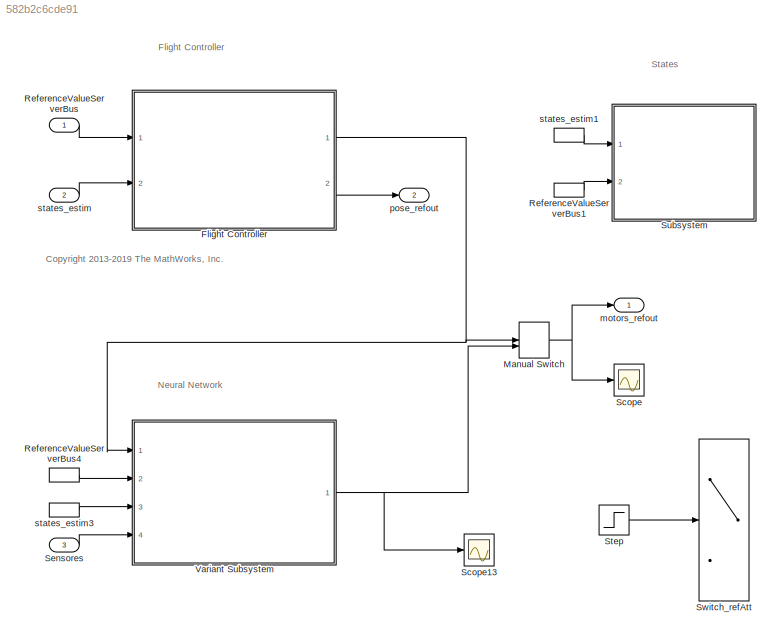
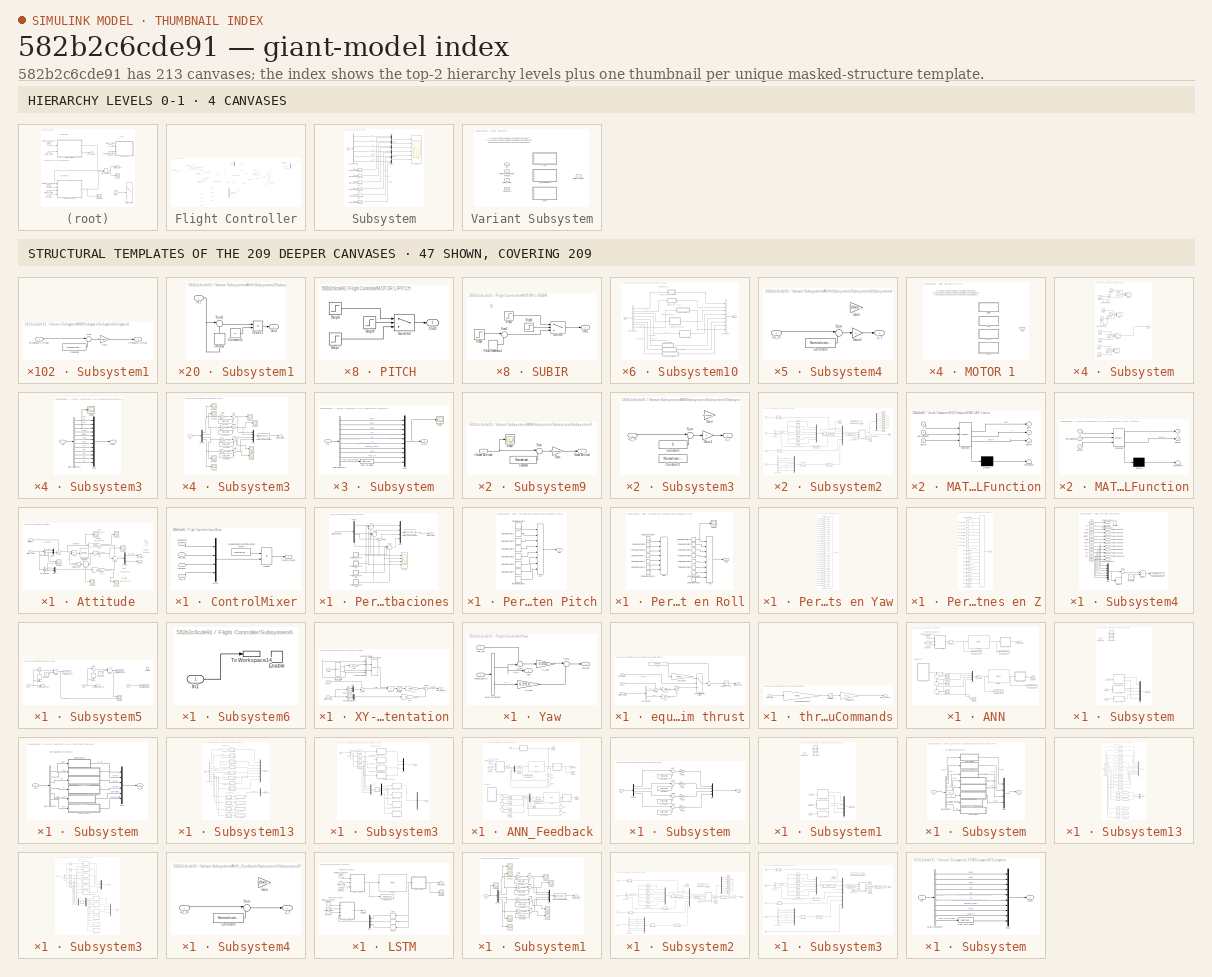
[diagram: thumbnail index - top-2 hierarchy levels (4 canvases) + 47 structural-template representatives of the remaining 209 canvases]
MODEL slx_582b2c6cde91
KIND model
CONFIG AbsTol = auto
CONFIG EnableMultiTasking = on
CONFIG FixedStep = Ts
CONFIG MaxStep = auto
CONFIG MinStep = auto
CONFIG RelTol = 1e-3
CONFIG SampleTimeConstraint = Unconstrained
CONFIG SolverName = ode3
CONFIG StartTime = 0
CONFIG StopTime = 10
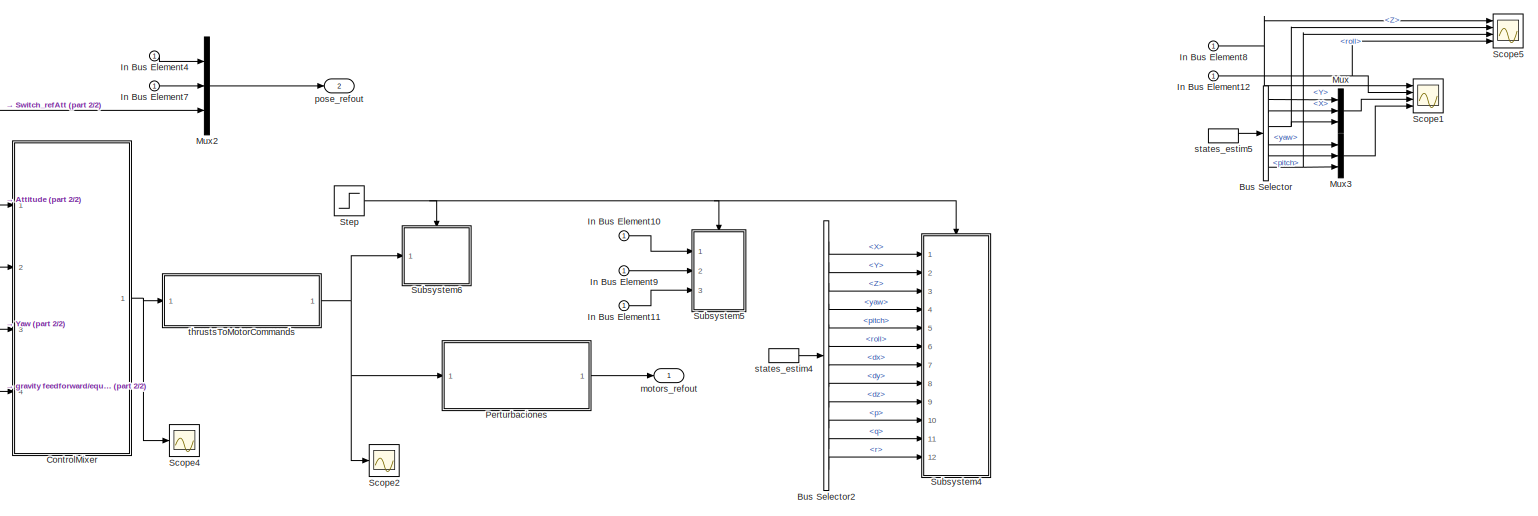
[diagram: Flight Controller - part 1/2, top right region]
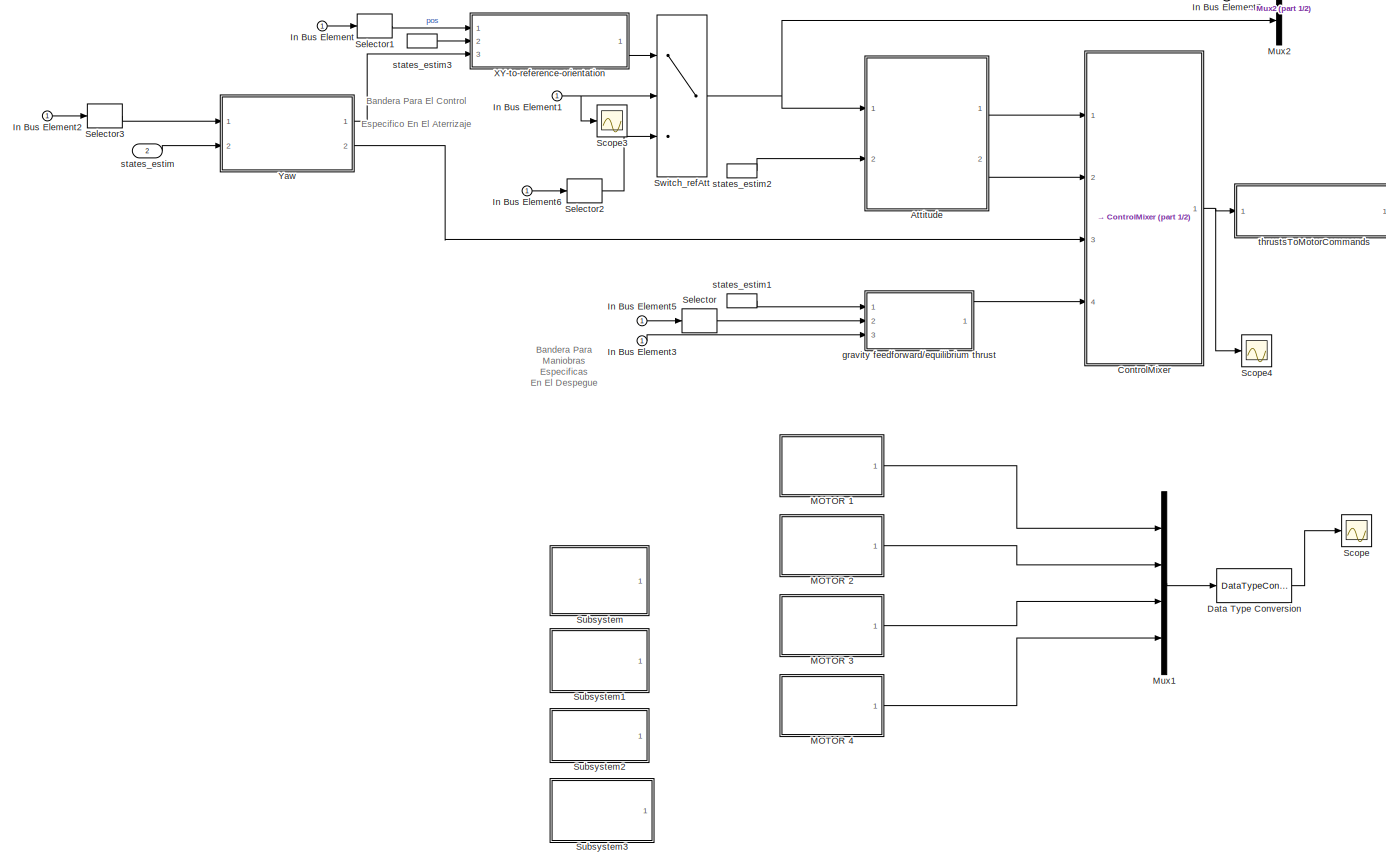
[diagram: Flight Controller - part 2/2, left side, full height]
BLOCK [SubSystem] Flight Controller
  Ports = [2, 2]
  RequestExecContextInheritance = off
BLOCK [SubSystem] Flight Controller/Attitude
  Ports = [2, 2]
  RequestExecContextInheritance = off
BLOCK [Sum] Flight Controller/Attitude/Add
  IconShape = rectangular
  Inputs = +-
  Ports = [2, 1]
BLOCK [BusSelector] Flight Controller/Attitude/Bus Selector3
  OutputSignals = pitch,roll
  Ports = [1, 2]
BLOCK [BusSelector] Flight Controller/Attitude/Bus Selector4
  OutputSignals = q,p
  Ports = [1, 2]
BLOCK [Gain] Flight Controller/Attitude/D_pr
  Gain = [0.002; D_ROLL]
BLOCK [Delay] Flight Controller/Attitude/Delay
  DelayLength = 1
  InitialCondition = 0
  InputPortMap = u0
  Ports = [1, 1]
BLOCK [Demux] Flight Controller/Attitude/Demux
  Outputs = 2
  Ports = [1, 2]
BLOCK [DiscreteIntegrator] Flight Controller/Attitude/Discrete-Time Integrator
  ICPrevOutput = DiscIntNeverNeededParam
  ICPrevScaledInput = DiscIntNeverNeededParam
  InitialConditionSetting = Auto
  LimitOutput = on
  LowerSaturationLimit = -2
  Ports = [1, 1]
  SampleTime = Ts
  UpperSaturationLimit = 2
BLOCK [Gain] Flight Controller/Attitude/I_pr
  Gain = I_ROLL
BLOCK [Mux] Flight Controller/Attitude/Mux
  DisplayOption = bar
  Inputs = 2
  Ports = [2, 1]
BLOCK [Mux] Flight Controller/Attitude/Mux1
  DisplayOption = bar
  Inputs = 2
  Ports = [2, 1]
BLOCK [Gain] Flight Controller/Attitude/P_pr
  Gain = [0.013;P_ROLL]
BLOCK [Scope] Flight Controller/Attitude/Scope
  Floating = off
  NumInputPorts = 1
  Ports = [1]
  ScopeSpecificationString = Simulink.scopes.TimeScopeBlockCfg('CurrentConfiguration', extmgr.ConfigurationSet(extmgr.Configuration('Core','General UI',true),extmgr.Configuration('Core','Source UI',true),extmgr.Configuration('Sources','WiredSimulink',true,'DataLoggingVariableName','ScopeData1'),extmgr.Configuration('Visuals','Time Domain',true,'SerializedDisplays',{struct('MinYLimReal','-0.00001','MaxYLimReal','0.000013','YLa...<+1365ch>
BLOCK [Scope] Flight Controller/Attitude/Scope1
  Floating = off
  NumInputPorts = 2
  Ports = [2]
  ScopeSpecificationString = Simulink.scopes.TimeScopeBlockCfg('CurrentConfiguration', extmgr.ConfigurationSet(extmgr.Configuration('Core','General UI',true),extmgr.Configuration('Core','Source UI',true),extmgr.Configuration('Sources','WiredSimulink',true,'DataLoggingVariableName','ScopeData1'),extmgr.Configuration('Visuals','Time Domain',true,'SerializedDisplays',{struct('MinYLimReal','-0.09754','MaxYLimReal','0.01811','YLab...<+1371ch>
BLOCK [Scope] Flight Controller/Attitude/Scope2
  Floating = off
  NumInputPorts = 2
  Ports = [2]
  ScopeSpecificationString = Simulink.scopes.TimeScopeBlockCfg('CurrentConfiguration', extmgr.ConfigurationSet(extmgr.Configuration('Core','General UI',true),extmgr.Configuration('Core','Source UI',true),extmgr.Configuration('Sources','WiredSimulink',true,'DataLoggingVariableName','ScopeData2'),extmgr.Configuration('Visuals','Time Domain',true,'SerializedDisplays',{struct('MinYLimReal','-0.00918','MaxYLimReal','0.00115','YLab...<+1456ch>
BLOCK [Scope] Flight Controller/Attitude/Scope3
  Floating = off
  NumInputPorts = 2
  Ports = [2]
  ScopeSpecificationString = Simulink.scopes.TimeScopeBlockCfg('CurrentConfiguration', extmgr.ConfigurationSet(extmgr.Configuration('Core','General UI',true),extmgr.Configuration('Core','Source UI',true),extmgr.Configuration('Sources','WiredSimulink',true,'DataLoggingVariableName','ScopeData3'),extmgr.Configuration('Visuals','Time Domain',true,'SerializedDisplays',{struct('MinYLimReal','-0.00009','MaxYLimReal','0.00001','YLab...<+1386ch>
BLOCK [Scope] Flight Controller/Attitude/Scope4
  Floating = off
  NumInputPorts = 2
  Ports = [2]
  ScopeSpecificationString = Simulink.scopes.TimeScopeBlockCfg('CurrentConfiguration', extmgr.ConfigurationSet(extmgr.Configuration('Core','General UI',true),extmgr.Configuration('Core','Source UI',true),extmgr.Configuration('Sources','WiredSimulink',true,'DataLoggingVariableName','ScopeData4'),extmgr.Configuration('Visuals','Time Domain',true,'SerializedDisplays',{struct('MinYLimReal','-0.04069','MaxYLimReal','0.0118','YLabe...<+1405ch>
BLOCK [Scope] Flight Controller/Attitude/Scope5
  Floating = off
  NumInputPorts = 2
  Ports = [2]
  ScopeSpecificationString = Simulink.scopes.TimeScopeBlockCfg('CurrentConfiguration', extmgr.ConfigurationSet(extmgr.Configuration('Core','General UI',true),extmgr.Configuration('Core','Source UI',true),extmgr.Configuration('Sources','WiredSimulink',true,'DataLoggingVariableName','ScopeData5'),extmgr.Configuration('Visuals','Time Domain',true,'SerializedDisplays',{struct('MinYLimReal','-0.00011','MaxYLimReal','0.00003','YLab...<+1386ch>
BLOCK [Sum] Flight Controller/Attitude/Sum16
  AccumDataTypeStr = single
  Inputs = ++-
  OutDataTypeStr = single
  Ports = [3, 1]
  SaturateOnIntegerOverflow = on
BLOCK [Sum] Flight Controller/Attitude/Sum19
  Inputs = +-|
  Ports = [2, 1]
BLOCK [Gain] Flight Controller/Attitude/antiWU_Gain
  Gain = 0.001
BLOCK [Inport] Flight Controller/Attitude/refAttitude
BLOCK [Inport] Flight Controller/Attitude/states_estim
  Port = 2
BLOCK [Outport] Flight Controller/Attitude/tau_pitch
  VectorParamsAs1DForOutWhenUnconnected = off
BLOCK [Outport] Flight Controller/Attitude/tau_roll
  Port = 2
  VectorParamsAs1DForOutWhenUnconnected = off
BLOCK [BusSelector] Flight Controller/Bus Selector
  OutputSignals = Y,X,Z,yaw,pitch,roll
  Ports = [1, 6]
BLOCK [BusSelector] Flight Controller/Bus Selector2
  OutputSignals = X,Y,Z,yaw,pitch,roll,dx,dy,dz,p,q,r
  Ports = [1, 12]
BLOCK [SubSystem] Flight Controller/ControlMixer
  Ports = [4, 1]
  RequestExecContextInheritance = off
BLOCK [Mux] Flight Controller/ControlMixer/Mux2
  DisplayOption = bar
  Ports = [4, 1]
BLOCK [Product] Flight Controller/ControlMixer/Product
  Multiplication = Matrix(*)
  Ports = [2, 1]
  RndMeth = Zero
BLOCK [Constant] Flight Controller/ControlMixer/TorqueTotalThrustToThrustPerMotor
  NameLocation = top
  OutDataTypeStr = single
  Value = Controller.Q2Ts
BLOCK [Inport] Flight Controller/ControlMixer/tau_pitch
BLOCK [Inport] Flight Controller/ControlMixer/tau_roll
  Port = 2
BLOCK [Inport] Flight Controller/ControlMixer/tau_yaw
  Port = 3
BLOCK [Outport] Flight Controller/ControlMixer/thrusts_refout
  VectorParamsAs1DForOutWhenUnconnected = off
BLOCK [Inport] Flight Controller/ControlMixer/totalThrust
  Port = 4
BLOCK [DataTypeConversion] Flight Controller/Data Type Conversion
  Commented = on
  OutDataTypeStr = single
  RndMeth = Floor
  SaturateOnIntegerOverflow = off
BLOCK [Inport] Flight Controller/In Bus Element
BLOCK [Inport] Flight Controller/In Bus Element1
BLOCK [Inport] Flight Controller/In Bus Element10
BLOCK [Inport] Flight Controller/In Bus Element11
BLOCK [Inport] Flight Controller/In Bus Element12
BLOCK [Inport] Flight Controller/In Bus Element2
BLOCK [Inport] Flight Controller/In Bus Element3
BLOCK [Inport] Flight Controller/In Bus Element4
BLOCK [Inport] Flight Controller/In Bus Element5
BLOCK [Inport] Flight Controller/In Bus Element6
BLOCK [Inport] Flight Controller/In Bus Element7
BLOCK [Inport] Flight Controller/In Bus Element8
BLOCK [Inport] Flight Controller/In Bus Element9
BLOCK [SubSystem] Flight Controller/MOTOR 1 
  Commented = on
  LabelModeActiveChoice = Choice
  Ports = [0, 1]
  RequestExecContextInheritance = off
  Variant = on
  VariantControlMode = label
BLOCK [Outport] Flight Controller/MOTOR 1 /Out1
BLOCK [SubSystem] Flight Controller/MOTOR 1 /PITCH 
  Ports = [0, 1]
  RequestExecContextInheritance = off
  VariantControl = Choice_3
BLOCK [Outport] Flight Controller/MOTOR 1 /PITCH /Out1
BLOCK [Step] Flight Controller/MOTOR 1 /PITCH /Step6
  After = 350
  Before = 30
  Time = 0.001
BLOCK [Step] Flight Controller/MOTOR 1 /PITCH /Step7
  After = 380
  Before = 30
  Time = 0.001
BLOCK [Step] Flight Controller/MOTOR 1 /PITCH /Step8
  After = 0
  Before = 1
  Time = 1.5
BLOCK [Switch] Flight Controller/MOTOR 1 /PITCH /Switch2
  Criteria = u2 > Threshold
  InputSameDT = off
  SaturateOnIntegerOverflow = off
BLOCK [SubSystem] Flight Controller/MOTOR 1 /ROLL 
  Ports = [0, 1]
  RequestExecContextInheritance = off
  VariantControl = Choice
BLOCK [Outport] Flight Controller/MOTOR 1 /ROLL /Out1
BLOCK [Step] Flight Controller/MOTOR 1 /ROLL /Step10
  After = 380
  Before = 30
  Time = 0.001
BLOCK [Step] Flight Controller/MOTOR 1 /ROLL /Step11
  After = 0
  Before = 1
  Time = 1.5
BLOCK [Step] Flight Controller/MOTOR 1 /ROLL /Step9
  After = 350
  Before = 30
  Time = 0.001
BLOCK [Switch] Flight Controller/MOTOR 1 /ROLL /Switch3
  Criteria = u2 > Threshold
  InputSameDT = off
  SaturateOnIntegerOverflow = off
BLOCK [SubSystem] Flight Controller/MOTOR 1 /SUBIR
  Ports = [0, 1]
  RequestExecContextInheritance = off
  VariantControl = Choice_1
BLOCK [Outport] Flight Controller/MOTOR 1 /SUBIR/Out1
BLOCK [DiscretePulseGenerator] Flight Controller/MOTOR 1 /SUBIR/Pulse Generator1
  Amplitude = 30
  Period = 1.5
  Ports = [0, 1]
  PulseType = Time based
  PulseWidth = 50
BLOCK [Step] Flight Controller/MOTOR 1 /SUBIR/Step1
  After = 350
  Before = 30
  Time = 0.001
BLOCK [Step] Flight Controller/MOTOR 1 /SUBIR/Step3
  After = 0
  Before = 1
  Time = 1.5
BLOCK [Step] Flight Controller/MOTOR 1 /SUBIR/Step4
  After = 237
  Before = -30
  Time = 0.001
BLOCK [Sum] Flight Controller/MOTOR 1 /SUBIR/Sum1
  Inputs = |+-
  Ports = [2, 1]
BLOCK [Switch] Flight Controller/MOTOR 1 /SUBIR/Switch1
  Criteria = u2 > Threshold
  InputSameDT = off
  SaturateOnIntegerOverflow = off
BLOCK [SubSystem] Flight Controller/MOTOR 1 /YAW
  Ports = [0, 1]
  RequestExecContextInheritance = off
  VariantControl = Choice_2
BLOCK [Outport] Flight Controller/MOTOR 1 /YAW/Out1
BLOCK [DiscretePulseGenerator] Flight Controller/MOTOR 1 /YAW/Pulse Generator
  Amplitude = 50
  Period = 1.5
  Ports = [0, 1]
  PulseType = Time based
  PulseWidth = 50
BLOCK [Step] Flight Controller/MOTOR 1 /YAW/Step
  After = 350
  Before = 30
  Time = 0.001
BLOCK [Step] Flight Controller/MOTOR 1 /YAW/Step2
  After = 420
  Before = 30
  Time = 0.001
BLOCK [Step] Flight Controller/MOTOR 1 /YAW/Step5
  After = 0
  Before = 1
  Time = 1.5
BLOCK [Sum] Flight Controller/MOTOR 1 /YAW/Sum
  Inputs = |+-
  Ports = [2, 1]
BLOCK [Switch] Flight Controller/MOTOR 1 /YAW/Switch
  Criteria = u2 > Threshold
  InputSameDT = off
  SaturateOnIntegerOverflow = off
BLOCK [SubSystem] Flight Controller/MOTOR 2
  Commented = on
  LabelModeActiveChoice = Choice
  Ports = [0, 1]
  RequestExecContextInheritance = off
  Variant = on
  VariantControlMode = label
BLOCK [Outport] Flight Controller/MOTOR 2/Out1
BLOCK [SubSystem] Flight Controller/MOTOR 2/PITCH 
  Ports = [0, 1]
  RequestExecContextInheritance = off
  VariantControl = Choice_3
BLOCK [Outport] Flight Controller/MOTOR 2/PITCH /Out1
BLOCK [Step] Flight Controller/MOTOR 2/PITCH /Step6
  After = -380
  Before = -30
  Time = 0.001
BLOCK [Step] Flight Controller/MOTOR 2/PITCH /Step8
  After = -350
  Before = -30
  Time = 0.001
BLOCK [Step] Flight Controller/MOTOR 2/PITCH /Step9
  Time = 1.5
BLOCK [Switch] Flight Controller/MOTOR 2/PITCH /Switch2
  Criteria = u2 > Threshold
  InputSameDT = off
  SaturateOnIntegerOverflow = off
BLOCK [SubSystem] Flight Controller/MOTOR 2/ROLL
  Ports = [0, 1]
  RequestExecContextInheritance = off
  VariantControl = Choice
BLOCK [Outport] Flight Controller/MOTOR 2/ROLL/Out1
BLOCK [Step] Flight Controller/MOTOR 2/ROLL/Step10
  After = -310
  Before = -30
  Time = 0.001
BLOCK [Step] Flight Controller/MOTOR 2/ROLL/Step11
  After = -350
  Before = -30
  Time = 0.001
BLOCK [Step] Flight Controller/MOTOR 2/ROLL/Step12
  Time = 1.5
BLOCK [Switch] Flight Controller/MOTOR 2/ROLL/Switch3
  Criteria = u2 > Threshold
  InputSameDT = off
  SaturateOnIntegerOverflow = off
BLOCK [SubSystem] Flight Controller/MOTOR 2/SUBIR
  Ports = [0, 1]
  RequestExecContextInheritance = off
  VariantControl = Choice_1
BLOCK [Outport] Flight Controller/MOTOR 2/SUBIR/Out1
BLOCK [DiscretePulseGenerator] Flight Controller/MOTOR 2/SUBIR/Pulse Generator1
  Amplitude = 30
  Period = 1.5
  Ports = [0, 1]
  PulseType = Time based
  PulseWidth = 50
BLOCK [Step] Flight Controller/MOTOR 2/SUBIR/Step4
  After = -350
  Before = -30
  Time = 0.001
BLOCK [Step] Flight Controller/MOTOR 2/SUBIR/Step5
  Time = 1.5
BLOCK [Step] Flight Controller/MOTOR 2/SUBIR/Step7
  After = -237
  Before = -30
  Time = 0.001
BLOCK [Sum] Flight Controller/MOTOR 2/SUBIR/Sum1
  Inputs = |++
  Ports = [2, 1]
BLOCK [Switch] Flight Controller/MOTOR 2/SUBIR/Switch
  Criteria = u2 > Threshold
  InputSameDT = off
  SaturateOnIntegerOverflow = off
BLOCK [SubSystem] Flight Controller/MOTOR 2/YAW
  Ports = [0, 1]
  RequestExecContextInheritance = off
  VariantControl = Choice_2
BLOCK [Outport] Flight Controller/MOTOR 2/YAW/Out1
BLOCK [DiscretePulseGenerator] Flight Controller/MOTOR 2/YAW/Pulse Generator
  Amplitude = 50
  Period = 1.5
  Ports = [0, 1]
  PulseType = Time based
  PulseWidth = 50
BLOCK [Step] Flight Controller/MOTOR 2/YAW/Step1
  After = -280
  Before = -30
  Time = 0.001
BLOCK [Step] Flight Controller/MOTOR 2/YAW/Step2
  After = -350
  Before = -30
  Time = 0.001
BLOCK [Step] Flight Controller/MOTOR 2/YAW/Step3
  Time = 1.5
BLOCK [Sum] Flight Controller/MOTOR 2/YAW/Sum
  Inputs = |++
  Ports = [2, 1]
BLOCK [Switch] Flight Controller/MOTOR 2/YAW/Switch1
  Criteria = u2 > Threshold
  InputSameDT = off
  SaturateOnIntegerOverflow = off
BLOCK [SubSystem] Flight Controller/MOTOR 3 
  Commented = on
  LabelModeActiveChoice = Choice
  Ports = [0, 1]
  RequestExecContextInheritance = off
  Variant = on
  VariantControlMode = label
BLOCK [Outport] Flight Controller/MOTOR 3 /Out1
BLOCK [SubSystem] Flight Controller/MOTOR 3 /PITCH 
  Ports = [0, 1]
  RequestExecContextInheritance = off
  VariantControl = Choice_3
BLOCK [Outport] Flight Controller/MOTOR 3 /PITCH /Out1
BLOCK [Step] Flight Controller/MOTOR 3 /PITCH /Step6
  After = 350
  Before = 30
  Time = 0.001
BLOCK [Step] Flight Controller/MOTOR 3 /PITCH /Step7
  After = 310
  Before = 30
  Time = 0.001
BLOCK [Step] Flight Controller/MOTOR 3 /PITCH /Step8
  After = 0
  Before = 1
  Time = 1.5
BLOCK [Switch] Flight Controller/MOTOR 3 /PITCH /Switch2
  Criteria = u2 > Threshold
  InputSameDT = off
  SaturateOnIntegerOverflow = off
BLOCK [SubSystem] Flight Controller/MOTOR 3 /ROLL 
  Ports = [0, 1]
  RequestExecContextInheritance = off
  VariantControl = Choice
BLOCK [Outport] Flight Controller/MOTOR 3 /ROLL /Out1
BLOCK [Step] Flight Controller/MOTOR 3 /ROLL /Step10
  After = 310
  Before = 30
  Time = 0.001
BLOCK [Step] Flight Controller/MOTOR 3 /ROLL /Step11
  After = 0
  Before = 1
  Time = 1.5
BLOCK [Step] Flight Controller/MOTOR 3 /ROLL /Step9
  After = 350
  Before = 30
  Time = 0.001
BLOCK [Switch] Flight Controller/MOTOR 3 /ROLL /Switch3
  Criteria = u2 > Threshold
  InputSameDT = off
  SaturateOnIntegerOverflow = off
BLOCK [SubSystem] Flight Controller/MOTOR 3 /SUBIR
  Ports = [0, 1]
  RequestExecContextInheritance = off
  VariantControl = Choice_1
BLOCK [Outport] Flight Controller/MOTOR 3 /SUBIR/Out1
BLOCK [DiscretePulseGenerator] Flight Controller/MOTOR 3 /SUBIR/Pulse Generator1
  Amplitude = 30
  Period = 1.5
  Ports = [0, 1]
  PulseType = Time based
  PulseWidth = 50
BLOCK [Step] Flight Controller/MOTOR 3 /SUBIR/Step
  After = 350
  Before = 30
  Time = 0.001
BLOCK [Step] Flight Controller/MOTOR 3 /SUBIR/Step4
  After = 237
  Before = -30
  Time = 0.001
BLOCK [Step] Flight Controller/MOTOR 3 /SUBIR/Step5
  After = 0
  Before = 1
  Time = 1.5
BLOCK [Sum] Flight Controller/MOTOR 3 /SUBIR/Sum1
  Inputs = |+-
  Ports = [2, 1]
BLOCK [Switch] Flight Controller/MOTOR 3 /SUBIR/Switch
  Criteria = u2 > Threshold
  InputSameDT = off
  SaturateOnIntegerOverflow = off
BLOCK [SubSystem] Flight Controller/MOTOR 3 /YAW
  Ports = [0, 1]
  RequestExecContextInheritance = off
  VariantControl = Choice_2
BLOCK [Outport] Flight Controller/MOTOR 3 /YAW/Out1
BLOCK [DiscretePulseGenerator] Flight Controller/MOTOR 3 /YAW/Pulse Generator
  Amplitude = 50
  Period = 1.5
  Ports = [0, 1]
  PulseType = Time based
  PulseWidth = 50
BLOCK [Step] Flight Controller/MOTOR 3 /YAW/Step1
  After = 350
  Before = 30
  Time = 0.001
BLOCK [Step] Flight Controller/MOTOR 3 /YAW/Step2
  After = 420
  Before = 30
  Time = 0.001
BLOCK [Step] Flight Controller/MOTOR 3 /YAW/Step3
  After = 0
  Before = 1
  Time = 1.5
BLOCK [Sum] Flight Controller/MOTOR 3 /YAW/Sum
  Inputs = |+-
  Ports = [2, 1]
BLOCK [Switch] Flight Controller/MOTOR 3 /YAW/Switch1
  Criteria = u2 > Threshold
  InputSameDT = off
  SaturateOnIntegerOverflow = off
BLOCK [SubSystem] Flight Controller/MOTOR 4 
  Commented = on
  LabelModeActiveChoice = Choice
  Ports = [0, 1]
  RequestExecContextInheritance = off
  Variant = on
  VariantControlMode = label
BLOCK [Outport] Flight Controller/MOTOR 4 /Out1
BLOCK [SubSystem] Flight Controller/MOTOR 4 /PITCH 
  Ports = [0, 1]
  RequestExecContextInheritance = off
  VariantControl = Choice_3
BLOCK [Outport] Flight Controller/MOTOR 4 /PITCH /Out1
BLOCK [Step] Flight Controller/MOTOR 4 /PITCH /Step6
  After = -310
  Before = -30
  Time = 0.001
BLOCK [Step] Flight Controller/MOTOR 4 /PITCH /Step8
  After = -350
  Before = -30
  Time = 0.001
BLOCK [Step] Flight Controller/MOTOR 4 /PITCH /Step9
  Time = 1.5
BLOCK [Switch] Flight Controller/MOTOR 4 /PITCH /Switch2
  Criteria = u2 > Threshold
  InputSameDT = off
  SaturateOnIntegerOverflow = off
BLOCK [SubSystem] Flight Controller/MOTOR 4 /ROLL 
  Ports = [0, 1]
  RequestExecContextInheritance = off
  VariantControl = Choice
BLOCK [Outport] Flight Controller/MOTOR 4 /ROLL /Out1
BLOCK [Step] Flight Controller/MOTOR 4 /ROLL /Step10
  After = -380
  Before = -30
  Time = 0.001
BLOCK [Step] Flight Controller/MOTOR 4 /ROLL /Step11
  After = -350
  Before = -30
  Time = 0.001
BLOCK [Step] Flight Controller/MOTOR 4 /ROLL /Step12
  Time = 1.5
BLOCK [Switch] Flight Controller/MOTOR 4 /ROLL /Switch3
  Criteria = u2 > Threshold
  InputSameDT = off
  SaturateOnIntegerOverflow = off
BLOCK [SubSystem] Flight Controller/MOTOR 4 /SUBIR
  Ports = [0, 1]
  RequestExecContextInheritance = off
  VariantControl = Choice_1
BLOCK [Outport] Flight Controller/MOTOR 4 /SUBIR/Out1
BLOCK [DiscretePulseGenerator] Flight Controller/MOTOR 4 /SUBIR/Pulse Generator1
  Amplitude = 30
  Period = 1.5
  Ports = [0, 1]
  PulseType = Time based
  PulseWidth = 50
BLOCK [Step] Flight Controller/MOTOR 4 /SUBIR/Step4
  After = -350
  Before = -30
  Time = 0.001
BLOCK [Step] Flight Controller/MOTOR 4 /SUBIR/Step5
  Time = 1.5
BLOCK [Step] Flight Controller/MOTOR 4 /SUBIR/Step7
  After = -237
  Before = -30
  Time = 0.001
BLOCK [Sum] Flight Controller/MOTOR 4 /SUBIR/Sum1
  Inputs = |++
  Ports = [2, 1]
BLOCK [Switch] Flight Controller/MOTOR 4 /SUBIR/Switch
  Criteria = u2 > Threshold
  InputSameDT = off
  SaturateOnIntegerOverflow = off
BLOCK [SubSystem] Flight Controller/MOTOR 4 /YAW
  Ports = [0, 1]
  RequestExecContextInheritance = off
  VariantControl = Choice_2
BLOCK [Outport] Flight Controller/MOTOR 4 /YAW/Out1
BLOCK [DiscretePulseGenerator] Flight Controller/MOTOR 4 /YAW/Pulse Generator
  Amplitude = 50
  Period = 1.5
  Ports = [0, 1]
  PulseType = Time based
  PulseWidth = 50
BLOCK [Step] Flight Controller/MOTOR 4 /YAW/Step1
  After = -280
  Before = -30
  Time = 0.001
BLOCK [Step] Flight Controller/MOTOR 4 /YAW/Step2
  After = -350
  Before = -30
  Time = 0.001
BLOCK [Step] Flight Controller/MOTOR 4 /YAW/Step3
  Time = 1.5
BLOCK [Sum] Flight Controller/MOTOR 4 /YAW/Sum
  Inputs = |++
  Ports = [2, 1]
BLOCK [Switch] Flight Controller/MOTOR 4 /YAW/Switch1
  Criteria = u2 > Threshold
  InputSameDT = off
  SaturateOnIntegerOverflow = off
BLOCK [Mux] Flight Controller/Mux
  DisplayOption = bar
  Inputs = 3
  Ports = [3, 1]
BLOCK [Mux] Flight Controller/Mux1
  Commented = on
  DisplayOption = bar
  Ports = [4, 1]
BLOCK [Mux] Flight Controller/Mux2
  DisplayOption = bar
  Inputs = 3
  Ports = [3, 1]
BLOCK [Mux] Flight Controller/Mux3
  DisplayOption = bar
  Inputs = 3
  Ports = [3, 1]
BLOCK [SubSystem] Flight Controller/Perturbaciones
  Ports = [1, 1]
  RequestExecContextInheritance = off
BLOCK [DataTypeConversion] Flight Controller/Perturbaciones/Data Type Conversion
  OutDataTypeStr = single
  RndMeth = Floor
  SaturateOnIntegerOverflow = off
BLOCK [Demux] Flight Controller/Perturbaciones/Demux
  Ports = [1, 4]
BLOCK [Mux] Flight Controller/Perturbaciones/Mux1
  DisplayOption = bar
  Ports = [4, 1]
BLOCK [SubSystem] Flight Controller/Perturbaciones/Perturbaciones en Pitch
  Ports = [0, 1]
  RequestExecContextInheritance = off
BLOCK [Sum] Flight Controller/Perturbaciones/Perturbaciones en Pitch/Add
  IconShape = rectangular
  Inputs = ++++++++
  Ports = [8, 1]
BLOCK [Outport] Flight Controller/Perturbaciones/Perturbaciones en Pitch/Out1
BLOCK [DiscretePulseGenerator] Flight Controller/Perturbaciones/Perturbaciones en Pitch/Pulse Generator1
  Amplitude = P_Pitch(2)
  Period = 150
  PhaseDelay = time_stepsX(2)
  Ports = [0, 1]
  PulseType = Time based
  PulseWidth = 0.01
BLOCK [DiscretePulseGenerator] Flight Controller/Perturbaciones/Perturbaciones en Pitch/Pulse Generator2
  Amplitude = P_Pitch(1)
  Period = 150
  PhaseDelay = time_stepsX(1)
  Ports = [0, 1]
  PulseType = Time based
  PulseWidth = 0.02
BLOCK [DiscretePulseGenerator] Flight Controller/Perturbaciones/Perturbaciones en Pitch/Pulse Generator3
  Amplitude = P_Pitch(3)
  Period = 150
  PhaseDelay = time_stepsX(3)
  Ports = [0, 1]
  PulseType = Time based
  PulseWidth = 0.01
BLOCK [DiscretePulseGenerator] Flight Controller/Perturbaciones/Perturbaciones en Pitch/Pulse Generator4
  Amplitude = P_Pitch(4)
  Period = 150
  PhaseDelay = time_stepsX(4)
  Ports = [0, 1]
  PulseType = Time based
  PulseWidth = 0.01
BLOCK [DiscretePulseGenerator] Flight Controller/Perturbaciones/Perturbaciones en Pitch/Pulse Generator5
  Amplitude = P_Pitch(5)
  Period = 1500
  PhaseDelay = time_stepsX(5)
  Ports = [0, 1]
  PulseType = Time based
  PulseWidth = 0.001
BLOCK [DiscretePulseGenerator] Flight Controller/Perturbaciones/Perturbaciones en Pitch/Pulse Generator6
  Amplitude = P_Pitch(6)
  Period = 150
  PhaseDelay = time_stepsX(6)
  Ports = [0, 1]
  PulseType = Time based
  PulseWidth = 0.01
BLOCK [DiscretePulseGenerator] Flight Controller/Perturbaciones/Perturbaciones en Pitch/Pulse Generator7
  Amplitude = P_Pitch(7)
  Period = 1500
  PhaseDelay = time_stepsX(7)
  Ports = [0, 1]
  PulseType = Time based
  PulseWidth = 0.001
BLOCK [DiscretePulseGenerator] Flight Controller/Perturbaciones/Perturbaciones en Pitch/Pulse Generator8
  Amplitude = P_Pitch(8)
  Period = 1500
  PhaseDelay = time_stepsX(8)
  Ports = [0, 1]
  PulseType = Time based
  PulseWidth = 0.001
BLOCK [SubSystem] Flight Controller/Perturbaciones/Perturbaciones en Roll
  Ports = [0, 1]
  RequestExecContextInheritance = off
BLOCK [Sum] Flight Controller/Perturbaciones/Perturbaciones en Roll/Add
  IconShape = rectangular
  Inputs = ++++++++
  Ports = [8, 1]
BLOCK [Sum] Flight Controller/Perturbaciones/Perturbaciones en Roll/Add1
  Commented = on
  IconShape = rectangular
  Inputs = +++++++
  Ports = [7, 1]
BLOCK [Outport] Flight Controller/Perturbaciones/Perturbaciones en Roll/Out1
BLOCK [DiscretePulseGenerator] Flight Controller/Perturbaciones/Perturbaciones en Roll/Pulse Generator1
  Amplitude = P_Roll(2)
  Period = 1500
  PhaseDelay = time_stepsY(2)
  Ports = [0, 1]
  PulseType = Time based
  PulseWidth = 0.001
BLOCK [DiscretePulseGenerator] Flight Controller/Perturbaciones/Perturbaciones en Roll/Pulse Generator10
  Amplitude = P_Roll(3)
  Commented = on
  Period = 1500
  PhaseDelay = 35
  Ports = [0, 1]
  PulseType = Time based
  PulseWidth = 0.001
BLOCK [DiscretePulseGenerator] Flight Controller/Perturbaciones/Perturbaciones en Roll/Pulse Generator11
  Amplitude = P_Roll(4)
  Commented = on
  Period = 1500
  PhaseDelay = 50
  Ports = [0, 1]
  PulseType = Time based
  PulseWidth = 0.001
BLOCK [DiscretePulseGenerator] Flight Controller/Perturbaciones/Perturbaciones en Roll/Pulse Generator12
  Amplitude = P_Roll(5)
  Commented = on
  Period = 1500
  PhaseDelay = 75
  Ports = [0, 1]
  PulseType = Time based
  PulseWidth = 0.001
BLOCK [DiscretePulseGenerator] Flight Controller/Perturbaciones/Perturbaciones en Roll/Pulse Generator13
  Amplitude = P_Roll(6)
  Commented = on
  Period = 1500
  PhaseDelay = 90
  Ports = [0, 1]
  PulseType = Time based
  PulseWidth = 0.001
BLOCK [DiscretePulseGenerator] Flight Controller/Perturbaciones/Perturbaciones en Roll/Pulse Generator14
  Amplitude = P_Roll(2)
  Commented = on
  Period = 1500
  PhaseDelay = 90
  Ports = [0, 1]
  PulseType = Time based
  PulseWidth = 0.001
BLOCK [DiscretePulseGenerator] Flight Controller/Perturbaciones/Perturbaciones en Roll/Pulse Generator15
  Amplitude = P_Roll(8)
  Period = 1500
  PhaseDelay = PR_Start
  Ports = [0, 1]
  PulseType = Time based
  PulseWidth = 0.001
BLOCK [DiscretePulseGenerator] Flight Controller/Perturbaciones/Perturbaciones en Roll/Pulse Generator2
  Amplitude = P_Roll(1)
  Period = 1500
  PhaseDelay = time_stepsY(1)
  Ports = [0, 1]
  PulseType = Time based
  PulseWidth = 0.001
BLOCK [DiscretePulseGenerator] Flight Controller/Perturbaciones/Perturbaciones en Roll/Pulse Generator3
  Amplitude = P_Roll(3)
  Period = 1500
  PhaseDelay = time_stepsY(3)
  Ports = [0, 1]
  PulseType = Time based
  PulseWidth = 0.001
BLOCK [DiscretePulseGenerator] Flight Controller/Perturbaciones/Perturbaciones en Roll/Pulse Generator4
  Amplitude = P_Roll(4)
  Period = 1500
  PhaseDelay = time_stepsY(4)
  Ports = [0, 1]
  PulseType = Time based
  PulseWidth = 0.001
BLOCK [DiscretePulseGenerator] Flight Controller/Perturbaciones/Perturbaciones en Roll/Pulse Generator5
  Amplitude = P_Roll(5)
  Period = 1500
  PhaseDelay = time_stepsY(5)
  Ports = [0, 1]
  PulseType = Time based
  PulseWidth = 0.001
BLOCK [DiscretePulseGenerator] Flight Controller/Perturbaciones/Perturbaciones en Roll/Pulse Generator6
  Amplitude = P_Roll(6)
  Period = 1500
  PhaseDelay = time_stepsY(6)
  Ports = [0, 1]
  PulseType = Time based
  PulseWidth = 0.001
BLOCK [DiscretePulseGenerator] Flight Controller/Perturbaciones/Perturbaciones en Roll/Pulse Generator7
  Amplitude = P_Roll(7)
  Period = 1500
  PhaseDelay = time_stepsY(7)
  Ports = [0, 1]
  PulseType = Time based
  PulseWidth = 0.001
BLOCK [DiscretePulseGenerator] Flight Controller/Perturbaciones/Perturbaciones en Roll/Pulse Generator8
  Amplitude = P_Roll(2)
  Commented = on
  Period = 1500
  PhaseDelay = 20
  Ports = [0, 1]
  PulseType = Time based
  PulseWidth = 0.001
BLOCK [DiscretePulseGenerator] Flight Controller/Perturbaciones/Perturbaciones en Roll/Pulse Generator9
  Amplitude = P_Roll(1)
  Commented = on
  Period = 1500
  PhaseDelay = 5
  Ports = [0, 1]
  PulseType = Time based
  PulseWidth = 0.001
BLOCK [Scope] Flight Controller/Perturbaciones/Perturbaciones en Roll/Scope
  Floating = off
  NumInputPorts = 1
  Ports = [1]
  ScopeSpecificationString = Simulink.scopes.TimeScopeBlockCfg('CurrentConfiguration', extmgr.ConfigurationSet(extmgr.Configuration('Core','General UI',true),extmgr.Configuration('Core','Source UI',true),extmgr.Configuration('Sources','WiredSimulink',true,'DataLoggingVariableName','ScopeData1'),extmgr.Configuration('Visuals','Time Domain',true,'SerializedDisplays',{struct('MinYLimReal','-35.625','MaxYLimReal','320.625','YLabe...<+1420ch>
BLOCK [SubSystem] Flight Controller/Perturbaciones/Perturbaciones en Yaw
  Ports = [0, 1]
  RequestExecContextInheritance = off
BLOCK [Sum] Flight Controller/Perturbaciones/Perturbaciones en Yaw/Add
  IconShape = rectangular
  Inputs = ++++++++++++++++++++++++++++++++++++++
  Ports = [38, 1]
BLOCK [Outport] Flight Controller/Perturbaciones/Perturbaciones en Yaw/Out1
BLOCK [DiscretePulseGenerator] Flight Controller/Perturbaciones/Perturbaciones en Yaw/Pulse Generator1
  Amplitude = P_Yaw(2)
  Period = 150
  PhaseDelay = time_DisYaw(2)
  Ports = [0, 1]
  PulseType = Time based
  PulseWidth = 0.01
BLOCK [DiscretePulseGenerator] Flight Controller/Perturbaciones/Perturbaciones en Yaw/Pulse Generator10
  Amplitude = P_Yaw(10)
  Period = 1500
  PhaseDelay = time_DisYaw(10)
  Ports = [0, 1]
  PulseType = Time based
  PulseWidth = 0.001
BLOCK [DiscretePulseGenerator] Flight Controller/Perturbaciones/Perturbaciones en Yaw/Pulse Generator11
  Amplitude = P_Yaw(12)
  Period = 150
  PhaseDelay = time_DisYaw(11)
  Ports = [0, 1]
  PulseType = Time based
  PulseWidth = 0.01
BLOCK [DiscretePulseGenerator] Flight Controller/Perturbaciones/Perturbaciones en Yaw/Pulse Generator12
  Amplitude = P_Yaw(20)
  Period = 1500
  PhaseDelay = time_DisYaw(20)
  Ports = [0, 1]
  PulseType = Time based
  PulseWidth = 0.001
BLOCK [DiscretePulseGenerator] Flight Controller/Perturbaciones/Perturbaciones en Yaw/Pulse Generator13
  Amplitude = P_Yaw(11)
  Period = 150
  PhaseDelay = time_DisYaw(11)
  Ports = [0, 1]
  PulseType = Time based
  PulseWidth = 0.02
BLOCK [DiscretePulseGenerator] Flight Controller/Perturbaciones/Perturbaciones en Yaw/Pulse Generator14
  Amplitude = P_Yaw(13)
  Period = 150
  PhaseDelay = time_DisYaw(13)
  Ports = [0, 1]
  PulseType = Time based
  PulseWidth = 0.01
BLOCK [DiscretePulseGenerator] Flight Controller/Perturbaciones/Perturbaciones en Yaw/Pulse Generator15
  Amplitude = P_Yaw(14)
  Period = 150
  PhaseDelay = time_DisYaw(14)
  Ports = [0, 1]
  PulseType = Time based
  PulseWidth = 0.01
BLOCK [DiscretePulseGenerator] Flight Controller/Perturbaciones/Perturbaciones en Yaw/Pulse Generator16
  Amplitude = P_Yaw(15)
  Period = 1500
  PhaseDelay = time_DisYaw(15)
  Ports = [0, 1]
  PulseType = Time based
  PulseWidth = 0.001
BLOCK [DiscretePulseGenerator] Flight Controller/Perturbaciones/Perturbaciones en Yaw/Pulse Generator17
  Amplitude = P_Yaw(16)
  Period = 150
  PhaseDelay = time_DisYaw(16)
  Ports = [0, 1]
  PulseType = Time based
  PulseWidth = 0.01
BLOCK [DiscretePulseGenerator] Flight Controller/Perturbaciones/Perturbaciones en Yaw/Pulse Generator18
  Amplitude = P_Yaw(17)
  Period = 1500
  PhaseDelay = time_DisYaw(17)
  Ports = [0, 1]
  PulseType = Time based
  PulseWidth = 0.001
BLOCK [DiscretePulseGenerator] Flight Controller/Perturbaciones/Perturbaciones en Yaw/Pulse Generator19
  Amplitude = P_Yaw(18)
  Period = 1500
  PhaseDelay = time_DisYaw(18)
  Ports = [0, 1]
  PulseType = Time based
  PulseWidth = 0.001
BLOCK [DiscretePulseGenerator] Flight Controller/Perturbaciones/Perturbaciones en Yaw/Pulse Generator2
  Amplitude = P_Yaw(1)
  Period = 150
  PhaseDelay = time_DisYaw(1)
  Ports = [0, 1]
  PulseType = Time based
  PulseWidth = 0.02
BLOCK [DiscretePulseGenerator] Flight Controller/Perturbaciones/Perturbaciones en Yaw/Pulse Generator20
  Amplitude = P_Yaw(19)
  Period = 1500
  PhaseDelay = time_DisYaw(19)
  Ports = [0, 1]
  PulseType = Time based
  PulseWidth = 0.001
BLOCK [DiscretePulseGenerator] Flight Controller/Perturbaciones/Perturbaciones en Yaw/Pulse Generator21
  Amplitude = P_Yaw(22)
  Period = 150
  PhaseDelay = time_DisYaw(22)
  Ports = [0, 1]
  PulseType = Time based
  PulseWidth = 0.01
BLOCK [DiscretePulseGenerator] Flight Controller/Perturbaciones/Perturbaciones en Yaw/Pulse Generator22
  Amplitude = P_Yaw(30)
  Period = 1500
  PhaseDelay = time_DisYaw(30)
  Ports = [0, 1]
  PulseType = Time based
  PulseWidth = 0.001
BLOCK [DiscretePulseGenerator] Flight Controller/Perturbaciones/Perturbaciones en Yaw/Pulse Generator23
  Amplitude = P_Yaw(21)
  Period = 150
  PhaseDelay = time_DisYaw(21)
  Ports = [0, 1]
  PulseType = Time based
  PulseWidth = 0.02
BLOCK [DiscretePulseGenerator] Flight Controller/Perturbaciones/Perturbaciones en Yaw/Pulse Generator24
  Amplitude = P_Yaw(23)
  Period = 150
  PhaseDelay = time_DisYaw(22)
  Ports = [0, 1]
  PulseType = Time based
  PulseWidth = 0.01
BLOCK [DiscretePulseGenerator] Flight Controller/Perturbaciones/Perturbaciones en Yaw/Pulse Generator25
  Amplitude = P_Yaw(24)
  Period = 150
  PhaseDelay = time_DisYaw(24)
  Ports = [0, 1]
  PulseType = Time based
  PulseWidth = 0.01
BLOCK [DiscretePulseGenerator] Flight Controller/Perturbaciones/Perturbaciones en Yaw/Pulse Generator26
  Amplitude = P_Yaw(25)
  Period = 1500
  PhaseDelay = time_DisYaw(25)
  Ports = [0, 1]
  PulseType = Time based
  PulseWidth = 0.001
BLOCK [DiscretePulseGenerator] Flight Controller/Perturbaciones/Perturbaciones en Yaw/Pulse Generator27
  Amplitude = P_Yaw(26)
  Period = 150
  PhaseDelay = time_DisYaw(26)
  Ports = [0, 1]
  PulseType = Time based
  PulseWidth = 0.01
BLOCK [DiscretePulseGenerator] Flight Controller/Perturbaciones/Perturbaciones en Yaw/Pulse Generator28
  Amplitude = P_Yaw(27)
  Period = 1500
  PhaseDelay = time_DisYaw(27)
  Ports = [0, 1]
  PulseType = Time based
  PulseWidth = 0.001
BLOCK [DiscretePulseGenerator] Flight Controller/Perturbaciones/Perturbaciones en Yaw/Pulse Generator29
  Amplitude = P_Yaw(28)
  Period = 1500
  PhaseDelay = time_DisYaw(28)
  Ports = [0, 1]
  PulseType = Time based
  PulseWidth = 0.001
BLOCK [DiscretePulseGenerator] Flight Controller/Perturbaciones/Perturbaciones en Yaw/Pulse Generator3
  Amplitude = P_Yaw(3)
  Period = 150
  PhaseDelay = time_DisYaw(3)
  Ports = [0, 1]
  PulseType = Time based
  PulseWidth = 0.01
BLOCK [DiscretePulseGenerator] Flight Controller/Perturbaciones/Perturbaciones en Yaw/Pulse Generator30
  Amplitude = P_Yaw(29)
  Period = 1500
  PhaseDelay = time_DisYaw(29)
  Ports = [0, 1]
  PulseType = Time based
  PulseWidth = 0.001
BLOCK [DiscretePulseGenerator] Flight Controller/Perturbaciones/Perturbaciones en Yaw/Pulse Generator31
  Amplitude = P_Yaw(32)
  Period = 150
  PhaseDelay = time_DisYaw(32)
  Ports = [0, 1]
  PulseType = Time based
  PulseWidth = 0.01
BLOCK [DiscretePulseGenerator] Flight Controller/Perturbaciones/Perturbaciones en Yaw/Pulse Generator33
  Amplitude = P_Yaw(31)
  Period = 150
  PhaseDelay = time_DisYaw(31)
  Ports = [0, 1]
  PulseType = Time based
  PulseWidth = 0.02
BLOCK [DiscretePulseGenerator] Flight Controller/Perturbaciones/Perturbaciones en Yaw/Pulse Generator34
  Amplitude = P_Yaw(33)
  Period = 150
  PhaseDelay = time_DisYaw(33)
  Ports = [0, 1]
  PulseType = Time based
  PulseWidth = 0.01
BLOCK [DiscretePulseGenerator] Flight Controller/Perturbaciones/Perturbaciones en Yaw/Pulse Generator35
  Amplitude = P_Yaw(34)
  Period = 150
  PhaseDelay = time_DisYaw(34)
  Ports = [0, 1]
  PulseType = Time based
  PulseWidth = 0.01
BLOCK [DiscretePulseGenerator] Flight Controller/Perturbaciones/Perturbaciones en Yaw/Pulse Generator36
  Amplitude = P_Yaw(35)
  Period = 1500
  PhaseDelay = time_DisYaw(35)
  Ports = [0, 1]
  PulseType = Time based
  PulseWidth = 0.001
BLOCK [DiscretePulseGenerator] Flight Controller/Perturbaciones/Perturbaciones en Yaw/Pulse Generator37
  Amplitude = P_Yaw(36)
  Period = 150
  PhaseDelay = time_DisYaw(36)
  Ports = [0, 1]
  PulseType = Time based
  PulseWidth = 0.01
BLOCK [DiscretePulseGenerator] Flight Controller/Perturbaciones/Perturbaciones en Yaw/Pulse Generator38
  Amplitude = P_Yaw(37)
  Period = 1500
  PhaseDelay = time_DisYaw(37)
  Ports = [0, 1]
  PulseType = Time based
  PulseWidth = 0.001
BLOCK [DiscretePulseGenerator] Flight Controller/Perturbaciones/Perturbaciones en Yaw/Pulse Generator39
  Amplitude = P_Yaw(38)
  Period = 1500
  PhaseDelay = time_DisYaw(38)
  Ports = [0, 1]
  PulseType = Time based
  PulseWidth = 0.001
BLOCK [DiscretePulseGenerator] Flight Controller/Perturbaciones/Perturbaciones en Yaw/Pulse Generator4
  Amplitude = P_Yaw(4)
  Period = 150
  PhaseDelay = time_DisYaw(4)
  Ports = [0, 1]
  PulseType = Time based
  PulseWidth = 0.01
BLOCK [DiscretePulseGenerator] Flight Controller/Perturbaciones/Perturbaciones en Yaw/Pulse Generator5
  Amplitude = P_Yaw(5)
  Period = 1500
  PhaseDelay = time_DisYaw(5)
  Ports = [0, 1]
  PulseType = Time based
  PulseWidth = 0.001
BLOCK [DiscretePulseGenerator] Flight Controller/Perturbaciones/Perturbaciones en Yaw/Pulse Generator6
  Amplitude = P_Yaw(6)
  Period = 150
  PhaseDelay = time_DisYaw(6)
  Ports = [0, 1]
  PulseType = Time based
  PulseWidth = 0.01
BLOCK [DiscretePulseGenerator] Flight Controller/Perturbaciones/Perturbaciones en Yaw/Pulse Generator7
  Amplitude = P_Yaw(7)
  Period = 1500
  PhaseDelay = time_DisYaw(7)
  Ports = [0, 1]
  PulseType = Time based
  PulseWidth = 0.001
BLOCK [DiscretePulseGenerator] Flight Controller/Perturbaciones/Perturbaciones en Yaw/Pulse Generator8
  Amplitude = P_Yaw(8)
  Period = 1500
  PhaseDelay = time_DisYaw(8)
  Ports = [0, 1]
  PulseType = Time based
  PulseWidth = 0.001
BLOCK [DiscretePulseGenerator] Flight Controller/Perturbaciones/Perturbaciones en Yaw/Pulse Generator9
  Amplitude = P_Yaw(9)
  Period = 1500
  PhaseDelay = time_DisYaw(9)
  Ports = [0, 1]
  PulseType = Time based
  PulseWidth = 0.001
BLOCK [SubSystem] Flight Controller/Perturbaciones/Perturbaciones en Z
  Ports = [0, 1]
  RequestExecContextInheritance = off
BLOCK [Sum] Flight Controller/Perturbaciones/Perturbaciones en Z/Add
  IconShape = rectangular
  Inputs = ++++++++++++++++++++
  Ports = [20, 1]
BLOCK [Outport] Flight Controller/Perturbaciones/Perturbaciones en Z/Out1
BLOCK [DiscretePulseGenerator] Flight Controller/Perturbaciones/Perturbaciones en Z/Pulse Generator1
  Amplitude = P_z(2)
  Period = 150
  PhaseDelay = time_stepsZ(2)
  Ports = [0, 1]
  PulseType = Time based
  PulseWidth = 0.5
BLOCK [DiscretePulseGenerator] Flight Controller/Perturbaciones/Perturbaciones en Z/Pulse Generator10
  Amplitude = P_z(10)
  Period = 150
  PhaseDelay = time_stepsZ(10)
  Ports = [0, 1]
  PulseType = Time based
  PulseWidth = 0.5
BLOCK [DiscretePulseGenerator] Flight Controller/Perturbaciones/Perturbaciones en Z/Pulse Generator11
  Amplitude = P_z(11)
  Period = 150
  PhaseDelay = time_stepsZ(11)
  Ports = [0, 1]
  PulseType = Time based
  PulseWidth = 0.5
BLOCK [DiscretePulseGenerator] Flight Controller/Perturbaciones/Perturbaciones en Z/Pulse Generator12
  Amplitude = P_z(12)
  Period = 150
  PhaseDelay = time_stepsZ(12)
  Ports = [0, 1]
  PulseType = Time based
  PulseWidth = 0.5
BLOCK [DiscretePulseGenerator] Flight Controller/Perturbaciones/Perturbaciones en Z/Pulse Generator13
  Amplitude = P_z(13)
  Period = 150
  PhaseDelay = time_stepsZ(13)
  Ports = [0, 1]
  PulseType = Time based
  PulseWidth = 0.5
BLOCK [DiscretePulseGenerator] Flight Controller/Perturbaciones/Perturbaciones en Z/Pulse Generator14
  Amplitude = P_z(14)
  Period = 150
  PhaseDelay = time_stepsZ(14)
  Ports = [0, 1]
  PulseType = Time based
  PulseWidth = 0.5
BLOCK [DiscretePulseGenerator] Flight Controller/Perturbaciones/Perturbaciones en Z/Pulse Generator15
  Amplitude = P_z(15)
  Period = 150
  PhaseDelay = time_stepsZ(15)
  Ports = [0, 1]
  PulseType = Time based
  PulseWidth = 0.5
BLOCK [DiscretePulseGenerator] Flight Controller/Perturbaciones/Perturbaciones en Z/Pulse Generator16
  Amplitude = P_z(16)
  Period = 150
  PhaseDelay = time_stepsZ(16)
  Ports = [0, 1]
  PulseType = Time based
  PulseWidth = 0.2
BLOCK [DiscretePulseGenerator] Flight Controller/Perturbaciones/Perturbaciones en Z/Pulse Generator17
  Amplitude = P_z(17)
  Period = 150
  PhaseDelay = time_stepsZ(17)
  Ports = [0, 1]
  PulseType = Time based
  PulseWidth = 0.3
BLOCK [DiscretePulseGenerator] Flight Controller/Perturbaciones/Perturbaciones en Z/Pulse Generator18
  Amplitude = P_z(18)
  Period = 150
  PhaseDelay = time_stepsZ(18)
  Ports = [0, 1]
  PulseType = Time based
  PulseWidth = 0.1
BLOCK [DiscretePulseGenerator] Flight Controller/Perturbaciones/Perturbaciones en Z/Pulse Generator19
  Amplitude = P_z(19)
  Period = 150
  PhaseDelay = time_stepsZ(19)
  Ports = [0, 1]
  PulseType = Time based
  PulseWidth = 0.5
BLOCK [DiscretePulseGenerator] Flight Controller/Perturbaciones/Perturbaciones en Z/Pulse Generator2
  Amplitude = P_z(1)
  Period = 150
  PhaseDelay = time_stepsZ(1)
  Ports = [0, 1]
  PulseType = Time based
  PulseWidth = 0.5
BLOCK [DiscretePulseGenerator] Flight Controller/Perturbaciones/Perturbaciones en Z/Pulse Generator20
  Amplitude = P_z(20)
  Period = 150
  PhaseDelay = time_stepsZ(20)
  Ports = [0, 1]
  PulseType = Time based
  PulseWidth = 0.01
BLOCK [DiscretePulseGenerator] Flight Controller/Perturbaciones/Perturbaciones en Z/Pulse Generator3
  Amplitude = P_z(3)
  Period = 150
  PhaseDelay = time_stepsZ(3)
  Ports = [0, 1]
  PulseType = Time based
  PulseWidth = 0.5
BLOCK [DiscretePulseGenerator] Flight Controller/Perturbaciones/Perturbaciones en Z/Pulse Generator4
  Amplitude = P_z(4)
  Period = 150
  PhaseDelay = time_stepsZ(4)
  Ports = [0, 1]
  PulseType = Time based
  PulseWidth = 0.5
BLOCK [DiscretePulseGenerator] Flight Controller/Perturbaciones/Perturbaciones en Z/Pulse Generator5
  Amplitude = P_z(5)
  Period = 150
  PhaseDelay = time_stepsZ(5)
  Ports = [0, 1]
  PulseType = Time based
  PulseWidth = 0.5
BLOCK [DiscretePulseGenerator] Flight Controller/Perturbaciones/Perturbaciones en Z/Pulse Generator6
  Amplitude = P_z(6)
  Period = 150
  PhaseDelay = time_stepsZ(6)
  Ports = [0, 1]
  PulseType = Time based
  PulseWidth = 0.5
BLOCK [DiscretePulseGenerator] Flight Controller/Perturbaciones/Perturbaciones en Z/Pulse Generator7
  Amplitude = P_z(7)
  Period = 150
  PhaseDelay = time_stepsZ(7)
  Ports = [0, 1]
  PulseType = Time based
  PulseWidth = 0.5
BLOCK [DiscretePulseGenerator] Flight Controller/Perturbaciones/Perturbaciones en Z/Pulse Generator8
  Amplitude = P_z(8)
  Period = 150
  PhaseDelay = time_stepsZ(8)
  Ports = [0, 1]
  PulseType = Time based
  PulseWidth = 0.5
BLOCK [DiscretePulseGenerator] Flight Controller/Perturbaciones/Perturbaciones en Z/Pulse Generator9
  Amplitude = P_z(9)
  Period = 150
  PhaseDelay = time_stepsZ(9)
  Ports = [0, 1]
  PulseType = Time based
  PulseWidth = 0.5
BLOCK [Scope] Flight Controller/Perturbaciones/Scope6
  Floating = off
  NumInputPorts = 4
  Ports = [4]
  ScopeSpecificationString = Simulink.scopes.TimeScopeBlockCfg('CurrentConfiguration', extmgr.ConfigurationSet(extmgr.Configuration('Core','General UI',true),extmgr.Configuration('Core','Source UI',true),extmgr.Configuration('Sources','WiredSimulink',true,'DataLoggingVariableName','ScopeData1'),extmgr.Configuration('Visuals','Time Domain',true,'SerializedDisplays',{struct('MinYLimReal','-263.75','MaxYLimReal','263.75','YLabel...<+1623ch>
BLOCK [Sum] Flight Controller/Perturbaciones/Sum
  Inputs = |++++
  Ports = [4, 1]
BLOCK [Sum] Flight Controller/Perturbaciones/Sum1
  Inputs = |++-+
  Ports = [4, 1]
BLOCK [Sum] Flight Controller/Perturbaciones/Sum2
  Inputs = |++
  Ports = [2, 1]
BLOCK [Sum] Flight Controller/Perturbaciones/Sum3
  Inputs = |++-+
  Ports = [4, 1]
BLOCK [Inport] Flight Controller/Perturbaciones/motors_cmdout
BLOCK [Outport] Flight Controller/Perturbaciones/motors_refout
BLOCK [Scope] Flight Controller/Scope
  Commented = on
  Floating = off
  NumInputPorts = 1
  Ports = [1]
  ScopeSpecificationString = Simulink.scopes.TimeScopeBlockCfg('CurrentConfiguration', extmgr.ConfigurationSet(extmgr.Configuration('Core','General UI',true),extmgr.Configuration('Core','Source UI',true),extmgr.Configuration('Sources','WiredSimulink',true),extmgr.Configuration('Visuals','Time Domain',true,'SerializedDisplays',{struct('MinYLimReal','-446.25','MaxYLimReal','516.25','YLabelReal','','MinYLimMag',' 0.00000','MaxYL...<+1818ch>
BLOCK [Scope] Flight Controller/Scope1
  Floating = off
  NumInputPorts = 4
  Ports = [4]
  ScopeSpecificationString = Simulink.scopes.TimeScopeBlockCfg('CurrentConfiguration', extmgr.ConfigurationSet(extmgr.Configuration('Core','General UI',true),extmgr.Configuration('Core','Source UI',true),extmgr.Configuration('Sources','WiredSimulink',true,'DataLoggingVariableName','ScopeData1'),extmgr.Configuration('Visuals','Time Domain',true,'SerializedDisplays',{struct('MinYLimReal','-1.6875','MaxYLimReal','0.1875','YLabel...<+4698ch>
BLOCK [Scope] Flight Controller/Scope2
  Floating = off
  NumInputPorts = 1
  Ports = [1]
  ScopeSpecificationString = Simulink.scopes.TimeScopeBlockCfg('CurrentConfiguration', extmgr.ConfigurationSet(extmgr.Configuration('Core','General UI',true),extmgr.Configuration('Core','Source UI',true),extmgr.Configuration('Sources','WiredSimulink',true,'DataLoggingVariableName','ScopeData1'),extmgr.Configuration('Visuals','Time Domain',true,'SerializedDisplays',{struct('MinYLimReal','-605.37256','MaxYLimReal','448.35306','...<+2371ch>
BLOCK [Scope] Flight Controller/Scope3
  Floating = off
  NumInputPorts = 1
  Ports = [1]
  ScopeSpecificationString = Simulink.scopes.TimeScopeBlockCfg('CurrentConfiguration', extmgr.ConfigurationSet(extmgr.Configuration('Core','General UI',true),extmgr.Configuration('Core','Source UI',true),extmgr.Configuration('Sources','WiredSimulink',true,'DataLoggingVariableName','ScopeData1'),extmgr.Configuration('Visuals','Time Domain',true,'SerializedDisplays',{struct('MinYLimReal','0.9','MaxYLimReal','1.1','YLabelReal','...<+1340ch>
BLOCK [Scope] Flight Controller/Scope4
  Floating = off
  NumInputPorts = 1
  Ports = [1]
  ScopeSpecificationString = Simulink.scopes.TimeScopeBlockCfg('CurrentConfiguration', extmgr.ConfigurationSet(extmgr.Configuration('Core','General UI',true),extmgr.Configuration('Core','Source UI',true),extmgr.Configuration('Sources','WiredSimulink',true,'DataLoggingVariableName','ScopeData2'),extmgr.Configuration('Visuals','Time Domain',true,'SerializedDisplays',{struct('MinYLimReal','-1.7811','MaxYLimReal','1.47282','YLabe...<+1969ch>
BLOCK [Scope] Flight Controller/Scope5
  Floating = off
  NumInputPorts = 4
  Ports = [4]
  ScopeSpecificationString = Simulink.scopes.TimeScopeBlockCfg('CurrentConfiguration', extmgr.ConfigurationSet(extmgr.Configuration('Core','General UI',true),extmgr.Configuration('Core','Source UI',true),extmgr.Configuration('Sources','WiredSimulink',true,'DataLoggingVariableName','ScopeData1'),extmgr.Configuration('Visuals','Time Domain',true,'SerializedDisplays',{struct('MinYLimReal','-3.79604','MaxYLimReal','0.97734','YLab...<+2385ch>
BLOCK [Selector] Flight Controller/Selector
  IndexOptions = Index vector (dialog)
  Indices = 3
  InputPortWidth = 3
  OutputSizes = 1
  Ports = [1, 1]
BLOCK [Selector] Flight Controller/Selector1
  IndexOptions = Index vector (dialog)
  Indices = [1 2]
  InputPortWidth = 3
  OutputSizes = 1
  Ports = [1, 1]
BLOCK [Selector] Flight Controller/Selector2
  IndexOptions = Index vector (dialog)
  Indices = [2 3]
  InputPortWidth = 3
  OutputSizes = 1
  Ports = [1, 1]
BLOCK [Selector] Flight Controller/Selector3
  IndexOptions = Index vector (dialog)
  Indices = 1
  InputPortWidth = 3
  OutputSizes = 1
  Ports = [1, 1]
BLOCK [Step] Flight Controller/Step
  Time = save_time
BLOCK [SubSystem] Flight Controller/Subsystem
  Commented = on
  Ports = [0, 1]
  RequestExecContextInheritance = off
BLOCK [Outport] Flight Controller/Subsystem/Out1
BLOCK [DiscretePulseGenerator] Flight Controller/Subsystem/Pulse Generator
  Amplitude = 50
  Commented = on
  Period = 1.5
  Ports = [0, 1]
  PulseType = Time based
  PulseWidth = 50
BLOCK [DiscretePulseGenerator] Flight Controller/Subsystem/Pulse Generator1
  Amplitude = 30
  Commented = on
  Period = 1.5
  Ports = [0, 1]
  PulseType = Time based
  PulseWidth = 50
BLOCK [Step] Flight Controller/Subsystem/Step
  After = 350
  Before = 30
  Commented = on
  Time = 0.001
BLOCK [Step] Flight Controller/Subsystem/Step1
  After = 350
  Before = 30
  Commented = on
  Time = 0.001
BLOCK [Step] Flight Controller/Subsystem/Step10
  After = 380
  Before = 30
  Commented = on
  Time = 0.001
BLOCK [Step] Flight Controller/Subsystem/Step11
  After = 0
  Before = 1
  Commented = on
  Time = 1.5
BLOCK [Step] Flight Controller/Subsystem/Step2
  After = 420
  Before = 30
  Commented = on
  Time = 0.001
BLOCK [Step] Flight Controller/Subsystem/Step3
  After = 0
  Before = 1
  Commented = on
  Time = 1.5
BLOCK [Step] Flight Controller/Subsystem/Step4
  After = 237
  Before = -30
  Commented = on
  Time = 0.001
BLOCK [Step] Flight Controller/Subsystem/Step5
  After = 0
  Before = 1
  Commented = on
  Time = 3
BLOCK [Step] Flight Controller/Subsystem/Step6
  After = 350
  Before = 30
  Time = 0.001
BLOCK [Step] Flight Controller/Subsystem/Step7
  After = 380
  Before = 30
  Time = 0.001
BLOCK [Step] Flight Controller/Subsystem/Step8
  After = 0
  Before = 1
  Time = 1.5
BLOCK [Step] Flight Controller/Subsystem/Step9
  After = 350
  Before = 30
  Commented = on
  Time = 0.001
BLOCK [Sum] Flight Controller/Subsystem/Sum
  Commented = on
  Inputs = |+-
  Ports = [2, 1]
BLOCK [Sum] Flight Controller/Subsystem/Sum1
  Commented = on
  Inputs = |+-
  Ports = [2, 1]
BLOCK [Switch] Flight Controller/Subsystem/Switch
  Commented = on
  Criteria = u2 > Threshold
  InputSameDT = off
  SaturateOnIntegerOverflow = off
BLOCK [Switch] Flight Controller/Subsystem/Switch1
  Commented = on
  Criteria = u2 > Threshold
  InputSameDT = off
  SaturateOnIntegerOverflow = off
BLOCK [Switch] Flight Controller/Subsystem/Switch2
  Criteria = u2 > Threshold
  InputSameDT = off
  SaturateOnIntegerOverflow = off
BLOCK [Switch] Flight Controller/Subsystem/Switch3
  Commented = on
  Criteria = u2 > Threshold
  InputSameDT = off
  SaturateOnIntegerOverflow = off
BLOCK [SubSystem] Flight Controller/Subsystem1
  Commented = on
  Ports = [0, 1]
  RequestExecContextInheritance = off
BLOCK [Outport] Flight Controller/Subsystem1/Out1
BLOCK [DiscretePulseGenerator] Flight Controller/Subsystem1/Pulse Generator
  Amplitude = 50
  Commented = on
  Period = 1.5
  Ports = [0, 1]
  PulseType = Time based
  PulseWidth = 50
BLOCK [DiscretePulseGenerator] Flight Controller/Subsystem1/Pulse Generator1
  Amplitude = 30
  Commented = on
  Period = 1.5
  Ports = [0, 1]
  PulseType = Time based
  PulseWidth = 50
BLOCK [Step] Flight Controller/Subsystem1/Step1
  After = -280
  Before = -30
  Commented = on
  Time = 0.001
BLOCK [Step] Flight Controller/Subsystem1/Step10
  After = -310
  Before = -30
  Commented = on
  Time = 0.001
BLOCK [Step] Flight Controller/Subsystem1/Step11
  After = -350
  Before = -30
  Commented = on
  Time = 0.001
BLOCK [Step] Flight Controller/Subsystem1/Step12
  Commented = on
  Time = 1.5
BLOCK [Step] Flight Controller/Subsystem1/Step2
  After = -350
  Before = -30
  Commented = on
  Time = 0.001
BLOCK [Step] Flight Controller/Subsystem1/Step3
  Commented = on
  Time = 3
BLOCK [Step] Flight Controller/Subsystem1/Step4
  After = -350
  Before = -30
  Commented = on
  Time = 0.001
BLOCK [Step] Flight Controller/Subsystem1/Step5
  Commented = on
  Time = 1.5
BLOCK [Step] Flight Controller/Subsystem1/Step6
  After = -380
  Before = -30
  Commented = on
  Time = 0.001
BLOCK [Step] Flight Controller/Subsystem1/Step7
  After = -237
  Before = -30
  Commented = on
  Time = 0.001
BLOCK [Step] Flight Controller/Subsystem1/Step8
  After = -350
  Before = -30
  Commented = on
  Time = 0.001
BLOCK [Step] Flight Controller/Subsystem1/Step9
  Commented = on
  Time = 1.5
BLOCK [Sum] Flight Controller/Subsystem1/Sum
  Commented = on
  Inputs = |++
  Ports = [2, 1]
BLOCK [Sum] Flight Controller/Subsystem1/Sum1
  Commented = on
  Inputs = |++
  Ports = [2, 1]
BLOCK [Switch] Flight Controller/Subsystem1/Switch
  Commented = on
  Criteria = u2 > Threshold
  InputSameDT = off
  SaturateOnIntegerOverflow = off
BLOCK [Switch] Flight Controller/Subsystem1/Switch1
  Commented = on
  Criteria = u2 > Threshold
  InputSameDT = off
  SaturateOnIntegerOverflow = off
BLOCK [Switch] Flight Controller/Subsystem1/Switch2
  Commented = on
  Criteria = u2 > Threshold
  InputSameDT = off
  SaturateOnIntegerOverflow = off
BLOCK [Switch] Flight Controller/Subsystem1/Switch3
  Commented = on
  Criteria = u2 > Threshold
  InputSameDT = off
  SaturateOnIntegerOverflow = off
BLOCK [SubSystem] Flight Controller/Subsystem2
  Commented = on
  Ports = [0, 1]
  RequestExecContextInheritance = off
BLOCK [Outport] Flight Controller/Subsystem2/Out1
BLOCK [DiscretePulseGenerator] Flight Controller/Subsystem2/Pulse Generator
  Amplitude = 50
  Period = 1.5
  Ports = [0, 1]
  PulseType = Time based
  PulseWidth = 50
BLOCK [DiscretePulseGenerator] Flight Controller/Subsystem2/Pulse Generator1
  Amplitude = 30
  Commented = on
  Period = 1.5
  Ports = [0, 1]
  PulseType = Time based
  PulseWidth = 50
BLOCK [Step] Flight Controller/Subsystem2/Step
  After = 350
  Before = 30
  Commented = on
  Time = 0.001
BLOCK [Step] Flight Controller/Subsystem2/Step1
  After = 350
  Before = 30
  Time = 0.001
BLOCK [Step] Flight Controller/Subsystem2/Step10
  After = 310
  Before = 30
  Commented = on
  Time = 0.001
BLOCK [Step] Flight Controller/Subsystem2/Step11
  After = 0
  Before = 1
  Commented = on
  Time = 1.5
BLOCK [Step] Flight Controller/Subsystem2/Step2
  After = 420
  Before = 30
  Time = 0.001
BLOCK [Step] Flight Controller/Subsystem2/Step3
  After = 0
  Before = 1
  Time = 3
BLOCK [Step] Flight Controller/Subsystem2/Step4
  After = 237
  Before = -30
  Commented = on
  Time = 0.001
BLOCK [Step] Flight Controller/Subsystem2/Step5
  After = 0
  Before = 1
  Commented = on
  Time = 1.5
BLOCK [Step] Flight Controller/Subsystem2/Step6
  After = 350
  Before = 30
  Commented = on
  Time = 0.001
BLOCK [Step] Flight Controller/Subsystem2/Step7
  After = 310
  Before = 30
  Commented = on
  Time = 0.001
BLOCK [Step] Flight Controller/Subsystem2/Step8
  After = 0
  Before = 1
  Commented = on
  Time = 1.5
BLOCK [Step] Flight Controller/Subsystem2/Step9
  After = 350
  Before = 30
  Commented = on
  Time = 0.001
BLOCK [Sum] Flight Controller/Subsystem2/Sum
  Inputs = |+-
  Ports = [2, 1]
BLOCK [Sum] Flight Controller/Subsystem2/Sum1
  Commented = on
  Inputs = |+-
  Ports = [2, 1]
BLOCK [Switch] Flight Controller/Subsystem2/Switch
  Commented = on
  Criteria = u2 > Threshold
  InputSameDT = off
  SaturateOnIntegerOverflow = off
BLOCK [Switch] Flight Controller/Subsystem2/Switch1
  Criteria = u2 > Threshold
  InputSameDT = off
  SaturateOnIntegerOverflow = off
BLOCK [Switch] Flight Controller/Subsystem2/Switch2
  Commented = on
  Criteria = u2 > Threshold
  InputSameDT = off
  SaturateOnIntegerOverflow = off
BLOCK [Switch] Flight Controller/Subsystem2/Switch3
  Commented = on
  Criteria = u2 > Threshold
  InputSameDT = off
  SaturateOnIntegerOverflow = off
BLOCK [SubSystem] Flight Controller/Subsystem3
  Commented = on
  Ports = [0, 1]
  RequestExecContextInheritance = off
BLOCK [Outport] Flight Controller/Subsystem3/Out1
BLOCK [DiscretePulseGenerator] Flight Controller/Subsystem3/Pulse Generator
  Amplitude = 50
  Period = 1.5
  Ports = [0, 1]
  PulseType = Time based
  PulseWidth = 50
BLOCK [DiscretePulseGenerator] Flight Controller/Subsystem3/Pulse Generator1
  Amplitude = 30
  Commented = on
  Period = 1.5
  Ports = [0, 1]
  PulseType = Time based
  PulseWidth = 50
BLOCK [Step] Flight Controller/Subsystem3/Step1
  After = -280
  Before = -30
  Time = 0.001
BLOCK [Step] Flight Controller/Subsystem3/Step10
  After = -380
  Before = -30
  Commented = on
  Time = 0.001
BLOCK [Step] Flight Controller/Subsystem3/Step11
  After = -350
  Before = -30
  Commented = on
  Time = 0.001
BLOCK [Step] Flight Controller/Subsystem3/Step12
  Commented = on
  Time = 1.5
BLOCK [Step] Flight Controller/Subsystem3/Step2
  After = -350
  Before = -30
  Time = 0.001
BLOCK [Step] Flight Controller/Subsystem3/Step3
  Time = 3
BLOCK [Step] Flight Controller/Subsystem3/Step4
  After = -350
  Before = -30
  Commented = on
  Time = 0.001
BLOCK [Step] Flight Controller/Subsystem3/Step5
  Commented = on
  Time = 1.5
BLOCK [Step] Flight Controller/Subsystem3/Step6
  After = -310
  Before = -30
  Commented = on
  Time = 0.001
BLOCK [Step] Flight Controller/Subsystem3/Step7
  After = -237
  Before = -30
  Commented = on
  Time = 0.001
BLOCK [Step] Flight Controller/Subsystem3/Step8
  After = -350
  Before = -30
  Commented = on
  Time = 0.001
BLOCK [Step] Flight Controller/Subsystem3/Step9
  Commented = on
  Time = 1.5
BLOCK [Sum] Flight Controller/Subsystem3/Sum
  Inputs = |++
  Ports = [2, 1]
BLOCK [Sum] Flight Controller/Subsystem3/Sum1
  Commented = on
  Inputs = |++
  Ports = [2, 1]
BLOCK [Switch] Flight Controller/Subsystem3/Switch
  Commented = on
  Criteria = u2 > Threshold
  InputSameDT = off
  SaturateOnIntegerOverflow = off
BLOCK [Switch] Flight Controller/Subsystem3/Switch1
  Criteria = u2 > Threshold
  InputSameDT = off
  SaturateOnIntegerOverflow = off
BLOCK [Switch] Flight Controller/Subsystem3/Switch2
  Commented = on
  Criteria = u2 > Threshold
  InputSameDT = off
  SaturateOnIntegerOverflow = off
BLOCK [Switch] Flight Controller/Subsystem3/Switch3
  Commented = on
  Criteria = u2 > Threshold
  InputSameDT = off
  SaturateOnIntegerOverflow = off
BLOCK [SubSystem] Flight Controller/Subsystem4
  Ports = [12, 0, 1]
  RequestExecContextInheritance = off
BLOCK [Inport] Flight Controller/Subsystem4/<X>
BLOCK [Inport] Flight Controller/Subsystem4/<Y>
  Port = 2
BLOCK [Inport] Flight Controller/Subsystem4/<Z>
  Port = 3
BLOCK [Inport] Flight Controller/Subsystem4/<dx>
  Port = 7
BLOCK [Inport] Flight Controller/Subsystem4/<dy>
  Port = 8
BLOCK [Inport] Flight Controller/Subsystem4/<dz>
  Port = 9
BLOCK [Inport] Flight Controller/Subsystem4/<p>
  Port = 10
BLOCK [Inport] Flight Controller/Subsystem4/<pitch>
  Port = 5
BLOCK [Inport] Flight Controller/Subsystem4/<q>
  Port = 11
BLOCK [Inport] Flight Controller/Subsystem4/<r>
  Port = 12
BLOCK [Inport] Flight Controller/Subsystem4/<roll>
  Port = 6
BLOCK [Inport] Flight Controller/Subsystem4/<yaw>
  Port = 4
BLOCK [Constant] Flight Controller/Subsystem4/Constant1
  Value = Ts
BLOCK [Delay] Flight Controller/Subsystem4/Delay1
  DelayLength = 1
  InitialCondition = 0
  InputPortMap = u0
  Ports = [1, 1]
BLOCK [Product] Flight Controller/Subsystem4/Divide1
  Inputs = */
  Ports = [2, 1]
BLOCK [EnablePort] Flight Controller/Subsystem4/Enable
  Ports = []
BLOCK [Mux] Flight Controller/Subsystem4/Mux
  DisplayOption = bar
  Inputs = 6
  Ports = [6, 1]
BLOCK [Sum] Flight Controller/Subsystem4/Sum1
  Inputs = |+-
  Ports = [2, 1]
BLOCK [ToWorkspace] Flight Controller/Subsystem4/To Workspace
  FixptAsFi = on
  MaxDataPoints = inf
  Ports = [1]
  SampleTime = -1
  Save2DSignal = 2-D array (concatenate along first dimension)
  SaveFormat = Structure With Time
  VariableName = X_s
BLOCK [ToWorkspace] Flight Controller/Subsystem4/To Workspace1
  FixptAsFi = on
  MaxDataPoints = inf
  Ports = [1]
  SampleTime = -1
  Save2DSignal = 2-D array (concatenate along first dimension)
  SaveFormat = Structure
  VariableName = Y_s
BLOCK [ToWorkspace] Flight Controller/Subsystem4/To Workspace10
  FixptAsFi = on
  MaxDataPoints = inf
  Ports = [1]
  SampleTime = -1
  Save2DSignal = 2-D array (concatenate along first dimension)
  SaveFormat = Structure
  VariableName = Q_s
BLOCK [ToWorkspace] Flight Controller/Subsystem4/To Workspace11
  FixptAsFi = on
  MaxDataPoints = inf
  Ports = [1]
  SampleTime = -1
  Save2DSignal = 2-D array (concatenate along first dimension)
  SaveFormat = Structure
  VariableName = R_s
BLOCK [ToWorkspace] Flight Controller/Subsystem4/To Workspace12
  FixptAsFi = on
  MaxDataPoints = inf
  Ports = [1]
  SampleTime = -1
  Save2DSignal = 2-D array (concatenate along first dimension)
  SaveFormat = Structure
  VariableName = aceleracion_estimada
BLOCK [ToWorkspace] Flight Controller/Subsystem4/To Workspace2
  FixptAsFi = on
  MaxDataPoints = inf
  Ports = [1]
  SampleTime = -1
  Save2DSignal = 2-D array (concatenate along first dimension)
  SaveFormat = Structure
  VariableName = Z_s
BLOCK [ToWorkspace] Flight Controller/Subsystem4/To Workspace3
  FixptAsFi = on
  MaxDataPoints = inf
  Ports = [1]
  SampleTime = -1
  Save2DSignal = 2-D array (concatenate along first dimension)
  SaveFormat = Structure
  VariableName = Yaw_s
BLOCK [ToWorkspace] Flight Controller/Subsystem4/To Workspace4
  FixptAsFi = on
  MaxDataPoints = inf
  Ports = [1]
  SampleTime = -1
  Save2DSignal = 2-D array (concatenate along first dimension)
  SaveFormat = Structure With Time
  VariableName = Pitch_s
BLOCK [ToWorkspace] Flight Controller/Subsystem4/To Workspace5
  FixptAsFi = on
  MaxDataPoints = inf
  Ports = [1]
  SampleTime = -1
  Save2DSignal = 2-D array (concatenate along first dimension)
  SaveFormat = Structure
  VariableName = Roll_s
BLOCK [ToWorkspace] Flight Controller/Subsystem4/To Workspace6
  FixptAsFi = on
  MaxDataPoints = inf
  Ports = [1]
  SampleTime = -1
  Save2DSignal = 2-D array (concatenate along first dimension)
  SaveFormat = Structure
  VariableName = Dx_s
BLOCK [ToWorkspace] Flight Controller/Subsystem4/To Workspace7
  FixptAsFi = on
  MaxDataPoints = inf
  Ports = [1]
  SampleTime = -1
  Save2DSignal = 2-D array (concatenate along first dimension)
  SaveFormat = Structure
  VariableName = Dy_s
BLOCK [ToWorkspace] Flight Controller/Subsystem4/To Workspace8
  FixptAsFi = on
  MaxDataPoints = inf
  Ports = [1]
  SampleTime = -1
  Save2DSignal = 2-D array (concatenate along first dimension)
  SaveFormat = Structure
  VariableName = Dz_s
BLOCK [ToWorkspace] Flight Controller/Subsystem4/To Workspace9
  FixptAsFi = on
  MaxDataPoints = inf
  Ports = [1]
  SampleTime = -1
  Save2DSignal = 2-D array (concatenate along first dimension)
  SaveFormat = Structure
  VariableName = P_s
BLOCK [SubSystem] Flight Controller/Subsystem5
  Ports = [3, 0, 1]
  RequestExecContextInheritance = off
BLOCK [Constant] Flight Controller/Subsystem5/Constant
  Value = Ts
BLOCK [Constant] Flight Controller/Subsystem5/Constant1
  Value = Ts
BLOCK [Delay] Flight Controller/Subsystem5/Delay1
  DelayLength = 1
  InitialCondition = 0
  InputPortMap = u0
  NameLocation = right
  Ports = [1, 1]
BLOCK [Delay] Flight Controller/Subsystem5/Delay2
  DelayLength = 1
  InitialCondition = 0
  InputPortMap = u0
  NameLocation = right
  Ports = [1, 1]
BLOCK [Product] Flight Controller/Subsystem5/Divide
  Inputs = */
  Ports = [2, 1]
BLOCK [Product] Flight Controller/Subsystem5/Divide1
  Inputs = */
  Ports = [2, 1]
BLOCK [EnablePort] Flight Controller/Subsystem5/Enable
  Ports = []
BLOCK [Inport] Flight Controller/Subsystem5/In1
BLOCK [Inport] Flight Controller/Subsystem5/In2
  Port = 2
BLOCK [Inport] Flight Controller/Subsystem5/In3
  Port = 3
BLOCK [Scope] Flight Controller/Subsystem5/Scope
  Floating = off
  NumInputPorts = 2
  Ports = [2]
  ScopeSpecificationString = Simulink.scopes.TimeScopeBlockCfg('CurrentConfiguration', extmgr.ConfigurationSet(extmgr.Configuration('Core','General UI',true),extmgr.Configuration('Core','Source UI',true),extmgr.Configuration('Sources','WiredSimulink',true,'DataLoggingVariableName','ScopeData1'),extmgr.Configuration('Visuals','Time Domain',true),extmgr.Configuration('Tools','Plot Navigation',true),extmgr.Configuration('Tools',...<+40ch>
BLOCK [Sum] Flight Controller/Subsystem5/Sum
  Inputs = |+-
  Ports = [2, 1]
BLOCK [Sum] Flight Controller/Subsystem5/Sum1
  Inputs = |+-
  Ports = [2, 1]
BLOCK [ToWorkspace] Flight Controller/Subsystem5/To Workspace1
  FixptAsFi = on
  MaxDataPoints = inf
  Ports = [1]
  SampleTime = -1
  Save2DSignal = 2-D array (concatenate along first dimension)
  SaveFormat = Structure
  VariableName = FlgRefOrient
BLOCK [ToWorkspace] Flight Controller/Subsystem5/To Workspace12
  FixptAsFi = on
  MaxDataPoints = inf
  Ports = [1]
  SampleTime = -1
  Save2DSignal = 2-D array (concatenate along first dimension)
  SaveFormat = Structure
  VariableName = pos_r
BLOCK [ToWorkspace] Flight Controller/Subsystem5/To Workspace13
  FixptAsFi = on
  MaxDataPoints = inf
  Ports = [1]
  SampleTime = -1
  Save2DSignal = 2-D array (concatenate along first dimension)
  SaveFormat = Structure
  VariableName = orient_r
BLOCK [ToWorkspace] Flight Controller/Subsystem5/To Workspace2
  FixptAsFi = on
  MaxDataPoints = inf
  Ports = [1]
  SampleTime = -1
  Save2DSignal = 2-D array (concatenate along first dimension)
  SaveFormat = Structure
  VariableName = v_pos_r
BLOCK [ToWorkspace] Flight Controller/Subsystem5/To Workspace3
  FixptAsFi = on
  MaxDataPoints = inf
  Ports = [1]
  SampleTime = -1
  Save2DSignal = 2-D array (concatenate along first dimension)
  SaveFormat = Structure
  VariableName = v_orient_r
BLOCK [SubSystem] Flight Controller/Subsystem6
  Ports = [1, 0, 1]
  RequestExecContextInheritance = off
BLOCK [EnablePort] Flight Controller/Subsystem6/Enable
  Ports = []
BLOCK [Inport] Flight Controller/Subsystem6/In1
BLOCK [ToWorkspace] Flight Controller/Subsystem6/To Workspace14
  FixptAsFi = on
  MaxDataPoints = inf
  Ports = [1]
  SampleTime = -1
  Save2DSignal = 2-D array (concatenate along first dimension)
  SaveFormat = Structure
  VariableName = TM
BLOCK [Switch] Flight Controller/Switch_refAtt
  Criteria = u2 > Threshold
  InputSameDT = off
  SaturateOnIntegerOverflow = off
BLOCK [SubSystem] Flight Controller/XY-to-reference-orientation
  Ports = [3, 1]
  RequestExecContextInheritance = off
BLOCK [BusSelector] Flight Controller/XY-to-reference-orientation/Bus Selector1
  OutputSignals = X,Y
  Ports = [1, 2]
BLOCK [BusSelector] Flight Controller/XY-to-reference-orientation/Bus Selector2
  OutputSignals = dx,dy
  Ports = [1, 2]
BLOCK [Gain] Flight Controller/XY-to-reference-orientation/D_xy
  Gain = [0.1, -0.1]
  OutDataTypeStr = single
  ParamDataTypeStr = single
  SaturateOnIntegerOverflow = on
BLOCK [Gain] Flight Controller/XY-to-reference-orientation/Gain
  Gain = -1
BLOCK [Concatenate] Flight Controller/XY-to-reference-orientation/Matrix Concatenate
  ConcatenateDimension = 2
  Mode = Multidimensional array
  Ports = [2, 1]
BLOCK [Mux] Flight Controller/XY-to-reference-orientation/Mux
  DisplayOption = bar
  Inputs = 2
  Ports = [2, 1]
BLOCK [Mux] Flight Controller/XY-to-reference-orientation/Mux1
  DisplayOption = bar
  Inputs = 2
  Ports = [2, 1]
BLOCK [Gain] Flight Controller/XY-to-reference-orientation/P_xy
  Gain = [-0.24,0.24]
  OutDataTypeStr = single
  ParamDataTypeStr = single
  SaturateOnIntegerOverflow = on
BLOCK [Product] Flight Controller/XY-to-reference-orientation/Product
  Multiplication = Matrix(*)
  OutDataTypeStr = single
  Ports = [2, 1]
  RndMeth = Zero
BLOCK [Saturate] Flight Controller/XY-to-reference-orientation/Saturation
  LowerLimit = -3
  OutDataTypeStr = single
  UpperLimit = 3
BLOCK [Sum] Flight Controller/XY-to-reference-orientation/Sum17
  AccumDataTypeStr = single
  Inputs = +-|
  Ports = [2, 1]
BLOCK [Sum] Flight Controller/XY-to-reference-orientation/Sum18
  AccumDataTypeStr = single
  Inputs = |++
  OutDataTypeStr = single
  Ports = [2, 1]
  SaturateOnIntegerOverflow = on
BLOCK [Trigonometry] Flight Controller/XY-to-reference-orientation/Trigonometric Function
  Operator = sincos
  Ports = [1, 2]
BLOCK [Concatenate] Flight Controller/XY-to-reference-orientation/Vector Concatenate
  Ports = [2, 1]
BLOCK [Concatenate] Flight Controller/XY-to-reference-orientation/Vector Concatenate1
  Ports = [2, 1]
BLOCK [Outport] Flight Controller/XY-to-reference-orientation/pitch_roll_cmd
  VectorParamsAs1DForOutWhenUnconnected = off
BLOCK [Inport] Flight Controller/XY-to-reference-orientation/posXY
BLOCK [Inport] Flight Controller/XY-to-reference-orientation/states_estim
  Port = 2
BLOCK [Inport] Flight Controller/XY-to-reference-orientation/yaw
  Port = 3
BLOCK [SubSystem] Flight Controller/Yaw
  Ports = [2, 2]
  RequestExecContextInheritance = off
BLOCK [BusSelector] Flight Controller/Yaw/Bus Selector5
  OutputSignals = yaw,r
  Ports = [1, 2]
BLOCK [Gain] Flight Controller/Yaw/D_yaw
  Gain = 0.3*0.004
BLOCK [Gain] Flight Controller/Yaw/P_yaw
  Gain = 0.004
  OutDataTypeStr = single
  ParamDataTypeStr = single
BLOCK [Sum] Flight Controller/Yaw/Sum1
  AccumDataTypeStr = single
  Inputs = +-|
  OutDataTypeStr = single
  Ports = [2, 1]
  SaturateOnIntegerOverflow = on
BLOCK [Sum] Flight Controller/Yaw/Sum2
  Inputs = |+-
  Ports = [2, 1]
BLOCK [Inport] Flight Controller/Yaw/states_estim
  Port = 2
BLOCK [Outport] Flight Controller/Yaw/tau_yaw
  Port = 2
  VectorParamsAs1DForOutWhenUnconnected = off
BLOCK [Outport] Flight Controller/Yaw/yaw
  VectorParamsAs1DForOutWhenUnconnected = off
BLOCK [Inport] Flight Controller/Yaw/yaw_ref
BLOCK [SubSystem] Flight Controller/gravity feedforward//equilibrium thrust
  Ports = [3, 1]
  RequestExecContextInheritance = off
BLOCK [BusSelector] Flight Controller/gravity feedforward//equilibrium thrust/Bus Selector6
  OutputSignals = Z,dz
  Ports = [1, 2]
BLOCK [Gain] Flight Controller/gravity feedforward//equilibrium thrust/D_z
  Gain = 0.3
  OutDataTypeStr = single
  ParamDataTypeStr = single
  SaturateOnIntegerOverflow = on
BLOCK [Gain] Flight Controller/gravity feedforward//equilibrium thrust/P_z
  Gain = 0.8
  OutDataTypeStr = single
  ParamDataTypeStr = single
  SaturateOnIntegerOverflow = on
BLOCK [Inport] Flight Controller/gravity feedforward//equilibrium thrust/PosZ
  Port = 2
BLOCK [Saturate] Flight Controller/gravity feedforward//equilibrium thrust/SaturationThrust
  LowerLimit = -4*Controller.totalThrustMaxRelative*Controller.motorsThrustPerMotorMax
  OutDataTypeStr = single
  UpperLimit = 4*Controller.totalThrustMaxRelative*Controller.motorsThrustPerMotorMax
BLOCK [Sum] Flight Controller/gravity feedforward//equilibrium thrust/Sum15
  AccumDataTypeStr = single
  Inputs = |+-
  OutDataTypeStr = single
  Ports = [2, 1]
  SaturateOnIntegerOverflow = on
BLOCK [Sum] Flight Controller/gravity feedforward//equilibrium thrust/Sum3
  AccumDataTypeStr = single
  Inputs = +-|
  OutDataTypeStr = single
  Ports = [2, 1]
  SaturateOnIntegerOverflow = on
BLOCK [Sum] Flight Controller/gravity feedforward//equilibrium thrust/Sum4
  AccumDataTypeStr = single
  Inputs = ++|
  OutDataTypeStr = single
  Ports = [2, 1]
  SaturateOnIntegerOverflow = on
BLOCK [Switch] Flight Controller/gravity feedforward//equilibrium thrust/TakeoffOrControl_Switch
  Criteria = u2 > Threshold
  InputSameDT = off
  SaturateOnIntegerOverflow = off
BLOCK [Outport] Flight Controller/gravity feedforward//equilibrium thrust/altitude_cmd
  VectorParamsAs1DForOutWhenUnconnected = off
BLOCK [Inport] Flight Controller/gravity feedforward//equilibrium thrust/states_estim
BLOCK [Inport] Flight Controller/gravity feedforward//equilibrium thrust/takeoff_flag
  Port = 3
BLOCK [Gain] Flight Controller/gravity feedforward//equilibrium thrust/takeoff_gain
  Gain = Controller.takeoffGain
  OutDataTypeStr = single
  ParamDataTypeStr = single
  SaturateOnIntegerOverflow = on
BLOCK [Constant] Flight Controller/gravity feedforward//equilibrium thrust/w0
  OutDataTypeStr = single
  SampleTime = Ts
  Value = -g*Vehicle.Airframe.mass
BLOCK [Outport] Flight Controller/motors_refout
  VectorParamsAs1DForOutWhenUnconnected = off
BLOCK [Outport] Flight Controller/pose_refout
  Port = 2
  VectorParamsAs1DForOutWhenUnconnected = off
BLOCK [Inport] Flight Controller/states_estim
  Port = 2
BLOCK [InportShadow] Flight Controller/states_estim1
  Port = 2
BLOCK [InportShadow] Flight Controller/states_estim2
  Port = 2
BLOCK [InportShadow] Flight Controller/states_estim3
  Port = 2
BLOCK [InportShadow] Flight Controller/states_estim4
  Port = 2
BLOCK [InportShadow] Flight Controller/states_estim5
  Port = 2
BLOCK [SubSystem] Flight Controller/thrustsToMotorCommands
  Ports = [1, 1]
  RequestExecContextInheritance = off
BLOCK [Gain] Flight Controller/thrustsToMotorCommands/MotorDirections
  Gain = [1 -1 1 -1]
BLOCK [Saturate] Flight Controller/thrustsToMotorCommands/Saturation5
  LowerLimit = Vehicle.Motor.minLimit
  UpperLimit = Vehicle.Motor.maxLimit
BLOCK [Gain] Flight Controller/thrustsToMotorCommands/ThrustToMotorCommand
  Gain = -Vehicle.Motor.thrustToMotorCommand
BLOCK [Outport] Flight Controller/thrustsToMotorCommands/motors_cmdout
  VectorParamsAs1DForOutWhenUnconnected = off
BLOCK [Inport] Flight Controller/thrustsToMotorCommands/thrusts_refin
BLOCK [ManualSwitch] Manual Switch
BLOCK [Inport] ReferenceValueServerBus
  BusOutputAsStruct = on
  OutDataTypeStr = Bus: CommandBus
BLOCK [InportShadow] ReferenceValueServerBus1
  BusOutputAsStruct = on
  OutDataTypeStr = Bus: CommandBus
BLOCK [InportShadow] ReferenceValueServerBus4
  BusOutputAsStruct = on
  OutDataTypeStr = Bus: CommandBus
BLOCK [Scope] Scope
  Floating = off
  NumInputPorts = 1
  Ports = [1]
  ScopeSpecificationString = Simulink.scopes.TimeScopeBlockCfg('CurrentConfiguration', extmgr.ConfigurationSet(extmgr.Configuration('Core','General UI',true),extmgr.Configuration('Core','Source UI',true),extmgr.Configuration('Sources','WiredSimulink',true,'DataLoggingVariableName','ScopeData2'),extmgr.Configuration('Visuals','Time Domain',true,'SerializedDisplays',{struct('MinYLimReal','-481.25265','MaxYLimReal','480.80294','...<+1799ch>
BLOCK [Scope] Scope13
  Floating = off
  NumInputPorts = 1
  Ports = [1]
  ScopeSpecificationString = Simulink.scopes.TimeScopeBlockCfg('CurrentConfiguration', extmgr.ConfigurationSet(extmgr.Configuration('Core','General UI',true),extmgr.Configuration('Core','Source UI',true),extmgr.Configuration('Sources','WiredSimulink',true,'DataLoggingVariableName','ScopeData7'),extmgr.Configuration('Visuals','Time Domain',true,'SerializedDisplays',{struct('MinYLimReal','-468.10372','MaxYLimReal','471.32549','...<+1937ch>
BLOCK [Inport] Sensores
  OutDataTypeStr = Bus: sensordata_t
  Port = 3
BLOCK [Step] Step
  After = ControlvsRed
  Commented = on
  Time = 0
BLOCK [SubSystem] Subsystem
  Ports = [2]
  RequestExecContextInheritance = off
BLOCK [BusSelector] Subsystem/Bus Selector2
  OutputSignals = X,Y,Z,yaw,pitch,roll
  Ports = [1, 6]
BLOCK [Inport] Subsystem/In Bus Element1
  Port = 2
BLOCK [Inport] Subsystem/In Bus Element2
  Port = 2
BLOCK [Inport] Subsystem/In Bus Element3
  Port = 2
BLOCK [Inport] Subsystem/In Bus Element4
  Port = 2
BLOCK [Inport] Subsystem/In Bus Element5
  Port = 2
BLOCK [Inport] Subsystem/In Bus Element6
  Port = 2
BLOCK [Inport] Subsystem/In1
BLOCK [Mux] Subsystem/Mux
  DisplayOption = bar
  Inputs = 2
  Ports = [2, 1]
BLOCK [Mux] Subsystem/Mux1
  DisplayOption = bar
  Inputs = 2
  Ports = [2, 1]
BLOCK [Mux] Subsystem/Mux2
  DisplayOption = bar
  Inputs = 2
  Ports = [2, 1]
BLOCK [Mux] Subsystem/Mux3
  DisplayOption = bar
  Inputs = 2
  Ports = [2, 1]
BLOCK [Mux] Subsystem/Mux4
  DisplayOption = bar
  Inputs = 2
  Ports = [2, 1]
BLOCK [Mux] Subsystem/Mux5
  DisplayOption = bar
  Inputs = 2
  Ports = [2, 1]
BLOCK [Scope] Subsystem/Scope1
  Floating = off
  NumInputPorts = 6
  Ports = [6]
  ScopeSpecificationString = Simulink.scopes.TimeScopeBlockCfg('CurrentConfiguration', extmgr.ConfigurationSet(extmgr.Configuration('Core','General UI',true),extmgr.Configuration('Core','Source UI',true),extmgr.Configuration('Sources','WiredSimulink',true,'DataLoggingVariableName','ScopeData1'),extmgr.Configuration('Visuals','Time Domain',true,'SerializedDisplays',{struct('MinYLimReal','-0.95992','MaxYLimReal','8.63889','YLab...<+5177ch>
BLOCK [Selector] Subsystem/Selector1
  IndexOptions = Index vector (dialog)
  Indices = 1
  InputPortWidth = 3
  OutputSizes = 1
  Ports = [1, 1]
BLOCK [Selector] Subsystem/Selector2
  IndexOptions = Index vector (dialog)
  Indices = 2
  InputPortWidth = 3
  OutputSizes = 1
  Ports = [1, 1]
BLOCK [Selector] Subsystem/Selector3
  IndexOptions = Index vector (dialog)
  Indices = 1
  InputPortWidth = 3
  OutputSizes = 1
  Ports = [1, 1]
BLOCK [Selector] Subsystem/Selector4
  IndexOptions = Index vector (dialog)
  Indices = 3
  InputPortWidth = 3
  OutputSizes = 1
  Ports = [1, 1]
BLOCK [Selector] Subsystem/Selector5
  IndexOptions = Index vector (dialog)
  Indices = 2
  InputPortWidth = 3
  OutputSizes = 1
  Ports = [1, 1]
BLOCK [Selector] Subsystem/Selector6
  IndexOptions = Index vector (dialog)
  Indices = 3
  InputPortWidth = 3
  OutputSizes = 1
  Ports = [1, 1]
BLOCK [Switch] Switch_refAtt
  Commented = on
  Criteria = u2 > Threshold
  InputSameDT = off
  SaturateOnIntegerOverflow = off
BLOCK [SubSystem] Variant Subsystem
  Ports = [4, 1]
  RequestExecContextInheritance = off
  Variant = on
BLOCK [SubSystem] Variant Subsystem/ANN
  Ports = [3, 1]
  RequestExecContextInheritance = off
  VariantControl = ANN
BLOCK [Delay] Variant Subsystem/ANN/Delay1
  Commented = on
  DelayLength = 1
  InitialCondition = 0
  InputPortMap = u0
  NameLocation = left
  Ports = [1, 1]
BLOCK [Delay] Variant Subsystem/ANN/Delay2
  Commented = on
  DelayLength = 1
  InitialCondition = 0
  InputPortMap = u0
  NameLocation = left
  Ports = [1, 1]
BLOCK [Delay] Variant Subsystem/ANN/Delay3
  Commented = on
  DelayLength = 1
  InitialCondition = 0
  InputPortMap = u0
  NameLocation = left
  Ports = [1, 1]
BLOCK [Mux] Variant Subsystem/ANN/Mux
  Commented = on
  DisplayOption = bar
  Ports = [4, 1]
BLOCK [Reference] Variant Subsystem/ANN/Predict  REF=deeplib/Predict
  Commented = on
  Ports = [1, 1]
  SourceBlock = deeplib/Predict
  SourceProductBaseCode = NN
  SourceType = Predict
BLOCK [Reference] Variant Subsystem/ANN/Predict1  REF=deeplib/Predict
  Ports = [1, 1]
  SourceBlock = deeplib/Predict
  SourceProductBaseCode = NN
  SourceType = Predict
BLOCK [Inport] Variant Subsystem/ANN/ReferenceValueServerBus
BLOCK [Reshape] Variant Subsystem/ANN/Reshape
  Commented = on
  OutputDimensionality = Customize
  OutputDimensions = [1,72]
  Ports = [1, 1]
BLOCK [Reshape] Variant Subsystem/ANN/Reshape1
  OutputDimensionality = Customize
  OutputDimensions = [1,72]
  Ports = [1, 1]
BLOCK [Scope] Variant Subsystem/ANN/Scope1
  Commented = on
  Floating = off
  NumInputPorts = 1
  Ports = [1]
  ScopeSpecificationString = Simulink.scopes.TimeScopeBlockCfg('CurrentConfiguration', extmgr.ConfigurationSet(extmgr.Configuration('Core','General UI',true),extmgr.Configuration('Core','Source UI',true),extmgr.Configuration('Sources','WiredSimulink',true,'DataLoggingVariableName','ScopeData8'),extmgr.Configuration('Visuals','Time Domain',true,'SerializedDisplays',{struct('MinYLimReal','-0.9802','MaxYLimReal','2.41393','YLabe...<+2039ch>
BLOCK [Scope] Variant Subsystem/ANN/Scope2
  Commented = on
  Floating = off
  NumInputPorts = 1
  Ports = [1]
  ScopeSpecificationString = Simulink.scopes.TimeScopeBlockCfg('CurrentConfiguration', extmgr.ConfigurationSet(extmgr.Configuration('Core','General UI',true),extmgr.Configuration('Core','Source UI',true),extmgr.Configuration('Sources','WiredSimulink',true,'DataLoggingVariableName','ScopeData9'),extmgr.Configuration('Visuals','Time Domain',true,'SerializedDisplays',{struct('MinYLimReal','-0.2089','MaxYLimReal','1.18103','YLabe...<+2299ch>
BLOCK [Scope] Variant Subsystem/ANN/Scope3
  Commented = on
  Floating = off
  NumInputPorts = 1
  Ports = [1]
  ScopeSpecificationString = Simulink.scopes.TimeScopeBlockCfg('CurrentConfiguration', extmgr.ConfigurationSet(extmgr.Configuration('Core','General UI',true),extmgr.Configuration('Core','Source UI',true),extmgr.Configuration('Sources','WiredSimulink',true,'DataLoggingVariableName','ScopeData10'),extmgr.Configuration('Visuals','Time Domain',true,'SerializedDisplays',{struct('MinYLimReal','-0.12532','MaxYLimReal','1.12785','YLa...<+1489ch>
BLOCK [Scope] Variant Subsystem/ANN/Scope4
  Commented = on
  Floating = off
  NumInputPorts = 1
  Ports = [1]
  ScopeSpecificationString = Simulink.scopes.TimeScopeBlockCfg('CurrentConfiguration', extmgr.ConfigurationSet(extmgr.Configuration('Core','General UI',true),extmgr.Configuration('Core','Source UI',true),extmgr.Configuration('Sources','WiredSimulink',true,'DataLoggingVariableName','ScopeData11'),extmgr.Configuration('Visuals','Time Domain',true,'SerializedDisplays',{struct('MinYLimReal','-0.12532','MaxYLimReal','1.12785','YLa...<+1489ch>
BLOCK [Scope] Variant Subsystem/ANN/Scope5
  Commented = on
  Floating = off
  NumInputPorts = 1
  Ports = [1]
  ScopeSpecificationString = Simulink.scopes.TimeScopeBlockCfg('CurrentConfiguration', extmgr.ConfigurationSet(extmgr.Configuration('Core','General UI',true),extmgr.Configuration('Core','Source UI',true),extmgr.Configuration('Sources','WiredSimulink',true,'DataLoggingVariableName','ScopeData12'),extmgr.Configuration('Visuals','Time Domain',true,'SerializedDisplays',{struct('MinYLimReal','-468.70234','MaxYLimReal','469.04646',...<+1880ch>
BLOCK [Inport] Variant Subsystem/ANN/Sensores
  Port = 3
BLOCK [SubSystem] Variant Subsystem/ANN/Subsystem
  Commented = on
  Ports = [3, 1]
  RequestExecContextInheritance = off
BLOCK [Math] Variant Subsystem/ANN/Subsystem/Math Function
  Commented = on
  Operator = transpose
  Ports = [1, 1]
BLOCK [Mux] Variant Subsystem/ANN/Subsystem/Mux
  DisplayOption = bar
  Inputs = 5
  Ports = [5, 1]
BLOCK [Outport] Variant Subsystem/ANN/Subsystem/Norm_States
BLOCK [Inport] Variant Subsystem/ANN/Subsystem/Pos_estim
  Port = 2
BLOCK [Inport] Variant Subsystem/ANN/Subsystem/Referencia
BLOCK [Inport] Variant Subsystem/ANN/Subsystem/Sensores
  OutDataTypeStr = Bus: sensordata_t
  Port = 3
BLOCK [SubSystem] Variant Subsystem/ANN/Subsystem/Subsystem
  Ports = [1, 1]
  RequestExecContextInheritance = off
BLOCK [Outport] Variant Subsystem/ANN/Subsystem/Subsystem/Ac_Dz
BLOCK [BusSelector] Variant Subsystem/ANN/Subsystem/Subsystem/Bus Selector2
  OutputSignals = ddz,p,q,r,altitude_sonar,prs
  Ports = [1, 6]
BLOCK [Inport] Variant Subsystem/ANN/Subsystem/Subsystem/In1
BLOCK [Mux] Variant Subsystem/ANN/Subsystem/Subsystem/Mux
  DisplayOption = bar
  Inputs = 6
  Ports = [6, 1]
BLOCK [SubSystem] Variant Subsystem/ANN/Subsystem/Subsystem/Subsystem1
  Ports = [1, 1]
  RequestExecContextInheritance = off
BLOCK [Inport] Variant Subsystem/ANN/Subsystem/Subsystem/Subsystem1/<Pressure Altitud>
BLOCK [Constant] Variant Subsystem/ANN/Subsystem/Subsystem/Subsystem1/Constant
  Value = Normalization(13,2)
BLOCK [Gain] Variant Subsystem/ANN/Subsystem/Subsystem/Subsystem1/Gain
  Gain = 1/(Normalization(13,1)-Normalization(13,2))
BLOCK [Outport] Variant Subsystem/ANN/Subsystem/Subsystem/Subsystem1/Pressure Altitud
BLOCK [Sum] Variant Subsystem/ANN/Subsystem/Subsystem/Subsystem1/Sum
  Inputs = |+-
  Ports = [2, 1]
BLOCK [SubSystem] Variant Subsystem/ANN/Subsystem/Subsystem/Subsystem2
  Ports = [1, 1]
  RequestExecContextInheritance = off
BLOCK [Inport] Variant Subsystem/ANN/Subsystem/Subsystem/Subsystem2/<Pressure Altitud>
BLOCK [Constant] Variant Subsystem/ANN/Subsystem/Subsystem/Subsystem2/Constant
  Value = Normalization(15,2)
BLOCK [Gain] Variant Subsystem/ANN/Subsystem/Subsystem/Subsystem2/Gain
  Gain = 1/(Normalization(15,1)-Normalization(15,2))
BLOCK [Outport] Variant Subsystem/ANN/Subsystem/Subsystem/Subsystem2/Pressure Altitud
BLOCK [Sum] Variant Subsystem/ANN/Subsystem/Subsystem/Subsystem2/Sum
  Inputs = |+-
  Ports = [2, 1]
BLOCK [SubSystem] Variant Subsystem/ANN/Subsystem/Subsystem/Subsystem3
  Ports = [1, 1]
  RequestExecContextInheritance = off
BLOCK [Inport] Variant Subsystem/ANN/Subsystem/Subsystem/Subsystem3/<Pressure Altitud>
BLOCK [Constant] Variant Subsystem/ANN/Subsystem/Subsystem/Subsystem3/Constant
  Value = Normalization(17,2)
BLOCK [Gain] Variant Subsystem/ANN/Subsystem/Subsystem/Subsystem3/Gain
  Gain = 1/(Normalization(17,1)-Normalization(17,2))
BLOCK [Outport] Variant Subsystem/ANN/Subsystem/Subsystem/Subsystem3/Pressure Altitud
BLOCK [Sum] Variant Subsystem/ANN/Subsystem/Subsystem/Subsystem3/Sum
  Inputs = |+-
  Ports = [2, 1]
BLOCK [SubSystem] Variant Subsystem/ANN/Subsystem/Subsystem/Subsystem7
  Ports = [1, 1]
  RequestExecContextInheritance = off
BLOCK [Inport] Variant Subsystem/ANN/Subsystem/Subsystem/Subsystem7/<Ac_Dz>
BLOCK [Outport] Variant Subsystem/ANN/Subsystem/Subsystem/Subsystem7/Ac_Dz
BLOCK [Constant] Variant Subsystem/ANN/Subsystem/Subsystem/Subsystem7/Constant
  Value = Normalization(12,2)
BLOCK [Gain] Variant Subsystem/ANN/Subsystem/Subsystem/Subsystem7/Gain
  Gain = 1/(Normalization(12,1)-Normalization(12,2))
BLOCK [Sum] Variant Subsystem/ANN/Subsystem/Subsystem/Subsystem7/Sum
  Inputs = |+-
  Ports = [2, 1]
BLOCK [SubSystem] Variant Subsystem/ANN/Subsystem/Subsystem/Subsystem8
  Ports = [1, 1]
  RequestExecContextInheritance = off
BLOCK [Inport] Variant Subsystem/ANN/Subsystem/Subsystem/Subsystem8/<Pressure Altitud>
BLOCK [Constant] Variant Subsystem/ANN/Subsystem/Subsystem/Subsystem8/Constant
  Value = Normalization(14,2)
BLOCK [Gain] Variant Subsystem/ANN/Subsystem/Subsystem/Subsystem8/Gain
  Gain = 1/(Normalization(14,1)-Normalization(14,2))
BLOCK [Outport] Variant Subsystem/ANN/Subsystem/Subsystem/Subsystem8/Pressure Altitud
BLOCK [Sum] Variant Subsystem/ANN/Subsystem/Subsystem/Subsystem8/Sum
  Inputs = |+-
  Ports = [2, 1]
BLOCK [SubSystem] Variant Subsystem/ANN/Subsystem/Subsystem/Subsystem9
  Ports = [1, 1]
  RequestExecContextInheritance = off
BLOCK [Inport] Variant Subsystem/ANN/Subsystem/Subsystem/Subsystem9/<Sonar Altitud>
BLOCK [Constant] Variant Subsystem/ANN/Subsystem/Subsystem/Subsystem9/Constant
  Value = Normalization(16,2)
BLOCK [Gain] Variant Subsystem/ANN/Subsystem/Subsystem/Subsystem9/Gain
  Gain = 1/(Normalization(16,1)-Normalization(16,2))
BLOCK [Scope] Variant Subsystem/ANN/Subsystem/Subsystem/Subsystem9/Scope
  Floating = off
  NumInputPorts = 1
  Ports = [1]
  ScopeSpecificationString = Simulink.scopes.TimeScopeBlockCfg('CurrentConfiguration', extmgr.ConfigurationSet(extmgr.Configuration('Core','General UI',true),extmgr.Configuration('Core','Source UI',true),extmgr.Configuration('Sources','WiredSimulink',true,'DataLoggingVariableName','ScopeData1'),extmgr.Configuration('Visuals','Time Domain',true,'SerializedDisplays',{struct('MinYLimReal','0.08867','MaxYLimReal','3.60196','YLabe...<+1399ch>
BLOCK [Outport] Variant Subsystem/ANN/Subsystem/Subsystem/Subsystem9/Sonar Altitud
BLOCK [Sum] Variant Subsystem/ANN/Subsystem/Subsystem/Subsystem9/Sum
  Inputs = |+-
  Ports = [2, 1]
BLOCK [SubSystem] Variant Subsystem/ANN/Subsystem/Subsystem10
  Commented = on
  Ports = [1, 1]
  RequestExecContextInheritance = off
BLOCK [BusCreator] Variant Subsystem/ANN/Subsystem/Subsystem10/Bus Creator
  DisplayOption = bar
  InheritFromInputs = on
  Inputs = 8
  Ports = [8, 1]
BLOCK [BusSelector] Variant Subsystem/ANN/Subsystem/Subsystem10/Bus Selector
  OutputSignals = Z,Dz,Z_r,Dz_r,Ac_Dz,Sonar Altitud,Pressure Altitud,Acceleracion Z
  Ports = [1, 8]
BLOCK [Inport] Variant Subsystem/ANN/Subsystem/Subsystem10/In1
BLOCK [Outport] Variant Subsystem/ANN/Subsystem/Subsystem10/Output
BLOCK [SubSystem] Variant Subsystem/ANN/Subsystem/Subsystem10/Subsystem
  Ports = [1, 1]
  RequestExecContextInheritance = off
BLOCK [Inport] Variant Subsystem/ANN/Subsystem/Subsystem10/Subsystem/<Z_r>
BLOCK [Constant] Variant Subsystem/ANN/Subsystem/Subsystem10/Subsystem/Constant
  Value = Normalization(10,2)
BLOCK [Gain] Variant Subsystem/ANN/Subsystem/Subsystem10/Subsystem/Gain
  Gain = 1/(Normalization(10,1)-Normalization(10,2))
BLOCK [Sum] Variant Subsystem/ANN/Subsystem/Subsystem10/Subsystem/Sum
  Inputs = |+-
  Ports = [2, 1]
BLOCK [Outport] Variant Subsystem/ANN/Subsystem/Subsystem10/Subsystem/Z_r
BLOCK [SubSystem] Variant Subsystem/ANN/Subsystem/Subsystem10/Subsystem2
  Ports = [1, 1]
  RequestExecContextInheritance = off
BLOCK [Inport] Variant Subsystem/ANN/Subsystem/Subsystem10/Subsystem2/<Dz_r>
BLOCK [Constant] Variant Subsystem/ANN/Subsystem/Subsystem10/Subsystem2/Constant
  Value = Normalization(14,2)
BLOCK [Outport] Variant Subsystem/ANN/Subsystem/Subsystem10/Subsystem2/Dz_r
BLOCK [Gain] Variant Subsystem/ANN/Subsystem/Subsystem10/Subsystem2/Gain
  Gain = 1/(Normalization(14,1)-Normalization(14,2))
BLOCK [Sum] Variant Subsystem/ANN/Subsystem/Subsystem10/Subsystem2/Sum
  Inputs = |+-
  Ports = [2, 1]
BLOCK [SubSystem] Variant Subsystem/ANN/Subsystem/Subsystem10/Subsystem3
  Ports = [1, 1]
  RequestExecContextInheritance = off
BLOCK [Inport] Variant Subsystem/ANN/Subsystem/Subsystem10/Subsystem3/<Z>
BLOCK [Constant] Variant Subsystem/ANN/Subsystem/Subsystem10/Subsystem3/Constant
  Value = Normalization(2,2)
BLOCK [Gain] Variant Subsystem/ANN/Subsystem/Subsystem10/Subsystem3/Gain
  Gain = 1/(Normalization(2,1)-Normalization(2,2))
BLOCK [Sum] Variant Subsystem/ANN/Subsystem/Subsystem10/Subsystem3/Sum
  Inputs = |+-
  Ports = [2, 1]
BLOCK [Outport] Variant Subsystem/ANN/Subsystem/Subsystem10/Subsystem3/Z
BLOCK [SubSystem] Variant Subsystem/ANN/Subsystem/Subsystem10/Subsystem4
  Ports = [1, 1]
  RequestExecContextInheritance = off
BLOCK [Inport] Variant Subsystem/ANN/Subsystem/Subsystem10/Subsystem4/<dz>
BLOCK [Constant] Variant Subsystem/ANN/Subsystem/Subsystem10/Subsystem4/Constant
  Value = Normalization(5,2)
BLOCK [Outport] Variant Subsystem/ANN/Subsystem/Subsystem10/Subsystem4/Dz
BLOCK [Gain] Variant Subsystem/ANN/Subsystem/Subsystem10/Subsystem4/Gain
  Gain = 1/(Normalization(5,1)-Normalization(5,2))
BLOCK [Sum] Variant Subsystem/ANN/Subsystem/Subsystem10/Subsystem4/Sum
  Inputs = |+-
  Ports = [2, 1]
BLOCK [SubSystem] Variant Subsystem/ANN/Subsystem/Subsystem10/Subsystem6
  Ports = [1, 1]
  RequestExecContextInheritance = off
BLOCK [Inport] Variant Subsystem/ANN/Subsystem/Subsystem10/Subsystem6/<Acel_z>
BLOCK [Outport] Variant Subsystem/ANN/Subsystem/Subsystem10/Subsystem6/Acceleracion Z
BLOCK [Constant] Variant Subsystem/ANN/Subsystem/Subsystem10/Subsystem6/Constant
  Value = Normalization(30,2)
BLOCK [Gain] Variant Subsystem/ANN/Subsystem/Subsystem10/Subsystem6/Gain
  Gain = 1/(Normalization(30,1)-Normalization(30,2))
BLOCK [Sum] Variant Subsystem/ANN/Subsystem/Subsystem10/Subsystem6/Sum
  Inputs = |+-
  Ports = [2, 1]
BLOCK [SubSystem] Variant Subsystem/ANN/Subsystem/Subsystem10/Subsystem7
  Ports = [1, 1]
  RequestExecContextInheritance = off
BLOCK [Inport] Variant Subsystem/ANN/Subsystem/Subsystem10/Subsystem7/<Ac_Dz>
BLOCK [Outport] Variant Subsystem/ANN/Subsystem/Subsystem10/Subsystem7/Ac_Dz
BLOCK [Constant] Variant Subsystem/ANN/Subsystem/Subsystem10/Subsystem7/Constant
  Value = Normalization(18,2)
BLOCK [Gain] Variant Subsystem/ANN/Subsystem/Subsystem10/Subsystem7/Gain
  Gain = 1/(Normalization(18,1)-Normalization(18,2))
BLOCK [Sum] Variant Subsystem/ANN/Subsystem/Subsystem10/Subsystem7/Sum
  Inputs = |+-
  Ports = [2, 1]
BLOCK [SubSystem] Variant Subsystem/ANN/Subsystem/Subsystem10/Subsystem8
  Ports = [1, 1]
  RequestExecContextInheritance = off
BLOCK [Inport] Variant Subsystem/ANN/Subsystem/Subsystem10/Subsystem8/<Pressure Altitud>
BLOCK [Constant] Variant Subsystem/ANN/Subsystem/Subsystem10/Subsystem8/Constant
  Value = Normalization(26,2)
BLOCK [Gain] Variant Subsystem/ANN/Subsystem/Subsystem10/Subsystem8/Gain
  Gain = 1/(Normalization(26,1)-Normalization(26,2))
BLOCK [Outport] Variant Subsystem/ANN/Subsystem/Subsystem10/Subsystem8/Pressure Altitud
BLOCK [Sum] Variant Subsystem/ANN/Subsystem/Subsystem10/Subsystem8/Sum
  Inputs = |+-
  Ports = [2, 1]
BLOCK [SubSystem] Variant Subsystem/ANN/Subsystem/Subsystem10/Subsystem9
  Ports = [1, 1]
  RequestExecContextInheritance = off
BLOCK [Inport] Variant Subsystem/ANN/Subsystem/Subsystem10/Subsystem9/<Sonar Altitud>
BLOCK [Constant] Variant Subsystem/ANN/Subsystem/Subsystem10/Subsystem9/Constant
  Value = Normalization(22,2)
BLOCK [Gain] Variant Subsystem/ANN/Subsystem/Subsystem10/Subsystem9/Gain
  Gain = 1/(Normalization(22,1)-Normalization(22,2))
BLOCK [Outport] Variant Subsystem/ANN/Subsystem/Subsystem10/Subsystem9/Sonar Altitud
BLOCK [Sum] Variant Subsystem/ANN/Subsystem/Subsystem10/Subsystem9/Sum
  Inputs = |+-
  Ports = [2, 1]
BLOCK [SubSystem] Variant Subsystem/ANN/Subsystem/Subsystem11
  Commented = on
  Ports = [1, 1]
  RequestExecContextInheritance = off
BLOCK [BusCreator] Variant Subsystem/ANN/Subsystem/Subsystem11/Bus Creator
  DisplayOption = bar
  InheritFromInputs = on
  Inputs = 8
  Ports = [8, 1]
BLOCK [BusSelector] Variant Subsystem/ANN/Subsystem/Subsystem11/Bus Selector1
  OutputSignals = Z,Dz,Z_r,Dz_r,Ac_Dz,Sonar Altitud,Pressure Altitud,Acceleracion Z
  Ports = [1, 8]
BLOCK [Inport] Variant Subsystem/ANN/Subsystem/Subsystem11/In1
BLOCK [Outport] Variant Subsystem/ANN/Subsystem/Subsystem11/Output
BLOCK [SubSystem] Variant Subsystem/ANN/Subsystem/Subsystem11/Subsystem
  Ports = [1, 1]
  RequestExecContextInheritance = off
BLOCK [Inport] Variant Subsystem/ANN/Subsystem/Subsystem11/Subsystem/<Z_r>
BLOCK [Constant] Variant Subsystem/ANN/Subsystem/Subsystem11/Subsystem/Constant
  Value = Normalization(10,2)
BLOCK [Gain] Variant Subsystem/ANN/Subsystem/Subsystem11/Subsystem/Gain
  Gain = 1/(Normalization(10,1)-Normalization(10,2))
BLOCK [Sum] Variant Subsystem/ANN/Subsystem/Subsystem11/Subsystem/Sum
  Inputs = |+-
  Ports = [2, 1]
BLOCK [Outport] Variant Subsystem/ANN/Subsystem/Subsystem11/Subsystem/Z_r
BLOCK [SubSystem] Variant Subsystem/ANN/Subsystem/Subsystem11/Subsystem2
  Ports = [1, 1]
  RequestExecContextInheritance = off
BLOCK [Inport] Variant Subsystem/ANN/Subsystem/Subsystem11/Subsystem2/<Dz_r>
BLOCK [Constant] Variant Subsystem/ANN/Subsystem/Subsystem11/Subsystem2/Constant
  Value = Normalization(14,2)
BLOCK [Outport] Variant Subsystem/ANN/Subsystem/Subsystem11/Subsystem2/Dz_r
BLOCK [Gain] Variant Subsystem/ANN/Subsystem/Subsystem11/Subsystem2/Gain
  Gain = 1/(Normalization(14,1)-Normalization(14,2))
BLOCK [Sum] Variant Subsystem/ANN/Subsystem/Subsystem11/Subsystem2/Sum
  Inputs = |+-
  Ports = [2, 1]
BLOCK [SubSystem] Variant Subsystem/ANN/Subsystem/Subsystem11/Subsystem3
  Ports = [1, 1]
  RequestExecContextInheritance = off
BLOCK [Inport] Variant Subsystem/ANN/Subsystem/Subsystem11/Subsystem3/<Z>
BLOCK [Constant] Variant Subsystem/ANN/Subsystem/Subsystem11/Subsystem3/Constant
  Value = Normalization(3,2)
BLOCK [Gain] Variant Subsystem/ANN/Subsystem/Subsystem11/Subsystem3/Gain
  Gain = 1/(Normalization(3,1)-Normalization(3,2))
BLOCK [Sum] Variant Subsystem/ANN/Subsystem/Subsystem11/Subsystem3/Sum
  Inputs = |+-
  Ports = [2, 1]
BLOCK [Outport] Variant Subsystem/ANN/Subsystem/Subsystem11/Subsystem3/Z
BLOCK [SubSystem] Variant Subsystem/ANN/Subsystem/Subsystem11/Subsystem4
  Ports = [1, 1]
  RequestExecContextInheritance = off
BLOCK [Inport] Variant Subsystem/ANN/Subsystem/Subsystem11/Subsystem4/<dz>
BLOCK [Constant] Variant Subsystem/ANN/Subsystem/Subsystem11/Subsystem4/Constant
  Value = Normalization(6,2)
BLOCK [Outport] Variant Subsystem/ANN/Subsystem/Subsystem11/Subsystem4/Dz
BLOCK [Gain] Variant Subsystem/ANN/Subsystem/Subsystem11/Subsystem4/Gain
  Gain = 1/(Normalization(6,1)-Normalization(6,2))
BLOCK [Sum] Variant Subsystem/ANN/Subsystem/Subsystem11/Subsystem4/Sum
  Inputs = |+-
  Ports = [2, 1]
BLOCK [SubSystem] Variant Subsystem/ANN/Subsystem/Subsystem11/Subsystem6
  Ports = [1, 1]
  RequestExecContextInheritance = off
BLOCK [Inport] Variant Subsystem/ANN/Subsystem/Subsystem11/Subsystem6/<Acel_z>
BLOCK [Outport] Variant Subsystem/ANN/Subsystem/Subsystem11/Subsystem6/Acceleracion Z
BLOCK [Constant] Variant Subsystem/ANN/Subsystem/Subsystem11/Subsystem6/Constant
  Value = Normalization(30,2)
BLOCK [Gain] Variant Subsystem/ANN/Subsystem/Subsystem11/Subsystem6/Gain
  Gain = 1/(Normalization(30,1)-Normalization(30,2))
BLOCK [Sum] Variant Subsystem/ANN/Subsystem/Subsystem11/Subsystem6/Sum
  Inputs = |+-
  Ports = [2, 1]
BLOCK [SubSystem] Variant Subsystem/ANN/Subsystem/Subsystem11/Subsystem7
  Ports = [1, 1]
  RequestExecContextInheritance = off
BLOCK [Inport] Variant Subsystem/ANN/Subsystem/Subsystem11/Subsystem7/<Ac_Dz>
BLOCK [Outport] Variant Subsystem/ANN/Subsystem/Subsystem11/Subsystem7/Ac_Dz
BLOCK [Constant] Variant Subsystem/ANN/Subsystem/Subsystem11/Subsystem7/Constant
  Value = Normalization(18,2)
BLOCK [Gain] Variant Subsystem/ANN/Subsystem/Subsystem11/Subsystem7/Gain
  Gain = 1/(Normalization(18,1)-Normalization(18,2))
BLOCK [Sum] Variant Subsystem/ANN/Subsystem/Subsystem11/Subsystem7/Sum
  Inputs = |+-
  Ports = [2, 1]
BLOCK [SubSystem] Variant Subsystem/ANN/Subsystem/Subsystem11/Subsystem8
  Ports = [1, 1]
  RequestExecContextInheritance = off
BLOCK [Inport] Variant Subsystem/ANN/Subsystem/Subsystem11/Subsystem8/<Pressure Altitud>
BLOCK [Constant] Variant Subsystem/ANN/Subsystem/Subsystem11/Subsystem8/Constant
  Value = Normalization(26,2)
BLOCK [Gain] Variant Subsystem/ANN/Subsystem/Subsystem11/Subsystem8/Gain
  Gain = 1/(Normalization(26,1)-Normalization(26,2))
BLOCK [Outport] Variant Subsystem/ANN/Subsystem/Subsystem11/Subsystem8/Pressure Altitud
BLOCK [Sum] Variant Subsystem/ANN/Subsystem/Subsystem11/Subsystem8/Sum
  Inputs = |+-
  Ports = [2, 1]
BLOCK [SubSystem] Variant Subsystem/ANN/Subsystem/Subsystem11/Subsystem9
  Ports = [1, 1]
  RequestExecContextInheritance = off
BLOCK [Inport] Variant Subsystem/ANN/Subsystem/Subsystem11/Subsystem9/<Sonar Altitud>
BLOCK [Constant] Variant Subsystem/ANN/Subsystem/Subsystem11/Subsystem9/Constant
  Value = Normalization(22,2)
BLOCK [Gain] Variant Subsystem/ANN/Subsystem/Subsystem11/Subsystem9/Gain
  Gain = 1/(Normalization(22,1)-Normalization(22,2))
BLOCK [Outport] Variant Subsystem/ANN/Subsystem/Subsystem11/Subsystem9/Sonar Altitud
BLOCK [Sum] Variant Subsystem/ANN/Subsystem/Subsystem11/Subsystem9/Sum
  Inputs = |+-
  Ports = [2, 1]
BLOCK [SubSystem] Variant Subsystem/ANN/Subsystem/Subsystem12
  Commented = on
  Ports = [1, 1]
  RequestExecContextInheritance = off
BLOCK [BusCreator] Variant Subsystem/ANN/Subsystem/Subsystem12/Bus Creator
  DisplayOption = bar
  InheritFromInputs = on
  Inputs = 8
  Ports = [8, 1]
BLOCK [BusSelector] Variant Subsystem/ANN/Subsystem/Subsystem12/Bus Selector1
  OutputSignals = Z,Dz,Z_r,Dz_r,Ac_Dz,Sonar Altitud,Pressure Altitud,Acceleracion Z
  Ports = [1, 8]
BLOCK [Inport] Variant Subsystem/ANN/Subsystem/Subsystem12/In1
BLOCK [Outport] Variant Subsystem/ANN/Subsystem/Subsystem12/Output
BLOCK [SubSystem] Variant Subsystem/ANN/Subsystem/Subsystem12/Subsystem
  Ports = [1, 1]
  RequestExecContextInheritance = off
BLOCK [Inport] Variant Subsystem/ANN/Subsystem/Subsystem12/Subsystem/<Z_r>
BLOCK [Constant] Variant Subsystem/ANN/Subsystem/Subsystem12/Subsystem/Constant
  Value = Normalization(10,2)
BLOCK [Gain] Variant Subsystem/ANN/Subsystem/Subsystem12/Subsystem/Gain
  Gain = 1/(Normalization(10,1)-Normalization(10,2))
BLOCK [Sum] Variant Subsystem/ANN/Subsystem/Subsystem12/Subsystem/Sum
  Inputs = |+-
  Ports = [2, 1]
BLOCK [Outport] Variant Subsystem/ANN/Subsystem/Subsystem12/Subsystem/Z_r
BLOCK [SubSystem] Variant Subsystem/ANN/Subsystem/Subsystem12/Subsystem2
  Ports = [1, 1]
  RequestExecContextInheritance = off
BLOCK [Inport] Variant Subsystem/ANN/Subsystem/Subsystem12/Subsystem2/<Dz_r>
BLOCK [Constant] Variant Subsystem/ANN/Subsystem/Subsystem12/Subsystem2/Constant
  Value = Normalization(14,2)
BLOCK [Outport] Variant Subsystem/ANN/Subsystem/Subsystem12/Subsystem2/Dz_r
BLOCK [Gain] Variant Subsystem/ANN/Subsystem/Subsystem12/Subsystem2/Gain
  Gain = 1/(Normalization(14,1)-Normalization(14,2))
BLOCK [Sum] Variant Subsystem/ANN/Subsystem/Subsystem12/Subsystem2/Sum
  Inputs = |+-
  Ports = [2, 1]
BLOCK [SubSystem] Variant Subsystem/ANN/Subsystem/Subsystem12/Subsystem3
  Ports = [1, 1]
  RequestExecContextInheritance = off
BLOCK [Inport] Variant Subsystem/ANN/Subsystem/Subsystem12/Subsystem3/<Z>
BLOCK [Constant] Variant Subsystem/ANN/Subsystem/Subsystem12/Subsystem3/Constant
  Value = Normalization(3,2)
BLOCK [Gain] Variant Subsystem/ANN/Subsystem/Subsystem12/Subsystem3/Gain
  Gain = 1/(Normalization(3,1)-Normalization(3,2))
BLOCK [Sum] Variant Subsystem/ANN/Subsystem/Subsystem12/Subsystem3/Sum
  Inputs = |+-
  Ports = [2, 1]
BLOCK [Outport] Variant Subsystem/ANN/Subsystem/Subsystem12/Subsystem3/Z
BLOCK [SubSystem] Variant Subsystem/ANN/Subsystem/Subsystem12/Subsystem4
  Ports = [1, 1]
  RequestExecContextInheritance = off
BLOCK [Inport] Variant Subsystem/ANN/Subsystem/Subsystem12/Subsystem4/<dz>
BLOCK [Constant] Variant Subsystem/ANN/Subsystem/Subsystem12/Subsystem4/Constant
  Value = Normalization(6,2)
BLOCK [Outport] Variant Subsystem/ANN/Subsystem/Subsystem12/Subsystem4/Dz
BLOCK [Gain] Variant Subsystem/ANN/Subsystem/Subsystem12/Subsystem4/Gain
  Gain = 1/(Normalization(6,1)-Normalization(6,2))
BLOCK [Sum] Variant Subsystem/ANN/Subsystem/Subsystem12/Subsystem4/Sum
  Inputs = |+-
  Ports = [2, 1]
BLOCK [SubSystem] Variant Subsystem/ANN/Subsystem/Subsystem12/Subsystem6
  Ports = [1, 1]
  RequestExecContextInheritance = off
BLOCK [Inport] Variant Subsystem/ANN/Subsystem/Subsystem12/Subsystem6/<Acel_z>
BLOCK [Outport] Variant Subsystem/ANN/Subsystem/Subsystem12/Subsystem6/Acceleracion Z
BLOCK [Constant] Variant Subsystem/ANN/Subsystem/Subsystem12/Subsystem6/Constant
  Value = Normalization(30,2)
BLOCK [Gain] Variant Subsystem/ANN/Subsystem/Subsystem12/Subsystem6/Gain
  Gain = 1/(Normalization(30,1)-Normalization(30,2))
BLOCK [Sum] Variant Subsystem/ANN/Subsystem/Subsystem12/Subsystem6/Sum
  Inputs = |+-
  Ports = [2, 1]
BLOCK [SubSystem] Variant Subsystem/ANN/Subsystem/Subsystem12/Subsystem7
  Ports = [1, 1]
  RequestExecContextInheritance = off
BLOCK [Inport] Variant Subsystem/ANN/Subsystem/Subsystem12/Subsystem7/<Ac_Dz>
BLOCK [Outport] Variant Subsystem/ANN/Subsystem/Subsystem12/Subsystem7/Ac_Dz
BLOCK [Constant] Variant Subsystem/ANN/Subsystem/Subsystem12/Subsystem7/Constant
  Value = Normalization(18,2)
BLOCK [Gain] Variant Subsystem/ANN/Subsystem/Subsystem12/Subsystem7/Gain
  Gain = 1/(Normalization(18,1)-Normalization(18,2))
BLOCK [Sum] Variant Subsystem/ANN/Subsystem/Subsystem12/Subsystem7/Sum
  Inputs = |+-
  Ports = [2, 1]
BLOCK [SubSystem] Variant Subsystem/ANN/Subsystem/Subsystem12/Subsystem8
  Ports = [1, 1]
  RequestExecContextInheritance = off
BLOCK [Inport] Variant Subsystem/ANN/Subsystem/Subsystem12/Subsystem8/<Pressure Altitud>
BLOCK [Constant] Variant Subsystem/ANN/Subsystem/Subsystem12/Subsystem8/Constant
  Value = Normalization(26,2)
BLOCK [Gain] Variant Subsystem/ANN/Subsystem/Subsystem12/Subsystem8/Gain
  Gain = 1/(Normalization(26,1)-Normalization(26,2))
BLOCK [Outport] Variant Subsystem/ANN/Subsystem/Subsystem12/Subsystem8/Pressure Altitud
BLOCK [Sum] Variant Subsystem/ANN/Subsystem/Subsystem12/Subsystem8/Sum
  Inputs = |+-
  Ports = [2, 1]
BLOCK [SubSystem] Variant Subsystem/ANN/Subsystem/Subsystem12/Subsystem9
  Ports = [1, 1]
  RequestExecContextInheritance = off
BLOCK [Inport] Variant Subsystem/ANN/Subsystem/Subsystem12/Subsystem9/<Sonar Altitud>
BLOCK [Constant] Variant Subsystem/ANN/Subsystem/Subsystem12/Subsystem9/Constant
  Value = Normalization(22,2)
BLOCK [Gain] Variant Subsystem/ANN/Subsystem/Subsystem12/Subsystem9/Gain
  Gain = 1/(Normalization(22,1)-Normalization(22,2))
BLOCK [Outport] Variant Subsystem/ANN/Subsystem/Subsystem12/Subsystem9/Sonar Altitud
BLOCK [Sum] Variant Subsystem/ANN/Subsystem/Subsystem12/Subsystem9/Sum
  Inputs = |+-
  Ports = [2, 1]
BLOCK [SubSystem] Variant Subsystem/ANN/Subsystem/Subsystem13
  Ports = [1, 2]
  RequestExecContextInheritance = off
BLOCK [Outport] Variant Subsystem/ANN/Subsystem/Subsystem13/Acceleracion Pos
  Port = 2
BLOCK [BusSelector] Variant Subsystem/ANN/Subsystem/Subsystem13/Bus Selector1
  OutputSignals = Z,yaw,roll,pitch,dz,p,q,r
  Ports = [1, 8]
BLOCK [Inport] Variant Subsystem/ANN/Subsystem/Subsystem13/In1
BLOCK [Mux] Variant Subsystem/ANN/Subsystem/Subsystem13/Mux
  DisplayOption = bar
  Inputs = 7
  Ports = [7, 1]
BLOCK [Mux] Variant Subsystem/ANN/Subsystem/Subsystem13/Mux1
  DisplayOption = bar
  Inputs = 1
  Ports = [1, 1]
BLOCK [Outport] Variant Subsystem/ANN/Subsystem/Subsystem13/Pos_Norm
BLOCK [SubSystem] Variant Subsystem/ANN/Subsystem/Subsystem13/Subsystem1
  Commented = on
  Ports = [1, 1]
  RequestExecContextInheritance = off
BLOCK [Inport] Variant Subsystem/ANN/Subsystem/Subsystem13/Subsystem1/<Z>
BLOCK [Constant] Variant Subsystem/ANN/Subsystem/Subsystem13/Subsystem1/Constant
  Value = Normalization(2,2)
BLOCK [Gain] Variant Subsystem/ANN/Subsystem/Subsystem13/Subsystem1/Gain
  Gain = 1/(Normalization(2,1)-Normalization(2,2))
BLOCK [Sum] Variant Subsystem/ANN/Subsystem/Subsystem13/Subsystem1/Sum
  Inputs = |+-
  Ports = [2, 1]
BLOCK [Outport] Variant Subsystem/ANN/Subsystem/Subsystem13/Subsystem1/Z
BLOCK [SubSystem] Variant Subsystem/ANN/Subsystem/Subsystem13/Subsystem10
  Ports = [1, 1]
  RequestExecContextInheritance = off
BLOCK [Inport] Variant Subsystem/ANN/Subsystem/Subsystem13/Subsystem10/<Z>
BLOCK [Constant] Variant Subsystem/ANN/Subsystem/Subsystem13/Subsystem10/Constant
  Value = Normalization(7,2)
BLOCK [Gain] Variant Subsystem/ANN/Subsystem/Subsystem13/Subsystem10/Gain
  Gain = 1/(Normalization(7,1)-Normalization(7,2))
BLOCK [Sum] Variant Subsystem/ANN/Subsystem/Subsystem13/Subsystem10/Sum
  Inputs = |+-
  Ports = [2, 1]
BLOCK [Outport] Variant Subsystem/ANN/Subsystem/Subsystem13/Subsystem10/Z
BLOCK [SubSystem] Variant Subsystem/ANN/Subsystem/Subsystem13/Subsystem11
  Commented = on
  Ports = [1, 1]
  RequestExecContextInheritance = off
BLOCK [Outport] Variant Subsystem/ANN/Subsystem/Subsystem13/Subsystem11/<Acel_Z>
BLOCK [Constant] Variant Subsystem/ANN/Subsystem/Subsystem13/Subsystem11/Constant1
  Value = Ts
BLOCK [Delay] Variant Subsystem/ANN/Subsystem/Subsystem13/Subsystem11/Delay1
  DelayLength = 1
  InitialCondition = 0
  InputPortMap = u0
  NameLocation = right
  Ports = [1, 1]
BLOCK [Product] Variant Subsystem/ANN/Subsystem/Subsystem13/Subsystem11/Divide1
  Inputs = */
  Ports = [2, 1]
BLOCK [Inport] Variant Subsystem/ANN/Subsystem/Subsystem13/Subsystem11/In1
BLOCK [Sum] Variant Subsystem/ANN/Subsystem/Subsystem13/Subsystem11/Sum1
  Inputs = |+-
  Ports = [2, 1]
BLOCK [SubSystem] Variant Subsystem/ANN/Subsystem/Subsystem13/Subsystem12
  Commented = on
  Ports = [1, 1]
  RequestExecContextInheritance = off
BLOCK [Inport] Variant Subsystem/ANN/Subsystem/Subsystem13/Subsystem12/<Acel_z>
BLOCK [Outport] Variant Subsystem/ANN/Subsystem/Subsystem13/Subsystem12/Acceleracion Z
BLOCK [Constant] Variant Subsystem/ANN/Subsystem/Subsystem13/Subsystem12/Constant
  Value = Normalization(24,2)
BLOCK [Gain] Variant Subsystem/ANN/Subsystem/Subsystem13/Subsystem12/Gain
  Gain = 1/(Normalization(24,1)-Normalization(24,2))
BLOCK [Sum] Variant Subsystem/ANN/Subsystem/Subsystem13/Subsystem12/Sum
  Inputs = |+-
  Ports = [2, 1]
BLOCK [SubSystem] Variant Subsystem/ANN/Subsystem/Subsystem13/Subsystem13
  Commented = on
  Ports = [1, 1]
  RequestExecContextInheritance = off
BLOCK [Outport] Variant Subsystem/ANN/Subsystem/Subsystem13/Subsystem13/<Acel_Z>
BLOCK [Constant] Variant Subsystem/ANN/Subsystem/Subsystem13/Subsystem13/Constant1
  Value = Ts
BLOCK [Delay] Variant Subsystem/ANN/Subsystem/Subsystem13/Subsystem13/Delay1
  DelayLength = 1
  InitialCondition = 0
  InputPortMap = u0
  NameLocation = right
  Ports = [1, 1]
BLOCK [Product] Variant Subsystem/ANN/Subsystem/Subsystem13/Subsystem13/Divide1
  Inputs = */
  Ports = [2, 1]
BLOCK [Inport] Variant Subsystem/ANN/Subsystem/Subsystem13/Subsystem13/In1
BLOCK [Sum] Variant Subsystem/ANN/Subsystem/Subsystem13/Subsystem13/Sum1
  Inputs = |+-
  Ports = [2, 1]
BLOCK [SubSystem] Variant Subsystem/ANN/Subsystem/Subsystem13/Subsystem14
  Commented = on
  Ports = [1, 1]
  RequestExecContextInheritance = off
BLOCK [Inport] Variant Subsystem/ANN/Subsystem/Subsystem13/Subsystem14/<Acel_z>
BLOCK [Outport] Variant Subsystem/ANN/Subsystem/Subsystem13/Subsystem14/Acceleracion Z
BLOCK [Constant] Variant Subsystem/ANN/Subsystem/Subsystem13/Subsystem14/Constant
  Value = Normalization(25,2)
BLOCK [Gain] Variant Subsystem/ANN/Subsystem/Subsystem13/Subsystem14/Gain
  Gain = 1/(Normalization(25,1)-Normalization(25,2))
BLOCK [Sum] Variant Subsystem/ANN/Subsystem/Subsystem13/Subsystem14/Sum
  Inputs = |+-
  Ports = [2, 1]
BLOCK [SubSystem] Variant Subsystem/ANN/Subsystem/Subsystem13/Subsystem15
  Commented = on
  Ports = [1, 1]
  RequestExecContextInheritance = off
BLOCK [Outport] Variant Subsystem/ANN/Subsystem/Subsystem13/Subsystem15/<Acel_Z>
BLOCK [Constant] Variant Subsystem/ANN/Subsystem/Subsystem13/Subsystem15/Constant1
  Value = Ts
BLOCK [Delay] Variant Subsystem/ANN/Subsystem/Subsystem13/Subsystem15/Delay1
  DelayLength = 1
  InitialCondition = 0
  InputPortMap = u0
  NameLocation = right
  Ports = [1, 1]
BLOCK [Product] Variant Subsystem/ANN/Subsystem/Subsystem13/Subsystem15/Divide1
  Inputs = */
  Ports = [2, 1]
BLOCK [Inport] Variant Subsystem/ANN/Subsystem/Subsystem13/Subsystem15/In1
BLOCK [Sum] Variant Subsystem/ANN/Subsystem/Subsystem13/Subsystem15/Sum1
  Inputs = |+-
  Ports = [2, 1]
BLOCK [SubSystem] Variant Subsystem/ANN/Subsystem/Subsystem13/Subsystem16
  Commented = on
  Ports = [1, 1]
  RequestExecContextInheritance = off
BLOCK [Inport] Variant Subsystem/ANN/Subsystem/Subsystem13/Subsystem16/<Acel_z>
BLOCK [Outport] Variant Subsystem/ANN/Subsystem/Subsystem13/Subsystem16/Acceleracion Z
BLOCK [Constant] Variant Subsystem/ANN/Subsystem/Subsystem13/Subsystem16/Constant
  Value = Normalization(26,2)
BLOCK [Gain] Variant Subsystem/ANN/Subsystem/Subsystem13/Subsystem16/Gain
  Gain = 1/(Normalization(26,1)-Normalization(26,2))
BLOCK [Sum] Variant Subsystem/ANN/Subsystem/Subsystem13/Subsystem16/Sum
  Inputs = |+-
  Ports = [2, 1]
BLOCK [SubSystem] Variant Subsystem/ANN/Subsystem/Subsystem13/Subsystem2
  Ports = [1, 1]
  RequestExecContextInheritance = off
BLOCK [Inport] Variant Subsystem/ANN/Subsystem/Subsystem13/Subsystem2/<Z>
BLOCK [Constant] Variant Subsystem/ANN/Subsystem/Subsystem13/Subsystem2/Constant
  Value = Normalization(2,2)
BLOCK [Gain] Variant Subsystem/ANN/Subsystem/Subsystem13/Subsystem2/Gain
  Gain = 1/(Normalization(2,1)-Normalization(2,2))
BLOCK [Sum] Variant Subsystem/ANN/Subsystem/Subsystem13/Subsystem2/Sum
  Inputs = |+-
  Ports = [2, 1]
BLOCK [Outport] Variant Subsystem/ANN/Subsystem/Subsystem13/Subsystem2/Z
BLOCK [SubSystem] Variant Subsystem/ANN/Subsystem/Subsystem13/Subsystem3
  Ports = [1, 1]
  RequestExecContextInheritance = off
BLOCK [Inport] Variant Subsystem/ANN/Subsystem/Subsystem13/Subsystem3/<Z>
BLOCK [Constant] Variant Subsystem/ANN/Subsystem/Subsystem13/Subsystem3/Constant
  Value = Normalization(1,2)
BLOCK [Gain] Variant Subsystem/ANN/Subsystem/Subsystem13/Subsystem3/Gain
  Gain = 1/(Normalization(1,1)-Normalization(1,2))
BLOCK [Sum] Variant Subsystem/ANN/Subsystem/Subsystem13/Subsystem3/Sum
  Inputs = |+-
  Ports = [2, 1]
BLOCK [Outport] Variant Subsystem/ANN/Subsystem/Subsystem13/Subsystem3/Z
BLOCK [SubSystem] Variant Subsystem/ANN/Subsystem/Subsystem13/Subsystem4
  Ports = [1, 1]
  RequestExecContextInheritance = off
BLOCK [Inport] Variant Subsystem/ANN/Subsystem/Subsystem13/Subsystem4/<dz>
BLOCK [Constant] Variant Subsystem/ANN/Subsystem/Subsystem13/Subsystem4/Constant
  Value = Normalization(4,2)
BLOCK [Outport] Variant Subsystem/ANN/Subsystem/Subsystem13/Subsystem4/Dz
BLOCK [Gain] Variant Subsystem/ANN/Subsystem/Subsystem13/Subsystem4/Gain
  Gain = 1/(Normalization(4,1)-Normalization(4,2))
BLOCK [Sum] Variant Subsystem/ANN/Subsystem/Subsystem13/Subsystem4/Sum
  Inputs = |+-
  Ports = [2, 1]
BLOCK [SubSystem] Variant Subsystem/ANN/Subsystem/Subsystem13/Subsystem5
  Ports = [1, 1]
  RequestExecContextInheritance = off
BLOCK [Outport] Variant Subsystem/ANN/Subsystem/Subsystem13/Subsystem5/<Acel_Z>
BLOCK [Constant] Variant Subsystem/ANN/Subsystem/Subsystem13/Subsystem5/Constant1
  Value = Ts
BLOCK [Delay] Variant Subsystem/ANN/Subsystem/Subsystem13/Subsystem5/Delay1
  DelayLength = 1
  InitialCondition = 0
  InputPortMap = u0
  NameLocation = right
  Ports = [1, 1]
BLOCK [Product] Variant Subsystem/ANN/Subsystem/Subsystem13/Subsystem5/Divide1
  Inputs = */
  Ports = [2, 1]
BLOCK [Inport] Variant Subsystem/ANN/Subsystem/Subsystem13/Subsystem5/In1
BLOCK [Sum] Variant Subsystem/ANN/Subsystem/Subsystem13/Subsystem5/Sum1
  Inputs = |+-
  Ports = [2, 1]
BLOCK [SubSystem] Variant Subsystem/ANN/Subsystem/Subsystem13/Subsystem6
  Ports = [1, 1]
  RequestExecContextInheritance = off
BLOCK [Inport] Variant Subsystem/ANN/Subsystem/Subsystem13/Subsystem6/<Acel_z>
BLOCK [Outport] Variant Subsystem/ANN/Subsystem/Subsystem13/Subsystem6/Acceleracion Z
BLOCK [Constant] Variant Subsystem/ANN/Subsystem/Subsystem13/Subsystem6/Constant
  Value = Normalization(18,2)
BLOCK [Gain] Variant Subsystem/ANN/Subsystem/Subsystem13/Subsystem6/Gain
  Gain = 1/(Normalization(18,1)-Normalization(18,2))
BLOCK [Sum] Variant Subsystem/ANN/Subsystem/Subsystem13/Subsystem6/Sum
  Inputs = |+-
  Ports = [2, 1]
BLOCK [SubSystem] Variant Subsystem/ANN/Subsystem/Subsystem13/Subsystem7
  Ports = [1, 1]
  RequestExecContextInheritance = off
BLOCK [Inport] Variant Subsystem/ANN/Subsystem/Subsystem13/Subsystem7/<Z>
BLOCK [Constant] Variant Subsystem/ANN/Subsystem/Subsystem13/Subsystem7/Constant
  Value = Normalization(3,2)
BLOCK [Gain] Variant Subsystem/ANN/Subsystem/Subsystem13/Subsystem7/Gain
  Gain = 1/(Normalization(3,1)-Normalization(3,2))
BLOCK [Sum] Variant Subsystem/ANN/Subsystem/Subsystem13/Subsystem7/Sum
  Inputs = |+-
  Ports = [2, 1]
BLOCK [Outport] Variant Subsystem/ANN/Subsystem/Subsystem13/Subsystem7/Z
BLOCK [SubSystem] Variant Subsystem/ANN/Subsystem/Subsystem13/Subsystem8
  Ports = [1, 1]
  RequestExecContextInheritance = off
BLOCK [Inport] Variant Subsystem/ANN/Subsystem/Subsystem13/Subsystem8/<dz>
BLOCK [Constant] Variant Subsystem/ANN/Subsystem/Subsystem13/Subsystem8/Constant
  Value = Normalization(5,2)
BLOCK [Outport] Variant Subsystem/ANN/Subsystem/Subsystem13/Subsystem8/Dz
BLOCK [Gain] Variant Subsystem/ANN/Subsystem/Subsystem13/Subsystem8/Gain
  Gain = 1/(Normalization(5,1)-Normalization(5,2))
BLOCK [Sum] Variant Subsystem/ANN/Subsystem/Subsystem13/Subsystem8/Sum
  Inputs = |+-
  Ports = [2, 1]
BLOCK [SubSystem] Variant Subsystem/ANN/Subsystem/Subsystem13/Subsystem9
  Ports = [1, 1]
  RequestExecContextInheritance = off
BLOCK [Inport] Variant Subsystem/ANN/Subsystem/Subsystem13/Subsystem9/<Z>
BLOCK [Constant] Variant Subsystem/ANN/Subsystem/Subsystem13/Subsystem9/Constant
  Value = Normalization(6,2)
BLOCK [Gain] Variant Subsystem/ANN/Subsystem/Subsystem13/Subsystem9/Gain
  Gain = 1/(Normalization(6,1)-Normalization(6,2))
BLOCK [Sum] Variant Subsystem/ANN/Subsystem/Subsystem13/Subsystem9/Sum
  Inputs = |+-
  Ports = [2, 1]
BLOCK [Outport] Variant Subsystem/ANN/Subsystem/Subsystem13/Subsystem9/Z
BLOCK [SubSystem] Variant Subsystem/ANN/Subsystem/Subsystem3
  Ports = [1, 2]
  RequestExecContextInheritance = off
BLOCK [BusSelector] Variant Subsystem/ANN/Subsystem/Subsystem3/Bus Selector
  OutputSignals = pos_ref,orient_ref
  Ports = [1, 2]
BLOCK [Demux] Variant Subsystem/ANN/Subsystem/Subsystem3/Demux
  Ports = [1, 4]
BLOCK [Outport] Variant Subsystem/ANN/Subsystem/Subsystem3/Dz_r
  Port = 2
BLOCK [Inport] Variant Subsystem/ANN/Subsystem/Subsystem3/In1
BLOCK [Mux] Variant Subsystem/ANN/Subsystem/Subsystem3/Mux
  DisplayOption = bar
  Ports = [4, 1]
BLOCK [Mux] Variant Subsystem/ANN/Subsystem/Subsystem3/Mux1
  DisplayOption = bar
  Inputs = 3
  Ports = [3, 1]
BLOCK [Mux] Variant Subsystem/ANN/Subsystem/Subsystem3/Mux2
  DisplayOption = bar
  Inputs = 1
  Ports = [1, 1]
BLOCK [Selector] Variant Subsystem/ANN/Subsystem/Subsystem3/Selector
  IndexOptions = Index vector (dialog)
  Indices = [3]
  InputPortWidth = 3
  OutputSizes = 1
  Ports = [1, 1]
BLOCK [Selector] Variant Subsystem/ANN/Subsystem/Subsystem3/Selector1
  IndexOptions = Index vector (dialog)
  Indices = [1]
  InputPortWidth = 3
  OutputSizes = 1
  Ports = [1, 1]
BLOCK [Selector] Variant Subsystem/ANN/Subsystem/Subsystem3/Selector2
  IndexOptions = Index vector (dialog)
  Indices = [3]
  InputPortWidth = 3
  OutputSizes = 1
  Ports = [1, 1]
BLOCK [Selector] Variant Subsystem/ANN/Subsystem/Subsystem3/Selector3
  IndexOptions = Index vector (dialog)
  Indices = [2]
  InputPortWidth = 3
  OutputSizes = 1
  Ports = [1, 1]
BLOCK [SubSystem] Variant Subsystem/ANN/Subsystem/Subsystem3/Subsystem
  Ports = [1, 1]
  RequestExecContextInheritance = off
BLOCK [Inport] Variant Subsystem/ANN/Subsystem/Subsystem3/Subsystem/<Z_r>
BLOCK [Constant] Variant Subsystem/ANN/Subsystem/Subsystem3/Subsystem/Constant
  Value = Normalization(8,2)
BLOCK [Gain] Variant Subsystem/ANN/Subsystem/Subsystem3/Subsystem/Gain
  Gain = 1/(Normalization(8,1)-Normalization(8,2))
BLOCK [Sum] Variant Subsystem/ANN/Subsystem/Subsystem3/Subsystem/Sum
  Inputs = |+-
  Ports = [2, 1]
BLOCK [Outport] Variant Subsystem/ANN/Subsystem/Subsystem3/Subsystem/Z_r
BLOCK [SubSystem] Variant Subsystem/ANN/Subsystem/Subsystem3/Subsystem1
  Ports = [1, 1]
  RequestExecContextInheritance = off
BLOCK [Constant] Variant Subsystem/ANN/Subsystem/Subsystem3/Subsystem1/Constant1
  Value = Ts
BLOCK [Delay] Variant Subsystem/ANN/Subsystem/Subsystem3/Subsystem1/Delay1
  DelayLength = 1
  InitialCondition = 0
  InputPortMap = u0
  NameLocation = right
  Ports = [1, 1]
BLOCK [Product] Variant Subsystem/ANN/Subsystem/Subsystem3/Subsystem1/Divide1
  Inputs = */
  Ports = [2, 1]
BLOCK [Inport] Variant Subsystem/ANN/Subsystem/Subsystem3/Subsystem1/In1
BLOCK [Outport] Variant Subsystem/ANN/Subsystem/Subsystem3/Subsystem1/Out1
BLOCK [Sum] Variant Subsystem/ANN/Subsystem/Subsystem3/Subsystem1/Sum1
  Inputs = |+-
  Ports = [2, 1]
BLOCK [SubSystem] Variant Subsystem/ANN/Subsystem/Subsystem3/Subsystem2
  Ports = [1, 1]
  RequestExecContextInheritance = off
BLOCK [Inport] Variant Subsystem/ANN/Subsystem/Subsystem3/Subsystem2/<Dz_r>
BLOCK [Constant] Variant Subsystem/ANN/Subsystem/Subsystem3/Subsystem2/Constant
  Value = Normalization(11,2)
BLOCK [Outport] Variant Subsystem/ANN/Subsystem/Subsystem3/Subsystem2/Dz_r
BLOCK [Gain] Variant Subsystem/ANN/Subsystem/Subsystem3/Subsystem2/Gain
  Gain = 1/(Normalization(11,1)-Normalization(11,2))
BLOCK [Sum] Variant Subsystem/ANN/Subsystem/Subsystem3/Subsystem2/Sum
  Inputs = |+-
  Ports = [2, 1]
BLOCK [SubSystem] Variant Subsystem/ANN/Subsystem/Subsystem3/Subsystem3
  Commented = on
  Ports = [1, 1]
  RequestExecContextInheritance = off
BLOCK [Inport] Variant Subsystem/ANN/Subsystem/Subsystem3/Subsystem3/<Z_r>
BLOCK [Constant] Variant Subsystem/ANN/Subsystem/Subsystem3/Subsystem3/Constant
  Value = 0
BLOCK [Constant] Variant Subsystem/ANN/Subsystem/Subsystem3/Subsystem3/Constant1
  Commented = on
  Value = Normalization(5,2)
BLOCK [Gain] Variant Subsystem/ANN/Subsystem/Subsystem3/Subsystem3/Gain
  Commented = on
  Gain = 1/(Normalization(10,1)-Normalization(10,2))
BLOCK [Gain] Variant Subsystem/ANN/Subsystem/Subsystem3/Subsystem3/Gain1
BLOCK [Sum] Variant Subsystem/ANN/Subsystem/Subsystem3/Subsystem3/Sum
  Inputs = |+-
  Ports = [2, 1]
BLOCK [Outport] Variant Subsystem/ANN/Subsystem/Subsystem3/Subsystem3/Z_r
BLOCK [SubSystem] Variant Subsystem/ANN/Subsystem/Subsystem3/Subsystem4
  Ports = [1, 1]
  RequestExecContextInheritance = off
BLOCK [Inport] Variant Subsystem/ANN/Subsystem/Subsystem3/Subsystem4/<Z_r>
BLOCK [Constant] Variant Subsystem/ANN/Subsystem/Subsystem3/Subsystem4/Constant
  Value = Normalization(10,2)
BLOCK [Gain] Variant Subsystem/ANN/Subsystem/Subsystem3/Subsystem4/Gain
  Commented = on
  Gain = 1/(Normalization(11,1)-Normalization(11,2))
BLOCK [Gain] Variant Subsystem/ANN/Subsystem/Subsystem3/Subsystem4/Gain1
  Gain = 0
BLOCK [Sum] Variant Subsystem/ANN/Subsystem/Subsystem3/Subsystem4/Sum
  Inputs = |+-
  Ports = [2, 1]
BLOCK [Outport] Variant Subsystem/ANN/Subsystem/Subsystem3/Subsystem4/Z_r
BLOCK [SubSystem] Variant Subsystem/ANN/Subsystem/Subsystem3/Subsystem5
  Ports = [1, 1]
  RequestExecContextInheritance = off
BLOCK [Inport] Variant Subsystem/ANN/Subsystem/Subsystem3/Subsystem5/<Z_r>
BLOCK [Constant] Variant Subsystem/ANN/Subsystem/Subsystem3/Subsystem5/Constant
  Value = Normalization(9,2)
BLOCK [Gain] Variant Subsystem/ANN/Subsystem/Subsystem3/Subsystem5/Gain
  Commented = on
  Gain = 1/(Normalization(7,1)-Normalization(7,2))
BLOCK [Gain] Variant Subsystem/ANN/Subsystem/Subsystem3/Subsystem5/Gain1
  Gain = 0
BLOCK [Sum] Variant Subsystem/ANN/Subsystem/Subsystem3/Subsystem5/Sum
  Inputs = |+-
  Ports = [2, 1]
BLOCK [Outport] Variant Subsystem/ANN/Subsystem/Subsystem3/Subsystem5/Z_r
BLOCK [SubSystem] Variant Subsystem/ANN/Subsystem/Subsystem3/Subsystem6
  Commented = on
  Ports = [1, 1]
  RequestExecContextInheritance = off
BLOCK [Inport] Variant Subsystem/ANN/Subsystem/Subsystem3/Subsystem6/<Dz_r>
BLOCK [Constant] Variant Subsystem/ANN/Subsystem/Subsystem3/Subsystem6/Constant
  Value = Normalization(14,2)
BLOCK [Outport] Variant Subsystem/ANN/Subsystem/Subsystem3/Subsystem6/Dz_r
BLOCK [Gain] Variant Subsystem/ANN/Subsystem/Subsystem3/Subsystem6/Gain
  Commented = on
  Gain = 1/(Normalization(14,1)-Normalization(14,2))
BLOCK [Gain] Variant Subsystem/ANN/Subsystem/Subsystem3/Subsystem6/Gain1
BLOCK [Sum] Variant Subsystem/ANN/Subsystem/Subsystem3/Subsystem6/Sum
  Inputs = |+-
  Ports = [2, 1]
BLOCK [SubSystem] Variant Subsystem/ANN/Subsystem/Subsystem3/Subsystem7
  Commented = on
  Ports = [1, 1]
  RequestExecContextInheritance = off
BLOCK [Inport] Variant Subsystem/ANN/Subsystem/Subsystem3/Subsystem7/<Dz_r>
BLOCK [Constant] Variant Subsystem/ANN/Subsystem/Subsystem3/Subsystem7/Constant
  Value = Normalization(15,2)
BLOCK [Outport] Variant Subsystem/ANN/Subsystem/Subsystem3/Subsystem7/Dz_r
BLOCK [Gain] Variant Subsystem/ANN/Subsystem/Subsystem3/Subsystem7/Gain
  Gain = 1/(Normalization(15,1)-Normalization(15,2))
BLOCK [Sum] Variant Subsystem/ANN/Subsystem/Subsystem3/Subsystem7/Sum
  Inputs = |+-
  Ports = [2, 1]
BLOCK [SubSystem] Variant Subsystem/ANN/Subsystem/Subsystem3/Subsystem8
  Commented = on
  Ports = [1, 1]
  RequestExecContextInheritance = off
BLOCK [Inport] Variant Subsystem/ANN/Subsystem/Subsystem3/Subsystem8/<Dz_r>
BLOCK [Constant] Variant Subsystem/ANN/Subsystem/Subsystem3/Subsystem8/Constant
  Value = Normalization(16,2)
BLOCK [Outport] Variant Subsystem/ANN/Subsystem/Subsystem3/Subsystem8/Dz_r
BLOCK [Gain] Variant Subsystem/ANN/Subsystem/Subsystem3/Subsystem8/Gain
  Gain = 1/(Normalization(16,1)-Normalization(16,2))
BLOCK [Sum] Variant Subsystem/ANN/Subsystem/Subsystem3/Subsystem8/Sum
  Inputs = |+-
  Ports = [2, 1]
BLOCK [Outport] Variant Subsystem/ANN/Subsystem/Subsystem3/Z_r
BLOCK [SubSystem] Variant Subsystem/ANN/Subsystem2
  Ports = [3, 1]
  RequestExecContextInheritance = off
BLOCK [BusSelector] Variant Subsystem/ANN/Subsystem2/Bus Selector
  OutputSignals = pos_ref,orient_ref,controlModePosVSOrient
  Ports = [1, 3]
BLOCK [BusSelector] Variant Subsystem/ANN/Subsystem2/Bus Selector1
  OutputSignals = dx,dy,dz,p,q,r
  Ports = [1, 6]
BLOCK [DataTypeConversion] Variant Subsystem/ANN/Subsystem2/Cast To Single
  OutDataTypeStr = single
  RndMeth = Floor
  SaturateOnIntegerOverflow = off
BLOCK [DataTypeConversion] Variant Subsystem/ANN/Subsystem2/Cast To Single1
  OutDataTypeStr = single
  RndMeth = Floor
  SaturateOnIntegerOverflow = off
BLOCK [DataTypeConversion] Variant Subsystem/ANN/Subsystem2/Cast To Single2
  OutDataTypeStr = single
  RndMeth = Floor
  SaturateOnIntegerOverflow = off
BLOCK [DataStoreMemory] Variant Subsystem/ANN/Subsystem2/Data Store Memory1
  DataStoreName = Buffer
  InitialValue = repmat(x0,1,delays+1)
  ReadBeforeWriteMsg = warning
  ShowAdditionalParam = off
  WriteAfterReadMsg = warning
  WriteAfterWriteMsg = warning
BLOCK [DataStoreMemory] Variant Subsystem/ANN/Subsystem2/Data Store Memory2
  DataStoreName = normalization_sts
  InitialValue = normalization_sts
  ReadBeforeWriteMsg = warning
  ShowAdditionalParam = off
  WriteAfterReadMsg = warning
  WriteAfterWriteMsg = warning
BLOCK [DataStoreRead] Variant Subsystem/ANN/Subsystem2/Data Store Read1
  DataStoreName = normalization_sts
  IndexOptions = Index vector (dialog)
  Indices = 1
  OutputSizes = 1
  Ports = [0, 1]
BLOCK [DataStoreRead] Variant Subsystem/ANN/Subsystem2/Data Store Read2
  DataStoreName = Buffer
  IndexOptions = Index vector (dialog)
  Indices = 1
  OutputSizes = 1
  Ports = [0, 1]
BLOCK [DataStoreWrite] Variant Subsystem/ANN/Subsystem2/Data Store Write1
  DataStoreName = Buffer
  IndexOptions = Index vector (dialog)
  Indices = 1
  OutputSizes = 1
  Ports = [1]
BLOCK [Demux] Variant Subsystem/ANN/Subsystem2/Demux
  Outputs = 8
  Ports = [1, 8]
BLOCK [Inport] Variant Subsystem/ANN/Subsystem2/In1
BLOCK [Inport] Variant Subsystem/ANN/Subsystem2/In2
  Port = 2
BLOCK [Inport] Variant Subsystem/ANN/Subsystem2/In3
  Port = 3
BLOCK [InportShadow] Variant Subsystem/ANN/Subsystem2/In5
  Port = 2
BLOCK [SubSystem] Variant Subsystem/ANN/Subsystem2/MATLAB Function
  ErrorFcn = Stateflow.Translate.translate
  PermitHierarchicalResolution = ExplicitOnly
  Ports = [3, 3]
  RequestExecContextInheritance = off
  SFBlockType = MATLAB Function
  TreatAsAtomicUnit = on
BLOCK [Demux] Variant Subsystem/ANN/Subsystem2/MATLAB Function/ Demux 
  Outputs = 1
  Ports = [1, 1]
BLOCK [S-Function] Variant Subsystem/ANN/Subsystem2/MATLAB Function/ SFunction 
  EnableBusSupport = on
  FunctionName = sf_sfun
  PortCounts = [3 4]
  Ports = [3, 4]
  SFcnIsStateOwnerBlock = off
  SFunctionDeploymentMode = off
  Tag = Stateflow S-Function 4
BLOCK [Terminator] Variant Subsystem/ANN/Subsystem2/MATLAB Function/ Terminator 
BLOCK [Outport] Variant Subsystem/ANN/Subsystem2/MATLAB Function/Buffer
  Port = 3
BLOCK [Inport] Variant Subsystem/ANN/Subsystem2/MATLAB Function/Buffer 
  Port = 3
BLOCK [Inport] Variant Subsystem/ANN/Subsystem2/MATLAB Function/normalization
  Port = 2
BLOCK [Outport] Variant Subsystem/ANN/Subsystem2/MATLAB Function/out2
BLOCK [Inport] Variant Subsystem/ANN/Subsystem2/MATLAB Function/u
BLOCK [Outport] Variant Subsystem/ANN/Subsystem2/MATLAB Function/y
  Port = 2
BLOCK [Mux] Variant Subsystem/ANN/Subsystem2/Mux
  DisplayOption = bar
  Inputs = 6
  Ports = [6, 1]
BLOCK [Mux] Variant Subsystem/ANN/Subsystem2/Mux1
  DisplayOption = bar
  Inputs = 6
  Ports = [6, 1]
BLOCK [Mux] Variant Subsystem/ANN/Subsystem2/Mux2
  DisplayOption = signals
  Inputs = 6
  Ports = [6, 1]
BLOCK [Outport] Variant Subsystem/ANN/Subsystem2/Output
BLOCK [Scope] Variant Subsystem/ANN/Subsystem2/Scope
  Floating = off
  NumInputPorts = 1
  Ports = [1]
  ScopeSpecificationString = Simulink.scopes.TimeScopeBlockCfg('CurrentConfiguration', extmgr.ConfigurationSet(extmgr.Configuration('Core','General UI',true),extmgr.Configuration('Core','Source UI',true),extmgr.Configuration('Sources','WiredSimulink',true,'DataLoggingVariableName','ScopeData1'),extmgr.Configuration('Visuals','Time Domain',true,'SerializedDisplays',{struct('MinYLimReal','-53.25781','MaxYLimReal','100.66612','Y...<+1505ch>  <repeated x4 — deduplicated; at blocks: Scope>
BLOCK [Scope] Variant Subsystem/ANN/Subsystem2/Scope1
  Floating = off
  NumInputPorts = 1
  Ports = [1]
  ScopeSpecificationString = Simulink.scopes.TimeScopeBlockCfg('CurrentConfiguration', extmgr.ConfigurationSet(extmgr.Configuration('Core','General UI',true),extmgr.Configuration('Core','Source UI',true),extmgr.Configuration('Sources','WiredSimulink',true,'DataLoggingVariableName','ScopeData2'),extmgr.Configuration('Visuals','Time Domain',true,'SerializedDisplays',{struct('MinYLimReal','0.34551','MaxYLimReal','0.88614','YLabe...<+5008ch>  <repeated x4 — deduplicated; at blocks: Scope1>
BLOCK [Scope] Variant Subsystem/ANN/Subsystem2/Scope2
  Floating = off
  NumInputPorts = 1
  Ports = [1]
  ScopeSpecificationString = Simulink.scopes.TimeScopeBlockCfg('CurrentConfiguration', extmgr.ConfigurationSet(extmgr.Configuration('Core','General UI',true),extmgr.Configuration('Core','Source UI',true),extmgr.Configuration('Sources','WiredSimulink',true,'DataLoggingVariableName','ScopeData1'),extmgr.Configuration('Visuals','Time Domain',true,'SerializedDisplays',{struct('MinYLimReal','-4.97875','MaxYLimReal','3.78921','YLab...<+1491ch>
BLOCK [Scope] Variant Subsystem/ANN/Subsystem2/Scope3
  Floating = off
  NumInputPorts = 1
  Ports = [1]
  ScopeSpecificationString = Simulink.scopes.TimeScopeBlockCfg('CurrentConfiguration', extmgr.ConfigurationSet(extmgr.Configuration('Core','General UI',true),extmgr.Configuration('Core','Source UI',true),extmgr.Configuration('Sources','WiredSimulink',true,'DataLoggingVariableName','ScopeData3'),extmgr.Configuration('Visuals','Time Domain',true,'SerializedDisplays',{struct('MinYLimReal','-0.37136','MaxYLimReal','1.5561','YLabe...<+1487ch>
BLOCK [Scope] Variant Subsystem/ANN/Subsystem2/Scope4
  Floating = off
  NumInputPorts = 1
  Ports = [1]
  ScopeSpecificationString = Simulink.scopes.TimeScopeBlockCfg('CurrentConfiguration', extmgr.ConfigurationSet(extmgr.Configuration('Core','General UI',true),extmgr.Configuration('Core','Source UI',true),extmgr.Configuration('Sources','WiredSimulink',true,'DataLoggingVariableName','ScopeData4'),extmgr.Configuration('Visuals','Time Domain',true,'SerializedDisplays',{struct('MinYLimReal','-0.12683','MaxYLimReal','1.14147','YLab...<+1996ch>  <repeated x3 — deduplicated; at blocks: Scope4>
BLOCK [Scope] Variant Subsystem/ANN/Subsystem2/Scope5
  Floating = off
  NumInputPorts = 1
  Ports = [1]
  ScopeSpecificationString = Simulink.scopes.TimeScopeBlockCfg('CurrentConfiguration', extmgr.ConfigurationSet(extmgr.Configuration('Core','General UI',true),extmgr.Configuration('Core','Source UI',true),extmgr.Configuration('Sources','WiredSimulink',true,'DataLoggingVariableName','ScopeData5'),extmgr.Configuration('Visuals','Time Domain',true,'SerializedDisplays',{struct('MinYLimReal','-0.12683','MaxYLimReal','1.14147','YLab...<+1996ch>  <repeated x3 — deduplicated; at blocks: Scope5>
BLOCK [Scope] Variant Subsystem/ANN/Subsystem2/Scope6
  Floating = off
  NumInputPorts = 1
  Ports = [1]
  ScopeSpecificationString = Simulink.scopes.TimeScopeBlockCfg('CurrentConfiguration', extmgr.ConfigurationSet(extmgr.Configuration('Core','General UI',true),extmgr.Configuration('Core','Source UI',true),extmgr.Configuration('Sources','WiredSimulink',true,'DataLoggingVariableName','ScopeData6'),extmgr.Configuration('Visuals','Time Domain',true,'SerializedDisplays',{struct('MinYLimReal','-0.12683','MaxYLimReal','1.14147','YLab...<+1996ch>  <repeated x3 — deduplicated; at blocks: Scope6>
BLOCK [Scope] Variant Subsystem/ANN/Subsystem2/Scope7
  Floating = off
  NumInputPorts = 1
  Ports = [1]
  ScopeSpecificationString = Simulink.scopes.TimeScopeBlockCfg('CurrentConfiguration', extmgr.ConfigurationSet(extmgr.Configuration('Core','General UI',true),extmgr.Configuration('Core','Source UI',true),extmgr.Configuration('Sources','WiredSimulink',true,'DataLoggingVariableName','ScopeData7'),extmgr.Configuration('Visuals','Time Domain',true,'SerializedDisplays',{struct('MinYLimReal','0.03988','MaxYLimReal','1.10007','YLabe...<+1429ch>  <repeated x3 — deduplicated; at blocks: Scope7>
BLOCK [Scope] Variant Subsystem/ANN/Subsystem2/Scope8
  Floating = off
  NumInputPorts = 1
  Ports = [1]
  ScopeSpecificationString = Simulink.scopes.TimeScopeBlockCfg('CurrentConfiguration', extmgr.ConfigurationSet(extmgr.Configuration('Core','General UI',true),extmgr.Configuration('Core','Source UI',true),extmgr.Configuration('Sources','WiredSimulink',true,'DataLoggingVariableName','ScopeData8'),extmgr.Configuration('Visuals','Time Domain',true,'SerializedDisplays',{struct('MinYLimReal','-0.125','MaxYLimReal','1.125','YLabelRe...<+1498ch>
BLOCK [Scope] Variant Subsystem/ANN/Subsystem2/Scope9
  Floating = off
  NumInputPorts = 1
  Ports = [1]
  ScopeSpecificationString = Simulink.scopes.TimeScopeBlockCfg('CurrentConfiguration', extmgr.ConfigurationSet(extmgr.Configuration('Core','General UI',true),extmgr.Configuration('Core','Source UI',true),extmgr.Configuration('Sources','WiredSimulink',true,'DataLoggingVariableName','ScopeData9'),extmgr.Configuration('Visuals','Time Domain',true,'SerializedDisplays',{struct('MinYLimReal','-0.37136','MaxYLimReal','1.5561','YLabe...<+1485ch>
BLOCK [Selector] Variant Subsystem/ANN/Subsystem2/Selector
  IndexOptions = Index vector (dialog)
  Indices = [3]
  InputPortWidth = 3
  OutputSizes = 1
  Ports = [1, 1]
BLOCK [Selector] Variant Subsystem/ANN/Subsystem2/Selector1
  IndexOptions = Index vector (dialog)
  Indices = [1]
  InputPortWidth = 3
  OutputSizes = 1
  Ports = [1, 1]
BLOCK [Selector] Variant Subsystem/ANN/Subsystem2/Selector2
  IndexOptions = Index vector (dialog)
  Indices = [3]
  InputPortWidth = 3
  OutputSizes = 1
  Ports = [1, 1]
BLOCK [Selector] Variant Subsystem/ANN/Subsystem2/Selector3
  IndexOptions = Index vector (dialog)
  Indices = [2]
  InputPortWidth = 3
  OutputSizes = 1
  Ports = [1, 1]
BLOCK [Selector] Variant Subsystem/ANN/Subsystem2/Selector4
  IndexOptions = Index vector (dialog)
  Indices = [2]
  InputPortWidth = 3
  OutputSizes = 1
  Ports = [1, 1]
BLOCK [Selector] Variant Subsystem/ANN/Subsystem2/Selector5
  IndexOptions = Index vector (dialog)
  Indices = [1]
  InputPortWidth = 3
  OutputSizes = 1
  Ports = [1, 1]
BLOCK [SubSystem] Variant Subsystem/ANN/Subsystem2/Subsystem
  Ports = [1, 1]
  RequestExecContextInheritance = off
BLOCK [BusSelector] Variant Subsystem/ANN/Subsystem2/Subsystem/Bus Selector2
  OutputSignals = ddx,ddy,ddz,p,q,r,altitude_sonar,prs,vbat_V,vbat_percentage
  Ports = [1, 10]
BLOCK [DataTypeConversion] Variant Subsystem/ANN/Subsystem2/Subsystem/Cast To Single
  OutDataTypeStr = single
  RndMeth = Floor
  SaturateOnIntegerOverflow = off
BLOCK [Inport] Variant Subsystem/ANN/Subsystem2/Subsystem/In1
BLOCK [Mux] Variant Subsystem/ANN/Subsystem2/Subsystem/Mux
  DisplayOption = bar
  Inputs = 10
  Ports = [10, 1]
BLOCK [Outport] Variant Subsystem/ANN/Subsystem2/Subsystem/Out5
BLOCK [Scope] Variant Subsystem/ANN/Subsystem2/Subsystem/Scope
  Floating = off
  NumInputPorts = 1
  Ports = [1]
  ScopeSpecificationString = Simulink.scopes.TimeScopeBlockCfg('CurrentConfiguration', extmgr.ConfigurationSet(extmgr.Configuration('Core','General UI',true),extmgr.Configuration('Core','Source UI',true),extmgr.Configuration('Sources','WiredSimulink',true,'DataLoggingVariableName','ScopeData2'),extmgr.Configuration('Visuals','Time Domain',true,'SerializedDisplays',{struct('MinYLimReal','-12676.45762','MaxYLimReal','113931.160...<+1515ch>  <repeated x3 — deduplicated; at blocks: Scope>
BLOCK [SubSystem] Variant Subsystem/ANN/Subsystem2/Subsystem1
  Ports = [1, 1]
  RequestExecContextInheritance = off
BLOCK [Constant] Variant Subsystem/ANN/Subsystem2/Subsystem1/Constant1
  Value = Ts
BLOCK [Delay] Variant Subsystem/ANN/Subsystem2/Subsystem1/Delay1
  DelayLength = 1
  InitialCondition = 0
  InputPortMap = u0
  NameLocation = right
  Ports = [1, 1]
BLOCK [Product] Variant Subsystem/ANN/Subsystem2/Subsystem1/Divide1
  Inputs = */
  Ports = [2, 1]
BLOCK [Inport] Variant Subsystem/ANN/Subsystem2/Subsystem1/In1
BLOCK [Outport] Variant Subsystem/ANN/Subsystem2/Subsystem1/Out1
BLOCK [Sum] Variant Subsystem/ANN/Subsystem2/Subsystem1/Sum1
  Inputs = |+-
  Ports = [2, 1]
BLOCK [SubSystem] Variant Subsystem/ANN/Subsystem2/Subsystem2
  Ports = [1, 1]
  RequestExecContextInheritance = off
BLOCK [Constant] Variant Subsystem/ANN/Subsystem2/Subsystem2/Constant1
  Value = Ts
BLOCK [Delay] Variant Subsystem/ANN/Subsystem2/Subsystem2/Delay1
  DelayLength = 1
  InitialCondition = 0
  InputPortMap = u0
  NameLocation = right
  Ports = [1, 1]
BLOCK [Product] Variant Subsystem/ANN/Subsystem2/Subsystem2/Divide1
  Inputs = */
  Ports = [2, 1]
BLOCK [Inport] Variant Subsystem/ANN/Subsystem2/Subsystem2/In1
BLOCK [Outport] Variant Subsystem/ANN/Subsystem2/Subsystem2/Out1
BLOCK [Sum] Variant Subsystem/ANN/Subsystem2/Subsystem2/Sum1
  Inputs = |+-
  Ports = [2, 1]
BLOCK [SubSystem] Variant Subsystem/ANN/Subsystem2/Subsystem3
  Ports = [1, 1]
  RequestExecContextInheritance = off
BLOCK [BusSelector] Variant Subsystem/ANN/Subsystem2/Subsystem3/Bus Selector2
  OutputSignals = X,Y,Z,yaw,pitch,roll,dx,dy,dz,p,q,r
  Ports = [1, 12]
BLOCK [Inport] Variant Subsystem/ANN/Subsystem2/Subsystem3/In1
BLOCK [Mux] Variant Subsystem/ANN/Subsystem2/Subsystem3/Mux
  DisplayOption = bar
  Inputs = 12
  Ports = [12, 1]
BLOCK [Outport] Variant Subsystem/ANN/Subsystem2/Subsystem3/Out5
BLOCK [Scope] Variant Subsystem/ANN/Subsystem2/Subsystem3/Scope
  Floating = off
  NumInputPorts = 1
  Ports = [1]
  ScopeSpecificationString = Simulink.scopes.TimeScopeBlockCfg('CurrentConfiguration', extmgr.ConfigurationSet(extmgr.Configuration('Core','General UI',true),extmgr.Configuration('Core','Source UI',true),extmgr.Configuration('Sources','WiredSimulink',true,'DataLoggingVariableName','ScopeData3'),extmgr.Configuration('Visuals','Time Domain',true,'SerializedDisplays',{struct('MinYLimReal','-3.72815','MaxYLimReal','0.36634','YLab...<+1362ch>  <repeated x4 — deduplicated; at blocks: Scope>
BLOCK [SubSystem] Variant Subsystem/ANN/Subsystem3
  Ports = [1, 1]
  RequestExecContextInheritance = off
BLOCK [Constant] Variant Subsystem/ANN/Subsystem3/Constant
  Value = norm_act(1)
BLOCK [Constant] Variant Subsystem/ANN/Subsystem3/Constant1
  Value = norm_act(3)
BLOCK [Constant] Variant Subsystem/ANN/Subsystem3/Constant2
  Value = norm_act(5)
BLOCK [Constant] Variant Subsystem/ANN/Subsystem3/Constant3
  Value = norm_act(7)
BLOCK [DataTypeConversion] Variant Subsystem/ANN/Subsystem3/Data Type Conversion
  OutDataTypeStr = single
  RndMeth = Floor
  SaturateOnIntegerOverflow = off
BLOCK [Demux] Variant Subsystem/ANN/Subsystem3/Demux
  Ports = [1, 4]
BLOCK [Gain] Variant Subsystem/ANN/Subsystem3/Gain
  Gain = (norm_act(2)-norm_act(1))
  OutDataTypeStr = single
  ParamDataTypeStr = single
BLOCK [Gain] Variant Subsystem/ANN/Subsystem3/Gain1
  Gain = (norm_act(4)-norm_act(3))
  OutDataTypeStr = single
BLOCK [Gain] Variant Subsystem/ANN/Subsystem3/Gain2
  Gain = (norm_act(6)-norm_act(5))
  OutDataTypeStr = single
BLOCK [Gain] Variant Subsystem/ANN/Subsystem3/Gain3
  Gain = (norm_act(8)-norm_act(7))
  OutDataTypeStr = single
BLOCK [Inport] Variant Subsystem/ANN/Subsystem3/In1
BLOCK [Mux] Variant Subsystem/ANN/Subsystem3/Mux
  DisplayOption = bar
  Ports = [4, 1]
BLOCK [Scope] Variant Subsystem/ANN/Subsystem3/Scope
  Floating = off
  NumInputPorts = 1
  Ports = [1]
  ScopeSpecificationString = Simulink.scopes.TimeScopeBlockCfg('CurrentConfiguration', extmgr.ConfigurationSet(extmgr.Configuration('Core','General UI',true),extmgr.Configuration('Core','Source UI',true),extmgr.Configuration('Sources','WiredSimulink',true,'DataLoggingVariableName','ScopeData11'),extmgr.Configuration('Visuals','Time Domain',true,'SerializedDisplays',{struct('MinYLimReal','-14.63783','MaxYLimReal','513.83146','...<+1474ch>  <repeated x5 — deduplicated; at blocks: Scope>
BLOCK [Scope] Variant Subsystem/ANN/Subsystem3/Scope1
  Floating = off
  NumInputPorts = 1
  Ports = [1]
  ScopeSpecificationString = Simulink.scopes.TimeScopeBlockCfg('CurrentConfiguration', extmgr.ConfigurationSet(extmgr.Configuration('Core','General UI',true),extmgr.Configuration('Core','Source UI',true),extmgr.Configuration('Sources','WiredSimulink',true,'DataLoggingVariableName','ScopeData12'),extmgr.Configuration('Visuals','Time Domain',true,'SerializedDisplays',{struct('MinYLimReal','-517.71413','MaxYLimReal','46.41268','...<+1404ch>  <repeated x5 — deduplicated; at blocks: Scope1>
BLOCK [Scope] Variant Subsystem/ANN/Subsystem3/Scope2
  Floating = off
  NumInputPorts = 1
  Ports = [1]
  ScopeSpecificationString = Simulink.scopes.TimeScopeBlockCfg('CurrentConfiguration', extmgr.ConfigurationSet(extmgr.Configuration('Core','General UI',true),extmgr.Configuration('Core','Source UI',true),extmgr.Configuration('Sources','WiredSimulink',true,'DataLoggingVariableName','ScopeData13'),extmgr.Configuration('Visuals','Time Domain',true,'SerializedDisplays',{struct('MinYLimReal','-36.8167','MaxYLimReal','431.3504','YL...<+1440ch>  <repeated x5 — deduplicated; at blocks: Scope2>
BLOCK [Scope] Variant Subsystem/ANN/Subsystem3/Scope3
  Floating = off
  NumInputPorts = 1
  Ports = [1]
  ScopeSpecificationString = Simulink.scopes.TimeScopeBlockCfg('CurrentConfiguration', extmgr.ConfigurationSet(extmgr.Configuration('Core','General UI',true),extmgr.Configuration('Core','Source UI',true),extmgr.Configuration('Sources','WiredSimulink',true,'DataLoggingVariableName','ScopeData14'),extmgr.Configuration('Visuals','Time Domain',true,'SerializedDisplays',{struct('MinYLimReal','-236.15714','MaxYLimReal','-229.71905'...<+1427ch>  <repeated x5 — deduplicated; at blocks: Scope3>
BLOCK [Scope] Variant Subsystem/ANN/Subsystem3/Scope4
  Floating = off
  NumInputPorts = 1
  Ports = [1]
  ScopeSpecificationString = Simulink.scopes.TimeScopeBlockCfg('CurrentConfiguration', extmgr.ConfigurationSet(extmgr.Configuration('Core','General UI',true),extmgr.Configuration('Core','Source UI',true),extmgr.Configuration('Sources','WiredSimulink',true,'DataLoggingVariableName','ScopeData15'),extmgr.Configuration('Visuals','Time Domain',true,'SerializedDisplays',{struct('MinYLimReal','-0.125','MaxYLimReal','1.125','YLabelR...<+1427ch>  <repeated x4 — deduplicated; at blocks: Scope4>
BLOCK [Scope] Variant Subsystem/ANN/Subsystem3/Scope5
  Floating = off
  NumInputPorts = 1
  Ports = [1]
  ScopeSpecificationString = Simulink.scopes.TimeScopeBlockCfg('CurrentConfiguration', extmgr.ConfigurationSet(extmgr.Configuration('Core','General UI',true),extmgr.Configuration('Core','Source UI',true),extmgr.Configuration('Sources','WiredSimulink',true,'DataLoggingVariableName','ScopeData16'),extmgr.Configuration('Visuals','Time Domain',true,'SerializedDisplays',{struct('MinYLimReal','-0.125','MaxYLimReal','1.125','YLabelR...<+1355ch>  <repeated x4 — deduplicated; at blocks: Scope5>
BLOCK [Scope] Variant Subsystem/ANN/Subsystem3/Scope6
  Floating = off
  NumInputPorts = 1
  Ports = [1]
  ScopeSpecificationString = Simulink.scopes.TimeScopeBlockCfg('CurrentConfiguration', extmgr.ConfigurationSet(extmgr.Configuration('Core','General UI',true),extmgr.Configuration('Core','Source UI',true),extmgr.Configuration('Sources','WiredSimulink',true,'DataLoggingVariableName','ScopeData17'),extmgr.Configuration('Visuals','Time Domain',true,'SerializedDisplays',{struct('MinYLimReal','-0.11551','MaxYLimReal','1.12395','YLa...<+1414ch>  <repeated x5 — deduplicated; at blocks: Scope6>
BLOCK [Scope] Variant Subsystem/ANN/Subsystem3/Scope7
  Floating = off
  NumInputPorts = 1
  Ports = [1]
  ScopeSpecificationString = Simulink.scopes.TimeScopeBlockCfg('CurrentConfiguration', extmgr.ConfigurationSet(extmgr.Configuration('Core','General UI',true),extmgr.Configuration('Core','Source UI',true),extmgr.Configuration('Sources','WiredSimulink',true,'DataLoggingVariableName','ScopeData18'),extmgr.Configuration('Visuals','Time Domain',true,'SerializedDisplays',{struct('MinYLimReal','-0.125','MaxYLimReal','1.125','YLabelR...<+1355ch>  <repeated x4 — deduplicated; at blocks: Scope7>
BLOCK [Sum] Variant Subsystem/ANN/Subsystem3/Sum
  Inputs = |++
  Ports = [2, 1]
BLOCK [Sum] Variant Subsystem/ANN/Subsystem3/Sum1
  Inputs = |++
  Ports = [2, 1]
BLOCK [Sum] Variant Subsystem/ANN/Subsystem3/Sum2
  Inputs = |++
  Ports = [2, 1]
BLOCK [Sum] Variant Subsystem/ANN/Subsystem3/Sum3
  Inputs = |++
  Ports = [2, 1]
BLOCK [Outport] Variant Subsystem/ANN/Subsystem3/motors_refout
BLOCK [SubSystem] Variant Subsystem/ANN/Subsystem4
  Commented = on
  Ports = [1, 1]
  RequestExecContextInheritance = off
BLOCK [Constant] Variant Subsystem/ANN/Subsystem4/Constant
  Value = norm_act(1)
BLOCK [Constant] Variant Subsystem/ANN/Subsystem4/Constant1
  Value = norm_act(3)
BLOCK [Constant] Variant Subsystem/ANN/Subsystem4/Constant2
  Value = norm_act(5)
BLOCK [Constant] Variant Subsystem/ANN/Subsystem4/Constant3
  Value = norm_act(7)
BLOCK [DataTypeConversion] Variant Subsystem/ANN/Subsystem4/Data Type Conversion
  OutDataTypeStr = single
  RndMeth = Floor
  SaturateOnIntegerOverflow = off
BLOCK [Demux] Variant Subsystem/ANN/Subsystem4/Demux
  Ports = [1, 4]
BLOCK [Gain] Variant Subsystem/ANN/Subsystem4/Gain
  Gain = (norm_act(2)-norm_act(1))
BLOCK [Gain] Variant Subsystem/ANN/Subsystem4/Gain1
  Gain = (norm_act(4)-norm_act(3))
BLOCK [Gain] Variant Subsystem/ANN/Subsystem4/Gain2
  Gain = (norm_act(6)-norm_act(5))
BLOCK [Gain] Variant Subsystem/ANN/Subsystem4/Gain3
  Gain = (norm_act(8)-norm_act(7))
BLOCK [Inport] Variant Subsystem/ANN/Subsystem4/In1
BLOCK [Mux] Variant Subsystem/ANN/Subsystem4/Mux
  DisplayOption = bar
  Ports = [4, 1]
BLOCK [Scope] Variant Subsystem/ANN/Subsystem4/Scope
  Floating = off
  NumInputPorts = 1
  Ports = [1]
BLOCK [Scope] Variant Subsystem/ANN/Subsystem4/Scope1
  Floating = off
  NumInputPorts = 1
  Ports = [1]
BLOCK [Scope] Variant Subsystem/ANN/Subsystem4/Scope2
  Floating = off
  NumInputPorts = 1
  Ports = [1]
BLOCK [Scope] Variant Subsystem/ANN/Subsystem4/Scope3
  Floating = off
  NumInputPorts = 1
  Ports = [1]
BLOCK [Scope] Variant Subsystem/ANN/Subsystem4/Scope4
  Floating = off
  NumInputPorts = 1
  Ports = [1]
BLOCK [Scope] Variant Subsystem/ANN/Subsystem4/Scope5
  Floating = off
  NumInputPorts = 1
  Ports = [1]
BLOCK [Scope] Variant Subsystem/ANN/Subsystem4/Scope6
  Floating = off
  NumInputPorts = 1
  Ports = [1]
BLOCK [Scope] Variant Subsystem/ANN/Subsystem4/Scope7
  Floating = off
  NumInputPorts = 1
  Ports = [1]
BLOCK [Sum] Variant Subsystem/ANN/Subsystem4/Sum
  Inputs = |++
  Ports = [2, 1]
BLOCK [Sum] Variant Subsystem/ANN/Subsystem4/Sum1
  Inputs = |++
  Ports = [2, 1]
BLOCK [Sum] Variant Subsystem/ANN/Subsystem4/Sum2
  Inputs = |++
  Ports = [2, 1]
BLOCK [Sum] Variant Subsystem/ANN/Subsystem4/Sum3
  Inputs = |++
  Ports = [2, 1]
BLOCK [Outport] Variant Subsystem/ANN/Subsystem4/motors_refout
BLOCK [ToWorkspace] Variant Subsystem/ANN/To Workspace
  Commented = on
  FixptAsFi = on
  MaxDataPoints = inf
  Ports = [1]
  SampleTime = -1
  Save2DSignal = 2-D array (concatenate along first dimension)
  VariableName = Input1
BLOCK [ToWorkspace] Variant Subsystem/ANN/To Workspace1
  Commented = on
  FixptAsFi = on
  MaxDataPoints = inf
  Ports = [1]
  SampleTime = -1
  Save2DSignal = 2-D array (concatenate along first dimension)
  VariableName = Out_Net1
BLOCK [ToWorkspace] Variant Subsystem/ANN/To Workspace2
  FixptAsFi = on
  MaxDataPoints = inf
  Ports = [1]
  SampleTime = -1
  Save2DSignal = 2-D array (concatenate along first dimension)
  VariableName = Out_Net
BLOCK [ToWorkspace] Variant Subsystem/ANN/To Workspace3
  FixptAsFi = on
  MaxDataPoints = inf
  Ports = [1]
  SampleTime = -1
  Save2DSignal = 2-D array (concatenate along first dimension)
  VariableName = Input
BLOCK [Outport] Variant Subsystem/ANN/motors_refout
BLOCK [Inport] Variant Subsystem/ANN/states_estim
  Port = 2
BLOCK [SubSystem] Variant Subsystem/ANN_Feedback
  Ports = [4, 1]
  RequestExecContextInheritance = off
  VariantControl = ANN_Feedback
BLOCK [DataTypeConversion] Variant Subsystem/ANN_Feedback/Cast To Double
  NameLocation = left
  OutDataTypeStr = double
  RndMeth = Floor
  SaturateOnIntegerOverflow = off
BLOCK [Delay] Variant Subsystem/ANN_Feedback/Delay1
  DelayLength = 1
  InitialCondition = 0
  InputPortMap = u0
  NameLocation = left
  Ports = [1, 1]
BLOCK [Delay] Variant Subsystem/ANN_Feedback/Delay2
  DelayLength = 1
  InitialCondition = 0
  InputPortMap = u0
  NameLocation = left
  Ports = [1, 1]
BLOCK [Delay] Variant Subsystem/ANN_Feedback/Delay4
  Commented = on
  DelayLength = 1
  InitialCondition = 0
  InputPortMap = u0
  NameLocation = left
  Ports = [1, 1]
BLOCK [Delay] Variant Subsystem/ANN_Feedback/Delay5
  Commented = on
  DelayLength = 1
  InitialCondition = 0
  InputPortMap = u0
  NameLocation = left
  Ports = [1, 1]
BLOCK [Delay] Variant Subsystem/ANN_Feedback/Delay6
  Commented = on
  DelayLength = 1
  InitialCondition = 0
  InputPortMap = u0
  NameLocation = left
  Ports = [1, 1]
BLOCK [Delay] Variant Subsystem/ANN_Feedback/Delay7
  Commented = on
  DelayLength = 1
  InitialCondition = 0
  InputPortMap = u0
  NameLocation = left
  Ports = [1, 1]
BLOCK [Delay] Variant Subsystem/ANN_Feedback/Delay8
  Commented = on
  DelayLength = 1
  InitialCondition = 0
  InputPortMap = u0
  NameLocation = left
  Ports = [1, 1]
BLOCK [Inport] Variant Subsystem/ANN_Feedback/In1
  Port = 4
BLOCK [Mux] Variant Subsystem/ANN_Feedback/Mux
  DisplayOption = bar
  Inputs = 3
  Ports = [3, 1]
BLOCK [Mux] Variant Subsystem/ANN_Feedback/Mux1
  Commented = on
  DisplayOption = bar
  Inputs = 6
  Ports = [6, 1]
BLOCK [Reference] Variant Subsystem/ANN_Feedback/Predict1  REF=deeplib/Predict
  Ports = [1, 1]
  SourceBlock = deeplib/Predict
  SourceProductBaseCode = NN
  SourceType = Predict
BLOCK [Reference] Variant Subsystem/ANN_Feedback/Predict2  REF=deeplib/Predict
  Commented = on
  Ports = [1, 1]
  SourceBlock = deeplib/Predict
  SourceProductBaseCode = NN
  SourceType = Predict
BLOCK [Inport] Variant Subsystem/ANN_Feedback/ReferenceValueServerBus
BLOCK [Reshape] Variant Subsystem/ANN_Feedback/Reshape1
  OutputDimensionality = Customize
  OutputDimensions = [1,length(sts_cnames)*(delays+1)]
  Ports = [1, 1]
BLOCK [Reshape] Variant Subsystem/ANN_Feedback/Reshape2
  Commented = on
  OutputDimensionality = Customize
  OutputDimensions = [1,88]
  Ports = [1, 1]
BLOCK [Reshape] Variant Subsystem/ANN_Feedback/Reshape3
  OutputDimensionality = Customize
  OutputDimensions = [1,(length(sts_cnames)*(delays+1))+8]
  Ports = [1, 1]
BLOCK [Scope] Variant Subsystem/ANN_Feedback/Scope1
  Floating = off
  NumInputPorts = 1
  Ports = [1]
  ScopeSpecificationString = Simulink.scopes.TimeScopeBlockCfg('CurrentConfiguration', extmgr.ConfigurationSet(extmgr.Configuration('Core','General UI',true),extmgr.Configuration('Core','Source UI',true),extmgr.Configuration('Sources','WiredSimulink',true,'DataLoggingVariableName','ScopeData13'),extmgr.Configuration('Visuals','Time Domain',true,'SerializedDisplays',{struct('MinYLimReal','-623.32434','MaxYLimReal','615.42535',...<+1591ch>
BLOCK [Scope] Variant Subsystem/ANN_Feedback/Scope10
  Commented = on
  Floating = off
  NumInputPorts = 1
  Ports = [1]
  ScopeSpecificationString = Simulink.scopes.TimeScopeBlockCfg('CurrentConfiguration', extmgr.ConfigurationSet(extmgr.Configuration('Core','General UI',true),extmgr.Configuration('Core','Source UI',true),extmgr.Configuration('Sources','WiredSimulink',true,'DataLoggingVariableName','ScopeData4'),extmgr.Configuration('Visuals','Time Domain',true,'SerializedDisplays',{struct('MinYLimReal','-0.12532','MaxYLimReal','1.12785','YLab...<+1488ch>
BLOCK [Scope] Variant Subsystem/ANN_Feedback/Scope11
  Commented = on
  Floating = off
  NumInputPorts = 1
  Ports = [1]
  ScopeSpecificationString = Simulink.scopes.TimeScopeBlockCfg('CurrentConfiguration', extmgr.ConfigurationSet(extmgr.Configuration('Core','General UI',true),extmgr.Configuration('Core','Source UI',true),extmgr.Configuration('Sources','WiredSimulink',true,'DataLoggingVariableName','ScopeData5'),extmgr.Configuration('Visuals','Time Domain',true,'SerializedDisplays',{struct('MinYLimReal','-468.14974','MaxYLimReal','468.0913','Y...<+1589ch>
BLOCK [Scope] Variant Subsystem/ANN_Feedback/Scope12
  Commented = on
  Floating = off
  NumInputPorts = 1
  Ports = [1]
  ScopeSpecificationString = Simulink.scopes.TimeScopeBlockCfg('CurrentConfiguration', extmgr.ConfigurationSet(extmgr.Configuration('Core','General UI',true),extmgr.Configuration('Core','Source UI',true),extmgr.Configuration('Sources','WiredSimulink',true,'DataLoggingVariableName','ScopeData6'),extmgr.Configuration('Visuals','Time Domain',true,'SerializedDisplays',{struct('MinYLimReal','-0.12532','MaxYLimReal','1.12785','YLab...<+1488ch>
BLOCK [Scope] Variant Subsystem/ANN_Feedback/Scope2
  Floating = off
  NumInputPorts = 1
  Ports = [1]
  ScopeSpecificationString = Simulink.scopes.TimeScopeBlockCfg('CurrentConfiguration', extmgr.ConfigurationSet(extmgr.Configuration('Core','General UI',true),extmgr.Configuration('Core','Source UI',true),extmgr.Configuration('Sources','WiredSimulink',true,'DataLoggingVariableName','ScopeData14'),extmgr.Configuration('Visuals','Time Domain',true,'SerializedDisplays',{struct('MinYLimReal','-0.12532','MaxYLimReal','1.12785','YLa...<+1489ch>
BLOCK [Scope] Variant Subsystem/ANN_Feedback/Scope3
  Floating = off
  NumInputPorts = 1
  Ports = [1]
  ScopeSpecificationString = Simulink.scopes.TimeScopeBlockCfg('CurrentConfiguration', extmgr.ConfigurationSet(extmgr.Configuration('Core','General UI',true),extmgr.Configuration('Core','Source UI',true),extmgr.Configuration('Sources','WiredSimulink',true,'DataLoggingVariableName','ScopeData1'),extmgr.Configuration('Visuals','Time Domain',true,'SerializedDisplays',{struct('MinYLimReal','-0.125','MaxYLimReal','1.125','YLabelRe...<+1560ch>
BLOCK [Scope] Variant Subsystem/ANN_Feedback/Scope6
  Commented = on
  Floating = off
  NumInputPorts = 1
  Ports = [1]
  ScopeSpecificationString = Simulink.scopes.TimeScopeBlockCfg('CurrentConfiguration', extmgr.ConfigurationSet(extmgr.Configuration('Core','General UI',true),extmgr.Configuration('Core','Source UI',true),extmgr.Configuration('Sources','WiredSimulink',true,'DataLoggingVariableName','ScopeData1'),extmgr.Configuration('Visuals','Time Domain',true,'SerializedDisplays',{struct('MinYLimReal','-0.9802','MaxYLimReal','2.41393','YLabe...<+1988ch>
BLOCK [Scope] Variant Subsystem/ANN_Feedback/Scope8
  Commented = on
  Floating = off
  NumInputPorts = 1
  Ports = [1]
  ScopeSpecificationString = Simulink.scopes.TimeScopeBlockCfg('CurrentConfiguration', extmgr.ConfigurationSet(extmgr.Configuration('Core','General UI',true),extmgr.Configuration('Core','Source UI',true),extmgr.Configuration('Sources','WiredSimulink',true,'DataLoggingVariableName','ScopeData2'),extmgr.Configuration('Visuals','Time Domain',true,'SerializedDisplays',{struct('MinYLimReal','-0.2089','MaxYLimReal','1.18103','YLabe...<+2299ch>
BLOCK [Scope] Variant Subsystem/ANN_Feedback/Scope9
  Commented = on
  Floating = off
  NumInputPorts = 1
  Ports = [1]
  ScopeSpecificationString = Simulink.scopes.TimeScopeBlockCfg('CurrentConfiguration', extmgr.ConfigurationSet(extmgr.Configuration('Core','General UI',true),extmgr.Configuration('Core','Source UI',true),extmgr.Configuration('Sources','WiredSimulink',true,'DataLoggingVariableName','ScopeData3'),extmgr.Configuration('Visuals','Time Domain',true,'SerializedDisplays',{struct('MinYLimReal','-0.12532','MaxYLimReal','1.12785','YLab...<+1488ch>
BLOCK [Inport] Variant Subsystem/ANN_Feedback/Sensores
  Port = 3
BLOCK [SubSystem] Variant Subsystem/ANN_Feedback/Subsystem
  Ports = [1, 1]
  RequestExecContextInheritance = off
BLOCK [Constant] Variant Subsystem/ANN_Feedback/Subsystem/Constant
  Value = norm_act(1)
BLOCK [Constant] Variant Subsystem/ANN_Feedback/Subsystem/Constant1
  Value = norm_act(3)
BLOCK [Constant] Variant Subsystem/ANN_Feedback/Subsystem/Constant2
  Value = norm_act(5)
BLOCK [Constant] Variant Subsystem/ANN_Feedback/Subsystem/Constant3
  Value = norm_act(7)
BLOCK [Demux] Variant Subsystem/ANN_Feedback/Subsystem/Demux
  Ports = [1, 4]
BLOCK [Gain] Variant Subsystem/ANN_Feedback/Subsystem/Gain1
  Gain = 1/(norm_act(2)-norm_act(1))
BLOCK [Gain] Variant Subsystem/ANN_Feedback/Subsystem/Gain2
  Gain = 1/(norm_act(4)-norm_act(3))
BLOCK [Gain] Variant Subsystem/ANN_Feedback/Subsystem/Gain3
  Gain = 1/(norm_act(6)-norm_act(5))
BLOCK [Gain] Variant Subsystem/ANN_Feedback/Subsystem/Gain4
  Gain = 1/(norm_act(8)-norm_act(7))
BLOCK [Inport] Variant Subsystem/ANN_Feedback/Subsystem/In1
BLOCK [Mux] Variant Subsystem/ANN_Feedback/Subsystem/Mux
  DisplayOption = bar
  Ports = [4, 1]
BLOCK [Outport] Variant Subsystem/ANN_Feedback/Subsystem/Out1
BLOCK [Sum] Variant Subsystem/ANN_Feedback/Subsystem/Sum
  Inputs = |+-
  Ports = [2, 1]
BLOCK [Sum] Variant Subsystem/ANN_Feedback/Subsystem/Sum1
  Inputs = |+-
  Ports = [2, 1]
BLOCK [Sum] Variant Subsystem/ANN_Feedback/Subsystem/Sum2
  Inputs = |+-
  Ports = [2, 1]
BLOCK [Sum] Variant Subsystem/ANN_Feedback/Subsystem/Sum3
  Inputs = |+-
  Ports = [2, 1]
BLOCK [SubSystem] Variant Subsystem/ANN_Feedback/Subsystem1
  Commented = on
  Ports = [3, 1]
  RequestExecContextInheritance = off
BLOCK [Math] Variant Subsystem/ANN_Feedback/Subsystem1/Math Function
  Commented = on
  Operator = transpose
  Ports = [1, 1]
BLOCK [Mux] Variant Subsystem/ANN_Feedback/Subsystem1/Mux
  DisplayOption = bar
  Ports = [4, 1]
BLOCK [Outport] Variant Subsystem/ANN_Feedback/Subsystem1/Norm_States
BLOCK [Inport] Variant Subsystem/ANN_Feedback/Subsystem1/Pos_estim
  Port = 2
BLOCK [Inport] Variant Subsystem/ANN_Feedback/Subsystem1/Referencia
BLOCK [Inport] Variant Subsystem/ANN_Feedback/Subsystem1/Sensores
  OutDataTypeStr = Bus: sensordata_t
  Port = 3
BLOCK [SubSystem] Variant Subsystem/ANN_Feedback/Subsystem1/Subsystem
  Commented = on
  Ports = [1, 1]
  RequestExecContextInheritance = off
BLOCK [Outport] Variant Subsystem/ANN_Feedback/Subsystem1/Subsystem/Ac_Dz
BLOCK [BusSelector] Variant Subsystem/ANN_Feedback/Subsystem1/Subsystem/Bus Selector2
  OutputSignals = ddx,ddy,ddz,p,q,r,altitude_sonar,prs
  Ports = [1, 8]
BLOCK [Inport] Variant Subsystem/ANN_Feedback/Subsystem1/Subsystem/In1
BLOCK [Mux] Variant Subsystem/ANN_Feedback/Subsystem1/Subsystem/Mux
  DisplayOption = bar
  Ports = [4, 1]
BLOCK [SubSystem] Variant Subsystem/ANN_Feedback/Subsystem1/Subsystem/Subsystem1
  Commented = on
  Ports = [1, 1]
  RequestExecContextInheritance = off
BLOCK [Inport] Variant Subsystem/ANN_Feedback/Subsystem1/Subsystem/Subsystem1/<Pressure Altitud>
BLOCK [Constant] Variant Subsystem/ANN_Feedback/Subsystem1/Subsystem/Subsystem1/Constant
  Value = Normalization(13,2)
BLOCK [Gain] Variant Subsystem/ANN_Feedback/Subsystem1/Subsystem/Subsystem1/Gain
  Gain = 1/(Normalization(13,1)-Normalization(13,2))
BLOCK [Outport] Variant Subsystem/ANN_Feedback/Subsystem1/Subsystem/Subsystem1/Pressure Altitud
BLOCK [Sum] Variant Subsystem/ANN_Feedback/Subsystem1/Subsystem/Subsystem1/Sum
  Inputs = |+-
  Ports = [2, 1]
BLOCK [SubSystem] Variant Subsystem/ANN_Feedback/Subsystem1/Subsystem/Subsystem2
  Commented = on
  Ports = [1, 1]
  RequestExecContextInheritance = off
BLOCK [Inport] Variant Subsystem/ANN_Feedback/Subsystem1/Subsystem/Subsystem2/<Pressure Altitud>
BLOCK [Constant] Variant Subsystem/ANN_Feedback/Subsystem1/Subsystem/Subsystem2/Constant
  Value = Normalization(23,2)
BLOCK [Gain] Variant Subsystem/ANN_Feedback/Subsystem1/Subsystem/Subsystem2/Gain
  Gain = 1/(Normalization(23,1)-Normalization(23,2))
BLOCK [Outport] Variant Subsystem/ANN_Feedback/Subsystem1/Subsystem/Subsystem2/Pressure Altitud
BLOCK [Sum] Variant Subsystem/ANN_Feedback/Subsystem1/Subsystem/Subsystem2/Sum
  Inputs = |+-
  Ports = [2, 1]
BLOCK [SubSystem] Variant Subsystem/ANN_Feedback/Subsystem1/Subsystem/Subsystem3
  Commented = on
  Ports = [1, 1]
  RequestExecContextInheritance = off
BLOCK [Inport] Variant Subsystem/ANN_Feedback/Subsystem1/Subsystem/Subsystem3/<Pressure Altitud>
BLOCK [Constant] Variant Subsystem/ANN_Feedback/Subsystem1/Subsystem/Subsystem3/Constant
  Value = Normalization(17,2)
BLOCK [Gain] Variant Subsystem/ANN_Feedback/Subsystem1/Subsystem/Subsystem3/Gain
  Gain = 1/(Normalization(17,1)-Normalization(17,2))
BLOCK [Outport] Variant Subsystem/ANN_Feedback/Subsystem1/Subsystem/Subsystem3/Pressure Altitud
BLOCK [Sum] Variant Subsystem/ANN_Feedback/Subsystem1/Subsystem/Subsystem3/Sum
  Inputs = |+-
  Ports = [2, 1]
BLOCK [SubSystem] Variant Subsystem/ANN_Feedback/Subsystem1/Subsystem/Subsystem4
  Ports = [1, 1]
  RequestExecContextInheritance = off
BLOCK [Inport] Variant Subsystem/ANN_Feedback/Subsystem1/Subsystem/Subsystem4/<Ac_Dz>
BLOCK [Outport] Variant Subsystem/ANN_Feedback/Subsystem1/Subsystem/Subsystem4/Ac_Dz
BLOCK [Constant] Variant Subsystem/ANN_Feedback/Subsystem1/Subsystem/Subsystem4/Constant
  Value = Normalization(21,2)
BLOCK [Gain] Variant Subsystem/ANN_Feedback/Subsystem1/Subsystem/Subsystem4/Gain
  Gain = 1/(Normalization(21,1)-Normalization(21,2))
BLOCK [Sum] Variant Subsystem/ANN_Feedback/Subsystem1/Subsystem/Subsystem4/Sum
  Inputs = |+-
  Ports = [2, 1]
BLOCK [SubSystem] Variant Subsystem/ANN_Feedback/Subsystem1/Subsystem/Subsystem5
  Ports = [1, 1]
  RequestExecContextInheritance = off
BLOCK [Inport] Variant Subsystem/ANN_Feedback/Subsystem1/Subsystem/Subsystem5/<Ac_Dz>
BLOCK [Outport] Variant Subsystem/ANN_Feedback/Subsystem1/Subsystem/Subsystem5/Ac_Dz
BLOCK [Constant] Variant Subsystem/ANN_Feedback/Subsystem1/Subsystem/Subsystem5/Constant
  Value = Normalization(20,2)
BLOCK [Gain] Variant Subsystem/ANN_Feedback/Subsystem1/Subsystem/Subsystem5/Gain
  Gain = 1/(Normalization(20,1)-Normalization(20,2))
BLOCK [Sum] Variant Subsystem/ANN_Feedback/Subsystem1/Subsystem/Subsystem5/Sum
  Inputs = |+-
  Ports = [2, 1]
BLOCK [SubSystem] Variant Subsystem/ANN_Feedback/Subsystem1/Subsystem/Subsystem7
  Ports = [1, 1]
  RequestExecContextInheritance = off
BLOCK [Inport] Variant Subsystem/ANN_Feedback/Subsystem1/Subsystem/Subsystem7/<Ac_Dz>
BLOCK [Outport] Variant Subsystem/ANN_Feedback/Subsystem1/Subsystem/Subsystem7/Ac_Dz
BLOCK [Constant] Variant Subsystem/ANN_Feedback/Subsystem1/Subsystem/Subsystem7/Constant
  Value = Normalization(22,2)
BLOCK [Gain] Variant Subsystem/ANN_Feedback/Subsystem1/Subsystem/Subsystem7/Gain
  Gain = 1/(Normalization(22,1)-Normalization(22,2))
BLOCK [Sum] Variant Subsystem/ANN_Feedback/Subsystem1/Subsystem/Subsystem7/Sum
  Inputs = |+-
  Ports = [2, 1]
BLOCK [SubSystem] Variant Subsystem/ANN_Feedback/Subsystem1/Subsystem/Subsystem8
  Commented = on
  Ports = [1, 1]
  RequestExecContextInheritance = off
BLOCK [Inport] Variant Subsystem/ANN_Feedback/Subsystem1/Subsystem/Subsystem8/<Pressure Altitud>
BLOCK [Constant] Variant Subsystem/ANN_Feedback/Subsystem1/Subsystem/Subsystem8/Constant
  Value = Normalization(14,2)
BLOCK [Gain] Variant Subsystem/ANN_Feedback/Subsystem1/Subsystem/Subsystem8/Gain
  Gain = 1/(Normalization(14,1)-Normalization(14,2))
BLOCK [Outport] Variant Subsystem/ANN_Feedback/Subsystem1/Subsystem/Subsystem8/Pressure Altitud
BLOCK [Sum] Variant Subsystem/ANN_Feedback/Subsystem1/Subsystem/Subsystem8/Sum
  Inputs = |+-
  Ports = [2, 1]
BLOCK [SubSystem] Variant Subsystem/ANN_Feedback/Subsystem1/Subsystem/Subsystem9
  Commented = on
  Ports = [1, 1]
  RequestExecContextInheritance = off
BLOCK [Inport] Variant Subsystem/ANN_Feedback/Subsystem1/Subsystem/Subsystem9/<Sonar Altitud>
BLOCK [Constant] Variant Subsystem/ANN_Feedback/Subsystem1/Subsystem/Subsystem9/Constant
  Value = Normalization(16,2)
BLOCK [Gain] Variant Subsystem/ANN_Feedback/Subsystem1/Subsystem/Subsystem9/Gain
  Gain = 1/(Normalization(16,1)-Normalization(16,2))
BLOCK [Scope] Variant Subsystem/ANN_Feedback/Subsystem1/Subsystem/Subsystem9/Scope
  Floating = off
  NumInputPorts = 1
  Ports = [1]
  ScopeSpecificationString = Simulink.scopes.TimeScopeBlockCfg('CurrentConfiguration', extmgr.ConfigurationSet(extmgr.Configuration('Core','General UI',true),extmgr.Configuration('Core','Source UI',true),extmgr.Configuration('Sources','WiredSimulink',true,'DataLoggingVariableName','ScopeData1'),extmgr.Configuration('Visuals','Time Domain',true,'SerializedDisplays',{struct('MinYLimReal','0.08867','MaxYLimReal','3.60196','YLabe...<+1399ch>
BLOCK [Outport] Variant Subsystem/ANN_Feedback/Subsystem1/Subsystem/Subsystem9/Sonar Altitud
BLOCK [Sum] Variant Subsystem/ANN_Feedback/Subsystem1/Subsystem/Subsystem9/Sum
  Inputs = |+-
  Ports = [2, 1]
BLOCK [SubSystem] Variant Subsystem/ANN_Feedback/Subsystem1/Subsystem10
  Commented = on
  Ports = [1, 1]
  RequestExecContextInheritance = off
BLOCK [BusCreator] Variant Subsystem/ANN_Feedback/Subsystem1/Subsystem10/Bus Creator
  DisplayOption = bar
  InheritFromInputs = on
  Inputs = 8
  Ports = [8, 1]
BLOCK [BusSelector] Variant Subsystem/ANN_Feedback/Subsystem1/Subsystem10/Bus Selector
  OutputSignals = Z,Dz,Z_r,Dz_r,Ac_Dz,Sonar Altitud,Pressure Altitud,Acceleracion Z
  Ports = [1, 8]
BLOCK [Inport] Variant Subsystem/ANN_Feedback/Subsystem1/Subsystem10/In1
BLOCK [Outport] Variant Subsystem/ANN_Feedback/Subsystem1/Subsystem10/Output
BLOCK [SubSystem] Variant Subsystem/ANN_Feedback/Subsystem1/Subsystem10/Subsystem
  Ports = [1, 1]
  RequestExecContextInheritance = off
BLOCK [Inport] Variant Subsystem/ANN_Feedback/Subsystem1/Subsystem10/Subsystem/<Z_r>
BLOCK [Constant] Variant Subsystem/ANN_Feedback/Subsystem1/Subsystem10/Subsystem/Constant
  Value = Normalization(10,2)
BLOCK [Gain] Variant Subsystem/ANN_Feedback/Subsystem1/Subsystem10/Subsystem/Gain
  Gain = 1/(Normalization(10,1)-Normalization(10,2))
BLOCK [Sum] Variant Subsystem/ANN_Feedback/Subsystem1/Subsystem10/Subsystem/Sum
  Inputs = |+-
  Ports = [2, 1]
BLOCK [Outport] Variant Subsystem/ANN_Feedback/Subsystem1/Subsystem10/Subsystem/Z_r
BLOCK [SubSystem] Variant Subsystem/ANN_Feedback/Subsystem1/Subsystem10/Subsystem2
  Ports = [1, 1]
  RequestExecContextInheritance = off
BLOCK [Inport] Variant Subsystem/ANN_Feedback/Subsystem1/Subsystem10/Subsystem2/<Dz_r>
BLOCK [Constant] Variant Subsystem/ANN_Feedback/Subsystem1/Subsystem10/Subsystem2/Constant
  Value = Normalization(14,2)
BLOCK [Outport] Variant Subsystem/ANN_Feedback/Subsystem1/Subsystem10/Subsystem2/Dz_r
BLOCK [Gain] Variant Subsystem/ANN_Feedback/Subsystem1/Subsystem10/Subsystem2/Gain
  Gain = 1/(Normalization(14,1)-Normalization(14,2))
BLOCK [Sum] Variant Subsystem/ANN_Feedback/Subsystem1/Subsystem10/Subsystem2/Sum
  Inputs = |+-
  Ports = [2, 1]
BLOCK [SubSystem] Variant Subsystem/ANN_Feedback/Subsystem1/Subsystem10/Subsystem3
  Ports = [1, 1]
  RequestExecContextInheritance = off
BLOCK [Inport] Variant Subsystem/ANN_Feedback/Subsystem1/Subsystem10/Subsystem3/<Z>
BLOCK [Constant] Variant Subsystem/ANN_Feedback/Subsystem1/Subsystem10/Subsystem3/Constant
  Value = Normalization(2,2)
BLOCK [Gain] Variant Subsystem/ANN_Feedback/Subsystem1/Subsystem10/Subsystem3/Gain
  Gain = 1/(Normalization(2,1)-Normalization(2,2))
BLOCK [Sum] Variant Subsystem/ANN_Feedback/Subsystem1/Subsystem10/Subsystem3/Sum
  Inputs = |+-
  Ports = [2, 1]
BLOCK [Outport] Variant Subsystem/ANN_Feedback/Subsystem1/Subsystem10/Subsystem3/Z
BLOCK [SubSystem] Variant Subsystem/ANN_Feedback/Subsystem1/Subsystem10/Subsystem4
  Ports = [1, 1]
  RequestExecContextInheritance = off
BLOCK [Inport] Variant Subsystem/ANN_Feedback/Subsystem1/Subsystem10/Subsystem4/<dz>
BLOCK [Constant] Variant Subsystem/ANN_Feedback/Subsystem1/Subsystem10/Subsystem4/Constant
  Value = Normalization(5,2)
BLOCK [Outport] Variant Subsystem/ANN_Feedback/Subsystem1/Subsystem10/Subsystem4/Dz
BLOCK [Gain] Variant Subsystem/ANN_Feedback/Subsystem1/Subsystem10/Subsystem4/Gain
  Gain = 1/(Normalization(5,1)-Normalization(5,2))
BLOCK [Sum] Variant Subsystem/ANN_Feedback/Subsystem1/Subsystem10/Subsystem4/Sum
  Inputs = |+-
  Ports = [2, 1]
BLOCK [SubSystem] Variant Subsystem/ANN_Feedback/Subsystem1/Subsystem10/Subsystem6
  Ports = [1, 1]
  RequestExecContextInheritance = off
BLOCK [Inport] Variant Subsystem/ANN_Feedback/Subsystem1/Subsystem10/Subsystem6/<Acel_z>
BLOCK [Outport] Variant Subsystem/ANN_Feedback/Subsystem1/Subsystem10/Subsystem6/Acceleracion Z
BLOCK [Constant] Variant Subsystem/ANN_Feedback/Subsystem1/Subsystem10/Subsystem6/Constant
  Value = Normalization(30,2)
BLOCK [Gain] Variant Subsystem/ANN_Feedback/Subsystem1/Subsystem10/Subsystem6/Gain
  Gain = 1/(Normalization(30,1)-Normalization(30,2))
BLOCK [Sum] Variant Subsystem/ANN_Feedback/Subsystem1/Subsystem10/Subsystem6/Sum
  Inputs = |+-
  Ports = [2, 1]
BLOCK [SubSystem] Variant Subsystem/ANN_Feedback/Subsystem1/Subsystem10/Subsystem7
  Ports = [1, 1]
  RequestExecContextInheritance = off
BLOCK [Inport] Variant Subsystem/ANN_Feedback/Subsystem1/Subsystem10/Subsystem7/<Ac_Dz>
BLOCK [Outport] Variant Subsystem/ANN_Feedback/Subsystem1/Subsystem10/Subsystem7/Ac_Dz
BLOCK [Constant] Variant Subsystem/ANN_Feedback/Subsystem1/Subsystem10/Subsystem7/Constant
  Value = Normalization(18,2)
BLOCK [Gain] Variant Subsystem/ANN_Feedback/Subsystem1/Subsystem10/Subsystem7/Gain
  Gain = 1/(Normalization(18,1)-Normalization(18,2))
BLOCK [Sum] Variant Subsystem/ANN_Feedback/Subsystem1/Subsystem10/Subsystem7/Sum
  Inputs = |+-
  Ports = [2, 1]
BLOCK [SubSystem] Variant Subsystem/ANN_Feedback/Subsystem1/Subsystem10/Subsystem8
  Ports = [1, 1]
  RequestExecContextInheritance = off
BLOCK [Inport] Variant Subsystem/ANN_Feedback/Subsystem1/Subsystem10/Subsystem8/<Pressure Altitud>
BLOCK [Constant] Variant Subsystem/ANN_Feedback/Subsystem1/Subsystem10/Subsystem8/Constant
  Value = Normalization(26,2)
BLOCK [Gain] Variant Subsystem/ANN_Feedback/Subsystem1/Subsystem10/Subsystem8/Gain
  Gain = 1/(Normalization(26,1)-Normalization(26,2))
BLOCK [Outport] Variant Subsystem/ANN_Feedback/Subsystem1/Subsystem10/Subsystem8/Pressure Altitud
BLOCK [Sum] Variant Subsystem/ANN_Feedback/Subsystem1/Subsystem10/Subsystem8/Sum
  Inputs = |+-
  Ports = [2, 1]
BLOCK [SubSystem] Variant Subsystem/ANN_Feedback/Subsystem1/Subsystem10/Subsystem9
  Ports = [1, 1]
  RequestExecContextInheritance = off
BLOCK [Inport] Variant Subsystem/ANN_Feedback/Subsystem1/Subsystem10/Subsystem9/<Sonar Altitud>
BLOCK [Constant] Variant Subsystem/ANN_Feedback/Subsystem1/Subsystem10/Subsystem9/Constant
  Value = Normalization(22,2)
BLOCK [Gain] Variant Subsystem/ANN_Feedback/Subsystem1/Subsystem10/Subsystem9/Gain
  Gain = 1/(Normalization(22,1)-Normalization(22,2))
BLOCK [Outport] Variant Subsystem/ANN_Feedback/Subsystem1/Subsystem10/Subsystem9/Sonar Altitud
BLOCK [Sum] Variant Subsystem/ANN_Feedback/Subsystem1/Subsystem10/Subsystem9/Sum
  Inputs = |+-
  Ports = [2, 1]
BLOCK [SubSystem] Variant Subsystem/ANN_Feedback/Subsystem1/Subsystem11
  Commented = on
  Ports = [1, 1]
  RequestExecContextInheritance = off
BLOCK [BusCreator] Variant Subsystem/ANN_Feedback/Subsystem1/Subsystem11/Bus Creator
  DisplayOption = bar
  InheritFromInputs = on
  Inputs = 8
  Ports = [8, 1]
BLOCK [BusSelector] Variant Subsystem/ANN_Feedback/Subsystem1/Subsystem11/Bus Selector1
  OutputSignals = Z,Dz,Z_r,Dz_r,Ac_Dz,Sonar Altitud,Pressure Altitud,Acceleracion Z
  Ports = [1, 8]
BLOCK [Inport] Variant Subsystem/ANN_Feedback/Subsystem1/Subsystem11/In1
BLOCK [Outport] Variant Subsystem/ANN_Feedback/Subsystem1/Subsystem11/Output
BLOCK [SubSystem] Variant Subsystem/ANN_Feedback/Subsystem1/Subsystem11/Subsystem
  Ports = [1, 1]
  RequestExecContextInheritance = off
BLOCK [Inport] Variant Subsystem/ANN_Feedback/Subsystem1/Subsystem11/Subsystem/<Z_r>
BLOCK [Constant] Variant Subsystem/ANN_Feedback/Subsystem1/Subsystem11/Subsystem/Constant
  Value = Normalization(10,2)
BLOCK [Gain] Variant Subsystem/ANN_Feedback/Subsystem1/Subsystem11/Subsystem/Gain
  Gain = 1/(Normalization(10,1)-Normalization(10,2))
BLOCK [Sum] Variant Subsystem/ANN_Feedback/Subsystem1/Subsystem11/Subsystem/Sum
  Inputs = |+-
  Ports = [2, 1]
BLOCK [Outport] Variant Subsystem/ANN_Feedback/Subsystem1/Subsystem11/Subsystem/Z_r
BLOCK [SubSystem] Variant Subsystem/ANN_Feedback/Subsystem1/Subsystem11/Subsystem2
  Ports = [1, 1]
  RequestExecContextInheritance = off
BLOCK [Inport] Variant Subsystem/ANN_Feedback/Subsystem1/Subsystem11/Subsystem2/<Dz_r>
BLOCK [Constant] Variant Subsystem/ANN_Feedback/Subsystem1/Subsystem11/Subsystem2/Constant
  Value = Normalization(14,2)
BLOCK [Outport] Variant Subsystem/ANN_Feedback/Subsystem1/Subsystem11/Subsystem2/Dz_r
BLOCK [Gain] Variant Subsystem/ANN_Feedback/Subsystem1/Subsystem11/Subsystem2/Gain
  Gain = 1/(Normalization(14,1)-Normalization(14,2))
BLOCK [Sum] Variant Subsystem/ANN_Feedback/Subsystem1/Subsystem11/Subsystem2/Sum
  Inputs = |+-
  Ports = [2, 1]
BLOCK [SubSystem] Variant Subsystem/ANN_Feedback/Subsystem1/Subsystem11/Subsystem3
  Ports = [1, 1]
  RequestExecContextInheritance = off
BLOCK [Inport] Variant Subsystem/ANN_Feedback/Subsystem1/Subsystem11/Subsystem3/<Z>
BLOCK [Constant] Variant Subsystem/ANN_Feedback/Subsystem1/Subsystem11/Subsystem3/Constant
  Value = Normalization(3,2)
BLOCK [Gain] Variant Subsystem/ANN_Feedback/Subsystem1/Subsystem11/Subsystem3/Gain
  Gain = 1/(Normalization(3,1)-Normalization(3,2))
BLOCK [Sum] Variant Subsystem/ANN_Feedback/Subsystem1/Subsystem11/Subsystem3/Sum
  Inputs = |+-
  Ports = [2, 1]
BLOCK [Outport] Variant Subsystem/ANN_Feedback/Subsystem1/Subsystem11/Subsystem3/Z
BLOCK [SubSystem] Variant Subsystem/ANN_Feedback/Subsystem1/Subsystem11/Subsystem4
  Ports = [1, 1]
  RequestExecContextInheritance = off
BLOCK [Inport] Variant Subsystem/ANN_Feedback/Subsystem1/Subsystem11/Subsystem4/<dz>
BLOCK [Constant] Variant Subsystem/ANN_Feedback/Subsystem1/Subsystem11/Subsystem4/Constant
  Value = Normalization(6,2)
BLOCK [Outport] Variant Subsystem/ANN_Feedback/Subsystem1/Subsystem11/Subsystem4/Dz
BLOCK [Gain] Variant Subsystem/ANN_Feedback/Subsystem1/Subsystem11/Subsystem4/Gain
  Gain = 1/(Normalization(6,1)-Normalization(6,2))
BLOCK [Sum] Variant Subsystem/ANN_Feedback/Subsystem1/Subsystem11/Subsystem4/Sum
  Inputs = |+-
  Ports = [2, 1]
BLOCK [SubSystem] Variant Subsystem/ANN_Feedback/Subsystem1/Subsystem11/Subsystem6
  Ports = [1, 1]
  RequestExecContextInheritance = off
BLOCK [Inport] Variant Subsystem/ANN_Feedback/Subsystem1/Subsystem11/Subsystem6/<Acel_z>
BLOCK [Outport] Variant Subsystem/ANN_Feedback/Subsystem1/Subsystem11/Subsystem6/Acceleracion Z
BLOCK [Constant] Variant Subsystem/ANN_Feedback/Subsystem1/Subsystem11/Subsystem6/Constant
  Value = Normalization(30,2)
BLOCK [Gain] Variant Subsystem/ANN_Feedback/Subsystem1/Subsystem11/Subsystem6/Gain
  Gain = 1/(Normalization(30,1)-Normalization(30,2))
BLOCK [Sum] Variant Subsystem/ANN_Feedback/Subsystem1/Subsystem11/Subsystem6/Sum
  Inputs = |+-
  Ports = [2, 1]
BLOCK [SubSystem] Variant Subsystem/ANN_Feedback/Subsystem1/Subsystem11/Subsystem7
  Ports = [1, 1]
  RequestExecContextInheritance = off
BLOCK [Inport] Variant Subsystem/ANN_Feedback/Subsystem1/Subsystem11/Subsystem7/<Ac_Dz>
BLOCK [Outport] Variant Subsystem/ANN_Feedback/Subsystem1/Subsystem11/Subsystem7/Ac_Dz
BLOCK [Constant] Variant Subsystem/ANN_Feedback/Subsystem1/Subsystem11/Subsystem7/Constant
  Value = Normalization(18,2)
BLOCK [Gain] Variant Subsystem/ANN_Feedback/Subsystem1/Subsystem11/Subsystem7/Gain
  Gain = 1/(Normalization(18,1)-Normalization(18,2))
BLOCK [Sum] Variant Subsystem/ANN_Feedback/Subsystem1/Subsystem11/Subsystem7/Sum
  Inputs = |+-
  Ports = [2, 1]
BLOCK [SubSystem] Variant Subsystem/ANN_Feedback/Subsystem1/Subsystem11/Subsystem8
  Ports = [1, 1]
  RequestExecContextInheritance = off
BLOCK [Inport] Variant Subsystem/ANN_Feedback/Subsystem1/Subsystem11/Subsystem8/<Pressure Altitud>
BLOCK [Constant] Variant Subsystem/ANN_Feedback/Subsystem1/Subsystem11/Subsystem8/Constant
  Value = Normalization(26,2)
BLOCK [Gain] Variant Subsystem/ANN_Feedback/Subsystem1/Subsystem11/Subsystem8/Gain
  Gain = 1/(Normalization(26,1)-Normalization(26,2))
BLOCK [Outport] Variant Subsystem/ANN_Feedback/Subsystem1/Subsystem11/Subsystem8/Pressure Altitud
BLOCK [Sum] Variant Subsystem/ANN_Feedback/Subsystem1/Subsystem11/Subsystem8/Sum
  Inputs = |+-
  Ports = [2, 1]
BLOCK [SubSystem] Variant Subsystem/ANN_Feedback/Subsystem1/Subsystem11/Subsystem9
  Ports = [1, 1]
  RequestExecContextInheritance = off
BLOCK [Inport] Variant Subsystem/ANN_Feedback/Subsystem1/Subsystem11/Subsystem9/<Sonar Altitud>
BLOCK [Constant] Variant Subsystem/ANN_Feedback/Subsystem1/Subsystem11/Subsystem9/Constant
  Value = Normalization(22,2)
BLOCK [Gain] Variant Subsystem/ANN_Feedback/Subsystem1/Subsystem11/Subsystem9/Gain
  Gain = 1/(Normalization(22,1)-Normalization(22,2))
BLOCK [Outport] Variant Subsystem/ANN_Feedback/Subsystem1/Subsystem11/Subsystem9/Sonar Altitud
BLOCK [Sum] Variant Subsystem/ANN_Feedback/Subsystem1/Subsystem11/Subsystem9/Sum
  Inputs = |+-
  Ports = [2, 1]
BLOCK [SubSystem] Variant Subsystem/ANN_Feedback/Subsystem1/Subsystem12
  Commented = on
  Ports = [1, 1]
  RequestExecContextInheritance = off
BLOCK [BusCreator] Variant Subsystem/ANN_Feedback/Subsystem1/Subsystem12/Bus Creator
  DisplayOption = bar
  InheritFromInputs = on
  Inputs = 8
  Ports = [8, 1]
BLOCK [BusSelector] Variant Subsystem/ANN_Feedback/Subsystem1/Subsystem12/Bus Selector1
  OutputSignals = Z,Dz,Z_r,Dz_r,Ac_Dz,Sonar Altitud,Pressure Altitud,Acceleracion Z
  Ports = [1, 8]
BLOCK [Inport] Variant Subsystem/ANN_Feedback/Subsystem1/Subsystem12/In1
BLOCK [Outport] Variant Subsystem/ANN_Feedback/Subsystem1/Subsystem12/Output
BLOCK [SubSystem] Variant Subsystem/ANN_Feedback/Subsystem1/Subsystem12/Subsystem
  Ports = [1, 1]
  RequestExecContextInheritance = off
BLOCK [Inport] Variant Subsystem/ANN_Feedback/Subsystem1/Subsystem12/Subsystem/<Z_r>
BLOCK [Constant] Variant Subsystem/ANN_Feedback/Subsystem1/Subsystem12/Subsystem/Constant
  Value = Normalization(10,2)
BLOCK [Gain] Variant Subsystem/ANN_Feedback/Subsystem1/Subsystem12/Subsystem/Gain
  Gain = 1/(Normalization(10,1)-Normalization(10,2))
BLOCK [Sum] Variant Subsystem/ANN_Feedback/Subsystem1/Subsystem12/Subsystem/Sum
  Inputs = |+-
  Ports = [2, 1]
BLOCK [Outport] Variant Subsystem/ANN_Feedback/Subsystem1/Subsystem12/Subsystem/Z_r
BLOCK [SubSystem] Variant Subsystem/ANN_Feedback/Subsystem1/Subsystem12/Subsystem2
  Ports = [1, 1]
  RequestExecContextInheritance = off
BLOCK [Inport] Variant Subsystem/ANN_Feedback/Subsystem1/Subsystem12/Subsystem2/<Dz_r>
BLOCK [Constant] Variant Subsystem/ANN_Feedback/Subsystem1/Subsystem12/Subsystem2/Constant
  Value = Normalization(14,2)
BLOCK [Outport] Variant Subsystem/ANN_Feedback/Subsystem1/Subsystem12/Subsystem2/Dz_r
BLOCK [Gain] Variant Subsystem/ANN_Feedback/Subsystem1/Subsystem12/Subsystem2/Gain
  Gain = 1/(Normalization(14,1)-Normalization(14,2))
BLOCK [Sum] Variant Subsystem/ANN_Feedback/Subsystem1/Subsystem12/Subsystem2/Sum
  Inputs = |+-
  Ports = [2, 1]
BLOCK [SubSystem] Variant Subsystem/ANN_Feedback/Subsystem1/Subsystem12/Subsystem3
  Ports = [1, 1]
  RequestExecContextInheritance = off
BLOCK [Inport] Variant Subsystem/ANN_Feedback/Subsystem1/Subsystem12/Subsystem3/<Z>
BLOCK [Constant] Variant Subsystem/ANN_Feedback/Subsystem1/Subsystem12/Subsystem3/Constant
  Value = Normalization(3,2)
BLOCK [Gain] Variant Subsystem/ANN_Feedback/Subsystem1/Subsystem12/Subsystem3/Gain
  Gain = 1/(Normalization(3,1)-Normalization(3,2))
BLOCK [Sum] Variant Subsystem/ANN_Feedback/Subsystem1/Subsystem12/Subsystem3/Sum
  Inputs = |+-
  Ports = [2, 1]
BLOCK [Outport] Variant Subsystem/ANN_Feedback/Subsystem1/Subsystem12/Subsystem3/Z
BLOCK [SubSystem] Variant Subsystem/ANN_Feedback/Subsystem1/Subsystem12/Subsystem4
  Ports = [1, 1]
  RequestExecContextInheritance = off
BLOCK [Inport] Variant Subsystem/ANN_Feedback/Subsystem1/Subsystem12/Subsystem4/<dz>
BLOCK [Constant] Variant Subsystem/ANN_Feedback/Subsystem1/Subsystem12/Subsystem4/Constant
  Value = Normalization(6,2)
BLOCK [Outport] Variant Subsystem/ANN_Feedback/Subsystem1/Subsystem12/Subsystem4/Dz
BLOCK [Gain] Variant Subsystem/ANN_Feedback/Subsystem1/Subsystem12/Subsystem4/Gain
  Gain = 1/(Normalization(6,1)-Normalization(6,2))
BLOCK [Sum] Variant Subsystem/ANN_Feedback/Subsystem1/Subsystem12/Subsystem4/Sum
  Inputs = |+-
  Ports = [2, 1]
BLOCK [SubSystem] Variant Subsystem/ANN_Feedback/Subsystem1/Subsystem12/Subsystem6
  Ports = [1, 1]
  RequestExecContextInheritance = off
BLOCK [Inport] Variant Subsystem/ANN_Feedback/Subsystem1/Subsystem12/Subsystem6/<Acel_z>
BLOCK [Outport] Variant Subsystem/ANN_Feedback/Subsystem1/Subsystem12/Subsystem6/Acceleracion Z
BLOCK [Constant] Variant Subsystem/ANN_Feedback/Subsystem1/Subsystem12/Subsystem6/Constant
  Value = Normalization(30,2)
BLOCK [Gain] Variant Subsystem/ANN_Feedback/Subsystem1/Subsystem12/Subsystem6/Gain
  Gain = 1/(Normalization(30,1)-Normalization(30,2))
BLOCK [Sum] Variant Subsystem/ANN_Feedback/Subsystem1/Subsystem12/Subsystem6/Sum
  Inputs = |+-
  Ports = [2, 1]
BLOCK [SubSystem] Variant Subsystem/ANN_Feedback/Subsystem1/Subsystem12/Subsystem7
  Ports = [1, 1]
  RequestExecContextInheritance = off
BLOCK [Inport] Variant Subsystem/ANN_Feedback/Subsystem1/Subsystem12/Subsystem7/<Ac_Dz>
BLOCK [Outport] Variant Subsystem/ANN_Feedback/Subsystem1/Subsystem12/Subsystem7/Ac_Dz
BLOCK [Constant] Variant Subsystem/ANN_Feedback/Subsystem1/Subsystem12/Subsystem7/Constant
  Value = Normalization(18,2)
BLOCK [Gain] Variant Subsystem/ANN_Feedback/Subsystem1/Subsystem12/Subsystem7/Gain
  Gain = 1/(Normalization(18,1)-Normalization(18,2))
BLOCK [Sum] Variant Subsystem/ANN_Feedback/Subsystem1/Subsystem12/Subsystem7/Sum
  Inputs = |+-
  Ports = [2, 1]
BLOCK [SubSystem] Variant Subsystem/ANN_Feedback/Subsystem1/Subsystem12/Subsystem8
  Ports = [1, 1]
  RequestExecContextInheritance = off
BLOCK [Inport] Variant Subsystem/ANN_Feedback/Subsystem1/Subsystem12/Subsystem8/<Pressure Altitud>
BLOCK [Constant] Variant Subsystem/ANN_Feedback/Subsystem1/Subsystem12/Subsystem8/Constant
  Value = Normalization(26,2)
BLOCK [Gain] Variant Subsystem/ANN_Feedback/Subsystem1/Subsystem12/Subsystem8/Gain
  Gain = 1/(Normalization(26,1)-Normalization(26,2))
BLOCK [Outport] Variant Subsystem/ANN_Feedback/Subsystem1/Subsystem12/Subsystem8/Pressure Altitud
BLOCK [Sum] Variant Subsystem/ANN_Feedback/Subsystem1/Subsystem12/Subsystem8/Sum
  Inputs = |+-
  Ports = [2, 1]
BLOCK [SubSystem] Variant Subsystem/ANN_Feedback/Subsystem1/Subsystem12/Subsystem9
  Ports = [1, 1]
  RequestExecContextInheritance = off
BLOCK [Inport] Variant Subsystem/ANN_Feedback/Subsystem1/Subsystem12/Subsystem9/<Sonar Altitud>
BLOCK [Constant] Variant Subsystem/ANN_Feedback/Subsystem1/Subsystem12/Subsystem9/Constant
  Value = Normalization(22,2)
BLOCK [Gain] Variant Subsystem/ANN_Feedback/Subsystem1/Subsystem12/Subsystem9/Gain
  Gain = 1/(Normalization(22,1)-Normalization(22,2))
BLOCK [Outport] Variant Subsystem/ANN_Feedback/Subsystem1/Subsystem12/Subsystem9/Sonar Altitud
BLOCK [Sum] Variant Subsystem/ANN_Feedback/Subsystem1/Subsystem12/Subsystem9/Sum
  Inputs = |+-
  Ports = [2, 1]
BLOCK [SubSystem] Variant Subsystem/ANN_Feedback/Subsystem1/Subsystem13
  Ports = [1, 2]
  RequestExecContextInheritance = off
BLOCK [Outport] Variant Subsystem/ANN_Feedback/Subsystem1/Subsystem13/Acceleracion Pos
  Port = 2
BLOCK [BusSelector] Variant Subsystem/ANN_Feedback/Subsystem1/Subsystem13/Bus Selector1
  OutputSignals = X,Y,Z,yaw,roll,pitch,dx,dy,dz,p,q,r
  Ports = [1, 12]
BLOCK [Inport] Variant Subsystem/ANN_Feedback/Subsystem1/Subsystem13/In1
BLOCK [Mux] Variant Subsystem/ANN_Feedback/Subsystem1/Subsystem13/Mux
  DisplayOption = bar
  Inputs = 11
  Ports = [11, 1]
BLOCK [Mux] Variant Subsystem/ANN_Feedback/Subsystem1/Subsystem13/Mux1
  DisplayOption = bar
  Inputs = 3
  Ports = [3, 1]
BLOCK [Outport] Variant Subsystem/ANN_Feedback/Subsystem1/Subsystem13/Pos_Norm
BLOCK [SubSystem] Variant Subsystem/ANN_Feedback/Subsystem1/Subsystem13/Subsystem1
  Commented = on
  Ports = [1, 1]
  RequestExecContextInheritance = off
BLOCK [Inport] Variant Subsystem/ANN_Feedback/Subsystem1/Subsystem13/Subsystem1/<Z>
BLOCK [Constant] Variant Subsystem/ANN_Feedback/Subsystem1/Subsystem13/Subsystem1/Constant
  Value = Normalization(2,2)
BLOCK [Gain] Variant Subsystem/ANN_Feedback/Subsystem1/Subsystem13/Subsystem1/Gain
  Gain = 1/(Normalization(2,1)-Normalization(2,2))
BLOCK [Sum] Variant Subsystem/ANN_Feedback/Subsystem1/Subsystem13/Subsystem1/Sum
  Inputs = |+-
  Ports = [2, 1]
BLOCK [Outport] Variant Subsystem/ANN_Feedback/Subsystem1/Subsystem13/Subsystem1/Z
BLOCK [SubSystem] Variant Subsystem/ANN_Feedback/Subsystem1/Subsystem13/Subsystem10
  Ports = [1, 1]
  RequestExecContextInheritance = off
BLOCK [Inport] Variant Subsystem/ANN_Feedback/Subsystem1/Subsystem13/Subsystem10/<Z>
BLOCK [Constant] Variant Subsystem/ANN_Feedback/Subsystem1/Subsystem13/Subsystem10/Constant
  Value = Normalization(11,2)
BLOCK [Gain] Variant Subsystem/ANN_Feedback/Subsystem1/Subsystem13/Subsystem10/Gain
  Gain = 1/(Normalization(11,1)-Normalization(11,2))
BLOCK [Sum] Variant Subsystem/ANN_Feedback/Subsystem1/Subsystem13/Subsystem10/Sum
  Inputs = |+-
  Ports = [2, 1]
BLOCK [Outport] Variant Subsystem/ANN_Feedback/Subsystem1/Subsystem13/Subsystem10/Z
BLOCK [SubSystem] Variant Subsystem/ANN_Feedback/Subsystem1/Subsystem13/Subsystem11
  Commented = on
  Ports = [1, 1]
  RequestExecContextInheritance = off
BLOCK [Outport] Variant Subsystem/ANN_Feedback/Subsystem1/Subsystem13/Subsystem11/<Acel_Z>
BLOCK [Constant] Variant Subsystem/ANN_Feedback/Subsystem1/Subsystem13/Subsystem11/Constant1
  Value = Ts
BLOCK [Delay] Variant Subsystem/ANN_Feedback/Subsystem1/Subsystem13/Subsystem11/Delay1
  DelayLength = 1
  InitialCondition = 0
  InputPortMap = u0
  NameLocation = right
  Ports = [1, 1]
BLOCK [Product] Variant Subsystem/ANN_Feedback/Subsystem1/Subsystem13/Subsystem11/Divide1
  Inputs = */
  Ports = [2, 1]
BLOCK [Inport] Variant Subsystem/ANN_Feedback/Subsystem1/Subsystem13/Subsystem11/In1
BLOCK [Sum] Variant Subsystem/ANN_Feedback/Subsystem1/Subsystem13/Subsystem11/Sum1
  Inputs = |+-
  Ports = [2, 1]
BLOCK [SubSystem] Variant Subsystem/ANN_Feedback/Subsystem1/Subsystem13/Subsystem12
  Commented = on
  Ports = [1, 1]
  RequestExecContextInheritance = off
BLOCK [Inport] Variant Subsystem/ANN_Feedback/Subsystem1/Subsystem13/Subsystem12/<Acel_z>
BLOCK [Outport] Variant Subsystem/ANN_Feedback/Subsystem1/Subsystem13/Subsystem12/Acceleracion Z
BLOCK [Constant] Variant Subsystem/ANN_Feedback/Subsystem1/Subsystem13/Subsystem12/Constant
  Value = Normalization(24,2)
BLOCK [Gain] Variant Subsystem/ANN_Feedback/Subsystem1/Subsystem13/Subsystem12/Gain
  Gain = 1/(Normalization(24,1)-Normalization(24,2))
BLOCK [Sum] Variant Subsystem/ANN_Feedback/Subsystem1/Subsystem13/Subsystem12/Sum
  Inputs = |+-
  Ports = [2, 1]
BLOCK [SubSystem] Variant Subsystem/ANN_Feedback/Subsystem1/Subsystem13/Subsystem13
  Commented = on
  Ports = [1, 1]
  RequestExecContextInheritance = off
BLOCK [Outport] Variant Subsystem/ANN_Feedback/Subsystem1/Subsystem13/Subsystem13/<Acel_Z>
BLOCK [Constant] Variant Subsystem/ANN_Feedback/Subsystem1/Subsystem13/Subsystem13/Constant1
  Value = Ts
BLOCK [Delay] Variant Subsystem/ANN_Feedback/Subsystem1/Subsystem13/Subsystem13/Delay1
  DelayLength = 1
  InitialCondition = 0
  InputPortMap = u0
  NameLocation = right
  Ports = [1, 1]
BLOCK [Product] Variant Subsystem/ANN_Feedback/Subsystem1/Subsystem13/Subsystem13/Divide1
  Inputs = */
  Ports = [2, 1]
BLOCK [Inport] Variant Subsystem/ANN_Feedback/Subsystem1/Subsystem13/Subsystem13/In1
BLOCK [Sum] Variant Subsystem/ANN_Feedback/Subsystem1/Subsystem13/Subsystem13/Sum1
  Inputs = |+-
  Ports = [2, 1]
BLOCK [SubSystem] Variant Subsystem/ANN_Feedback/Subsystem1/Subsystem13/Subsystem14
  Commented = on
  Ports = [1, 1]
  RequestExecContextInheritance = off
BLOCK [Inport] Variant Subsystem/ANN_Feedback/Subsystem1/Subsystem13/Subsystem14/<Acel_z>
BLOCK [Outport] Variant Subsystem/ANN_Feedback/Subsystem1/Subsystem13/Subsystem14/Acceleracion Z
BLOCK [Constant] Variant Subsystem/ANN_Feedback/Subsystem1/Subsystem13/Subsystem14/Constant
  Value = Normalization(25,2)
BLOCK [Gain] Variant Subsystem/ANN_Feedback/Subsystem1/Subsystem13/Subsystem14/Gain
  Gain = 1/(Normalization(25,1)-Normalization(25,2))
BLOCK [Sum] Variant Subsystem/ANN_Feedback/Subsystem1/Subsystem13/Subsystem14/Sum
  Inputs = |+-
  Ports = [2, 1]
BLOCK [SubSystem] Variant Subsystem/ANN_Feedback/Subsystem1/Subsystem13/Subsystem15
  Commented = on
  Ports = [1, 1]
  RequestExecContextInheritance = off
BLOCK [Outport] Variant Subsystem/ANN_Feedback/Subsystem1/Subsystem13/Subsystem15/<Acel_Z>
BLOCK [Constant] Variant Subsystem/ANN_Feedback/Subsystem1/Subsystem13/Subsystem15/Constant1
  Value = Ts
BLOCK [Delay] Variant Subsystem/ANN_Feedback/Subsystem1/Subsystem13/Subsystem15/Delay1
  DelayLength = 1
  InitialCondition = 0
  InputPortMap = u0
  NameLocation = right
  Ports = [1, 1]
BLOCK [Product] Variant Subsystem/ANN_Feedback/Subsystem1/Subsystem13/Subsystem15/Divide1
  Inputs = */
  Ports = [2, 1]
BLOCK [Inport] Variant Subsystem/ANN_Feedback/Subsystem1/Subsystem13/Subsystem15/In1
BLOCK [Sum] Variant Subsystem/ANN_Feedback/Subsystem1/Subsystem13/Subsystem15/Sum1
  Inputs = |+-
  Ports = [2, 1]
BLOCK [SubSystem] Variant Subsystem/ANN_Feedback/Subsystem1/Subsystem13/Subsystem16
  Commented = on
  Ports = [1, 1]
  RequestExecContextInheritance = off
BLOCK [Inport] Variant Subsystem/ANN_Feedback/Subsystem1/Subsystem13/Subsystem16/<Acel_z>
BLOCK [Outport] Variant Subsystem/ANN_Feedback/Subsystem1/Subsystem13/Subsystem16/Acceleracion Z
BLOCK [Constant] Variant Subsystem/ANN_Feedback/Subsystem1/Subsystem13/Subsystem16/Constant
  Value = Normalization(26,2)
BLOCK [Gain] Variant Subsystem/ANN_Feedback/Subsystem1/Subsystem13/Subsystem16/Gain
  Gain = 1/(Normalization(26,1)-Normalization(26,2))
BLOCK [Sum] Variant Subsystem/ANN_Feedback/Subsystem1/Subsystem13/Subsystem16/Sum
  Inputs = |+-
  Ports = [2, 1]
BLOCK [SubSystem] Variant Subsystem/ANN_Feedback/Subsystem1/Subsystem13/Subsystem17
  Ports = [1, 1]
  RequestExecContextInheritance = off
BLOCK [Inport] Variant Subsystem/ANN_Feedback/Subsystem1/Subsystem13/Subsystem17/<Y>
BLOCK [Constant] Variant Subsystem/ANN_Feedback/Subsystem1/Subsystem13/Subsystem17/Constant
  Value = Normalization(2,2)
BLOCK [Gain] Variant Subsystem/ANN_Feedback/Subsystem1/Subsystem13/Subsystem17/Gain
  Gain = 1/(Normalization(2,1)-Normalization(2,2))
BLOCK [Sum] Variant Subsystem/ANN_Feedback/Subsystem1/Subsystem13/Subsystem17/Sum
  Inputs = |+-
  Ports = [2, 1]
BLOCK [Outport] Variant Subsystem/ANN_Feedback/Subsystem1/Subsystem13/Subsystem17/Y
BLOCK [SubSystem] Variant Subsystem/ANN_Feedback/Subsystem1/Subsystem13/Subsystem18
  Ports = [1, 1]
  RequestExecContextInheritance = off
BLOCK [Inport] Variant Subsystem/ANN_Feedback/Subsystem1/Subsystem13/Subsystem18/<X>
BLOCK [Constant] Variant Subsystem/ANN_Feedback/Subsystem1/Subsystem13/Subsystem18/Constant
  Value = Normalization(1,2)
BLOCK [Gain] Variant Subsystem/ANN_Feedback/Subsystem1/Subsystem13/Subsystem18/Gain
  Gain = 1/(Normalization(1,1)-Normalization(1,2))
BLOCK [Sum] Variant Subsystem/ANN_Feedback/Subsystem1/Subsystem13/Subsystem18/Sum
  Inputs = |+-
  Ports = [2, 1]
BLOCK [Outport] Variant Subsystem/ANN_Feedback/Subsystem1/Subsystem13/Subsystem18/X
BLOCK [SubSystem] Variant Subsystem/ANN_Feedback/Subsystem1/Subsystem13/Subsystem19
  Ports = [1, 1]
  RequestExecContextInheritance = off
BLOCK [Inport] Variant Subsystem/ANN_Feedback/Subsystem1/Subsystem13/Subsystem19/<dy>
BLOCK [Constant] Variant Subsystem/ANN_Feedback/Subsystem1/Subsystem13/Subsystem19/Constant
  Value = Normalization(7,2)
BLOCK [Outport] Variant Subsystem/ANN_Feedback/Subsystem1/Subsystem13/Subsystem19/Dy
BLOCK [Gain] Variant Subsystem/ANN_Feedback/Subsystem1/Subsystem13/Subsystem19/Gain
  Gain = 1/(Normalization(7,1)-Normalization(7,2))
BLOCK [Sum] Variant Subsystem/ANN_Feedback/Subsystem1/Subsystem13/Subsystem19/Sum
  Inputs = |+-
  Ports = [2, 1]
BLOCK [SubSystem] Variant Subsystem/ANN_Feedback/Subsystem1/Subsystem13/Subsystem2
  Ports = [1, 1]
  RequestExecContextInheritance = off
BLOCK [Inport] Variant Subsystem/ANN_Feedback/Subsystem1/Subsystem13/Subsystem2/<Z>
BLOCK [Constant] Variant Subsystem/ANN_Feedback/Subsystem1/Subsystem13/Subsystem2/Constant
  Value = Normalization(4,2)
BLOCK [Gain] Variant Subsystem/ANN_Feedback/Subsystem1/Subsystem13/Subsystem2/Gain
  Gain = 1/(Normalization(4,1)-Normalization(4,2))
BLOCK [Sum] Variant Subsystem/ANN_Feedback/Subsystem1/Subsystem13/Subsystem2/Sum
  Inputs = |+-
  Ports = [2, 1]
BLOCK [Outport] Variant Subsystem/ANN_Feedback/Subsystem1/Subsystem13/Subsystem2/Z
BLOCK [SubSystem] Variant Subsystem/ANN_Feedback/Subsystem1/Subsystem13/Subsystem20
  Ports = [1, 1]
  RequestExecContextInheritance = off
BLOCK [Inport] Variant Subsystem/ANN_Feedback/Subsystem1/Subsystem13/Subsystem20/<dx>
BLOCK [Constant] Variant Subsystem/ANN_Feedback/Subsystem1/Subsystem13/Subsystem20/Constant
  Value = Normalization(6,2)
BLOCK [Outport] Variant Subsystem/ANN_Feedback/Subsystem1/Subsystem13/Subsystem20/Dx
BLOCK [Gain] Variant Subsystem/ANN_Feedback/Subsystem1/Subsystem13/Subsystem20/Gain
  Gain = 1/(Normalization(6,1)-Normalization(6,2))
BLOCK [Sum] Variant Subsystem/ANN_Feedback/Subsystem1/Subsystem13/Subsystem20/Sum
  Inputs = |+-
  Ports = [2, 1]
BLOCK [SubSystem] Variant Subsystem/ANN_Feedback/Subsystem1/Subsystem13/Subsystem21
  Ports = [1, 1]
  RequestExecContextInheritance = off
BLOCK [Outport] Variant Subsystem/ANN_Feedback/Subsystem1/Subsystem13/Subsystem21/<Acel_Y>
BLOCK [Constant] Variant Subsystem/ANN_Feedback/Subsystem1/Subsystem13/Subsystem21/Constant1
  Value = Ts
BLOCK [Delay] Variant Subsystem/ANN_Feedback/Subsystem1/Subsystem13/Subsystem21/Delay1
  DelayLength = 1
  InitialCondition = 0
  InputPortMap = u0
  NameLocation = right
  Ports = [1, 1]
BLOCK [Product] Variant Subsystem/ANN_Feedback/Subsystem1/Subsystem13/Subsystem21/Divide1
  Inputs = */
  Ports = [2, 1]
BLOCK [Inport] Variant Subsystem/ANN_Feedback/Subsystem1/Subsystem13/Subsystem21/In1
BLOCK [Sum] Variant Subsystem/ANN_Feedback/Subsystem1/Subsystem13/Subsystem21/Sum1
  Inputs = |+-
  Ports = [2, 1]
BLOCK [SubSystem] Variant Subsystem/ANN_Feedback/Subsystem1/Subsystem13/Subsystem22
  Ports = [1, 1]
  RequestExecContextInheritance = off
BLOCK [Inport] Variant Subsystem/ANN_Feedback/Subsystem1/Subsystem13/Subsystem22/<Acel_y>
BLOCK [Outport] Variant Subsystem/ANN_Feedback/Subsystem1/Subsystem13/Subsystem22/Acceleracion Y
BLOCK [Constant] Variant Subsystem/ANN_Feedback/Subsystem1/Subsystem13/Subsystem22/Constant
  Value = Normalization(21,2)
BLOCK [Gain] Variant Subsystem/ANN_Feedback/Subsystem1/Subsystem13/Subsystem22/Gain
  Gain = 1/(Normalization(21,1)-Normalization(21,2))
BLOCK [Sum] Variant Subsystem/ANN_Feedback/Subsystem1/Subsystem13/Subsystem22/Sum
  Inputs = |+-
  Ports = [2, 1]
BLOCK [SubSystem] Variant Subsystem/ANN_Feedback/Subsystem1/Subsystem13/Subsystem23
  Ports = [1, 1]
  RequestExecContextInheritance = off
BLOCK [Outport] Variant Subsystem/ANN_Feedback/Subsystem1/Subsystem13/Subsystem23/<Acel_X>
BLOCK [Constant] Variant Subsystem/ANN_Feedback/Subsystem1/Subsystem13/Subsystem23/Constant1
  Value = Ts
BLOCK [Delay] Variant Subsystem/ANN_Feedback/Subsystem1/Subsystem13/Subsystem23/Delay1
  DelayLength = 1
  InitialCondition = 0
  InputPortMap = u0
  NameLocation = right
  Ports = [1, 1]
BLOCK [Product] Variant Subsystem/ANN_Feedback/Subsystem1/Subsystem13/Subsystem23/Divide1
  Inputs = */
  Ports = [2, 1]
BLOCK [Inport] Variant Subsystem/ANN_Feedback/Subsystem1/Subsystem13/Subsystem23/In1
BLOCK [Sum] Variant Subsystem/ANN_Feedback/Subsystem1/Subsystem13/Subsystem23/Sum1
  Inputs = |+-
  Ports = [2, 1]
BLOCK [SubSystem] Variant Subsystem/ANN_Feedback/Subsystem1/Subsystem13/Subsystem24
  Ports = [1, 1]
  RequestExecContextInheritance = off
BLOCK [Inport] Variant Subsystem/ANN_Feedback/Subsystem1/Subsystem13/Subsystem24/<Acel_x>
BLOCK [Outport] Variant Subsystem/ANN_Feedback/Subsystem1/Subsystem13/Subsystem24/Acceleracion X
BLOCK [Constant] Variant Subsystem/ANN_Feedback/Subsystem1/Subsystem13/Subsystem24/Constant
  Value = Normalization(20,2)
BLOCK [Gain] Variant Subsystem/ANN_Feedback/Subsystem1/Subsystem13/Subsystem24/Gain
  Gain = 1/(Normalization(20,1)-Normalization(20,2))
BLOCK [Sum] Variant Subsystem/ANN_Feedback/Subsystem1/Subsystem13/Subsystem24/Sum
  Inputs = |+-
  Ports = [2, 1]
BLOCK [SubSystem] Variant Subsystem/ANN_Feedback/Subsystem1/Subsystem13/Subsystem3
  Ports = [1, 1]
  RequestExecContextInheritance = off
BLOCK [Inport] Variant Subsystem/ANN_Feedback/Subsystem1/Subsystem13/Subsystem3/<Z>
BLOCK [Constant] Variant Subsystem/ANN_Feedback/Subsystem1/Subsystem13/Subsystem3/Constant
  Value = Normalization(3,2)
BLOCK [Gain] Variant Subsystem/ANN_Feedback/Subsystem1/Subsystem13/Subsystem3/Gain
  Gain = 1/(Normalization(3,1)-Normalization(3,2))
BLOCK [Sum] Variant Subsystem/ANN_Feedback/Subsystem1/Subsystem13/Subsystem3/Sum
  Inputs = |+-
  Ports = [2, 1]
BLOCK [Outport] Variant Subsystem/ANN_Feedback/Subsystem1/Subsystem13/Subsystem3/Z
BLOCK [SubSystem] Variant Subsystem/ANN_Feedback/Subsystem1/Subsystem13/Subsystem4
  Ports = [1, 1]
  RequestExecContextInheritance = off
BLOCK [Inport] Variant Subsystem/ANN_Feedback/Subsystem1/Subsystem13/Subsystem4/<dz>
BLOCK [Constant] Variant Subsystem/ANN_Feedback/Subsystem1/Subsystem13/Subsystem4/Constant
  Value = Normalization(8,2)
BLOCK [Outport] Variant Subsystem/ANN_Feedback/Subsystem1/Subsystem13/Subsystem4/Dz
BLOCK [Gain] Variant Subsystem/ANN_Feedback/Subsystem1/Subsystem13/Subsystem4/Gain
  Gain = 1/(Normalization(8,1)-Normalization(8,2))
BLOCK [Sum] Variant Subsystem/ANN_Feedback/Subsystem1/Subsystem13/Subsystem4/Sum
  Inputs = |+-
  Ports = [2, 1]
BLOCK [SubSystem] Variant Subsystem/ANN_Feedback/Subsystem1/Subsystem13/Subsystem5
  Ports = [1, 1]
  RequestExecContextInheritance = off
BLOCK [Outport] Variant Subsystem/ANN_Feedback/Subsystem1/Subsystem13/Subsystem5/<Acel_Z>
BLOCK [Constant] Variant Subsystem/ANN_Feedback/Subsystem1/Subsystem13/Subsystem5/Constant1
  Value = Ts
BLOCK [Delay] Variant Subsystem/ANN_Feedback/Subsystem1/Subsystem13/Subsystem5/Delay1
  DelayLength = 1
  InitialCondition = 0
  InputPortMap = u0
  NameLocation = right
  Ports = [1, 1]
BLOCK [Product] Variant Subsystem/ANN_Feedback/Subsystem1/Subsystem13/Subsystem5/Divide1
  Inputs = */
  Ports = [2, 1]
BLOCK [Inport] Variant Subsystem/ANN_Feedback/Subsystem1/Subsystem13/Subsystem5/In1
BLOCK [Sum] Variant Subsystem/ANN_Feedback/Subsystem1/Subsystem13/Subsystem5/Sum1
  Inputs = |+-
  Ports = [2, 1]
BLOCK [SubSystem] Variant Subsystem/ANN_Feedback/Subsystem1/Subsystem13/Subsystem6
  Ports = [1, 1]
  RequestExecContextInheritance = off
BLOCK [Inport] Variant Subsystem/ANN_Feedback/Subsystem1/Subsystem13/Subsystem6/<Acel_z>
BLOCK [Outport] Variant Subsystem/ANN_Feedback/Subsystem1/Subsystem13/Subsystem6/Acceleracion Z
BLOCK [Constant] Variant Subsystem/ANN_Feedback/Subsystem1/Subsystem13/Subsystem6/Constant
  Value = Normalization(22,2)
BLOCK [Gain] Variant Subsystem/ANN_Feedback/Subsystem1/Subsystem13/Subsystem6/Gain
  Gain = 1/(Normalization(22,1)-Normalization(22,2))
BLOCK [Sum] Variant Subsystem/ANN_Feedback/Subsystem1/Subsystem13/Subsystem6/Sum
  Inputs = |+-
  Ports = [2, 1]
BLOCK [SubSystem] Variant Subsystem/ANN_Feedback/Subsystem1/Subsystem13/Subsystem7
  Ports = [1, 1]
  RequestExecContextInheritance = off
BLOCK [Inport] Variant Subsystem/ANN_Feedback/Subsystem1/Subsystem13/Subsystem7/<Z>
BLOCK [Constant] Variant Subsystem/ANN_Feedback/Subsystem1/Subsystem13/Subsystem7/Constant
  Value = Normalization(5,2)
BLOCK [Gain] Variant Subsystem/ANN_Feedback/Subsystem1/Subsystem13/Subsystem7/Gain
  Gain = 1/(Normalization(5,1)-Normalization(5,2))
BLOCK [Sum] Variant Subsystem/ANN_Feedback/Subsystem1/Subsystem13/Subsystem7/Sum
  Inputs = |+-
  Ports = [2, 1]
BLOCK [Outport] Variant Subsystem/ANN_Feedback/Subsystem1/Subsystem13/Subsystem7/Z
BLOCK [SubSystem] Variant Subsystem/ANN_Feedback/Subsystem1/Subsystem13/Subsystem8
  Ports = [1, 1]
  RequestExecContextInheritance = off
BLOCK [Inport] Variant Subsystem/ANN_Feedback/Subsystem1/Subsystem13/Subsystem8/<dz>
BLOCK [Constant] Variant Subsystem/ANN_Feedback/Subsystem1/Subsystem13/Subsystem8/Constant
  Value = Normalization(9,2)
BLOCK [Outport] Variant Subsystem/ANN_Feedback/Subsystem1/Subsystem13/Subsystem8/Dz
BLOCK [Gain] Variant Subsystem/ANN_Feedback/Subsystem1/Subsystem13/Subsystem8/Gain
  Gain = 1/(Normalization(9,1)-Normalization(9,2))
BLOCK [Sum] Variant Subsystem/ANN_Feedback/Subsystem1/Subsystem13/Subsystem8/Sum
  Inputs = |+-
  Ports = [2, 1]
BLOCK [SubSystem] Variant Subsystem/ANN_Feedback/Subsystem1/Subsystem13/Subsystem9
  Ports = [1, 1]
  RequestExecContextInheritance = off
BLOCK [Inport] Variant Subsystem/ANN_Feedback/Subsystem1/Subsystem13/Subsystem9/<Z>
BLOCK [Constant] Variant Subsystem/ANN_Feedback/Subsystem1/Subsystem13/Subsystem9/Constant
  Value = Normalization(10,2)
BLOCK [Gain] Variant Subsystem/ANN_Feedback/Subsystem1/Subsystem13/Subsystem9/Gain
  Gain = 1/(Normalization(10,1)-Normalization(10,2))
BLOCK [Sum] Variant Subsystem/ANN_Feedback/Subsystem1/Subsystem13/Subsystem9/Sum
  Inputs = |+-
  Ports = [2, 1]
BLOCK [Outport] Variant Subsystem/ANN_Feedback/Subsystem1/Subsystem13/Subsystem9/Z
BLOCK [SubSystem] Variant Subsystem/ANN_Feedback/Subsystem1/Subsystem3
  Ports = [1, 2]
  RequestExecContextInheritance = off
BLOCK [BusSelector] Variant Subsystem/ANN_Feedback/Subsystem1/Subsystem3/Bus Selector
  OutputSignals = pos_ref,orient_ref
  Ports = [1, 2]
BLOCK [Demux] Variant Subsystem/ANN_Feedback/Subsystem1/Subsystem3/Demux
  Outputs = 6
  Ports = [1, 6]
BLOCK [Outport] Variant Subsystem/ANN_Feedback/Subsystem1/Subsystem3/Dz_r
  Port = 2
BLOCK [Inport] Variant Subsystem/ANN_Feedback/Subsystem1/Subsystem3/In1
BLOCK [Mux] Variant Subsystem/ANN_Feedback/Subsystem1/Subsystem3/Mux
  DisplayOption = bar
  Inputs = 6
  Ports = [6, 1]
BLOCK [Mux] Variant Subsystem/ANN_Feedback/Subsystem1/Subsystem3/Mux1
  DisplayOption = bar
  Inputs = 5
  Ports = [5, 1]
BLOCK [Mux] Variant Subsystem/ANN_Feedback/Subsystem1/Subsystem3/Mux2
  DisplayOption = bar
  Inputs = 3
  Ports = [3, 1]
BLOCK [Selector] Variant Subsystem/ANN_Feedback/Subsystem1/Subsystem3/Selector
  IndexOptions = Index vector (dialog)
  Indices = [3]
  InputPortWidth = 3
  OutputSizes = 1
  Ports = [1, 1]
BLOCK [Selector] Variant Subsystem/ANN_Feedback/Subsystem1/Subsystem3/Selector1
  IndexOptions = Index vector (dialog)
  Indices = [1]
  InputPortWidth = 3
  OutputSizes = 1
  Ports = [1, 1]
BLOCK [Selector] Variant Subsystem/ANN_Feedback/Subsystem1/Subsystem3/Selector2
  IndexOptions = Index vector (dialog)
  Indices = [3]
  InputPortWidth = 3
  OutputSizes = 1
  Ports = [1, 1]
BLOCK [Selector] Variant Subsystem/ANN_Feedback/Subsystem1/Subsystem3/Selector3
  IndexOptions = Index vector (dialog)
  Indices = [2]
  InputPortWidth = 3
  OutputSizes = 1
  Ports = [1, 1]
BLOCK [Selector] Variant Subsystem/ANN_Feedback/Subsystem1/Subsystem3/Selector4
  IndexOptions = Index vector (dialog)
  Indices = [2]
  InputPortWidth = 3
  OutputSizes = 1
  Ports = [1, 1]
BLOCK [Selector] Variant Subsystem/ANN_Feedback/Subsystem1/Subsystem3/Selector5
  IndexOptions = Index vector (dialog)
  Indices = [1]
  InputPortWidth = 3
  OutputSizes = 1
  Ports = [1, 1]
BLOCK [SubSystem] Variant Subsystem/ANN_Feedback/Subsystem1/Subsystem3/Subsystem
  Ports = [1, 1]
  RequestExecContextInheritance = off
BLOCK [Inport] Variant Subsystem/ANN_Feedback/Subsystem1/Subsystem3/Subsystem/<Z_r>
BLOCK [Constant] Variant Subsystem/ANN_Feedback/Subsystem1/Subsystem3/Subsystem/Constant
  Value = Normalization(14,2)
BLOCK [Gain] Variant Subsystem/ANN_Feedback/Subsystem1/Subsystem3/Subsystem/Gain
  Gain = 1/(Normalization(14,1)-Normalization(14,2))
BLOCK [Sum] Variant Subsystem/ANN_Feedback/Subsystem1/Subsystem3/Subsystem/Sum
  Inputs = |+-
  Ports = [2, 1]
BLOCK [Outport] Variant Subsystem/ANN_Feedback/Subsystem1/Subsystem3/Subsystem/Z_r
BLOCK [SubSystem] Variant Subsystem/ANN_Feedback/Subsystem1/Subsystem3/Subsystem1
  Ports = [1, 1]
  RequestExecContextInheritance = off
BLOCK [Constant] Variant Subsystem/ANN_Feedback/Subsystem1/Subsystem3/Subsystem1/Constant1
  Value = Ts
BLOCK [Delay] Variant Subsystem/ANN_Feedback/Subsystem1/Subsystem3/Subsystem1/Delay1
  DelayLength = 1
  InitialCondition = 0
  InputPortMap = u0
  NameLocation = right
  Ports = [1, 1]
BLOCK [Product] Variant Subsystem/ANN_Feedback/Subsystem1/Subsystem3/Subsystem1/Divide1
  Inputs = */
  Ports = [2, 1]
BLOCK [Inport] Variant Subsystem/ANN_Feedback/Subsystem1/Subsystem3/Subsystem1/In1
BLOCK [Outport] Variant Subsystem/ANN_Feedback/Subsystem1/Subsystem3/Subsystem1/Out1
BLOCK [Sum] Variant Subsystem/ANN_Feedback/Subsystem1/Subsystem3/Subsystem1/Sum1
  Inputs = |+-
  Ports = [2, 1]
BLOCK [SubSystem] Variant Subsystem/ANN_Feedback/Subsystem1/Subsystem3/Subsystem10
  Ports = [1, 1]
  RequestExecContextInheritance = off
BLOCK [Inport] Variant Subsystem/ANN_Feedback/Subsystem1/Subsystem3/Subsystem10/<X_r>
BLOCK [Constant] Variant Subsystem/ANN_Feedback/Subsystem1/Subsystem3/Subsystem10/Constant
  Value = Normalization(12,2)
BLOCK [Gain] Variant Subsystem/ANN_Feedback/Subsystem1/Subsystem3/Subsystem10/Gain
  Gain = 1/(Normalization(12,1)-Normalization(12,2))
BLOCK [Sum] Variant Subsystem/ANN_Feedback/Subsystem1/Subsystem3/Subsystem10/Sum
  Inputs = |+-
  Ports = [2, 1]
BLOCK [Outport] Variant Subsystem/ANN_Feedback/Subsystem1/Subsystem3/Subsystem10/X_r
BLOCK [SubSystem] Variant Subsystem/ANN_Feedback/Subsystem1/Subsystem3/Subsystem11
  Ports = [1, 1]
  RequestExecContextInheritance = off
BLOCK [Inport] Variant Subsystem/ANN_Feedback/Subsystem1/Subsystem3/Subsystem11/<Dy_r>
BLOCK [Constant] Variant Subsystem/ANN_Feedback/Subsystem1/Subsystem3/Subsystem11/Constant
  Value = Normalization(18,2)
BLOCK [Outport] Variant Subsystem/ANN_Feedback/Subsystem1/Subsystem3/Subsystem11/Dy_r
BLOCK [Gain] Variant Subsystem/ANN_Feedback/Subsystem1/Subsystem3/Subsystem11/Gain
  Gain = 1/(Normalization(18,1)-Normalization(18,2))
BLOCK [Sum] Variant Subsystem/ANN_Feedback/Subsystem1/Subsystem3/Subsystem11/Sum
  Inputs = |+-
  Ports = [2, 1]
BLOCK [SubSystem] Variant Subsystem/ANN_Feedback/Subsystem1/Subsystem3/Subsystem12
  Ports = [1, 1]
  RequestExecContextInheritance = off
BLOCK [Inport] Variant Subsystem/ANN_Feedback/Subsystem1/Subsystem3/Subsystem12/<Dx_r>
BLOCK [Constant] Variant Subsystem/ANN_Feedback/Subsystem1/Subsystem3/Subsystem12/Constant
  Value = Normalization(17,2)
BLOCK [Outport] Variant Subsystem/ANN_Feedback/Subsystem1/Subsystem3/Subsystem12/Dx_r
BLOCK [Gain] Variant Subsystem/ANN_Feedback/Subsystem1/Subsystem3/Subsystem12/Gain
  Gain = 1/(Normalization(17,1)-Normalization(17,2))
BLOCK [Sum] Variant Subsystem/ANN_Feedback/Subsystem1/Subsystem3/Subsystem12/Sum
  Inputs = |+-
  Ports = [2, 1]
BLOCK [SubSystem] Variant Subsystem/ANN_Feedback/Subsystem1/Subsystem3/Subsystem2
  Ports = [1, 1]
  RequestExecContextInheritance = off
BLOCK [Inport] Variant Subsystem/ANN_Feedback/Subsystem1/Subsystem3/Subsystem2/<Dz_r>
BLOCK [Constant] Variant Subsystem/ANN_Feedback/Subsystem1/Subsystem3/Subsystem2/Constant
  Value = Normalization(19,2)
BLOCK [Outport] Variant Subsystem/ANN_Feedback/Subsystem1/Subsystem3/Subsystem2/Dz_r
BLOCK [Gain] Variant Subsystem/ANN_Feedback/Subsystem1/Subsystem3/Subsystem2/Gain
  Gain = 1/(Normalization(19,1)-Normalization(19,2))
BLOCK [Sum] Variant Subsystem/ANN_Feedback/Subsystem1/Subsystem3/Subsystem2/Sum
  Inputs = |+-
  Ports = [2, 1]
BLOCK [SubSystem] Variant Subsystem/ANN_Feedback/Subsystem1/Subsystem3/Subsystem3
  Commented = on
  Ports = [1, 1]
  RequestExecContextInheritance = off
BLOCK [Inport] Variant Subsystem/ANN_Feedback/Subsystem1/Subsystem3/Subsystem3/<Z_r>
BLOCK [Constant] Variant Subsystem/ANN_Feedback/Subsystem1/Subsystem3/Subsystem3/Constant
  Value = 0
BLOCK [Constant] Variant Subsystem/ANN_Feedback/Subsystem1/Subsystem3/Subsystem3/Constant1
  Commented = on
  Value = Normalization(5,2)
BLOCK [Gain] Variant Subsystem/ANN_Feedback/Subsystem1/Subsystem3/Subsystem3/Gain
  Commented = on
  Gain = 1/(Normalization(10,1)-Normalization(10,2))
BLOCK [Gain] Variant Subsystem/ANN_Feedback/Subsystem1/Subsystem3/Subsystem3/Gain1
BLOCK [Sum] Variant Subsystem/ANN_Feedback/Subsystem1/Subsystem3/Subsystem3/Sum
  Inputs = |+-
  Ports = [2, 1]
BLOCK [Outport] Variant Subsystem/ANN_Feedback/Subsystem1/Subsystem3/Subsystem3/Z_r
BLOCK [SubSystem] Variant Subsystem/ANN_Feedback/Subsystem1/Subsystem3/Subsystem4
  Ports = [1, 1]
  RequestExecContextInheritance = off
BLOCK [Inport] Variant Subsystem/ANN_Feedback/Subsystem1/Subsystem3/Subsystem4/<Z_r>
BLOCK [Constant] Variant Subsystem/ANN_Feedback/Subsystem1/Subsystem3/Subsystem4/Constant
  Value = Normalization(15,2)
BLOCK [Gain] Variant Subsystem/ANN_Feedback/Subsystem1/Subsystem3/Subsystem4/Gain
  Commented = on
  Gain = 1/(Normalization(11,1)-Normalization(11,2))
BLOCK [Sum] Variant Subsystem/ANN_Feedback/Subsystem1/Subsystem3/Subsystem4/Sum
  Inputs = |+-
  Ports = [2, 1]
BLOCK [Outport] Variant Subsystem/ANN_Feedback/Subsystem1/Subsystem3/Subsystem4/Z_r
BLOCK [SubSystem] Variant Subsystem/ANN_Feedback/Subsystem1/Subsystem3/Subsystem5
  Ports = [1, 1]
  RequestExecContextInheritance = off
BLOCK [Inport] Variant Subsystem/ANN_Feedback/Subsystem1/Subsystem3/Subsystem5/<Z_r>
BLOCK [Constant] Variant Subsystem/ANN_Feedback/Subsystem1/Subsystem3/Subsystem5/Constant
  Value = Normalization(16,2)
BLOCK [Gain] Variant Subsystem/ANN_Feedback/Subsystem1/Subsystem3/Subsystem5/Gain
  Commented = on
  Gain = 1/(Normalization(7,1)-Normalization(7,2))
BLOCK [Gain] Variant Subsystem/ANN_Feedback/Subsystem1/Subsystem3/Subsystem5/Gain1
BLOCK [Sum] Variant Subsystem/ANN_Feedback/Subsystem1/Subsystem3/Subsystem5/Sum
  Inputs = |+-
  Ports = [2, 1]
BLOCK [Outport] Variant Subsystem/ANN_Feedback/Subsystem1/Subsystem3/Subsystem5/Z_r
BLOCK [SubSystem] Variant Subsystem/ANN_Feedback/Subsystem1/Subsystem3/Subsystem6
  Commented = on
  Ports = [1, 1]
  RequestExecContextInheritance = off
BLOCK [Inport] Variant Subsystem/ANN_Feedback/Subsystem1/Subsystem3/Subsystem6/<Dz_r>
BLOCK [Constant] Variant Subsystem/ANN_Feedback/Subsystem1/Subsystem3/Subsystem6/Constant
  Value = Normalization(14,2)
BLOCK [Outport] Variant Subsystem/ANN_Feedback/Subsystem1/Subsystem3/Subsystem6/Dz_r
BLOCK [Gain] Variant Subsystem/ANN_Feedback/Subsystem1/Subsystem3/Subsystem6/Gain
  Commented = on
  Gain = 1/(Normalization(14,1)-Normalization(14,2))
BLOCK [Gain] Variant Subsystem/ANN_Feedback/Subsystem1/Subsystem3/Subsystem6/Gain1
BLOCK [Sum] Variant Subsystem/ANN_Feedback/Subsystem1/Subsystem3/Subsystem6/Sum
  Inputs = |+-
  Ports = [2, 1]
BLOCK [SubSystem] Variant Subsystem/ANN_Feedback/Subsystem1/Subsystem3/Subsystem7
  Commented = on
  Ports = [1, 1]
  RequestExecContextInheritance = off
BLOCK [Inport] Variant Subsystem/ANN_Feedback/Subsystem1/Subsystem3/Subsystem7/<Dz_r>
BLOCK [Constant] Variant Subsystem/ANN_Feedback/Subsystem1/Subsystem3/Subsystem7/Constant
  Value = Normalization(15,2)
BLOCK [Outport] Variant Subsystem/ANN_Feedback/Subsystem1/Subsystem3/Subsystem7/Dz_r
BLOCK [Gain] Variant Subsystem/ANN_Feedback/Subsystem1/Subsystem3/Subsystem7/Gain
  Gain = 1/(Normalization(15,1)-Normalization(15,2))
BLOCK [Sum] Variant Subsystem/ANN_Feedback/Subsystem1/Subsystem3/Subsystem7/Sum
  Inputs = |+-
  Ports = [2, 1]
BLOCK [SubSystem] Variant Subsystem/ANN_Feedback/Subsystem1/Subsystem3/Subsystem8
  Commented = on
  Ports = [1, 1]
  RequestExecContextInheritance = off
BLOCK [Inport] Variant Subsystem/ANN_Feedback/Subsystem1/Subsystem3/Subsystem8/<Dz_r>
BLOCK [Constant] Variant Subsystem/ANN_Feedback/Subsystem1/Subsystem3/Subsystem8/Constant
  Value = Normalization(16,2)
BLOCK [Outport] Variant Subsystem/ANN_Feedback/Subsystem1/Subsystem3/Subsystem8/Dz_r
BLOCK [Gain] Variant Subsystem/ANN_Feedback/Subsystem1/Subsystem3/Subsystem8/Gain
  Gain = 1/(Normalization(16,1)-Normalization(16,2))
BLOCK [Sum] Variant Subsystem/ANN_Feedback/Subsystem1/Subsystem3/Subsystem8/Sum
  Inputs = |+-
  Ports = [2, 1]
BLOCK [SubSystem] Variant Subsystem/ANN_Feedback/Subsystem1/Subsystem3/Subsystem9
  Ports = [1, 1]
  RequestExecContextInheritance = off
BLOCK [Inport] Variant Subsystem/ANN_Feedback/Subsystem1/Subsystem3/Subsystem9/<Y_r>
BLOCK [Constant] Variant Subsystem/ANN_Feedback/Subsystem1/Subsystem3/Subsystem9/Constant
  Value = Normalization(13,2)
BLOCK [Gain] Variant Subsystem/ANN_Feedback/Subsystem1/Subsystem3/Subsystem9/Gain
  Gain = 1/(Normalization(13,1)-Normalization(13,2))
BLOCK [Sum] Variant Subsystem/ANN_Feedback/Subsystem1/Subsystem3/Subsystem9/Sum
  Inputs = |+-
  Ports = [2, 1]
BLOCK [Outport] Variant Subsystem/ANN_Feedback/Subsystem1/Subsystem3/Subsystem9/Y_r
BLOCK [Outport] Variant Subsystem/ANN_Feedback/Subsystem1/Subsystem3/Z_r
BLOCK [SubSystem] Variant Subsystem/ANN_Feedback/Subsystem2
  Ports = [3, 1]
  RequestExecContextInheritance = off
BLOCK [BusSelector] Variant Subsystem/ANN_Feedback/Subsystem2/Bus Selector
  OutputSignals = pos_ref,orient_ref,controlModePosVSOrient
  Ports = [1, 3]
BLOCK [BusSelector] Variant Subsystem/ANN_Feedback/Subsystem2/Bus Selector1
  OutputSignals = dx,dy,dz,p,q,r
  Ports = [1, 6]
BLOCK [DataTypeConversion] Variant Subsystem/ANN_Feedback/Subsystem2/Cast To Single
  OutDataTypeStr = single
  RndMeth = Floor
  SaturateOnIntegerOverflow = off
BLOCK [DataTypeConversion] Variant Subsystem/ANN_Feedback/Subsystem2/Cast To Single1
  OutDataTypeStr = single
  RndMeth = Floor
  SaturateOnIntegerOverflow = off
BLOCK [DataTypeConversion] Variant Subsystem/ANN_Feedback/Subsystem2/Cast To Single2
  OutDataTypeStr = single
  RndMeth = Floor
  SaturateOnIntegerOverflow = off
BLOCK [DataStoreMemory] Variant Subsystem/ANN_Feedback/Subsystem2/Data Store Memory1
  DataStoreName = Buffer
  InitialValue = repmat(x0,1,delays+1)
  ReadBeforeWriteMsg = warning
  ShowAdditionalParam = off
  WriteAfterReadMsg = warning
  WriteAfterWriteMsg = warning
BLOCK [DataStoreMemory] Variant Subsystem/ANN_Feedback/Subsystem2/Data Store Memory2
  DataStoreName = normalization_sts
  InitialValue = normalization_sts
  ReadBeforeWriteMsg = warning
  ShowAdditionalParam = off
  WriteAfterReadMsg = warning
  WriteAfterWriteMsg = warning
BLOCK [DataStoreRead] Variant Subsystem/ANN_Feedback/Subsystem2/Data Store Read1
  DataStoreName = normalization_sts
  IndexOptions = Index vector (dialog)
  Indices = 1
  OutputSizes = 1
  Ports = [0, 1]
BLOCK [DataStoreRead] Variant Subsystem/ANN_Feedback/Subsystem2/Data Store Read2
  DataStoreName = Buffer
  IndexOptions = Index vector (dialog)
  Indices = 1
  OutputSizes = 1
  Ports = [0, 1]
BLOCK [DataStoreWrite] Variant Subsystem/ANN_Feedback/Subsystem2/Data Store Write1
  DataStoreName = Buffer
  IndexOptions = Index vector (dialog)
  Indices = 1
  OutputSizes = 1
  Ports = [1]
BLOCK [Demux] Variant Subsystem/ANN_Feedback/Subsystem2/Demux
  Outputs = 8
  Ports = [1, 8]
BLOCK [Inport] Variant Subsystem/ANN_Feedback/Subsystem2/In1
BLOCK [Inport] Variant Subsystem/ANN_Feedback/Subsystem2/In2
  Port = 2
BLOCK [Inport] Variant Subsystem/ANN_Feedback/Subsystem2/In3
  Port = 3
BLOCK [InportShadow] Variant Subsystem/ANN_Feedback/Subsystem2/In5
  Port = 2
BLOCK [SubSystem] Variant Subsystem/ANN_Feedback/Subsystem2/MATLAB Function
  ErrorFcn = Stateflow.Translate.translate
  PermitHierarchicalResolution = ExplicitOnly
  Ports = [3, 3]
  RequestExecContextInheritance = off
  SFBlockType = MATLAB Function
  TreatAsAtomicUnit = on
BLOCK [Demux] Variant Subsystem/ANN_Feedback/Subsystem2/MATLAB Function/ Demux 
  Outputs = 1
  Ports = [1, 1]
BLOCK [S-Function] Variant Subsystem/ANN_Feedback/Subsystem2/MATLAB Function/ SFunction 
  EnableBusSupport = on
  FunctionName = sf_sfun
  PortCounts = [3 4]
  Ports = [3, 4]
  SFcnIsStateOwnerBlock = off
  SFunctionDeploymentMode = off
  Tag = Stateflow S-Function 1
BLOCK [Terminator] Variant Subsystem/ANN_Feedback/Subsystem2/MATLAB Function/ Terminator 
BLOCK [Outport] Variant Subsystem/ANN_Feedback/Subsystem2/MATLAB Function/Buffer
  Port = 3
BLOCK [Inport] Variant Subsystem/ANN_Feedback/Subsystem2/MATLAB Function/Buffer 
  Port = 3
BLOCK [Inport] Variant Subsystem/ANN_Feedback/Subsystem2/MATLAB Function/normalization
  Port = 2
BLOCK [Outport] Variant Subsystem/ANN_Feedback/Subsystem2/MATLAB Function/out2
BLOCK [Inport] Variant Subsystem/ANN_Feedback/Subsystem2/MATLAB Function/u
BLOCK [Outport] Variant Subsystem/ANN_Feedback/Subsystem2/MATLAB Function/y
  Port = 2
BLOCK [Mux] Variant Subsystem/ANN_Feedback/Subsystem2/Mux
  DisplayOption = bar
  Inputs = 6
  Ports = [6, 1]
BLOCK [Mux] Variant Subsystem/ANN_Feedback/Subsystem2/Mux1
  DisplayOption = bar
  Inputs = 6
  Ports = [6, 1]
BLOCK [Mux] Variant Subsystem/ANN_Feedback/Subsystem2/Mux2
  DisplayOption = signals
  Inputs = 6
  Ports = [6, 1]
BLOCK [Outport] Variant Subsystem/ANN_Feedback/Subsystem2/Output
BLOCK [Scope] Variant Subsystem/ANN_Feedback/Subsystem2/Scope
  Floating = off
  NumInputPorts = 1
  Ports = [1]
BLOCK [Scope] Variant Subsystem/ANN_Feedback/Subsystem2/Scope1
  Floating = off
  NumInputPorts = 1
  Ports = [1]
BLOCK [Scope] Variant Subsystem/ANN_Feedback/Subsystem2/Scope2
  Floating = off
  NumInputPorts = 1
  Ports = [1]
  ScopeSpecificationString = Simulink.scopes.TimeScopeBlockCfg('CurrentConfiguration', extmgr.ConfigurationSet(extmgr.Configuration('Core','General UI',true),extmgr.Configuration('Core','Source UI',true),extmgr.Configuration('Sources','WiredSimulink',true,'DataLoggingVariableName','ScopeData1'),extmgr.Configuration('Visuals','Time Domain',true,'SerializedDisplays',{struct('MinYLimReal','-4.97875','MaxYLimReal','3.78921','YLab...<+1491ch>
BLOCK [Scope] Variant Subsystem/ANN_Feedback/Subsystem2/Scope3
  Floating = off
  NumInputPorts = 1
  Ports = [1]
  ScopeSpecificationString = Simulink.scopes.TimeScopeBlockCfg('CurrentConfiguration', extmgr.ConfigurationSet(extmgr.Configuration('Core','General UI',true),extmgr.Configuration('Core','Source UI',true),extmgr.Configuration('Sources','WiredSimulink',true,'DataLoggingVariableName','ScopeData3'),extmgr.Configuration('Visuals','Time Domain',true,'SerializedDisplays',{struct('MinYLimReal','-0.37136','MaxYLimReal','1.5561','YLabe...<+1487ch>
BLOCK [Scope] Variant Subsystem/ANN_Feedback/Subsystem2/Scope4
  Floating = off
  NumInputPorts = 1
  Ports = [1]
BLOCK [Scope] Variant Subsystem/ANN_Feedback/Subsystem2/Scope5
  Floating = off
  NumInputPorts = 1
  Ports = [1]
BLOCK [Scope] Variant Subsystem/ANN_Feedback/Subsystem2/Scope6
  Floating = off
  NumInputPorts = 1
  Ports = [1]
BLOCK [Scope] Variant Subsystem/ANN_Feedback/Subsystem2/Scope7
  Floating = off
  NumInputPorts = 1
  Ports = [1]
BLOCK [Scope] Variant Subsystem/ANN_Feedback/Subsystem2/Scope8
  Floating = off
  NumInputPorts = 1
  Ports = [1]
  ScopeSpecificationString = Simulink.scopes.TimeScopeBlockCfg('CurrentConfiguration', extmgr.ConfigurationSet(extmgr.Configuration('Core','General UI',true),extmgr.Configuration('Core','Source UI',true),extmgr.Configuration('Sources','WiredSimulink',true,'DataLoggingVariableName','ScopeData8'),extmgr.Configuration('Visuals','Time Domain',true,'SerializedDisplays',{struct('MinYLimReal','-0.125','MaxYLimReal','1.125','YLabelRe...<+1498ch>
BLOCK [Scope] Variant Subsystem/ANN_Feedback/Subsystem2/Scope9
  Floating = off
  NumInputPorts = 1
  Ports = [1]
  ScopeSpecificationString = Simulink.scopes.TimeScopeBlockCfg('CurrentConfiguration', extmgr.ConfigurationSet(extmgr.Configuration('Core','General UI',true),extmgr.Configuration('Core','Source UI',true),extmgr.Configuration('Sources','WiredSimulink',true,'DataLoggingVariableName','ScopeData9'),extmgr.Configuration('Visuals','Time Domain',true,'SerializedDisplays',{struct('MinYLimReal','-0.37136','MaxYLimReal','1.5561','YLabe...<+1485ch>
BLOCK [Selector] Variant Subsystem/ANN_Feedback/Subsystem2/Selector
  IndexOptions = Index vector (dialog)
  Indices = [3]
  InputPortWidth = 3
  OutputSizes = 1
  Ports = [1, 1]
BLOCK [Selector] Variant Subsystem/ANN_Feedback/Subsystem2/Selector1
  IndexOptions = Index vector (dialog)
  Indices = [1]
  InputPortWidth = 3
  OutputSizes = 1
  Ports = [1, 1]
BLOCK [Selector] Variant Subsystem/ANN_Feedback/Subsystem2/Selector2
  IndexOptions = Index vector (dialog)
  Indices = [3]
  InputPortWidth = 3
  OutputSizes = 1
  Ports = [1, 1]
BLOCK [Selector] Variant Subsystem/ANN_Feedback/Subsystem2/Selector3
  IndexOptions = Index vector (dialog)
  Indices = [2]
  InputPortWidth = 3
  OutputSizes = 1
  Ports = [1, 1]
BLOCK [Selector] Variant Subsystem/ANN_Feedback/Subsystem2/Selector4
  IndexOptions = Index vector (dialog)
  Indices = [2]
  InputPortWidth = 3
  OutputSizes = 1
  Ports = [1, 1]
BLOCK [Selector] Variant Subsystem/ANN_Feedback/Subsystem2/Selector5
  IndexOptions = Index vector (dialog)
  Indices = [1]
  InputPortWidth = 3
  OutputSizes = 1
  Ports = [1, 1]
BLOCK [SubSystem] Variant Subsystem/ANN_Feedback/Subsystem2/Subsystem
  Ports = [1, 1]
  RequestExecContextInheritance = off
BLOCK [BusSelector] Variant Subsystem/ANN_Feedback/Subsystem2/Subsystem/Bus Selector2
  OutputSignals = ddx,ddy,ddz,p,q,r,altitude_sonar,prs,vbat_V,vbat_percentage
  Ports = [1, 10]
BLOCK [DataTypeConversion] Variant Subsystem/ANN_Feedback/Subsystem2/Subsystem/Cast To Single
  OutDataTypeStr = single
  RndMeth = Floor
  SaturateOnIntegerOverflow = off
BLOCK [Inport] Variant Subsystem/ANN_Feedback/Subsystem2/Subsystem/In1
BLOCK [Mux] Variant Subsystem/ANN_Feedback/Subsystem2/Subsystem/Mux
  DisplayOption = bar
  Inputs = 10
  Ports = [10, 1]
BLOCK [Outport] Variant Subsystem/ANN_Feedback/Subsystem2/Subsystem/Out5
BLOCK [Scope] Variant Subsystem/ANN_Feedback/Subsystem2/Subsystem/Scope
  Floating = off
  NumInputPorts = 1
  Ports = [1]
BLOCK [SubSystem] Variant Subsystem/ANN_Feedback/Subsystem2/Subsystem1
  Ports = [1, 1]
  RequestExecContextInheritance = off
BLOCK [Constant] Variant Subsystem/ANN_Feedback/Subsystem2/Subsystem1/Constant1
  Value = Ts
BLOCK [Delay] Variant Subsystem/ANN_Feedback/Subsystem2/Subsystem1/Delay1
  DelayLength = 1
  InitialCondition = 0
  InputPortMap = u0
  NameLocation = right
  Ports = [1, 1]
BLOCK [Product] Variant Subsystem/ANN_Feedback/Subsystem2/Subsystem1/Divide1
  Inputs = */
  Ports = [2, 1]
BLOCK [Inport] Variant Subsystem/ANN_Feedback/Subsystem2/Subsystem1/In1
BLOCK [Outport] Variant Subsystem/ANN_Feedback/Subsystem2/Subsystem1/Out1
BLOCK [Sum] Variant Subsystem/ANN_Feedback/Subsystem2/Subsystem1/Sum1
  Inputs = |+-
  Ports = [2, 1]
BLOCK [SubSystem] Variant Subsystem/ANN_Feedback/Subsystem2/Subsystem2
  Ports = [1, 1]
  RequestExecContextInheritance = off
BLOCK [Constant] Variant Subsystem/ANN_Feedback/Subsystem2/Subsystem2/Constant1
  Value = Ts
BLOCK [Delay] Variant Subsystem/ANN_Feedback/Subsystem2/Subsystem2/Delay1
  DelayLength = 1
  InitialCondition = 0
  InputPortMap = u0
  NameLocation = right
  Ports = [1, 1]
BLOCK [Product] Variant Subsystem/ANN_Feedback/Subsystem2/Subsystem2/Divide1
  Inputs = */
  Ports = [2, 1]
BLOCK [Inport] Variant Subsystem/ANN_Feedback/Subsystem2/Subsystem2/In1
BLOCK [Outport] Variant Subsystem/ANN_Feedback/Subsystem2/Subsystem2/Out1
BLOCK [Sum] Variant Subsystem/ANN_Feedback/Subsystem2/Subsystem2/Sum1
  Inputs = |+-
  Ports = [2, 1]
BLOCK [SubSystem] Variant Subsystem/ANN_Feedback/Subsystem2/Subsystem3
  Ports = [1, 1]
  RequestExecContextInheritance = off
BLOCK [BusSelector] Variant Subsystem/ANN_Feedback/Subsystem2/Subsystem3/Bus Selector2
  OutputSignals = X,Y,Z,yaw,pitch,roll,dx,dy,dz,p,q,r
  Ports = [1, 12]
BLOCK [Inport] Variant Subsystem/ANN_Feedback/Subsystem2/Subsystem3/In1
BLOCK [Mux] Variant Subsystem/ANN_Feedback/Subsystem2/Subsystem3/Mux
  DisplayOption = bar
  Inputs = 12
  Ports = [12, 1]
BLOCK [Outport] Variant Subsystem/ANN_Feedback/Subsystem2/Subsystem3/Out5
BLOCK [Scope] Variant Subsystem/ANN_Feedback/Subsystem2/Subsystem3/Scope
  Floating = off
  NumInputPorts = 1
  Ports = [1]
BLOCK [SubSystem] Variant Subsystem/ANN_Feedback/Subsystem4
  Ports = [1, 1]
  RequestExecContextInheritance = off
BLOCK [Constant] Variant Subsystem/ANN_Feedback/Subsystem4/Constant
  Value = norm_act(1)
BLOCK [Constant] Variant Subsystem/ANN_Feedback/Subsystem4/Constant1
  Value = norm_act(3)
BLOCK [Constant] Variant Subsystem/ANN_Feedback/Subsystem4/Constant2
  Value = norm_act(5)
BLOCK [Constant] Variant Subsystem/ANN_Feedback/Subsystem4/Constant3
  Value = norm_act(7)
BLOCK [DataTypeConversion] Variant Subsystem/ANN_Feedback/Subsystem4/Data Type Conversion
  OutDataTypeStr = single
  RndMeth = Floor
  SaturateOnIntegerOverflow = off
BLOCK [Demux] Variant Subsystem/ANN_Feedback/Subsystem4/Demux
  Ports = [1, 4]
BLOCK [Gain] Variant Subsystem/ANN_Feedback/Subsystem4/Gain
  Gain = (norm_act(2)-norm_act(1))
BLOCK [Gain] Variant Subsystem/ANN_Feedback/Subsystem4/Gain1
  Gain = (norm_act(4)-norm_act(3))
BLOCK [Gain] Variant Subsystem/ANN_Feedback/Subsystem4/Gain2
  Gain = (norm_act(6)-norm_act(5))
BLOCK [Gain] Variant Subsystem/ANN_Feedback/Subsystem4/Gain3
  Gain = (norm_act(8)-norm_act(7))
BLOCK [Inport] Variant Subsystem/ANN_Feedback/Subsystem4/In1
BLOCK [Mux] Variant Subsystem/ANN_Feedback/Subsystem4/Mux
  DisplayOption = bar
  Ports = [4, 1]
BLOCK [Scope] Variant Subsystem/ANN_Feedback/Subsystem4/Scope
  Floating = off
  NumInputPorts = 1
  Ports = [1]
BLOCK [Scope] Variant Subsystem/ANN_Feedback/Subsystem4/Scope1
  Floating = off
  NumInputPorts = 1
  Ports = [1]
BLOCK [Scope] Variant Subsystem/ANN_Feedback/Subsystem4/Scope2
  Floating = off
  NumInputPorts = 1
  Ports = [1]
BLOCK [Scope] Variant Subsystem/ANN_Feedback/Subsystem4/Scope3
  Floating = off
  NumInputPorts = 1
  Ports = [1]
BLOCK [Scope] Variant Subsystem/ANN_Feedback/Subsystem4/Scope4
  Floating = off
  NumInputPorts = 1
  Ports = [1]
BLOCK [Scope] Variant Subsystem/ANN_Feedback/Subsystem4/Scope5
  Floating = off
  NumInputPorts = 1
  Ports = [1]
BLOCK [Scope] Variant Subsystem/ANN_Feedback/Subsystem4/Scope6
  Floating = off
  NumInputPorts = 1
  Ports = [1]
BLOCK [Scope] Variant Subsystem/ANN_Feedback/Subsystem4/Scope7
  Floating = off
  NumInputPorts = 1
  Ports = [1]
BLOCK [Sum] Variant Subsystem/ANN_Feedback/Subsystem4/Sum
  Inputs = |++
  Ports = [2, 1]
BLOCK [Sum] Variant Subsystem/ANN_Feedback/Subsystem4/Sum1
  Inputs = |++
  Ports = [2, 1]
BLOCK [Sum] Variant Subsystem/ANN_Feedback/Subsystem4/Sum2
  Inputs = |++
  Ports = [2, 1]
BLOCK [Sum] Variant Subsystem/ANN_Feedback/Subsystem4/Sum3
  Inputs = |++
  Ports = [2, 1]
BLOCK [Outport] Variant Subsystem/ANN_Feedback/Subsystem4/motors_refout
BLOCK [SubSystem] Variant Subsystem/ANN_Feedback/Subsystem5
  Commented = on
  Ports = [1, 1]
  RequestExecContextInheritance = off
BLOCK [Constant] Variant Subsystem/ANN_Feedback/Subsystem5/Constant
  Value = norm_act(1)
BLOCK [Constant] Variant Subsystem/ANN_Feedback/Subsystem5/Constant1
  Value = norm_act(3)
BLOCK [Constant] Variant Subsystem/ANN_Feedback/Subsystem5/Constant2
  Value = norm_act(5)
BLOCK [Constant] Variant Subsystem/ANN_Feedback/Subsystem5/Constant3
  Value = norm_act(7)
BLOCK [DataTypeConversion] Variant Subsystem/ANN_Feedback/Subsystem5/Data Type Conversion
  OutDataTypeStr = single
  RndMeth = Floor
  SaturateOnIntegerOverflow = off
BLOCK [Demux] Variant Subsystem/ANN_Feedback/Subsystem5/Demux
  Ports = [1, 4]
BLOCK [Gain] Variant Subsystem/ANN_Feedback/Subsystem5/Gain
  Gain = (norm_act(2)-norm_act(1))
BLOCK [Gain] Variant Subsystem/ANN_Feedback/Subsystem5/Gain1
  Gain = (norm_act(4)-norm_act(3))
BLOCK [Gain] Variant Subsystem/ANN_Feedback/Subsystem5/Gain2
  Gain = (norm_act(6)-norm_act(5))
BLOCK [Gain] Variant Subsystem/ANN_Feedback/Subsystem5/Gain3
  Gain = (norm_act(8)-norm_act(7))
BLOCK [Inport] Variant Subsystem/ANN_Feedback/Subsystem5/In1
BLOCK [Mux] Variant Subsystem/ANN_Feedback/Subsystem5/Mux
  DisplayOption = bar
  Ports = [4, 1]
BLOCK [Scope] Variant Subsystem/ANN_Feedback/Subsystem5/Scope
  Floating = off
  NumInputPorts = 1
  Ports = [1]
BLOCK [Scope] Variant Subsystem/ANN_Feedback/Subsystem5/Scope1
  Floating = off
  NumInputPorts = 1
  Ports = [1]
BLOCK [Scope] Variant Subsystem/ANN_Feedback/Subsystem5/Scope2
  Floating = off
  NumInputPorts = 1
  Ports = [1]
BLOCK [Scope] Variant Subsystem/ANN_Feedback/Subsystem5/Scope3
  Floating = off
  NumInputPorts = 1
  Ports = [1]
BLOCK [Scope] Variant Subsystem/ANN_Feedback/Subsystem5/Scope4
  Floating = off
  NumInputPorts = 1
  Ports = [1]
BLOCK [Scope] Variant Subsystem/ANN_Feedback/Subsystem5/Scope5
  Floating = off
  NumInputPorts = 1
  Ports = [1]
BLOCK [Scope] Variant Subsystem/ANN_Feedback/Subsystem5/Scope6
  Floating = off
  NumInputPorts = 1
  Ports = [1]
BLOCK [Scope] Variant Subsystem/ANN_Feedback/Subsystem5/Scope7
  Floating = off
  NumInputPorts = 1
  Ports = [1]
BLOCK [Sum] Variant Subsystem/ANN_Feedback/Subsystem5/Sum
  Inputs = |++
  Ports = [2, 1]
BLOCK [Sum] Variant Subsystem/ANN_Feedback/Subsystem5/Sum1
  Inputs = |++
  Ports = [2, 1]
BLOCK [Sum] Variant Subsystem/ANN_Feedback/Subsystem5/Sum2
  Inputs = |++
  Ports = [2, 1]
BLOCK [Sum] Variant Subsystem/ANN_Feedback/Subsystem5/Sum3
  Inputs = |++
  Ports = [2, 1]
BLOCK [Outport] Variant Subsystem/ANN_Feedback/Subsystem5/motors_refout
BLOCK [ToWorkspace] Variant Subsystem/ANN_Feedback/To Workspace
  FixptAsFi = on
  MaxDataPoints = inf
  Ports = [1]
  SampleTime = -1
  Save2DSignal = 2-D array (concatenate along first dimension)
  VariableName = InputXYZ
BLOCK [ToWorkspace] Variant Subsystem/ANN_Feedback/To Workspace4
  Commented = on
  FixptAsFi = on
  MaxDataPoints = inf
  Ports = [1]
  SampleTime = -1
  SaveFormat = Structure With Time
  VariableName = Example1
BLOCK [Outport] Variant Subsystem/ANN_Feedback/motors_refout
BLOCK [Inport] Variant Subsystem/ANN_Feedback/states_estim
  Port = 2
BLOCK [Inport] Variant Subsystem/In1
BLOCK [SubSystem] Variant Subsystem/LSTM
  Ports = [3, 1]
  RequestExecContextInheritance = off
  VariantControl = LSTM
BLOCK [Delay] Variant Subsystem/LSTM/Delay
  Commented = on
  DelayLength = 1
  InputPortMap = u0
  Ports = [1, 1]
BLOCK [Delay] Variant Subsystem/LSTM/Delay1
  Commented = on
  InputPortMap = u0
  Ports = [1, 1]
BLOCK [Delay] Variant Subsystem/LSTM/Delay2
  Commented = on
  DelayLength = 3
  InputPortMap = u0
  Ports = [1, 1]
BLOCK [Mux] Variant Subsystem/LSTM/Mux1
  Commented = on
  DisplayOption = bar
  Inputs = 3
  Ports = [3, 1]
BLOCK [Reference] Variant Subsystem/LSTM/Predict  REF=deeplib/Predict
  Ports = [1, 1]
  SourceBlock = deeplib/Predict
  SourceProductBaseCode = NN
  SourceType = Predict
BLOCK [Inport] Variant Subsystem/LSTM/ReferenceValueServerBus
BLOCK [InportShadow] Variant Subsystem/LSTM/ReferenceValueServerBus1
BLOCK [Scope] Variant Subsystem/LSTM/Scope8
  Floating = off
  NumInputPorts = 1
  Ports = [1]
  ScopeSpecificationString = Simulink.scopes.TimeScopeBlockCfg('CurrentConfiguration', extmgr.ConfigurationSet(extmgr.Configuration('Core','General UI',true),extmgr.Configuration('Core','Source UI',true),extmgr.Configuration('Sources','WiredSimulink',true,'DataLoggingVariableName','ScopeData1'),extmgr.Configuration('Visuals','Time Domain',true,'SerializedDisplays',{struct('MinYLimReal','-507.807','MaxYLimReal','485.07436','YL...<+1582ch>
BLOCK [Inport] Variant Subsystem/LSTM/Sensores
  Port = 3
BLOCK [InportShadow] Variant Subsystem/LSTM/Sensores1
  Port = 3
BLOCK [SubSystem] Variant Subsystem/LSTM/Subsystem1
  NameLocation = right
  Ports = [1, 1]
  RequestExecContextInheritance = off
BLOCK [Constant] Variant Subsystem/LSTM/Subsystem1/Constant
  Value = norm_act(1)
BLOCK [Constant] Variant Subsystem/LSTM/Subsystem1/Constant1
  Value = norm_act(3)
BLOCK [Constant] Variant Subsystem/LSTM/Subsystem1/Constant2
  Value = norm_act(5)
BLOCK [Constant] Variant Subsystem/LSTM/Subsystem1/Constant3
  Value = norm_act(7)
BLOCK [DataTypeConversion] Variant Subsystem/LSTM/Subsystem1/Data Type Conversion
  OutDataTypeStr = single
  RndMeth = Floor
  SaturateOnIntegerOverflow = off
BLOCK [Demux] Variant Subsystem/LSTM/Subsystem1/Demux
  Ports = [1, 4]
BLOCK [Gain] Variant Subsystem/LSTM/Subsystem1/Gain
  Gain = (norm_act(2)-norm_act(1))
BLOCK [Gain] Variant Subsystem/LSTM/Subsystem1/Gain1
  Gain = (norm_act(4)-norm_act(3))
BLOCK [Gain] Variant Subsystem/LSTM/Subsystem1/Gain2
  Gain = (norm_act(6)-norm_act(5))
BLOCK [Gain] Variant Subsystem/LSTM/Subsystem1/Gain3
  Gain = (norm_act(8)-norm_act(7))
BLOCK [Inport] Variant Subsystem/LSTM/Subsystem1/In1
BLOCK [Mux] Variant Subsystem/LSTM/Subsystem1/Mux
  DisplayOption = bar
  Ports = [4, 1]
BLOCK [Scope] Variant Subsystem/LSTM/Subsystem1/Scope
  Floating = off
  NumInputPorts = 1
  Ports = [1]
BLOCK [Scope] Variant Subsystem/LSTM/Subsystem1/Scope1
  Floating = off
  NumInputPorts = 1
  Ports = [1]
BLOCK [Scope] Variant Subsystem/LSTM/Subsystem1/Scope2
  Floating = off
  NumInputPorts = 1
  Ports = [1]
BLOCK [Scope] Variant Subsystem/LSTM/Subsystem1/Scope3
  Floating = off
  NumInputPorts = 1
  Ports = [1]
BLOCK [Scope] Variant Subsystem/LSTM/Subsystem1/Scope4
  Floating = off
  NumInputPorts = 1
  Ports = [1]
  ScopeSpecificationString = Simulink.scopes.TimeScopeBlockCfg('CurrentConfiguration', extmgr.ConfigurationSet(extmgr.Configuration('Core','General UI',true),extmgr.Configuration('Core','Source UI',true),extmgr.Configuration('Sources','WiredSimulink',true,'DataLoggingVariableName','ScopeData15'),extmgr.Configuration('Visuals','Time Domain',true,'SerializedDisplays',{struct('MinYLimReal','-0.125','MaxYLimReal','1.125','YLabelR...<+1425ch>
BLOCK [Scope] Variant Subsystem/LSTM/Subsystem1/Scope5
  Floating = off
  NumInputPorts = 1
  Ports = [1]
  ScopeSpecificationString = Simulink.scopes.TimeScopeBlockCfg('CurrentConfiguration', extmgr.ConfigurationSet(extmgr.Configuration('Core','General UI',true),extmgr.Configuration('Core','Source UI',true),extmgr.Configuration('Sources','WiredSimulink',true,'DataLoggingVariableName','ScopeData16'),extmgr.Configuration('Visuals','Time Domain',true,'SerializedDisplays',{struct('MinYLimReal','0.25149','MaxYLimReal','1.08317','YLab...<+1365ch>
BLOCK [Scope] Variant Subsystem/LSTM/Subsystem1/Scope6
  Floating = off
  NumInputPorts = 1
  Ports = [1]
BLOCK [Scope] Variant Subsystem/LSTM/Subsystem1/Scope7
  Floating = off
  NumInputPorts = 1
  Ports = [1]
  ScopeSpecificationString = Simulink.scopes.TimeScopeBlockCfg('CurrentConfiguration', extmgr.ConfigurationSet(extmgr.Configuration('Core','General UI',true),extmgr.Configuration('Core','Source UI',true),extmgr.Configuration('Sources','WiredSimulink',true,'DataLoggingVariableName','ScopeData18'),extmgr.Configuration('Visuals','Time Domain',true,'SerializedDisplays',{struct('MinYLimReal','-0.10927','MaxYLimReal','0.98413','YLa...<+1393ch>
BLOCK [Scope] Variant Subsystem/LSTM/Subsystem1/Scope8
  Floating = off
  NumInputPorts = 1
  Ports = [1]
  ScopeSpecificationString = Simulink.scopes.TimeScopeBlockCfg('CurrentConfiguration', extmgr.ConfigurationSet(extmgr.Configuration('Core','General UI',true),extmgr.Configuration('Core','Source UI',true),extmgr.Configuration('Sources','WiredSimulink',true,'DataLoggingVariableName','ScopeData1'),extmgr.Configuration('Visuals','Time Domain',true,'SerializedDisplays',{struct('MinYLimReal','-0.12492','MaxYLimReal','1.12498','YLab...<+1460ch>
BLOCK [Sum] Variant Subsystem/LSTM/Subsystem1/Sum
  Inputs = |++
  Ports = [2, 1]
BLOCK [Sum] Variant Subsystem/LSTM/Subsystem1/Sum1
  Inputs = |++
  Ports = [2, 1]
BLOCK [Sum] Variant Subsystem/LSTM/Subsystem1/Sum2
  Inputs = |++
  Ports = [2, 1]
BLOCK [Sum] Variant Subsystem/LSTM/Subsystem1/Sum3
  Inputs = |++
  Ports = [2, 1]
BLOCK [Outport] Variant Subsystem/LSTM/Subsystem1/motors_refout
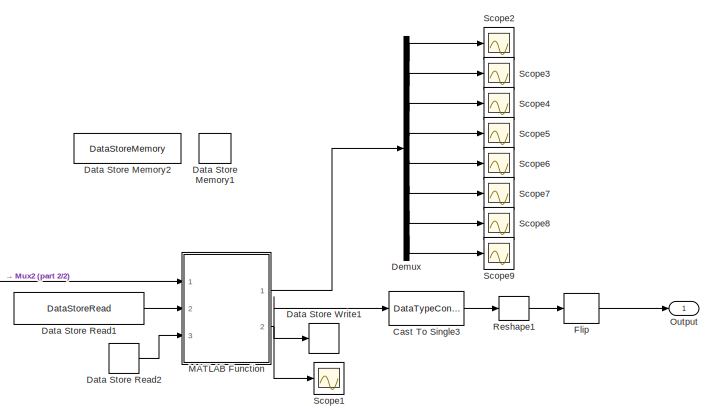
[diagram: Variant Subsystem/LSTM/Subsystem2 - part 1/2, top right region]
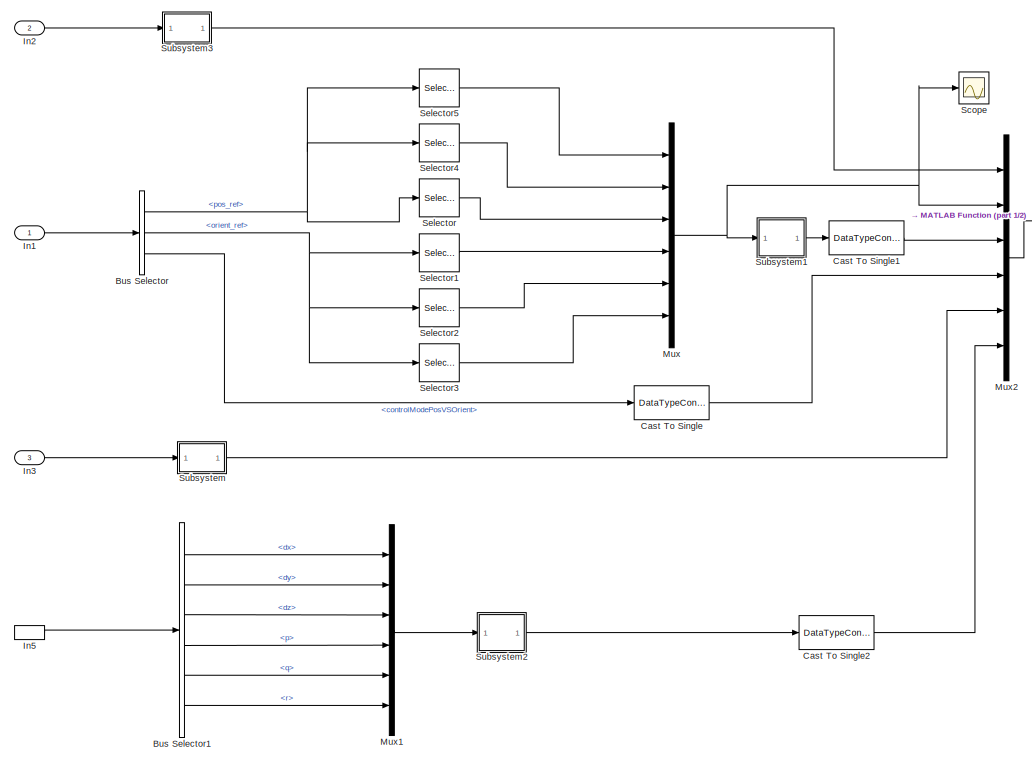
[diagram: Variant Subsystem/LSTM/Subsystem2 - part 2/2, left side, full height]
BLOCK [SubSystem] Variant Subsystem/LSTM/Subsystem2
  Ports = [3, 1]
  RequestExecContextInheritance = off
BLOCK [BusSelector] Variant Subsystem/LSTM/Subsystem2/Bus Selector
  OutputSignals = pos_ref,orient_ref,controlModePosVSOrient
  Ports = [1, 3]
BLOCK [BusSelector] Variant Subsystem/LSTM/Subsystem2/Bus Selector1
  OutputSignals = dx,dy,dz,p,q,r
  Ports = [1, 6]
BLOCK [DataTypeConversion] Variant Subsystem/LSTM/Subsystem2/Cast To Single
  OutDataTypeStr = single
  RndMeth = Floor
  SaturateOnIntegerOverflow = off
BLOCK [DataTypeConversion] Variant Subsystem/LSTM/Subsystem2/Cast To Single1
  OutDataTypeStr = single
  RndMeth = Floor
  SaturateOnIntegerOverflow = off
BLOCK [DataTypeConversion] Variant Subsystem/LSTM/Subsystem2/Cast To Single2
  OutDataTypeStr = single
  RndMeth = Floor
  SaturateOnIntegerOverflow = off
BLOCK [DataTypeConversion] Variant Subsystem/LSTM/Subsystem2/Cast To Single3
  OutDataTypeStr = single
  RndMeth = Floor
  SaturateOnIntegerOverflow = off
BLOCK [DataStoreMemory] Variant Subsystem/LSTM/Subsystem2/Data Store Memory1
  DataStoreName = Buffer
  InitialValue = repmat(x0,1,delays+1)
  ReadBeforeWriteMsg = warning
  ShowAdditionalParam = off
  WriteAfterReadMsg = warning
  WriteAfterWriteMsg = warning
BLOCK [DataStoreMemory] Variant Subsystem/LSTM/Subsystem2/Data Store Memory2
  DataStoreName = normalization_sts
  InitialValue = normalization_sts
  ReadBeforeWriteMsg = warning
  ShowAdditionalParam = off
  WriteAfterReadMsg = warning
  WriteAfterWriteMsg = warning
BLOCK [DataStoreRead] Variant Subsystem/LSTM/Subsystem2/Data Store Read1
  DataStoreName = normalization_sts
  IndexOptions = Index vector (dialog)
  Indices = 1
  OutputSizes = 1
  Ports = [0, 1]
BLOCK [DataStoreRead] Variant Subsystem/LSTM/Subsystem2/Data Store Read2
  DataStoreName = Buffer
  IndexOptions = Index vector (dialog)
  Indices = 1
  OutputSizes = 1
  Ports = [0, 1]
BLOCK [DataStoreWrite] Variant Subsystem/LSTM/Subsystem2/Data Store Write1
  DataStoreName = Buffer
  IndexOptions = Index vector (dialog)
  Indices = 1
  OutputSizes = 1
  Ports = [1]
BLOCK [Demux] Variant Subsystem/LSTM/Subsystem2/Demux
  Outputs = 8
  Ports = [1, 8]
BLOCK [DSPFlip] Variant Subsystem/LSTM/Subsystem2/Flip
  dim = Rows
BLOCK [Inport] Variant Subsystem/LSTM/Subsystem2/In1
BLOCK [Inport] Variant Subsystem/LSTM/Subsystem2/In2
  Port = 2
BLOCK [Inport] Variant Subsystem/LSTM/Subsystem2/In3
  Port = 3
BLOCK [InportShadow] Variant Subsystem/LSTM/Subsystem2/In5
  Port = 2
BLOCK [SubSystem] Variant Subsystem/LSTM/Subsystem2/MATLAB Function
  ErrorFcn = Stateflow.Translate.translate
  PermitHierarchicalResolution = ExplicitOnly
  Ports = [3, 2]
  RequestExecContextInheritance = off
  SFBlockType = MATLAB Function
  TreatAsAtomicUnit = on
BLOCK [Demux] Variant Subsystem/LSTM/Subsystem2/MATLAB Function/ Demux 
  Outputs = 1
  Ports = [1, 1]
BLOCK [S-Function] Variant Subsystem/LSTM/Subsystem2/MATLAB Function/ SFunction 
  EnableBusSupport = on
  FunctionName = sf_sfun
  PortCounts = [3 3]
  Ports = [3, 3]
  SFcnIsStateOwnerBlock = off
  SFunctionDeploymentMode = off
  Tag = Stateflow S-Function 2
BLOCK [Terminator] Variant Subsystem/LSTM/Subsystem2/MATLAB Function/ Terminator 
BLOCK [Outport] Variant Subsystem/LSTM/Subsystem2/MATLAB Function/Buffer
  Port = 2
BLOCK [Inport] Variant Subsystem/LSTM/Subsystem2/MATLAB Function/Buffer 
  Port = 3
BLOCK [Inport] Variant Subsystem/LSTM/Subsystem2/MATLAB Function/normalization
  Port = 2
BLOCK [Inport] Variant Subsystem/LSTM/Subsystem2/MATLAB Function/u
BLOCK [Outport] Variant Subsystem/LSTM/Subsystem2/MATLAB Function/y
BLOCK [Mux] Variant Subsystem/LSTM/Subsystem2/Mux
  DisplayOption = bar
  Inputs = 6
  Ports = [6, 1]
BLOCK [Mux] Variant Subsystem/LSTM/Subsystem2/Mux1
  DisplayOption = bar
  Inputs = 6
  Ports = [6, 1]
BLOCK [Mux] Variant Subsystem/LSTM/Subsystem2/Mux2
  DisplayOption = signals
  Inputs = 6
  Ports = [6, 1]
BLOCK [Outport] Variant Subsystem/LSTM/Subsystem2/Output
BLOCK [Reshape] Variant Subsystem/LSTM/Subsystem2/Reshape1
  OutputDimensionality = Customize
  OutputDimensions = [length(x0),delays+1]
  Ports = [1, 1]
BLOCK [Scope] Variant Subsystem/LSTM/Subsystem2/Scope
  Floating = off
  NumInputPorts = 1
  Ports = [1]
BLOCK [Scope] Variant Subsystem/LSTM/Subsystem2/Scope1
  Floating = off
  NumInputPorts = 1
  Ports = [1]
BLOCK [Scope] Variant Subsystem/LSTM/Subsystem2/Scope2
  Floating = off
  NumInputPorts = 1
  Ports = [1]
  ScopeSpecificationString = Simulink.scopes.TimeScopeBlockCfg('CurrentConfiguration', extmgr.ConfigurationSet(extmgr.Configuration('Core','General UI',true),extmgr.Configuration('Core','Source UI',true),extmgr.Configuration('Sources','WiredSimulink',true,'DataLoggingVariableName','ScopeData1'),extmgr.Configuration('Visuals','Time Domain',true,'SerializedDisplays',{struct('MinYLimReal','-0.12366','MaxYLimReal','1.11296','YLab...<+1431ch>
BLOCK [Scope] Variant Subsystem/LSTM/Subsystem2/Scope3
  Floating = off
  NumInputPorts = 1
  Ports = [1]
  ScopeSpecificationString = Simulink.scopes.TimeScopeBlockCfg('CurrentConfiguration', extmgr.ConfigurationSet(extmgr.Configuration('Core','General UI',true),extmgr.Configuration('Core','Source UI',true),extmgr.Configuration('Sources','WiredSimulink',true,'DataLoggingVariableName','ScopeData3'),extmgr.Configuration('Visuals','Time Domain',true,'SerializedDisplays',{struct('MinYLimReal','0.41609','MaxYLimReal','0.59722','YLabe...<+1429ch>
BLOCK [Scope] Variant Subsystem/LSTM/Subsystem2/Scope4
  Floating = off
  NumInputPorts = 1
  Ports = [1]
BLOCK [Scope] Variant Subsystem/LSTM/Subsystem2/Scope5
  Floating = off
  NumInputPorts = 1
  Ports = [1]
BLOCK [Scope] Variant Subsystem/LSTM/Subsystem2/Scope6
  Floating = off
  NumInputPorts = 1
  Ports = [1]
BLOCK [Scope] Variant Subsystem/LSTM/Subsystem2/Scope7
  Floating = off
  NumInputPorts = 1
  Ports = [1]
BLOCK [Scope] Variant Subsystem/LSTM/Subsystem2/Scope8
  Floating = off
  NumInputPorts = 1
  Ports = [1]
  ScopeSpecificationString = Simulink.scopes.TimeScopeBlockCfg('CurrentConfiguration', extmgr.ConfigurationSet(extmgr.Configuration('Core','General UI',true),extmgr.Configuration('Core','Source UI',true),extmgr.Configuration('Sources','WiredSimulink',true,'DataLoggingVariableName','ScopeData8'),extmgr.Configuration('Visuals','Time Domain',true,'SerializedDisplays',{struct('MinYLimReal','-0.125','MaxYLimReal','1.125','YLabelRe...<+1438ch>
BLOCK [Scope] Variant Subsystem/LSTM/Subsystem2/Scope9
  Floating = off
  NumInputPorts = 1
  Ports = [1]
  ScopeSpecificationString = Simulink.scopes.TimeScopeBlockCfg('CurrentConfiguration', extmgr.ConfigurationSet(extmgr.Configuration('Core','General UI',true),extmgr.Configuration('Core','Source UI',true),extmgr.Configuration('Sources','WiredSimulink',true,'DataLoggingVariableName','ScopeData9'),extmgr.Configuration('Visuals','Time Domain',true,'SerializedDisplays',{struct('MinYLimReal','-0.125','MaxYLimReal','1.125','YLabelRe...<+1417ch>
BLOCK [Selector] Variant Subsystem/LSTM/Subsystem2/Selector
  IndexOptions = Index vector (dialog)
  Indices = [3]
  InputPortWidth = 3
  OutputSizes = 1
  Ports = [1, 1]
BLOCK [Selector] Variant Subsystem/LSTM/Subsystem2/Selector1
  IndexOptions = Index vector (dialog)
  Indices = [1]
  InputPortWidth = 3
  OutputSizes = 1
  Ports = [1, 1]
BLOCK [Selector] Variant Subsystem/LSTM/Subsystem2/Selector2
  IndexOptions = Index vector (dialog)
  Indices = [3]
  InputPortWidth = 3
  OutputSizes = 1
  Ports = [1, 1]
BLOCK [Selector] Variant Subsystem/LSTM/Subsystem2/Selector3
  IndexOptions = Index vector (dialog)
  Indices = [2]
  InputPortWidth = 3
  OutputSizes = 1
  Ports = [1, 1]
BLOCK [Selector] Variant Subsystem/LSTM/Subsystem2/Selector4
  IndexOptions = Index vector (dialog)
  Indices = [2]
  InputPortWidth = 3
  OutputSizes = 1
  Ports = [1, 1]
BLOCK [Selector] Variant Subsystem/LSTM/Subsystem2/Selector5
  IndexOptions = Index vector (dialog)
  Indices = [1]
  InputPortWidth = 3
  OutputSizes = 1
  Ports = [1, 1]
BLOCK [SubSystem] Variant Subsystem/LSTM/Subsystem2/Subsystem
  Ports = [1, 1]
  RequestExecContextInheritance = off
BLOCK [BusSelector] Variant Subsystem/LSTM/Subsystem2/Subsystem/Bus Selector2
  OutputSignals = ddx,ddy,ddz,p,q,r,altitude_sonar,prs,vbat_V,vbat_percentage
  Ports = [1, 10]
BLOCK [DataTypeConversion] Variant Subsystem/LSTM/Subsystem2/Subsystem/Cast To Single
  OutDataTypeStr = single
  RndMeth = Floor
  SaturateOnIntegerOverflow = off
BLOCK [Inport] Variant Subsystem/LSTM/Subsystem2/Subsystem/In1
BLOCK [Mux] Variant Subsystem/LSTM/Subsystem2/Subsystem/Mux
  DisplayOption = bar
  Inputs = 10
  Ports = [10, 1]
BLOCK [Outport] Variant Subsystem/LSTM/Subsystem2/Subsystem/Out5
BLOCK [Scope] Variant Subsystem/LSTM/Subsystem2/Subsystem/Scope
  Floating = off
  NumInputPorts = 1
  Ports = [1]
BLOCK [SubSystem] Variant Subsystem/LSTM/Subsystem2/Subsystem1
  Ports = [1, 1]
  RequestExecContextInheritance = off
BLOCK [Constant] Variant Subsystem/LSTM/Subsystem2/Subsystem1/Constant1
  Value = Ts
BLOCK [Delay] Variant Subsystem/LSTM/Subsystem2/Subsystem1/Delay1
  DelayLength = 1
  InitialCondition = 0
  InputPortMap = u0
  NameLocation = right
  Ports = [1, 1]
BLOCK [Product] Variant Subsystem/LSTM/Subsystem2/Subsystem1/Divide1
  Inputs = */
  Ports = [2, 1]
BLOCK [Inport] Variant Subsystem/LSTM/Subsystem2/Subsystem1/In1
BLOCK [Outport] Variant Subsystem/LSTM/Subsystem2/Subsystem1/Out1
BLOCK [Sum] Variant Subsystem/LSTM/Subsystem2/Subsystem1/Sum1
  Inputs = |+-
  Ports = [2, 1]
BLOCK [SubSystem] Variant Subsystem/LSTM/Subsystem2/Subsystem2
  Ports = [1, 1]
  RequestExecContextInheritance = off
BLOCK [Constant] Variant Subsystem/LSTM/Subsystem2/Subsystem2/Constant1
  Value = Ts
BLOCK [Delay] Variant Subsystem/LSTM/Subsystem2/Subsystem2/Delay1
  DelayLength = 1
  InitialCondition = 0
  InputPortMap = u0
  NameLocation = right
  Ports = [1, 1]
BLOCK [Product] Variant Subsystem/LSTM/Subsystem2/Subsystem2/Divide1
  Inputs = */
  Ports = [2, 1]
BLOCK [Inport] Variant Subsystem/LSTM/Subsystem2/Subsystem2/In1
BLOCK [Outport] Variant Subsystem/LSTM/Subsystem2/Subsystem2/Out1
BLOCK [Sum] Variant Subsystem/LSTM/Subsystem2/Subsystem2/Sum1
  Inputs = |+-
  Ports = [2, 1]
BLOCK [SubSystem] Variant Subsystem/LSTM/Subsystem2/Subsystem3
  Ports = [1, 1]
  RequestExecContextInheritance = off
BLOCK [BusSelector] Variant Subsystem/LSTM/Subsystem2/Subsystem3/Bus Selector2
  OutputSignals = X,Y,Z,yaw,pitch,roll,dx,dy,dz,p,q,r
  Ports = [1, 12]
BLOCK [Inport] Variant Subsystem/LSTM/Subsystem2/Subsystem3/In1
BLOCK [Mux] Variant Subsystem/LSTM/Subsystem2/Subsystem3/Mux
  DisplayOption = bar
  Inputs = 12
  Ports = [12, 1]
BLOCK [Outport] Variant Subsystem/LSTM/Subsystem2/Subsystem3/Out5
BLOCK [Scope] Variant Subsystem/LSTM/Subsystem2/Subsystem3/Scope
  Floating = off
  NumInputPorts = 1
  Ports = [1]
BLOCK [SubSystem] Variant Subsystem/LSTM/Subsystem3
  Commented = on
  Ports = [4, 1]
  RequestExecContextInheritance = off
BLOCK [BusSelector] Variant Subsystem/LSTM/Subsystem3/Bus Selector
  OutputSignals = pos_ref,orient_ref,controlModePosVSOrient
  Ports = [1, 3]
BLOCK [BusSelector] Variant Subsystem/LSTM/Subsystem3/Bus Selector1
  OutputSignals = dx,dy,dz,p,q,r
  Ports = [1, 6]
BLOCK [DataTypeConversion] Variant Subsystem/LSTM/Subsystem3/Cast To Single
  OutDataTypeStr = single
  RndMeth = Floor
  SaturateOnIntegerOverflow = off
BLOCK [DataTypeConversion] Variant Subsystem/LSTM/Subsystem3/Cast To Single1
  OutDataTypeStr = single
  RndMeth = Floor
  SaturateOnIntegerOverflow = off
BLOCK [DataTypeConversion] Variant Subsystem/LSTM/Subsystem3/Cast To Single2
  OutDataTypeStr = single
  RndMeth = Floor
  SaturateOnIntegerOverflow = off
BLOCK [DataTypeConversion] Variant Subsystem/LSTM/Subsystem3/Cast To Single3
  OutDataTypeStr = single
  RndMeth = Floor
  SaturateOnIntegerOverflow = off
BLOCK [DataStoreMemory] Variant Subsystem/LSTM/Subsystem3/Data Store Memory1
  DataStoreName = Buffer_f
  InitialValue = repmat(x0_f,1,delays+1)
  ReadBeforeWriteMsg = warning
  ShowAdditionalParam = off
  WriteAfterReadMsg = warning
  WriteAfterWriteMsg = warning
BLOCK [DataStoreMemory] Variant Subsystem/LSTM/Subsystem3/Data Store Memory2
  DataStoreName = normalization_sts
  InitialValue = normalization_sts
  ReadBeforeWriteMsg = warning
  ShowAdditionalParam = off
  WriteAfterReadMsg = warning
  WriteAfterWriteMsg = warning
BLOCK [DataStoreRead] Variant Subsystem/LSTM/Subsystem3/Data Store Read1
  DataStoreName = normalization_sts
  IndexOptions = Index vector (dialog)
  Indices = 1
  OutputSizes = 1
  Ports = [0, 1]
BLOCK [DataStoreRead] Variant Subsystem/LSTM/Subsystem3/Data Store Read2
  DataStoreName = Buffer_f
  IndexOptions = Index vector (dialog)
  Indices = 1
  OutputSizes = 1
  Ports = [0, 1]
BLOCK [DataStoreWrite] Variant Subsystem/LSTM/Subsystem3/Data Store Write1
  DataStoreName = Buffer_f
  IndexOptions = Index vector (dialog)
  Indices = 1
  OutputSizes = 1
  Ports = [1]
BLOCK [Inport] Variant Subsystem/LSTM/Subsystem3/In1
BLOCK [Inport] Variant Subsystem/LSTM/Subsystem3/In2
  Port = 2
BLOCK [Inport] Variant Subsystem/LSTM/Subsystem3/In3
  Port = 3
BLOCK [Inport] Variant Subsystem/LSTM/Subsystem3/In4
  Port = 4
BLOCK [InportShadow] Variant Subsystem/LSTM/Subsystem3/In5
  Port = 2
BLOCK [SubSystem] Variant Subsystem/LSTM/Subsystem3/MATLAB Function
  ErrorFcn = Stateflow.Translate.translate
  PermitHierarchicalResolution = ExplicitOnly
  Ports = [3, 2]
  RequestExecContextInheritance = off
  SFBlockType = MATLAB Function
  TreatAsAtomicUnit = on
BLOCK [Demux] Variant Subsystem/LSTM/Subsystem3/MATLAB Function/ Demux 
  Outputs = 1
  Ports = [1, 1]
BLOCK [S-Function] Variant Subsystem/LSTM/Subsystem3/MATLAB Function/ SFunction 
  EnableBusSupport = on
  FunctionName = sf_sfun
  PortCounts = [3 3]
  Ports = [3, 3]
  SFcnIsStateOwnerBlock = off
  SFunctionDeploymentMode = off
  Tag = Stateflow S-Function 3
BLOCK [Terminator] Variant Subsystem/LSTM/Subsystem3/MATLAB Function/ Terminator 
BLOCK [Outport] Variant Subsystem/LSTM/Subsystem3/MATLAB Function/Buffer
  Port = 2
BLOCK [Inport] Variant Subsystem/LSTM/Subsystem3/MATLAB Function/Buffer 
  Port = 3
BLOCK [Inport] Variant Subsystem/LSTM/Subsystem3/MATLAB Function/normalization
  Port = 2
BLOCK [Inport] Variant Subsystem/LSTM/Subsystem3/MATLAB Function/u
BLOCK [Outport] Variant Subsystem/LSTM/Subsystem3/MATLAB Function/y
BLOCK [Mux] Variant Subsystem/LSTM/Subsystem3/Mux
  DisplayOption = bar
  Inputs = 6
  Ports = [6, 1]
BLOCK [Mux] Variant Subsystem/LSTM/Subsystem3/Mux1
  DisplayOption = bar
  Inputs = 6
  Ports = [6, 1]
BLOCK [Mux] Variant Subsystem/LSTM/Subsystem3/Mux2
  DisplayOption = signals
  Inputs = 7
  Ports = [7, 1]
BLOCK [Outport] Variant Subsystem/LSTM/Subsystem3/Output
BLOCK [Reshape] Variant Subsystem/LSTM/Subsystem3/Reshape1
  OutputDimensionality = Customize
  OutputDimensions = [length(x0_f),delays+1]
  Ports = [1, 1]
BLOCK [Scope] Variant Subsystem/LSTM/Subsystem3/Scope
  Floating = off
  NumInputPorts = 1
  Ports = [1]
BLOCK [Scope] Variant Subsystem/LSTM/Subsystem3/Scope1
  Floating = off
  NumInputPorts = 1
  Ports = [1]
BLOCK [Scope] Variant Subsystem/LSTM/Subsystem3/Scope2
  Floating = off
  NumInputPorts = 1
  Ports = [1]
  ScopeSpecificationString = Simulink.scopes.TimeScopeBlockCfg('CurrentConfiguration', extmgr.ConfigurationSet(extmgr.Configuration('Core','General UI',true),extmgr.Configuration('Core','Source UI',true),extmgr.Configuration('Sources','WiredSimulink',true,'DataLoggingVariableName','ScopeData1'),extmgr.Configuration('Visuals','Time Domain',true,'SerializedDisplays',{struct('MinYLimReal','-0.12683','MaxYLimReal','1.14147','YLab...<+1996ch>
BLOCK [Selector] Variant Subsystem/LSTM/Subsystem3/Selector
  IndexOptions = Index vector (dialog)
  Indices = [3]
  InputPortWidth = 3
  OutputSizes = 1
  Ports = [1, 1]
BLOCK [Selector] Variant Subsystem/LSTM/Subsystem3/Selector1
  IndexOptions = Index vector (dialog)
  Indices = [1]
  InputPortWidth = 3
  OutputSizes = 1
  Ports = [1, 1]
BLOCK [Selector] Variant Subsystem/LSTM/Subsystem3/Selector2
  IndexOptions = Index vector (dialog)
  Indices = [3]
  InputPortWidth = 3
  OutputSizes = 1
  Ports = [1, 1]
BLOCK [Selector] Variant Subsystem/LSTM/Subsystem3/Selector3
  IndexOptions = Index vector (dialog)
  Indices = [2]
  InputPortWidth = 3
  OutputSizes = 1
  Ports = [1, 1]
BLOCK [Selector] Variant Subsystem/LSTM/Subsystem3/Selector4
  IndexOptions = Index vector (dialog)
  Indices = [2]
  InputPortWidth = 3
  OutputSizes = 1
  Ports = [1, 1]
BLOCK [Selector] Variant Subsystem/LSTM/Subsystem3/Selector5
  IndexOptions = Index vector (dialog)
  Indices = [1]
  InputPortWidth = 3
  OutputSizes = 1
  Ports = [1, 1]
BLOCK [SubSystem] Variant Subsystem/LSTM/Subsystem3/Subsystem
  Ports = [1, 1]
  RequestExecContextInheritance = off
BLOCK [BusSelector] Variant Subsystem/LSTM/Subsystem3/Subsystem/Bus Selector2
  OutputSignals = ddx,ddy,ddz,p,q,r,altitude_sonar,prs,vbat_V,vbat_percentage
  Ports = [1, 10]
BLOCK [DataTypeConversion] Variant Subsystem/LSTM/Subsystem3/Subsystem/Cast To Single
  OutDataTypeStr = single
  RndMeth = Floor
  SaturateOnIntegerOverflow = off
BLOCK [Inport] Variant Subsystem/LSTM/Subsystem3/Subsystem/In1
BLOCK [Mux] Variant Subsystem/LSTM/Subsystem3/Subsystem/Mux
  DisplayOption = bar
  Inputs = 10
  Ports = [10, 1]
BLOCK [Outport] Variant Subsystem/LSTM/Subsystem3/Subsystem/Out5
BLOCK [SubSystem] Variant Subsystem/LSTM/Subsystem3/Subsystem1
  Ports = [1, 1]
  RequestExecContextInheritance = off
BLOCK [Constant] Variant Subsystem/LSTM/Subsystem3/Subsystem1/Constant1
  Value = Ts
BLOCK [Delay] Variant Subsystem/LSTM/Subsystem3/Subsystem1/Delay1
  DelayLength = 1
  InitialCondition = 0
  InputPortMap = u0
  NameLocation = right
  Ports = [1, 1]
BLOCK [Product] Variant Subsystem/LSTM/Subsystem3/Subsystem1/Divide1
  Inputs = */
  Ports = [2, 1]
BLOCK [Inport] Variant Subsystem/LSTM/Subsystem3/Subsystem1/In1
BLOCK [Outport] Variant Subsystem/LSTM/Subsystem3/Subsystem1/Out1
BLOCK [Sum] Variant Subsystem/LSTM/Subsystem3/Subsystem1/Sum1
  Inputs = |+-
  Ports = [2, 1]
BLOCK [SubSystem] Variant Subsystem/LSTM/Subsystem3/Subsystem2
  Ports = [1, 1]
  RequestExecContextInheritance = off
BLOCK [Constant] Variant Subsystem/LSTM/Subsystem3/Subsystem2/Constant1
  Value = Ts
BLOCK [Delay] Variant Subsystem/LSTM/Subsystem3/Subsystem2/Delay1
  DelayLength = 1
  InitialCondition = 0
  InputPortMap = u0
  NameLocation = right
  Ports = [1, 1]
BLOCK [Product] Variant Subsystem/LSTM/Subsystem3/Subsystem2/Divide1
  Inputs = */
  Ports = [2, 1]
BLOCK [Inport] Variant Subsystem/LSTM/Subsystem3/Subsystem2/In1
BLOCK [Outport] Variant Subsystem/LSTM/Subsystem3/Subsystem2/Out1
BLOCK [Sum] Variant Subsystem/LSTM/Subsystem3/Subsystem2/Sum1
  Inputs = |+-
  Ports = [2, 1]
BLOCK [SubSystem] Variant Subsystem/LSTM/Subsystem3/Subsystem3
  Ports = [1, 1]
  RequestExecContextInheritance = off
BLOCK [BusSelector] Variant Subsystem/LSTM/Subsystem3/Subsystem3/Bus Selector2
  OutputSignals = X,Y,Z,yaw,pitch,roll,dx,dy,dz,p,q,r
  Ports = [1, 12]
BLOCK [Inport] Variant Subsystem/LSTM/Subsystem3/Subsystem3/In1
BLOCK [Mux] Variant Subsystem/LSTM/Subsystem3/Subsystem3/Mux
  DisplayOption = bar
  Inputs = 12
  Ports = [12, 1]
BLOCK [Outport] Variant Subsystem/LSTM/Subsystem3/Subsystem3/Out5
BLOCK [Scope] Variant Subsystem/LSTM/Subsystem3/Subsystem3/Scope
  Floating = off
  NumInputPorts = 1
  Ports = [1]
BLOCK [Terminator] Variant Subsystem/LSTM/Terminator
  Commented = on
BLOCK [ToWorkspace] Variant Subsystem/LSTM/To Workspace
  FixptAsFi = on
  MaxDataPoints = inf
  Ports = [1]
  SampleTime = 5e-3
  SaveFormat = Structure With Time
  VariableName = Test
BLOCK [Outport] Variant Subsystem/LSTM/motors_refout
BLOCK [Inport] Variant Subsystem/LSTM/states_estim
  Port = 2
BLOCK [InportShadow] Variant Subsystem/LSTM/states_estim1
  Port = 2
BLOCK [Inport] Variant Subsystem/ReferenceValueServerBus
  Port = 2
BLOCK [Inport] Variant Subsystem/Sensores
  Port = 4
BLOCK [Outport] Variant Subsystem/motors_refout
BLOCK [Inport] Variant Subsystem/states_estim
  Port = 3
BLOCK [Outport] motors_refout
  VectorParamsAs1DForOutWhenUnconnected = off
BLOCK [Outport] pose_refout
  Port = 2
  VectorParamsAs1DForOutWhenUnconnected = off
BLOCK [Inport] states_estim
  BusOutputAsStruct = on
  OutDataTypeStr = Bus: statesEstim_t
  Port = 2
BLOCK [InportShadow] states_estim1
  BusOutputAsStruct = on
  OutDataTypeStr = Bus: statesEstim_t
  Port = 2
BLOCK [InportShadow] states_estim3
  BusOutputAsStruct = on
  OutDataTypeStr = Bus: statesEstim_t
  Port = 2
ANNOTATION (root): <copyright redacted>
ANNOTATION (root): Flight Controller
ANNOTATION (root): Neural Network
ANNOTATION (root): States
ANNOTATION Flight Controller: Bandera Para Maniobras Especificas En El Despegue
ANNOTATION Flight Controller: Bandera Para El Control Especifico En El Aterrizaje
ANNOTATION Flight Controller/Attitude: 0.001
ANNOTATION Flight Controller/Attitude: 0.001616
ANNOTATION Flight Controller/Attitude: 0.005
ANNOTATION Flight Controller/Attitude: 0.01
ANNOTATION Flight Controller/Attitude: ATTITUDE
ANNOTATION Flight Controller/Attitude: OC [D]
ANNOTATION Flight Controller/Attitude: OC [I]
ANNOTATION Flight Controller/Attitude: OC [P]
ANNOTATION Flight Controller/Attitude: OPSO [D]
ANNOTATION Flight Controller/Attitude: OPSO [I]
ANNOTATION Flight Controller/Attitude: OPSO [P]
ANNOTATION Flight Controller/Attitude: [0.002; 0.0028]
ANNOTATION Flight Controller/Attitude: [0.002;0.01119]
ANNOTATION Flight Controller/Attitude: [0.013;0.01]
ANNOTATION Flight Controller/Attitude: [0.013;0.06656]
ANNOTATION Flight Controller/MOTOR 1 : 1) Add Subsystem or Model blocks as valid variant choices. 2) You cannot connect blocks at this level. At simulation, connectivity is automatically determined, based on the active variant and port name matching.
ANNOTATION Flight Controller/MOTOR 1 /SUBIR: SI
ANNOTATION Flight Controller/MOTOR 2: 1) Add Subsystem or Model blocks as valid variant choices. 2) You cannot connect blocks at this level. At simulation, connectivity is automatically determined, based on the active variant and port name matching.
ANNOTATION Flight Controller/MOTOR 2/SUBIR: SI
ANNOTATION Flight Controller/MOTOR 3 : 1) Add Subsystem or Model blocks as valid variant choices. 2) You cannot connect blocks at this level. At simulation, connectivity is automatically determined, based on the active variant and port name matching.
ANNOTATION Flight Controller/MOTOR 3 /SUBIR: SI
ANNOTATION Flight Controller/MOTOR 4 : 1) Add Subsystem or Model blocks as valid variant choices. 2) You cannot connect blocks at this level. At simulation, connectivity is automatically determined, based on the active variant and port name matching.
ANNOTATION Flight Controller/MOTOR 4 /SUBIR: SI
ANNOTATION Flight Controller/Subsystem: SI
ANNOTATION Flight Controller/Subsystem1: SI
ANNOTATION Flight Controller/Subsystem2: SI
ANNOTATION Flight Controller/Subsystem3: SI
ANNOTATION Flight Controller/gravity feedforward//equilibrium thrust: ALTITUDE
ANNOTATION Subsystem: Pitch
ANNOTATION Subsystem: Roll
ANNOTATION Subsystem: X
ANNOTATION Subsystem: Y
ANNOTATION Subsystem: Yaw
ANNOTATION Subsystem: Z
ANNOTATION Variant Subsystem: 1) Add Subsystem or Model blocks as valid variant choices. 2) You cannot connect blocks at this level. At simulation, connectivity is automatically determined, based on the active variant and port name matching.
ANNOTATION Variant Subsystem/ANN: Normalizacion
ANNOTATION Variant Subsystem/ANN: PREPROCESAMIENTO
ANNOTATION Variant Subsystem/ANN/Subsystem/Subsystem: Normalizacion de Sensores
ANNOTATION Variant Subsystem/ANN/Subsystem/Subsystem10: Normalizacion de Sensores
ANNOTATION Variant Subsystem/ANN/Subsystem/Subsystem10: Normalizacion de ref_DZ
ANNOTATION Variant Subsystem/ANN/Subsystem/Subsystem10: Normalizacion de ref_Z
ANNOTATION Variant Subsystem/ANN/Subsystem/Subsystem10: Normalizacion_Acel_Z
ANNOTATION Variant Subsystem/ANN/Subsystem/Subsystem10: Normalizacion_DZ
ANNOTATION Variant Subsystem/ANN/Subsystem/Subsystem10: Normalizacion_Z
ANNOTATION Variant Subsystem/ANN/Subsystem/Subsystem11: Normalizacion de Sensores
ANNOTATION Variant Subsystem/ANN/Subsystem/Subsystem11: Normalizacion de ref_DZ
ANNOTATION Variant Subsystem/ANN/Subsystem/Subsystem11: Normalizacion de ref_Z
ANNOTATION Variant Subsystem/ANN/Subsystem/Subsystem11: Normalizacion_Acel_Z
ANNOTATION Variant Subsystem/ANN/Subsystem/Subsystem11: Normalizacion_DZ
ANNOTATION Variant Subsystem/ANN/Subsystem/Subsystem11: Normalizacion_Z
ANNOTATION Variant Subsystem/ANN/Subsystem/Subsystem12: Normalizacion de Sensores
ANNOTATION Variant Subsystem/ANN/Subsystem/Subsystem12: Normalizacion de ref_DZ
ANNOTATION Variant Subsystem/ANN/Subsystem/Subsystem12: Normalizacion de ref_Z
ANNOTATION Variant Subsystem/ANN/Subsystem/Subsystem12: Normalizacion_Acel_Z
ANNOTATION Variant Subsystem/ANN/Subsystem/Subsystem12: Normalizacion_DZ
ANNOTATION Variant Subsystem/ANN/Subsystem/Subsystem12: Normalizacion_Z
ANNOTATION Variant Subsystem/ANN/Subsystem/Subsystem13: Acel_P
ANNOTATION Variant Subsystem/ANN/Subsystem/Subsystem13: Acel_Q
ANNOTATION Variant Subsystem/ANN/Subsystem/Subsystem13: Acel_R
ANNOTATION Variant Subsystem/ANN/Subsystem/Subsystem13: Acel_Z
ANNOTATION Variant Subsystem/ANN/Subsystem/Subsystem13: Normalizacion_Acel_P
ANNOTATION Variant Subsystem/ANN/Subsystem/Subsystem13: Normalizacion_Acel_Q
ANNOTATION Variant Subsystem/ANN/Subsystem/Subsystem13: Normalizacion_Acel_R
ANNOTATION Variant Subsystem/ANN/Subsystem/Subsystem13: Normalizacion_Acel_Z
ANNOTATION Variant Subsystem/ANN/Subsystem/Subsystem13: Normalizacion_DZ
ANNOTATION Variant Subsystem/ANN/Subsystem/Subsystem13: Normalizacion_P
ANNOTATION Variant Subsystem/ANN/Subsystem/Subsystem13: Normalizacion_PITCH
ANNOTATION Variant Subsystem/ANN/Subsystem/Subsystem13: Normalizacion_Q
ANNOTATION Variant Subsystem/ANN/Subsystem/Subsystem13: Normalizacion_R
ANNOTATION Variant Subsystem/ANN/Subsystem/Subsystem13: Normalizacion_ROLL
ANNOTATION Variant Subsystem/ANN/Subsystem/Subsystem13: Normalizacion_YAW
ANNOTATION Variant Subsystem/ANN/Subsystem/Subsystem13: Normalizacion_Z
ANNOTATION Variant Subsystem/ANN/Subsystem/Subsystem3: Normalizacion de ref_DZ
ANNOTATION Variant Subsystem/ANN/Subsystem/Subsystem3: Normalizacion de ref_P
ANNOTATION Variant Subsystem/ANN/Subsystem/Subsystem3: Normalizacion de ref_PITCH
ANNOTATION Variant Subsystem/ANN/Subsystem/Subsystem3: Normalizacion de ref_Q
ANNOTATION Variant Subsystem/ANN/Subsystem/Subsystem3: Normalizacion de ref_R
ANNOTATION Variant Subsystem/ANN/Subsystem/Subsystem3: Normalizacion de ref_ROLL
ANNOTATION Variant Subsystem/ANN/Subsystem/Subsystem3: Normalizacion de ref_YAW
ANNOTATION Variant Subsystem/ANN/Subsystem/Subsystem3: Normalizacion de ref_Z
ANNOTATION Variant Subsystem/ANN/Subsystem/Subsystem3: ref_DZ
ANNOTATION Variant Subsystem/ANN_Feedback: Normalizacion
ANNOTATION Variant Subsystem/ANN_Feedback: PREPROCESAMIENTO
ANNOTATION Variant Subsystem/ANN_Feedback/Subsystem1/Subsystem: Normalizacion de Sensores
ANNOTATION Variant Subsystem/ANN_Feedback/Subsystem1/Subsystem10: Normalizacion de Sensores
ANNOTATION Variant Subsystem/ANN_Feedback/Subsystem1/Subsystem10: Normalizacion de ref_DZ
ANNOTATION Variant Subsystem/ANN_Feedback/Subsystem1/Subsystem10: Normalizacion de ref_Z
ANNOTATION Variant Subsystem/ANN_Feedback/Subsystem1/Subsystem10: Normalizacion_Acel_Z
ANNOTATION Variant Subsystem/ANN_Feedback/Subsystem1/Subsystem10: Normalizacion_DZ
ANNOTATION Variant Subsystem/ANN_Feedback/Subsystem1/Subsystem10: Normalizacion_Z
ANNOTATION Variant Subsystem/ANN_Feedback/Subsystem1/Subsystem11: Normalizacion de Sensores
ANNOTATION Variant Subsystem/ANN_Feedback/Subsystem1/Subsystem11: Normalizacion de ref_DZ
ANNOTATION Variant Subsystem/ANN_Feedback/Subsystem1/Subsystem11: Normalizacion de ref_Z
ANNOTATION Variant Subsystem/ANN_Feedback/Subsystem1/Subsystem11: Normalizacion_Acel_Z
ANNOTATION Variant Subsystem/ANN_Feedback/Subsystem1/Subsystem11: Normalizacion_DZ
ANNOTATION Variant Subsystem/ANN_Feedback/Subsystem1/Subsystem11: Normalizacion_Z
ANNOTATION Variant Subsystem/ANN_Feedback/Subsystem1/Subsystem12: Normalizacion de Sensores
ANNOTATION Variant Subsystem/ANN_Feedback/Subsystem1/Subsystem12: Normalizacion de ref_DZ
ANNOTATION Variant Subsystem/ANN_Feedback/Subsystem1/Subsystem12: Normalizacion de ref_Z
ANNOTATION Variant Subsystem/ANN_Feedback/Subsystem1/Subsystem12: Normalizacion_Acel_Z
ANNOTATION Variant Subsystem/ANN_Feedback/Subsystem1/Subsystem12: Normalizacion_DZ
ANNOTATION Variant Subsystem/ANN_Feedback/Subsystem1/Subsystem12: Normalizacion_Z
ANNOTATION Variant Subsystem/ANN_Feedback/Subsystem1/Subsystem13: Acel_P
ANNOTATION Variant Subsystem/ANN_Feedback/Subsystem1/Subsystem13: Acel_Q
ANNOTATION Variant Subsystem/ANN_Feedback/Subsystem1/Subsystem13: Acel_R
ANNOTATION Variant Subsystem/ANN_Feedback/Subsystem1/Subsystem13: Acel_X
ANNOTATION Variant Subsystem/ANN_Feedback/Subsystem1/Subsystem13: Acel_Y
ANNOTATION Variant Subsystem/ANN_Feedback/Subsystem1/Subsystem13: Acel_Z
ANNOTATION Variant Subsystem/ANN_Feedback/Subsystem1/Subsystem13: Normalizacion_Acel_P
ANNOTATION Variant Subsystem/ANN_Feedback/Subsystem1/Subsystem13: Normalizacion_Acel_Q
ANNOTATION Variant Subsystem/ANN_Feedback/Subsystem1/Subsystem13: Normalizacion_Acel_R
ANNOTATION Variant Subsystem/ANN_Feedback/Subsystem1/Subsystem13: Normalizacion_Acel_X
ANNOTATION Variant Subsystem/ANN_Feedback/Subsystem1/Subsystem13: Normalizacion_Acel_Y
ANNOTATION Variant Subsystem/ANN_Feedback/Subsystem1/Subsystem13: Normalizacion_Acel_Z
ANNOTATION Variant Subsystem/ANN_Feedback/Subsystem1/Subsystem13: Normalizacion_DX
ANNOTATION Variant Subsystem/ANN_Feedback/Subsystem1/Subsystem13: Normalizacion_DY
ANNOTATION Variant Subsystem/ANN_Feedback/Subsystem1/Subsystem13: Normalizacion_DZ
ANNOTATION Variant Subsystem/ANN_Feedback/Subsystem1/Subsystem13: Normalizacion_P
ANNOTATION Variant Subsystem/ANN_Feedback/Subsystem1/Subsystem13: Normalizacion_PITCH
ANNOTATION Variant Subsystem/ANN_Feedback/Subsystem1/Subsystem13: Normalizacion_Q
ANNOTATION Variant Subsystem/ANN_Feedback/Subsystem1/Subsystem13: Normalizacion_R
ANNOTATION Variant Subsystem/ANN_Feedback/Subsystem1/Subsystem13: Normalizacion_ROLL
ANNOTATION Variant Subsystem/ANN_Feedback/Subsystem1/Subsystem13: Normalizacion_X
ANNOTATION Variant Subsystem/ANN_Feedback/Subsystem1/Subsystem13: Normalizacion_Y
ANNOTATION Variant Subsystem/ANN_Feedback/Subsystem1/Subsystem13: Normalizacion_YAW
ANNOTATION Variant Subsystem/ANN_Feedback/Subsystem1/Subsystem13: Normalizacion_Z
ANNOTATION Variant Subsystem/ANN_Feedback/Subsystem1/Subsystem3: Normalizacion de ref_DX
ANNOTATION Variant Subsystem/ANN_Feedback/Subsystem1/Subsystem3: Normalizacion de ref_DY
ANNOTATION Variant Subsystem/ANN_Feedback/Subsystem1/Subsystem3: Normalizacion de ref_DZ
ANNOTATION Variant Subsystem/ANN_Feedback/Subsystem1/Subsystem3: Normalizacion de ref_P
ANNOTATION Variant Subsystem/ANN_Feedback/Subsystem1/Subsystem3: Normalizacion de ref_PITCH
ANNOTATION Variant Subsystem/ANN_Feedback/Subsystem1/Subsystem3: Normalizacion de ref_Q
ANNOTATION Variant Subsystem/ANN_Feedback/Subsystem1/Subsystem3: Normalizacion de ref_R
ANNOTATION Variant Subsystem/ANN_Feedback/Subsystem1/Subsystem3: Normalizacion de ref_ROLL
ANNOTATION Variant Subsystem/ANN_Feedback/Subsystem1/Subsystem3: Normalizacion de ref_X
ANNOTATION Variant Subsystem/ANN_Feedback/Subsystem1/Subsystem3: Normalizacion de ref_Y
ANNOTATION Variant Subsystem/ANN_Feedback/Subsystem1/Subsystem3: Normalizacion de ref_YAW
ANNOTATION Variant Subsystem/ANN_Feedback/Subsystem1/Subsystem3: Normalizacion de ref_Z
ANNOTATION Variant Subsystem/ANN_Feedback/Subsystem1/Subsystem3: ref Derivada
ANNOTATION Variant Subsystem/LSTM: PREPROCESAMIENTO
LINE Flight Controller/Attitude/Add:1 -> Flight Controller/Attitude/Discrete-Time Integrator:1
LINE Flight Controller/Attitude/Bus Selector3:1 -> Flight Controller/Attitude/Mux:1
NET Flight Controller/Attitude/Bus Selector3:2 -> Flight Controller/Attitude/Mux:2, Flight Controller/Attitude/Scope1:1
LINE Flight Controller/Attitude/Bus Selector4:1 -> Flight Controller/Attitude/Mux1:1
NET Flight Controller/Attitude/Bus Selector4:2 -> Flight Controller/Attitude/Mux1:2, Flight Controller/Attitude/Scope1:2
NET Flight Controller/Attitude/D_pr:1 -> Flight Controller/Attitude/Scope5:1, Flight Controller/Attitude/Sum16:3
LINE Flight Controller/Attitude/Delay:1 -> Flight Controller/Attitude/antiWU_Gain:1
LINE Flight Controller/Attitude/Demux:1 -> Flight Controller/Attitude/tau_pitch:1
LINE Flight Controller/Attitude/Demux:2 -> Flight Controller/Attitude/tau_roll:1
NET Flight Controller/Attitude/Discrete-Time Integrator:1 -> Flight Controller/Attitude/Delay:1, Flight Controller/Attitude/I_pr:1
NET Flight Controller/Attitude/I_pr:1 -> Flight Controller/Attitude/Scope:1, Flight Controller/Attitude/Sum16:2
NET Flight Controller/Attitude/Mux1:1 -> Flight Controller/Attitude/D_pr:1, Flight Controller/Attitude/Scope4:1
LINE Flight Controller/Attitude/Mux:1 -> Flight Controller/Attitude/Sum19:2
NET Flight Controller/Attitude/P_pr:1 -> Flight Controller/Attitude/Scope3:2, Flight Controller/Attitude/Sum16:1
LINE Flight Controller/Attitude/Sum16:1 -> Flight Controller/Attitude/Demux:1
NET Flight Controller/Attitude/Sum19:1 -> Flight Controller/Attitude/Add:1, Flight Controller/Attitude/P_pr:1, Flight Controller/Attitude/Scope2:2
LINE Flight Controller/Attitude/antiWU_Gain:1 -> Flight Controller/Attitude/Add:2
LINE Flight Controller/Attitude/refAttitude:1 -> Flight Controller/Attitude/Sum19:1
NET Flight Controller/Attitude/states_estim:1 -> Flight Controller/Attitude/Bus Selector3:1, Flight Controller/Attitude/Bus Selector4:1
LINE Flight Controller/Attitude:1 -> Flight Controller/ControlMixer:1
LINE Flight Controller/Attitude:2 -> Flight Controller/ControlMixer:2
LINE Flight Controller/Bus Selector2:1 -> Flight Controller/Subsystem4:1
LINE Flight Controller/Bus Selector2:10 -> Flight Controller/Subsystem4:10
LINE Flight Controller/Bus Selector2:11 -> Flight Controller/Subsystem4:11
LINE Flight Controller/Bus Selector2:12 -> Flight Controller/Subsystem4:12
LINE Flight Controller/Bus Selector2:2 -> Flight Controller/Subsystem4:2
LINE Flight Controller/Bus Selector2:3 -> Flight Controller/Subsystem4:3
LINE Flight Controller/Bus Selector2:4 -> Flight Controller/Subsystem4:4
LINE Flight Controller/Bus Selector2:5 -> Flight Controller/Subsystem4:5
LINE Flight Controller/Bus Selector2:6 -> Flight Controller/Subsystem4:6
LINE Flight Controller/Bus Selector2:7 -> Flight Controller/Subsystem4:7
LINE Flight Controller/Bus Selector2:8 -> Flight Controller/Subsystem4:8
LINE Flight Controller/Bus Selector2:9 -> Flight Controller/Subsystem4:9
LINE Flight Controller/Bus Selector:1 -> Flight Controller/Mux:1
LINE Flight Controller/Bus Selector:2 -> Flight Controller/Mux:2
NET Flight Controller/Bus Selector:3 -> Flight Controller/Mux:3, Flight Controller/Scope5:2
LINE Flight Controller/Bus Selector:4 -> Flight Controller/Mux3:1
LINE Flight Controller/Bus Selector:5 -> Flight Controller/Mux3:2
NET Flight Controller/Bus Selector:6 -> Flight Controller/Mux3:3, Flight Controller/Scope5:3
LINE Flight Controller/ControlMixer/Mux2:1 -> Flight Controller/ControlMixer/Product:2
LINE Flight Controller/ControlMixer/Product:1 -> Flight Controller/ControlMixer/thrusts_refout:1
LINE Flight Controller/ControlMixer/TorqueTotalThrustToThrustPerMotor:1 -> Flight Controller/ControlMixer/Product:1
LINE Flight Controller/ControlMixer/tau_pitch:1 -> Flight Controller/ControlMixer/Mux2:3
LINE Flight Controller/ControlMixer/tau_roll:1 -> Flight Controller/ControlMixer/Mux2:4
LINE Flight Controller/ControlMixer/tau_yaw:1 -> Flight Controller/ControlMixer/Mux2:2
LINE Flight Controller/ControlMixer/totalThrust:1 -> Flight Controller/ControlMixer/Mux2:1
NET Flight Controller/ControlMixer:1 -> Flight Controller/Scope4:1, Flight Controller/thrustsToMotorCommands:1
LINE Flight Controller/Data Type Conversion:1 -> Flight Controller/Scope:1
LINE Flight Controller/In Bus Element10:1 -> Flight Controller/Subsystem5:1
LINE Flight Controller/In Bus Element11:1 -> Flight Controller/Subsystem5:3
NET Flight Controller/In Bus Element12:1 -> Flight Controller/Scope1:2, Flight Controller/Scope5:4
NET Flight Controller/In Bus Element1:1 -> Flight Controller/Scope3:1, Flight Controller/Switch_refAtt:2
LINE Flight Controller/In Bus Element2:1 -> Flight Controller/Selector3:1
LINE Flight Controller/In Bus Element3:1 -> Flight Controller/gravity feedforward//equilibrium thrust:3
LINE Flight Controller/In Bus Element4:1 -> Flight Controller/Mux2:1
LINE Flight Controller/In Bus Element5:1 -> Flight Controller/Selector:1
LINE Flight Controller/In Bus Element6:1 -> Flight Controller/Selector2:1
LINE Flight Controller/In Bus Element7:1 -> Flight Controller/Mux2:2
NET Flight Controller/In Bus Element8:1 -> Flight Controller/Scope1:1, Flight Controller/Scope5:1
LINE Flight Controller/In Bus Element9:1 -> Flight Controller/Subsystem5:2
LINE Flight Controller/In Bus Element:1 -> Flight Controller/Selector1:1
LINE Flight Controller/MOTOR 1 /PITCH /Step6:1 -> Flight Controller/MOTOR 1 /PITCH /Switch2:1
LINE Flight Controller/MOTOR 1 /PITCH /Step7:1 -> Flight Controller/MOTOR 1 /PITCH /Switch2:3
LINE Flight Controller/MOTOR 1 /PITCH /Step8:1 -> Flight Controller/MOTOR 1 /PITCH /Switch2:2
LINE Flight Controller/MOTOR 1 /PITCH /Switch2:1 -> Flight Controller/MOTOR 1 /PITCH /Out1:1
LINE Flight Controller/MOTOR 1 /ROLL /Step10:1 -> Flight Controller/MOTOR 1 /ROLL /Switch3:3
LINE Flight Controller/MOTOR 1 /ROLL /Step11:1 -> Flight Controller/MOTOR 1 /ROLL /Switch3:2
LINE Flight Controller/MOTOR 1 /ROLL /Step9:1 -> Flight Controller/MOTOR 1 /ROLL /Switch3:1
LINE Flight Controller/MOTOR 1 /ROLL /Switch3:1 -> Flight Controller/MOTOR 1 /ROLL /Out1:1
LINE Flight Controller/MOTOR 1 /SUBIR/Pulse Generator1:1 -> Flight Controller/MOTOR 1 /SUBIR/Sum1:2
LINE Flight Controller/MOTOR 1 /SUBIR/Step1:1 -> Flight Controller/MOTOR 1 /SUBIR/Switch1:1
LINE Flight Controller/MOTOR 1 /SUBIR/Step3:1 -> Flight Controller/MOTOR 1 /SUBIR/Switch1:2
LINE Flight Controller/MOTOR 1 /SUBIR/Step4:1 -> Flight Controller/MOTOR 1 /SUBIR/Sum1:1
LINE Flight Controller/MOTOR 1 /SUBIR/Sum1:1 -> Flight Controller/MOTOR 1 /SUBIR/Switch1:3
LINE Flight Controller/MOTOR 1 /SUBIR/Switch1:1 -> Flight Controller/MOTOR 1 /SUBIR/Out1:1
LINE Flight Controller/MOTOR 1 /YAW/Pulse Generator:1 -> Flight Controller/MOTOR 1 /YAW/Sum:2
LINE Flight Controller/MOTOR 1 /YAW/Step2:1 -> Flight Controller/MOTOR 1 /YAW/Sum:1
LINE Flight Controller/MOTOR 1 /YAW/Step5:1 -> Flight Controller/MOTOR 1 /YAW/Switch:2
LINE Flight Controller/MOTOR 1 /YAW/Step:1 -> Flight Controller/MOTOR 1 /YAW/Switch:1
LINE Flight Controller/MOTOR 1 /YAW/Sum:1 -> Flight Controller/MOTOR 1 /YAW/Switch:3
LINE Flight Controller/MOTOR 1 /YAW/Switch:1 -> Flight Controller/MOTOR 1 /YAW/Out1:1
LINE Flight Controller/MOTOR 1 :1 -> Flight Controller/Mux1:1
LINE Flight Controller/MOTOR 2/PITCH /Step6:1 -> Flight Controller/MOTOR 2/PITCH /Switch2:1
LINE Flight Controller/MOTOR 2/PITCH /Step8:1 -> Flight Controller/MOTOR 2/PITCH /Switch2:3
LINE Flight Controller/MOTOR 2/PITCH /Step9:1 -> Flight Controller/MOTOR 2/PITCH /Switch2:2
LINE Flight Controller/MOTOR 2/PITCH /Switch2:1 -> Flight Controller/MOTOR 2/PITCH /Out1:1
LINE Flight Controller/MOTOR 2/ROLL/Step10:1 -> Flight Controller/MOTOR 2/ROLL/Switch3:1
LINE Flight Controller/MOTOR 2/ROLL/Step11:1 -> Flight Controller/MOTOR 2/ROLL/Switch3:3
LINE Flight Controller/MOTOR 2/ROLL/Step12:1 -> Flight Controller/MOTOR 2/ROLL/Switch3:2
LINE Flight Controller/MOTOR 2/ROLL/Switch3:1 -> Flight Controller/MOTOR 2/ROLL/Out1:1
LINE Flight Controller/MOTOR 2/SUBIR/Pulse Generator1:1 -> Flight Controller/MOTOR 2/SUBIR/Sum1:2
LINE Flight Controller/MOTOR 2/SUBIR/Step4:1 -> Flight Controller/MOTOR 2/SUBIR/Switch:3
LINE Flight Controller/MOTOR 2/SUBIR/Step5:1 -> Flight Controller/MOTOR 2/SUBIR/Switch:2
LINE Flight Controller/MOTOR 2/SUBIR/Step7:1 -> Flight Controller/MOTOR 2/SUBIR/Sum1:1
LINE Flight Controller/MOTOR 2/SUBIR/Sum1:1 -> Flight Controller/MOTOR 2/SUBIR/Switch:1
LINE Flight Controller/MOTOR 2/SUBIR/Switch:1 -> Flight Controller/MOTOR 2/SUBIR/Out1:1
LINE Flight Controller/MOTOR 2/YAW/Pulse Generator:1 -> Flight Controller/MOTOR 2/YAW/Sum:1
LINE Flight Controller/MOTOR 2/YAW/Step1:1 -> Flight Controller/MOTOR 2/YAW/Sum:2
LINE Flight Controller/MOTOR 2/YAW/Step2:1 -> Flight Controller/MOTOR 2/YAW/Switch1:3
LINE Flight Controller/MOTOR 2/YAW/Step3:1 -> Flight Controller/MOTOR 2/YAW/Switch1:2
LINE Flight Controller/MOTOR 2/YAW/Sum:1 -> Flight Controller/MOTOR 2/YAW/Switch1:1
LINE Flight Controller/MOTOR 2/YAW/Switch1:1 -> Flight Controller/MOTOR 2/YAW/Out1:1
LINE Flight Controller/MOTOR 2:1 -> Flight Controller/Mux1:2
LINE Flight Controller/MOTOR 3 /PITCH /Step6:1 -> Flight Controller/MOTOR 3 /PITCH /Switch2:1
LINE Flight Controller/MOTOR 3 /PITCH /Step7:1 -> Flight Controller/MOTOR 3 /PITCH /Switch2:3
LINE Flight Controller/MOTOR 3 /PITCH /Step8:1 -> Flight Controller/MOTOR 3 /PITCH /Switch2:2
LINE Flight Controller/MOTOR 3 /PITCH /Switch2:1 -> Flight Controller/MOTOR 3 /PITCH /Out1:1
LINE Flight Controller/MOTOR 3 /ROLL /Step10:1 -> Flight Controller/MOTOR 3 /ROLL /Switch3:3
LINE Flight Controller/MOTOR 3 /ROLL /Step11:1 -> Flight Controller/MOTOR 3 /ROLL /Switch3:2
LINE Flight Controller/MOTOR 3 /ROLL /Step9:1 -> Flight Controller/MOTOR 3 /ROLL /Switch3:1
LINE Flight Controller/MOTOR 3 /ROLL /Switch3:1 -> Flight Controller/MOTOR 3 /ROLL /Out1:1
LINE Flight Controller/MOTOR 3 /SUBIR/Pulse Generator1:1 -> Flight Controller/MOTOR 3 /SUBIR/Sum1:2
LINE Flight Controller/MOTOR 3 /SUBIR/Step4:1 -> Flight Controller/MOTOR 3 /SUBIR/Sum1:1
LINE Flight Controller/MOTOR 3 /SUBIR/Step5:1 -> Flight Controller/MOTOR 3 /SUBIR/Switch:2
LINE Flight Controller/MOTOR 3 /SUBIR/Step:1 -> Flight Controller/MOTOR 3 /SUBIR/Switch:1
LINE Flight Controller/MOTOR 3 /SUBIR/Sum1:1 -> Flight Controller/MOTOR 3 /SUBIR/Switch:3
LINE Flight Controller/MOTOR 3 /SUBIR/Switch:1 -> Flight Controller/MOTOR 3 /SUBIR/Out1:1
LINE Flight Controller/MOTOR 3 /YAW/Pulse Generator:1 -> Flight Controller/MOTOR 3 /YAW/Sum:2
LINE Flight Controller/MOTOR 3 /YAW/Step1:1 -> Flight Controller/MOTOR 3 /YAW/Switch1:1
LINE Flight Controller/MOTOR 3 /YAW/Step2:1 -> Flight Controller/MOTOR 3 /YAW/Sum:1
LINE Flight Controller/MOTOR 3 /YAW/Step3:1 -> Flight Controller/MOTOR 3 /YAW/Switch1:2
LINE Flight Controller/MOTOR 3 /YAW/Sum:1 -> Flight Controller/MOTOR 3 /YAW/Switch1:3
LINE Flight Controller/MOTOR 3 /YAW/Switch1:1 -> Flight Controller/MOTOR 3 /YAW/Out1:1
LINE Flight Controller/MOTOR 3 :1 -> Flight Controller/Mux1:3
LINE Flight Controller/MOTOR 4 /PITCH /Step6:1 -> Flight Controller/MOTOR 4 /PITCH /Switch2:1
LINE Flight Controller/MOTOR 4 /PITCH /Step8:1 -> Flight Controller/MOTOR 4 /PITCH /Switch2:3
LINE Flight Controller/MOTOR 4 /PITCH /Step9:1 -> Flight Controller/MOTOR 4 /PITCH /Switch2:2
LINE Flight Controller/MOTOR 4 /PITCH /Switch2:1 -> Flight Controller/MOTOR 4 /PITCH /Out1:1
LINE Flight Controller/MOTOR 4 /ROLL /Step10:1 -> Flight Controller/MOTOR 4 /ROLL /Switch3:1
LINE Flight Controller/MOTOR 4 /ROLL /Step11:1 -> Flight Controller/MOTOR 4 /ROLL /Switch3:3
LINE Flight Controller/MOTOR 4 /ROLL /Step12:1 -> Flight Controller/MOTOR 4 /ROLL /Switch3:2
LINE Flight Controller/MOTOR 4 /ROLL /Switch3:1 -> Flight Controller/MOTOR 4 /ROLL /Out1:1
LINE Flight Controller/MOTOR 4 /SUBIR/Pulse Generator1:1 -> Flight Controller/MOTOR 4 /SUBIR/Sum1:2
LINE Flight Controller/MOTOR 4 /SUBIR/Step4:1 -> Flight Controller/MOTOR 4 /SUBIR/Switch:3
LINE Flight Controller/MOTOR 4 /SUBIR/Step5:1 -> Flight Controller/MOTOR 4 /SUBIR/Switch:2
LINE Flight Controller/MOTOR 4 /SUBIR/Step7:1 -> Flight Controller/MOTOR 4 /SUBIR/Sum1:1
LINE Flight Controller/MOTOR 4 /SUBIR/Sum1:1 -> Flight Controller/MOTOR 4 /SUBIR/Switch:1
LINE Flight Controller/MOTOR 4 /SUBIR/Switch:1 -> Flight Controller/MOTOR 4 /SUBIR/Out1:1
LINE Flight Controller/MOTOR 4 /YAW/Pulse Generator:1 -> Flight Controller/MOTOR 4 /YAW/Sum:1
LINE Flight Controller/MOTOR 4 /YAW/Step1:1 -> Flight Controller/MOTOR 4 /YAW/Sum:2
LINE Flight Controller/MOTOR 4 /YAW/Step2:1 -> Flight Controller/MOTOR 4 /YAW/Switch1:3
LINE Flight Controller/MOTOR 4 /YAW/Step3:1 -> Flight Controller/MOTOR 4 /YAW/Switch1:2
LINE Flight Controller/MOTOR 4 /YAW/Sum:1 -> Flight Controller/MOTOR 4 /YAW/Switch1:1
LINE Flight Controller/MOTOR 4 /YAW/Switch1:1 -> Flight Controller/MOTOR 4 /YAW/Out1:1
LINE Flight Controller/MOTOR 4 :1 -> Flight Controller/Mux1:4
LINE Flight Controller/Mux1:1 -> Flight Controller/Data Type Conversion:1
LINE Flight Controller/Mux2:1 -> Flight Controller/pose_refout:1
LINE Flight Controller/Mux3:1 -> Flight Controller/Scope1:4
LINE Flight Controller/Mux:1 -> Flight Controller/Scope1:3
LINE Flight Controller/Perturbaciones/Data Type Conversion:1 -> Flight Controller/Perturbaciones/motors_refout:1
LINE Flight Controller/Perturbaciones/Demux:1 -> Flight Controller/Perturbaciones/Sum:1
LINE Flight Controller/Perturbaciones/Demux:2 -> Flight Controller/Perturbaciones/Sum1:1
LINE Flight Controller/Perturbaciones/Demux:3 -> Flight Controller/Perturbaciones/Sum2:1
LINE Flight Controller/Perturbaciones/Demux:4 -> Flight Controller/Perturbaciones/Sum3:1
LINE Flight Controller/Perturbaciones/Mux1:1 -> Flight Controller/Perturbaciones/Data Type Conversion:1
LINE Flight Controller/Perturbaciones/Perturbaciones en Pitch/Add:1 -> Flight Controller/Perturbaciones/Perturbaciones en Pitch/Out1:1
LINE Flight Controller/Perturbaciones/Perturbaciones en Pitch/Pulse Generator1:1 -> Flight Controller/Perturbaciones/Perturbaciones en Pitch/Add:2
LINE Flight Controller/Perturbaciones/Perturbaciones en Pitch/Pulse Generator2:1 -> Flight Controller/Perturbaciones/Perturbaciones en Pitch/Add:1
LINE Flight Controller/Perturbaciones/Perturbaciones en Pitch/Pulse Generator3:1 -> Flight Controller/Perturbaciones/Perturbaciones en Pitch/Add:3
LINE Flight Controller/Perturbaciones/Perturbaciones en Pitch/Pulse Generator4:1 -> Flight Controller/Perturbaciones/Perturbaciones en Pitch/Add:4
LINE Flight Controller/Perturbaciones/Perturbaciones en Pitch/Pulse Generator5:1 -> Flight Controller/Perturbaciones/Perturbaciones en Pitch/Add:5
LINE Flight Controller/Perturbaciones/Perturbaciones en Pitch/Pulse Generator6:1 -> Flight Controller/Perturbaciones/Perturbaciones en Pitch/Add:6
LINE Flight Controller/Perturbaciones/Perturbaciones en Pitch/Pulse Generator7:1 -> Flight Controller/Perturbaciones/Perturbaciones en Pitch/Add:7
LINE Flight Controller/Perturbaciones/Perturbaciones en Pitch/Pulse Generator8:1 -> Flight Controller/Perturbaciones/Perturbaciones en Pitch/Add:8
NET Flight Controller/Perturbaciones/Perturbaciones en Pitch:1 -> Flight Controller/Perturbaciones/Scope6:1, Flight Controller/Perturbaciones/Scope6:2, Flight Controller/Perturbaciones/Sum3:2, Flight Controller/Perturbaciones/Sum:2
LINE Flight Controller/Perturbaciones/Perturbaciones en Roll/Add:1 -> Flight Controller/Perturbaciones/Perturbaciones en Roll/Out1:1
LINE Flight Controller/Perturbaciones/Perturbaciones en Roll/Pulse Generator10:1 -> Flight Controller/Perturbaciones/Perturbaciones en Roll/Add1:3
LINE Flight Controller/Perturbaciones/Perturbaciones en Roll/Pulse Generator11:1 -> Flight Controller/Perturbaciones/Perturbaciones en Roll/Add1:4
LINE Flight Controller/Perturbaciones/Perturbaciones en Roll/Pulse Generator12:1 -> Flight Controller/Perturbaciones/Perturbaciones en Roll/Add1:5
LINE Flight Controller/Perturbaciones/Perturbaciones en Roll/Pulse Generator13:1 -> Flight Controller/Perturbaciones/Perturbaciones en Roll/Add1:6
LINE Flight Controller/Perturbaciones/Perturbaciones en Roll/Pulse Generator14:1 -> Flight Controller/Perturbaciones/Perturbaciones en Roll/Add1:7
NET Flight Controller/Perturbaciones/Perturbaciones en Roll/Pulse Generator15:1 -> Flight Controller/Perturbaciones/Perturbaciones en Roll/Add:1, Flight Controller/Perturbaciones/Perturbaciones en Roll/Scope:1
LINE Flight Controller/Perturbaciones/Perturbaciones en Roll/Pulse Generator1:1 -> Flight Controller/Perturbaciones/Perturbaciones en Roll/Add:3
LINE Flight Controller/Perturbaciones/Perturbaciones en Roll/Pulse Generator2:1 -> Flight Controller/Perturbaciones/Perturbaciones en Roll/Add:2
LINE Flight Controller/Perturbaciones/Perturbaciones en Roll/Pulse Generator3:1 -> Flight Controller/Perturbaciones/Perturbaciones en Roll/Add:4
LINE Flight Controller/Perturbaciones/Perturbaciones en Roll/Pulse Generator4:1 -> Flight Controller/Perturbaciones/Perturbaciones en Roll/Add:5
LINE Flight Controller/Perturbaciones/Perturbaciones en Roll/Pulse Generator5:1 -> Flight Controller/Perturbaciones/Perturbaciones en Roll/Add:6
LINE Flight Controller/Perturbaciones/Perturbaciones en Roll/Pulse Generator6:1 -> Flight Controller/Perturbaciones/Perturbaciones en Roll/Add:7
LINE Flight Controller/Perturbaciones/Perturbaciones en Roll/Pulse Generator7:1 -> Flight Controller/Perturbaciones/Perturbaciones en Roll/Add:8
LINE Flight Controller/Perturbaciones/Perturbaciones en Roll/Pulse Generator8:1 -> Flight Controller/Perturbaciones/Perturbaciones en Roll/Add1:2
LINE Flight Controller/Perturbaciones/Perturbaciones en Roll/Pulse Generator9:1 -> Flight Controller/Perturbaciones/Perturbaciones en Roll/Add1:1
NET Flight Controller/Perturbaciones/Perturbaciones en Roll:1 -> Flight Controller/Perturbaciones/Scope6:4, Flight Controller/Perturbaciones/Sum1:2, Flight Controller/Perturbaciones/Sum:3
LINE Flight Controller/Perturbaciones/Perturbaciones en Yaw/Add:1 -> Flight Controller/Perturbaciones/Perturbaciones en Yaw/Out1:1
LINE Flight Controller/Perturbaciones/Perturbaciones en Yaw/Pulse Generator10:1 -> Flight Controller/Perturbaciones/Perturbaciones en Yaw/Add:10
LINE Flight Controller/Perturbaciones/Perturbaciones en Yaw/Pulse Generator11:1 -> Flight Controller/Perturbaciones/Perturbaciones en Yaw/Add:12
LINE Flight Controller/Perturbaciones/Perturbaciones en Yaw/Pulse Generator12:1 -> Flight Controller/Perturbaciones/Perturbaciones en Yaw/Add:20
LINE Flight Controller/Perturbaciones/Perturbaciones en Yaw/Pulse Generator13:1 -> Flight Controller/Perturbaciones/Perturbaciones en Yaw/Add:11
LINE Flight Controller/Perturbaciones/Perturbaciones en Yaw/Pulse Generator14:1 -> Flight Controller/Perturbaciones/Perturbaciones en Yaw/Add:13
LINE Flight Controller/Perturbaciones/Perturbaciones en Yaw/Pulse Generator15:1 -> Flight Controller/Perturbaciones/Perturbaciones en Yaw/Add:14
LINE Flight Controller/Perturbaciones/Perturbaciones en Yaw/Pulse Generator16:1 -> Flight Controller/Perturbaciones/Perturbaciones en Yaw/Add:15
LINE Flight Controller/Perturbaciones/Perturbaciones en Yaw/Pulse Generator17:1 -> Flight Controller/Perturbaciones/Perturbaciones en Yaw/Add:16
LINE Flight Controller/Perturbaciones/Perturbaciones en Yaw/Pulse Generator18:1 -> Flight Controller/Perturbaciones/Perturbaciones en Yaw/Add:17
LINE Flight Controller/Perturbaciones/Perturbaciones en Yaw/Pulse Generator19:1 -> Flight Controller/Perturbaciones/Perturbaciones en Yaw/Add:18
LINE Flight Controller/Perturbaciones/Perturbaciones en Yaw/Pulse Generator1:1 -> Flight Controller/Perturbaciones/Perturbaciones en Yaw/Add:2
LINE Flight Controller/Perturbaciones/Perturbaciones en Yaw/Pulse Generator20:1 -> Flight Controller/Perturbaciones/Perturbaciones en Yaw/Add:19
LINE Flight Controller/Perturbaciones/Perturbaciones en Yaw/Pulse Generator21:1 -> Flight Controller/Perturbaciones/Perturbaciones en Yaw/Add:22
LINE Flight Controller/Perturbaciones/Perturbaciones en Yaw/Pulse Generator22:1 -> Flight Controller/Perturbaciones/Perturbaciones en Yaw/Add:30
LINE Flight Controller/Perturbaciones/Perturbaciones en Yaw/Pulse Generator23:1 -> Flight Controller/Perturbaciones/Perturbaciones en Yaw/Add:21
LINE Flight Controller/Perturbaciones/Perturbaciones en Yaw/Pulse Generator24:1 -> Flight Controller/Perturbaciones/Perturbaciones en Yaw/Add:23
LINE Flight Controller/Perturbaciones/Perturbaciones en Yaw/Pulse Generator25:1 -> Flight Controller/Perturbaciones/Perturbaciones en Yaw/Add:24
LINE Flight Controller/Perturbaciones/Perturbaciones en Yaw/Pulse Generator26:1 -> Flight Controller/Perturbaciones/Perturbaciones en Yaw/Add:25
LINE Flight Controller/Perturbaciones/Perturbaciones en Yaw/Pulse Generator27:1 -> Flight Controller/Perturbaciones/Perturbaciones en Yaw/Add:26
LINE Flight Controller/Perturbaciones/Perturbaciones en Yaw/Pulse Generator28:1 -> Flight Controller/Perturbaciones/Perturbaciones en Yaw/Add:27
LINE Flight Controller/Perturbaciones/Perturbaciones en Yaw/Pulse Generator29:1 -> Flight Controller/Perturbaciones/Perturbaciones en Yaw/Add:28
LINE Flight Controller/Perturbaciones/Perturbaciones en Yaw/Pulse Generator2:1 -> Flight Controller/Perturbaciones/Perturbaciones en Yaw/Add:1
LINE Flight Controller/Perturbaciones/Perturbaciones en Yaw/Pulse Generator30:1 -> Flight Controller/Perturbaciones/Perturbaciones en Yaw/Add:29
LINE Flight Controller/Perturbaciones/Perturbaciones en Yaw/Pulse Generator31:1 -> Flight Controller/Perturbaciones/Perturbaciones en Yaw/Add:32
LINE Flight Controller/Perturbaciones/Perturbaciones en Yaw/Pulse Generator33:1 -> Flight Controller/Perturbaciones/Perturbaciones en Yaw/Add:31
LINE Flight Controller/Perturbaciones/Perturbaciones en Yaw/Pulse Generator34:1 -> Flight Controller/Perturbaciones/Perturbaciones en Yaw/Add:33
LINE Flight Controller/Perturbaciones/Perturbaciones en Yaw/Pulse Generator35:1 -> Flight Controller/Perturbaciones/Perturbaciones en Yaw/Add:34
LINE Flight Controller/Perturbaciones/Perturbaciones en Yaw/Pulse Generator36:1 -> Flight Controller/Perturbaciones/Perturbaciones en Yaw/Add:35
LINE Flight Controller/Perturbaciones/Perturbaciones en Yaw/Pulse Generator37:1 -> Flight Controller/Perturbaciones/Perturbaciones en Yaw/Add:36
LINE Flight Controller/Perturbaciones/Perturbaciones en Yaw/Pulse Generator38:1 -> Flight Controller/Perturbaciones/Perturbaciones en Yaw/Add:37
LINE Flight Controller/Perturbaciones/Perturbaciones en Yaw/Pulse Generator39:1 -> Flight Controller/Perturbaciones/Perturbaciones en Yaw/Add:38
LINE Flight Controller/Perturbaciones/Perturbaciones en Yaw/Pulse Generator3:1 -> Flight Controller/Perturbaciones/Perturbaciones en Yaw/Add:3
LINE Flight Controller/Perturbaciones/Perturbaciones en Yaw/Pulse Generator4:1 -> Flight Controller/Perturbaciones/Perturbaciones en Yaw/Add:4
LINE Flight Controller/Perturbaciones/Perturbaciones en Yaw/Pulse Generator5:1 -> Flight Controller/Perturbaciones/Perturbaciones en Yaw/Add:5
LINE Flight Controller/Perturbaciones/Perturbaciones en Yaw/Pulse Generator6:1 -> Flight Controller/Perturbaciones/Perturbaciones en Yaw/Add:6
LINE Flight Controller/Perturbaciones/Perturbaciones en Yaw/Pulse Generator7:1 -> Flight Controller/Perturbaciones/Perturbaciones en Yaw/Add:7
LINE Flight Controller/Perturbaciones/Perturbaciones en Yaw/Pulse Generator8:1 -> Flight Controller/Perturbaciones/Perturbaciones en Yaw/Add:8
LINE Flight Controller/Perturbaciones/Perturbaciones en Yaw/Pulse Generator9:1 -> Flight Controller/Perturbaciones/Perturbaciones en Yaw/Add:9
NET Flight Controller/Perturbaciones/Perturbaciones en Yaw:1 -> Flight Controller/Perturbaciones/Scope6:3, Flight Controller/Perturbaciones/Sum1:4, Flight Controller/Perturbaciones/Sum3:4
LINE Flight Controller/Perturbaciones/Perturbaciones en Z/Add:1 -> Flight Controller/Perturbaciones/Perturbaciones en Z/Out1:1
LINE Flight Controller/Perturbaciones/Perturbaciones en Z/Pulse Generator10:1 -> Flight Controller/Perturbaciones/Perturbaciones en Z/Add:10
LINE Flight Controller/Perturbaciones/Perturbaciones en Z/Pulse Generator11:1 -> Flight Controller/Perturbaciones/Perturbaciones en Z/Add:11
LINE Flight Controller/Perturbaciones/Perturbaciones en Z/Pulse Generator12:1 -> Flight Controller/Perturbaciones/Perturbaciones en Z/Add:12
LINE Flight Controller/Perturbaciones/Perturbaciones en Z/Pulse Generator13:1 -> Flight Controller/Perturbaciones/Perturbaciones en Z/Add:13
LINE Flight Controller/Perturbaciones/Perturbaciones en Z/Pulse Generator14:1 -> Flight Controller/Perturbaciones/Perturbaciones en Z/Add:14
LINE Flight Controller/Perturbaciones/Perturbaciones en Z/Pulse Generator15:1 -> Flight Controller/Perturbaciones/Perturbaciones en Z/Add:15
LINE Flight Controller/Perturbaciones/Perturbaciones en Z/Pulse Generator16:1 -> Flight Controller/Perturbaciones/Perturbaciones en Z/Add:16
LINE Flight Controller/Perturbaciones/Perturbaciones en Z/Pulse Generator17:1 -> Flight Controller/Perturbaciones/Perturbaciones en Z/Add:17
LINE Flight Controller/Perturbaciones/Perturbaciones en Z/Pulse Generator18:1 -> Flight Controller/Perturbaciones/Perturbaciones en Z/Add:18
LINE Flight Controller/Perturbaciones/Perturbaciones en Z/Pulse Generator19:1 -> Flight Controller/Perturbaciones/Perturbaciones en Z/Add:19
LINE Flight Controller/Perturbaciones/Perturbaciones en Z/Pulse Generator1:1 -> Flight Controller/Perturbaciones/Perturbaciones en Z/Add:2
LINE Flight Controller/Perturbaciones/Perturbaciones en Z/Pulse Generator20:1 -> Flight Controller/Perturbaciones/Perturbaciones en Z/Add:20
LINE Flight Controller/Perturbaciones/Perturbaciones en Z/Pulse Generator2:1 -> Flight Controller/Perturbaciones/Perturbaciones en Z/Add:1
LINE Flight Controller/Perturbaciones/Perturbaciones en Z/Pulse Generator3:1 -> Flight Controller/Perturbaciones/Perturbaciones en Z/Add:3
LINE Flight Controller/Perturbaciones/Perturbaciones en Z/Pulse Generator4:1 -> Flight Controller/Perturbaciones/Perturbaciones en Z/Add:4
LINE Flight Controller/Perturbaciones/Perturbaciones en Z/Pulse Generator5:1 -> Flight Controller/Perturbaciones/Perturbaciones en Z/Add:5
LINE Flight Controller/Perturbaciones/Perturbaciones en Z/Pulse Generator6:1 -> Flight Controller/Perturbaciones/Perturbaciones en Z/Add:6
LINE Flight Controller/Perturbaciones/Perturbaciones en Z/Pulse Generator7:1 -> Flight Controller/Perturbaciones/Perturbaciones en Z/Add:7
LINE Flight Controller/Perturbaciones/Perturbaciones en Z/Pulse Generator8:1 -> Flight Controller/Perturbaciones/Perturbaciones en Z/Add:8
LINE Flight Controller/Perturbaciones/Perturbaciones en Z/Pulse Generator9:1 -> Flight Controller/Perturbaciones/Perturbaciones en Z/Add:9
NET Flight Controller/Perturbaciones/Perturbaciones en Z:1 -> Flight Controller/Perturbaciones/Sum1:3, Flight Controller/Perturbaciones/Sum2:2, Flight Controller/Perturbaciones/Sum3:3, Flight Controller/Perturbaciones/Sum:4
LINE Flight Controller/Perturbaciones/Sum1:1 -> Flight Controller/Perturbaciones/Mux1:2
LINE Flight Controller/Perturbaciones/Sum2:1 -> Flight Controller/Perturbaciones/Mux1:3
LINE Flight Controller/Perturbaciones/Sum3:1 -> Flight Controller/Perturbaciones/Mux1:4
LINE Flight Controller/Perturbaciones/Sum:1 -> Flight Controller/Perturbaciones/Mux1:1
LINE Flight Controller/Perturbaciones/motors_cmdout:1 -> Flight Controller/Perturbaciones/Demux:1
LINE Flight Controller/Perturbaciones:1 -> Flight Controller/motors_refout:1
LINE Flight Controller/Selector1:1 -> Flight Controller/XY-to-reference-orientation:1
LINE Flight Controller/Selector2:1 -> Flight Controller/Switch_refAtt:3
LINE Flight Controller/Selector3:1 -> Flight Controller/Yaw:1
LINE Flight Controller/Selector:1 -> Flight Controller/gravity feedforward//equilibrium thrust:2
NET Flight Controller/Step:1 -> Flight Controller/Subsystem4:enable, Flight Controller/Subsystem5:enable, Flight Controller/Subsystem6:enable
LINE Flight Controller/Subsystem/Pulse Generator1:1 -> Flight Controller/Subsystem/Sum1:2
LINE Flight Controller/Subsystem/Pulse Generator:1 -> Flight Controller/Subsystem/Sum:2
LINE Flight Controller/Subsystem/Step10:1 -> Flight Controller/Subsystem/Switch3:3
LINE Flight Controller/Subsystem/Step11:1 -> Flight Controller/Subsystem/Switch3:2
LINE Flight Controller/Subsystem/Step1:1 -> Flight Controller/Subsystem/Switch1:1
LINE Flight Controller/Subsystem/Step2:1 -> Flight Controller/Subsystem/Sum:1
LINE Flight Controller/Subsystem/Step3:1 -> Flight Controller/Subsystem/Switch1:2
LINE Flight Controller/Subsystem/Step4:1 -> Flight Controller/Subsystem/Sum1:1
LINE Flight Controller/Subsystem/Step5:1 -> Flight Controller/Subsystem/Switch:2
LINE Flight Controller/Subsystem/Step6:1 -> Flight Controller/Subsystem/Switch2:1
LINE Flight Controller/Subsystem/Step7:1 -> Flight Controller/Subsystem/Switch2:3
LINE Flight Controller/Subsystem/Step8:1 -> Flight Controller/Subsystem/Switch2:2
LINE Flight Controller/Subsystem/Step9:1 -> Flight Controller/Subsystem/Switch3:1
LINE Flight Controller/Subsystem/Step:1 -> Flight Controller/Subsystem/Switch:1
LINE Flight Controller/Subsystem/Sum1:1 -> Flight Controller/Subsystem/Switch1:3
LINE Flight Controller/Subsystem/Sum:1 -> Flight Controller/Subsystem/Switch:3
LINE Flight Controller/Subsystem/Switch2:1 -> Flight Controller/Subsystem/Out1:1
LINE Flight Controller/Subsystem1/Pulse Generator1:1 -> Flight Controller/Subsystem1/Sum1:2
LINE Flight Controller/Subsystem1/Pulse Generator:1 -> Flight Controller/Subsystem1/Sum:1
LINE Flight Controller/Subsystem1/Step10:1 -> Flight Controller/Subsystem1/Switch3:1
LINE Flight Controller/Subsystem1/Step11:1 -> Flight Controller/Subsystem1/Switch3:3
LINE Flight Controller/Subsystem1/Step12:1 -> Flight Controller/Subsystem1/Switch3:2
LINE Flight Controller/Subsystem1/Step1:1 -> Flight Controller/Subsystem1/Sum:2
LINE Flight Controller/Subsystem1/Step2:1 -> Flight Controller/Subsystem1/Switch1:3
LINE Flight Controller/Subsystem1/Step3:1 -> Flight Controller/Subsystem1/Switch1:2
LINE Flight Controller/Subsystem1/Step4:1 -> Flight Controller/Subsystem1/Switch:3
LINE Flight Controller/Subsystem1/Step5:1 -> Flight Controller/Subsystem1/Switch:2
LINE Flight Controller/Subsystem1/Step6:1 -> Flight Controller/Subsystem1/Switch2:1
LINE Flight Controller/Subsystem1/Step7:1 -> Flight Controller/Subsystem1/Sum1:1
LINE Flight Controller/Subsystem1/Step8:1 -> Flight Controller/Subsystem1/Switch2:3
LINE Flight Controller/Subsystem1/Step9:1 -> Flight Controller/Subsystem1/Switch2:2
LINE Flight Controller/Subsystem1/Sum1:1 -> Flight Controller/Subsystem1/Switch:1
LINE Flight Controller/Subsystem1/Sum:1 -> Flight Controller/Subsystem1/Switch1:1
LINE Flight Controller/Subsystem1/Switch1:1 -> Flight Controller/Subsystem1/Out1:1
LINE Flight Controller/Subsystem2/Pulse Generator1:1 -> Flight Controller/Subsystem2/Sum1:2
LINE Flight Controller/Subsystem2/Pulse Generator:1 -> Flight Controller/Subsystem2/Sum:2
LINE Flight Controller/Subsystem2/Step10:1 -> Flight Controller/Subsystem2/Switch3:3
LINE Flight Controller/Subsystem2/Step11:1 -> Flight Controller/Subsystem2/Switch3:2
LINE Flight Controller/Subsystem2/Step1:1 -> Flight Controller/Subsystem2/Switch1:1
LINE Flight Controller/Subsystem2/Step2:1 -> Flight Controller/Subsystem2/Sum:1
LINE Flight Controller/Subsystem2/Step3:1 -> Flight Controller/Subsystem2/Switch1:2
LINE Flight Controller/Subsystem2/Step4:1 -> Flight Controller/Subsystem2/Sum1:1
LINE Flight Controller/Subsystem2/Step5:1 -> Flight Controller/Subsystem2/Switch:2
LINE Flight Controller/Subsystem2/Step6:1 -> Flight Controller/Subsystem2/Switch2:1
LINE Flight Controller/Subsystem2/Step7:1 -> Flight Controller/Subsystem2/Switch2:3
LINE Flight Controller/Subsystem2/Step8:1 -> Flight Controller/Subsystem2/Switch2:2
LINE Flight Controller/Subsystem2/Step9:1 -> Flight Controller/Subsystem2/Switch3:1
LINE Flight Controller/Subsystem2/Step:1 -> Flight Controller/Subsystem2/Switch:1
LINE Flight Controller/Subsystem2/Sum1:1 -> Flight Controller/Subsystem2/Switch:3
LINE Flight Controller/Subsystem2/Sum:1 -> Flight Controller/Subsystem2/Switch1:3
LINE Flight Controller/Subsystem2/Switch1:1 -> Flight Controller/Subsystem2/Out1:1
LINE Flight Controller/Subsystem3/Pulse Generator1:1 -> Flight Controller/Subsystem3/Sum1:2
LINE Flight Controller/Subsystem3/Pulse Generator:1 -> Flight Controller/Subsystem3/Sum:1
LINE Flight Controller/Subsystem3/Step10:1 -> Flight Controller/Subsystem3/Switch3:1
LINE Flight Controller/Subsystem3/Step11:1 -> Flight Controller/Subsystem3/Switch3:3
LINE Flight Controller/Subsystem3/Step12:1 -> Flight Controller/Subsystem3/Switch3:2
LINE Flight Controller/Subsystem3/Step1:1 -> Flight Controller/Subsystem3/Sum:2
LINE Flight Controller/Subsystem3/Step2:1 -> Flight Controller/Subsystem3/Switch1:3
LINE Flight Controller/Subsystem3/Step3:1 -> Flight Controller/Subsystem3/Switch1:2
LINE Flight Controller/Subsystem3/Step4:1 -> Flight Controller/Subsystem3/Switch:3
LINE Flight Controller/Subsystem3/Step5:1 -> Flight Controller/Subsystem3/Switch:2
LINE Flight Controller/Subsystem3/Step6:1 -> Flight Controller/Subsystem3/Switch2:1
LINE Flight Controller/Subsystem3/Step7:1 -> Flight Controller/Subsystem3/Sum1:1
LINE Flight Controller/Subsystem3/Step8:1 -> Flight Controller/Subsystem3/Switch2:3
LINE Flight Controller/Subsystem3/Step9:1 -> Flight Controller/Subsystem3/Switch2:2
LINE Flight Controller/Subsystem3/Sum1:1 -> Flight Controller/Subsystem3/Switch:1
LINE Flight Controller/Subsystem3/Sum:1 -> Flight Controller/Subsystem3/Switch1:1
LINE Flight Controller/Subsystem3/Switch1:1 -> Flight Controller/Subsystem3/Out1:1
LINE Flight Controller/Subsystem4/<X>:1 -> Flight Controller/Subsystem4/To Workspace:1
LINE Flight Controller/Subsystem4/<Y>:1 -> Flight Controller/Subsystem4/To Workspace1:1
LINE Flight Controller/Subsystem4/<Z>:1 -> Flight Controller/Subsystem4/To Workspace2:1
NET Flight Controller/Subsystem4/<dx>:1 -> Flight Controller/Subsystem4/Mux:1, Flight Controller/Subsystem4/To Workspace6:1
NET Flight Controller/Subsystem4/<dy>:1 -> Flight Controller/Subsystem4/Mux:2, Flight Controller/Subsystem4/To Workspace7:1
NET Flight Controller/Subsystem4/<dz>:1 -> Flight Controller/Subsystem4/Mux:3, Flight Controller/Subsystem4/To Workspace8:1
NET Flight Controller/Subsystem4/<p>:1 -> Flight Controller/Subsystem4/Mux:4, Flight Controller/Subsystem4/To Workspace9:1
LINE Flight Controller/Subsystem4/<pitch>:1 -> Flight Controller/Subsystem4/To Workspace4:1
NET Flight Controller/Subsystem4/<q>:1 -> Flight Controller/Subsystem4/Mux:5, Flight Controller/Subsystem4/To Workspace10:1
NET Flight Controller/Subsystem4/<r>:1 -> Flight Controller/Subsystem4/Mux:6, Flight Controller/Subsystem4/To Workspace11:1
LINE Flight Controller/Subsystem4/<roll>:1 -> Flight Controller/Subsystem4/To Workspace5:1
LINE Flight Controller/Subsystem4/<yaw>:1 -> Flight Controller/Subsystem4/To Workspace3:1
LINE Flight Controller/Subsystem4/Constant1:1 -> Flight Controller/Subsystem4/Divide1:2
LINE Flight Controller/Subsystem4/Delay1:1 -> Flight Controller/Subsystem4/Sum1:2
LINE Flight Controller/Subsystem4/Divide1:1 -> Flight Controller/Subsystem4/To Workspace12:1
NET Flight Controller/Subsystem4/Mux:1 -> Flight Controller/Subsystem4/Delay1:1, Flight Controller/Subsystem4/Sum1:1
LINE Flight Controller/Subsystem4/Sum1:1 -> Flight Controller/Subsystem4/Divide1:1
LINE Flight Controller/Subsystem5/Constant1:1 -> Flight Controller/Subsystem5/Divide1:2
LINE Flight Controller/Subsystem5/Constant:1 -> Flight Controller/Subsystem5/Divide:2
LINE Flight Controller/Subsystem5/Delay1:1 -> Flight Controller/Subsystem5/Sum1:2
LINE Flight Controller/Subsystem5/Delay2:1 -> Flight Controller/Subsystem5/Sum:2
NET Flight Controller/Subsystem5/Divide1:1 -> Flight Controller/Subsystem5/Scope:1, Flight Controller/Subsystem5/To Workspace2:1
NET Flight Controller/Subsystem5/Divide:1 -> Flight Controller/Subsystem5/Scope:2, Flight Controller/Subsystem5/To Workspace3:1
NET Flight Controller/Subsystem5/In1:1 -> Flight Controller/Subsystem5/Delay2:1, Flight Controller/Subsystem5/Sum:1, Flight Controller/Subsystem5/To Workspace13:1
NET Flight Controller/Subsystem5/In2:1 -> Flight Controller/Subsystem5/Delay1:1, Flight Controller/Subsystem5/Sum1:1, Flight Controller/Subsystem5/To Workspace12:1
LINE Flight Controller/Subsystem5/In3:1 -> Flight Controller/Subsystem5/To Workspace1:1
LINE Flight Controller/Subsystem5/Sum1:1 -> Flight Controller/Subsystem5/Divide1:1
LINE Flight Controller/Subsystem5/Sum:1 -> Flight Controller/Subsystem5/Divide:1
LINE Flight Controller/Subsystem6/In1:1 -> Flight Controller/Subsystem6/To Workspace14:1
NET Flight Controller/Switch_refAtt:1 -> Flight Controller/Attitude:1, Flight Controller/Mux2:3
LINE Flight Controller/XY-to-reference-orientation/Bus Selector1:1 -> Flight Controller/XY-to-reference-orientation/Mux:1
LINE Flight Controller/XY-to-reference-orientation/Bus Selector1:2 -> Flight Controller/XY-to-reference-orientation/Mux:2
LINE Flight Controller/XY-to-reference-orientation/Bus Selector2:1 -> Flight Controller/XY-to-reference-orientation/Mux1:1
LINE Flight Controller/XY-to-reference-orientation/Bus Selector2:2 -> Flight Controller/XY-to-reference-orientation/Mux1:2
LINE Flight Controller/XY-to-reference-orientation/D_xy:1 -> Flight Controller/XY-to-reference-orientation/Sum18:2
LINE Flight Controller/XY-to-reference-orientation/Gain:1 -> Flight Controller/XY-to-reference-orientation/Vector Concatenate:2
LINE Flight Controller/XY-to-reference-orientation/Matrix Concatenate:1 -> Flight Controller/XY-to-reference-orientation/Product:1
LINE Flight Controller/XY-to-reference-orientation/Mux1:1 -> Flight Controller/XY-to-reference-orientation/D_xy:1
LINE Flight Controller/XY-to-reference-orientation/Mux:1 -> Flight Controller/XY-to-reference-orientation/Sum17:2
LINE Flight Controller/XY-to-reference-orientation/P_xy:1 -> Flight Controller/XY-to-reference-orientation/Sum18:1
LINE Flight Controller/XY-to-reference-orientation/Product:1 -> Flight Controller/XY-to-reference-orientation/Saturation:1
LINE Flight Controller/XY-to-reference-orientation/Saturation:1 -> Flight Controller/XY-to-reference-orientation/P_xy:1
LINE Flight Controller/XY-to-reference-orientation/Sum17:1 -> Flight Controller/XY-to-reference-orientation/Product:2
LINE Flight Controller/XY-to-reference-orientation/Sum18:1 -> Flight Controller/XY-to-reference-orientation/pitch_roll_cmd:1
NET Flight Controller/XY-to-reference-orientation/Trigonometric Function:1 -> Flight Controller/XY-to-reference-orientation/Gain:1, Flight Controller/XY-to-reference-orientation/Vector Concatenate1:1
NET Flight Controller/XY-to-reference-orientation/Trigonometric Function:2 -> Flight Controller/XY-to-reference-orientation/Vector Concatenate1:2, Flight Controller/XY-to-reference-orientation/Vector Concatenate:1
LINE Flight Controller/XY-to-reference-orientation/Vector Concatenate1:1 -> Flight Controller/XY-to-reference-orientation/Matrix Concatenate:2
LINE Flight Controller/XY-to-reference-orientation/Vector Concatenate:1 -> Flight Controller/XY-to-reference-orientation/Matrix Concatenate:1
LINE Flight Controller/XY-to-reference-orientation/posXY:1 -> Flight Controller/XY-to-reference-orientation/Sum17:1
NET Flight Controller/XY-to-reference-orientation/states_estim:1 -> Flight Controller/XY-to-reference-orientation/Bus Selector1:1, Flight Controller/XY-to-reference-orientation/Bus Selector2:1
LINE Flight Controller/XY-to-reference-orientation/yaw:1 -> Flight Controller/XY-to-reference-orientation/Trigonometric Function:1
LINE Flight Controller/XY-to-reference-orientation:1 -> Flight Controller/Switch_refAtt:1
NET Flight Controller/Yaw/Bus Selector5:1 -> Flight Controller/Yaw/Sum1:2, Flight Controller/Yaw/yaw:1
LINE Flight Controller/Yaw/Bus Selector5:2 -> Flight Controller/Yaw/D_yaw:1
LINE Flight Controller/Yaw/D_yaw:1 -> Flight Controller/Yaw/Sum2:2
LINE Flight Controller/Yaw/P_yaw:1 -> Flight Controller/Yaw/Sum2:1
LINE Flight Controller/Yaw/Sum1:1 -> Flight Controller/Yaw/P_yaw:1
LINE Flight Controller/Yaw/Sum2:1 -> Flight Controller/Yaw/tau_yaw:1
LINE Flight Controller/Yaw/states_estim:1 -> Flight Controller/Yaw/Bus Selector5:1
LINE Flight Controller/Yaw/yaw_ref:1 -> Flight Controller/Yaw/Sum1:1
LINE Flight Controller/Yaw:1 -> Flight Controller/XY-to-reference-orientation:3
LINE Flight Controller/Yaw:2 -> Flight Controller/ControlMixer:3
LINE Flight Controller/gravity feedforward//equilibrium thrust/Bus Selector6:1 -> Flight Controller/gravity feedforward//equilibrium thrust/Sum3:2
LINE Flight Controller/gravity feedforward//equilibrium thrust/Bus Selector6:2 -> Flight Controller/gravity feedforward//equilibrium thrust/D_z:1
LINE Flight Controller/gravity feedforward//equilibrium thrust/D_z:1 -> Flight Controller/gravity feedforward//equilibrium thrust/Sum15:2
LINE Flight Controller/gravity feedforward//equilibrium thrust/P_z:1 -> Flight Controller/gravity feedforward//equilibrium thrust/Sum15:1
LINE Flight Controller/gravity feedforward//equilibrium thrust/PosZ:1 -> Flight Controller/gravity feedforward//equilibrium thrust/Sum3:1
LINE Flight Controller/gravity feedforward//equilibrium thrust/SaturationThrust:1 -> Flight Controller/gravity feedforward//equilibrium thrust/altitude_cmd:1
LINE Flight Controller/gravity feedforward//equilibrium thrust/Sum15:1 -> Flight Controller/gravity feedforward//equilibrium thrust/TakeoffOrControl_Switch:3
LINE Flight Controller/gravity feedforward//equilibrium thrust/Sum3:1 -> Flight Controller/gravity feedforward//equilibrium thrust/P_z:1
LINE Flight Controller/gravity feedforward//equilibrium thrust/Sum4:1 -> Flight Controller/gravity feedforward//equilibrium thrust/SaturationThrust:1
LINE Flight Controller/gravity feedforward//equilibrium thrust/TakeoffOrControl_Switch:1 -> Flight Controller/gravity feedforward//equilibrium thrust/Sum4:2
LINE Flight Controller/gravity feedforward//equilibrium thrust/states_estim:1 -> Flight Controller/gravity feedforward//equilibrium thrust/Bus Selector6:1
LINE Flight Controller/gravity feedforward//equilibrium thrust/takeoff_flag:1 -> Flight Controller/gravity feedforward//equilibrium thrust/TakeoffOrControl_Switch:2
LINE Flight Controller/gravity feedforward//equilibrium thrust/takeoff_gain:1 -> Flight Controller/gravity feedforward//equilibrium thrust/TakeoffOrControl_Switch:1
NET Flight Controller/gravity feedforward//equilibrium thrust/w0:1 -> Flight Controller/gravity feedforward//equilibrium thrust/Sum4:1, Flight Controller/gravity feedforward//equilibrium thrust/takeoff_gain:1
LINE Flight Controller/gravity feedforward//equilibrium thrust:1 -> Flight Controller/ControlMixer:4
LINE Flight Controller/states_estim1:1 -> Flight Controller/gravity feedforward//equilibrium thrust:1
LINE Flight Controller/states_estim2:1 -> Flight Controller/Attitude:2
LINE Flight Controller/states_estim3:1 -> Flight Controller/XY-to-reference-orientation:2
LINE Flight Controller/states_estim4:1 -> Flight Controller/Bus Selector2:1
LINE Flight Controller/states_estim5:1 -> Flight Controller/Bus Selector:1
LINE Flight Controller/states_estim:1 -> Flight Controller/Yaw:2
LINE Flight Controller/thrustsToMotorCommands/MotorDirections:1 -> Flight Controller/thrustsToMotorCommands/motors_cmdout:1
LINE Flight Controller/thrustsToMotorCommands/Saturation5:1 -> Flight Controller/thrustsToMotorCommands/MotorDirections:1
LINE Flight Controller/thrustsToMotorCommands/ThrustToMotorCommand:1 -> Flight Controller/thrustsToMotorCommands/Saturation5:1
LINE Flight Controller/thrustsToMotorCommands/thrusts_refin:1 -> Flight Controller/thrustsToMotorCommands/ThrustToMotorCommand:1
NET Flight Controller/thrustsToMotorCommands:1 -> Flight Controller/Perturbaciones:1, Flight Controller/Scope2:1, Flight Controller/Subsystem6:1
NET Flight Controller:1 -> Manual Switch:1, Variant Subsystem:1
LINE Flight Controller:2 -> pose_refout:1
NET Manual Switch:1 -> Scope:1, motors_refout:1
LINE ReferenceValueServerBus1:1 -> Subsystem:2
LINE ReferenceValueServerBus4:1 -> Variant Subsystem:2
LINE ReferenceValueServerBus:1 -> Flight Controller:1
LINE Sensores:1 -> Variant Subsystem:4
LINE Step:1 -> Switch_refAtt:2
LINE Subsystem/Bus Selector2:1 -> Subsystem/Mux:1
LINE Subsystem/Bus Selector2:2 -> Subsystem/Mux1:1
LINE Subsystem/Bus Selector2:3 -> Subsystem/Mux2:1
LINE Subsystem/Bus Selector2:4 -> Subsystem/Mux3:1
LINE Subsystem/Bus Selector2:5 -> Subsystem/Mux4:1
LINE Subsystem/Bus Selector2:6 -> Subsystem/Mux5:1
LINE Subsystem/In Bus Element1:1 -> Subsystem/Selector1:1
LINE Subsystem/In Bus Element2:1 -> Subsystem/Selector3:1
LINE Subsystem/In Bus Element3:1 -> Subsystem/Selector2:1
LINE Subsystem/In Bus Element4:1 -> Subsystem/Selector4:1
LINE Subsystem/In Bus Element5:1 -> Subsystem/Selector5:1
LINE Subsystem/In Bus Element6:1 -> Subsystem/Selector6:1
LINE Subsystem/In1:1 -> Subsystem/Bus Selector2:1
LINE Subsystem/Mux1:1 -> Subsystem/Scope1:2
LINE Subsystem/Mux2:1 -> Subsystem/Scope1:3
LINE Subsystem/Mux3:1 -> Subsystem/Scope1:4
LINE Subsystem/Mux4:1 -> Subsystem/Scope1:5
LINE Subsystem/Mux5:1 -> Subsystem/Scope1:6
LINE Subsystem/Mux:1 -> Subsystem/Scope1:1
LINE Subsystem/Selector1:1 -> Subsystem/Mux:2
LINE Subsystem/Selector2:1 -> Subsystem/Mux1:2
LINE Subsystem/Selector3:1 -> Subsystem/Mux3:2
LINE Subsystem/Selector4:1 -> Subsystem/Mux2:2
LINE Subsystem/Selector5:1 -> Subsystem/Mux4:2
LINE Subsystem/Selector6:1 -> Subsystem/Mux5:2
NET Variant Subsystem/ANN/Delay1:1 -> Variant Subsystem/ANN/Delay2:1, Variant Subsystem/ANN/Mux:2, Variant Subsystem/ANN/Scope2:1
NET Variant Subsystem/ANN/Delay2:1 -> Variant Subsystem/ANN/Delay3:1, Variant Subsystem/ANN/Mux:3, Variant Subsystem/ANN/Scope3:1
NET Variant Subsystem/ANN/Delay3:1 -> Variant Subsystem/ANN/Mux:4, Variant Subsystem/ANN/Scope4:1
LINE Variant Subsystem/ANN/Mux:1 -> Variant Subsystem/ANN/Reshape:1
NET Variant Subsystem/ANN/Predict1:1 -> Variant Subsystem/ANN/Subsystem3:1, Variant Subsystem/ANN/To Workspace2:1
NET Variant Subsystem/ANN/Predict:1 -> Variant Subsystem/ANN/Subsystem4:1, Variant Subsystem/ANN/To Workspace1:1
LINE Variant Subsystem/ANN/ReferenceValueServerBus:1 -> Variant Subsystem/ANN/Subsystem2:1
NET Variant Subsystem/ANN/Reshape1:1 -> Variant Subsystem/ANN/Predict1:1, Variant Subsystem/ANN/To Workspace3:1
NET Variant Subsystem/ANN/Reshape:1 -> Variant Subsystem/ANN/Predict:1, Variant Subsystem/ANN/To Workspace:1
LINE Variant Subsystem/ANN/Sensores:1 -> Variant Subsystem/ANN/Subsystem2:3
LINE Variant Subsystem/ANN/Subsystem/Mux:1 -> Variant Subsystem/ANN/Subsystem/Norm_States:1
LINE Variant Subsystem/ANN/Subsystem/Pos_estim:1 -> Variant Subsystem/ANN/Subsystem/Subsystem13:1
LINE Variant Subsystem/ANN/Subsystem/Referencia:1 -> Variant Subsystem/ANN/Subsystem/Subsystem3:1
LINE Variant Subsystem/ANN/Subsystem/Sensores:1 -> Variant Subsystem/ANN/Subsystem/Subsystem:1
LINE Variant Subsystem/ANN/Subsystem/Subsystem/Bus Selector2:1 -> Variant Subsystem/ANN/Subsystem/Subsystem/Subsystem7:1
LINE Variant Subsystem/ANN/Subsystem/Subsystem/Bus Selector2:2 -> Variant Subsystem/ANN/Subsystem/Subsystem/Subsystem1:1
LINE Variant Subsystem/ANN/Subsystem/Subsystem/Bus Selector2:3 -> Variant Subsystem/ANN/Subsystem/Subsystem/Subsystem8:1
LINE Variant Subsystem/ANN/Subsystem/Subsystem/Bus Selector2:4 -> Variant Subsystem/ANN/Subsystem/Subsystem/Subsystem2:1
LINE Variant Subsystem/ANN/Subsystem/Subsystem/Bus Selector2:5 -> Variant Subsystem/ANN/Subsystem/Subsystem/Subsystem9:1
LINE Variant Subsystem/ANN/Subsystem/Subsystem/Bus Selector2:6 -> Variant Subsystem/ANN/Subsystem/Subsystem/Subsystem3:1
LINE Variant Subsystem/ANN/Subsystem/Subsystem/In1:1 -> Variant Subsystem/ANN/Subsystem/Subsystem/Bus Selector2:1
LINE Variant Subsystem/ANN/Subsystem/Subsystem/Mux:1 -> Variant Subsystem/ANN/Subsystem/Subsystem/Ac_Dz:1
LINE Variant Subsystem/ANN/Subsystem/Subsystem/Subsystem1/<Pressure Altitud>:1 -> Variant Subsystem/ANN/Subsystem/Subsystem/Subsystem1/Sum:1
LINE Variant Subsystem/ANN/Subsystem/Subsystem/Subsystem1/Constant:1 -> Variant Subsystem/ANN/Subsystem/Subsystem/Subsystem1/Sum:2
LINE Variant Subsystem/ANN/Subsystem/Subsystem/Subsystem1/Gain:1 -> Variant Subsystem/ANN/Subsystem/Subsystem/Subsystem1/Pressure Altitud:1
LINE Variant Subsystem/ANN/Subsystem/Subsystem/Subsystem1/Sum:1 -> Variant Subsystem/ANN/Subsystem/Subsystem/Subsystem1/Gain:1
LINE Variant Subsystem/ANN/Subsystem/Subsystem/Subsystem1:1 -> Variant Subsystem/ANN/Subsystem/Subsystem/Mux:2
LINE Variant Subsystem/ANN/Subsystem/Subsystem/Subsystem2/<Pressure Altitud>:1 -> Variant Subsystem/ANN/Subsystem/Subsystem/Subsystem2/Sum:1
LINE Variant Subsystem/ANN/Subsystem/Subsystem/Subsystem2/Constant:1 -> Variant Subsystem/ANN/Subsystem/Subsystem/Subsystem2/Sum:2
LINE Variant Subsystem/ANN/Subsystem/Subsystem/Subsystem2/Gain:1 -> Variant Subsystem/ANN/Subsystem/Subsystem/Subsystem2/Pressure Altitud:1
LINE Variant Subsystem/ANN/Subsystem/Subsystem/Subsystem2/Sum:1 -> Variant Subsystem/ANN/Subsystem/Subsystem/Subsystem2/Gain:1
LINE Variant Subsystem/ANN/Subsystem/Subsystem/Subsystem2:1 -> Variant Subsystem/ANN/Subsystem/Subsystem/Mux:4
LINE Variant Subsystem/ANN/Subsystem/Subsystem/Subsystem3/<Pressure Altitud>:1 -> Variant Subsystem/ANN/Subsystem/Subsystem/Subsystem3/Sum:1
LINE Variant Subsystem/ANN/Subsystem/Subsystem/Subsystem3/Constant:1 -> Variant Subsystem/ANN/Subsystem/Subsystem/Subsystem3/Sum:2
LINE Variant Subsystem/ANN/Subsystem/Subsystem/Subsystem3/Gain:1 -> Variant Subsystem/ANN/Subsystem/Subsystem/Subsystem3/Pressure Altitud:1
LINE Variant Subsystem/ANN/Subsystem/Subsystem/Subsystem3/Sum:1 -> Variant Subsystem/ANN/Subsystem/Subsystem/Subsystem3/Gain:1
LINE Variant Subsystem/ANN/Subsystem/Subsystem/Subsystem3:1 -> Variant Subsystem/ANN/Subsystem/Subsystem/Mux:6
LINE Variant Subsystem/ANN/Subsystem/Subsystem/Subsystem7/<Ac_Dz>:1 -> Variant Subsystem/ANN/Subsystem/Subsystem/Subsystem7/Sum:1
LINE Variant Subsystem/ANN/Subsystem/Subsystem/Subsystem7/Constant:1 -> Variant Subsystem/ANN/Subsystem/Subsystem/Subsystem7/Sum:2
LINE Variant Subsystem/ANN/Subsystem/Subsystem/Subsystem7/Gain:1 -> Variant Subsystem/ANN/Subsystem/Subsystem/Subsystem7/Ac_Dz:1
LINE Variant Subsystem/ANN/Subsystem/Subsystem/Subsystem7/Sum:1 -> Variant Subsystem/ANN/Subsystem/Subsystem/Subsystem7/Gain:1
LINE Variant Subsystem/ANN/Subsystem/Subsystem/Subsystem7:1 -> Variant Subsystem/ANN/Subsystem/Subsystem/Mux:1
LINE Variant Subsystem/ANN/Subsystem/Subsystem/Subsystem8/<Pressure Altitud>:1 -> Variant Subsystem/ANN/Subsystem/Subsystem/Subsystem8/Sum:1
LINE Variant Subsystem/ANN/Subsystem/Subsystem/Subsystem8/Constant:1 -> Variant Subsystem/ANN/Subsystem/Subsystem/Subsystem8/Sum:2
LINE Variant Subsystem/ANN/Subsystem/Subsystem/Subsystem8/Gain:1 -> Variant Subsystem/ANN/Subsystem/Subsystem/Subsystem8/Pressure Altitud:1
LINE Variant Subsystem/ANN/Subsystem/Subsystem/Subsystem8/Sum:1 -> Variant Subsystem/ANN/Subsystem/Subsystem/Subsystem8/Gain:1
LINE Variant Subsystem/ANN/Subsystem/Subsystem/Subsystem8:1 -> Variant Subsystem/ANN/Subsystem/Subsystem/Mux:3
NET Variant Subsystem/ANN/Subsystem/Subsystem/Subsystem9/<Sonar Altitud>:1 -> Variant Subsystem/ANN/Subsystem/Subsystem/Subsystem9/Scope:1, Variant Subsystem/ANN/Subsystem/Subsystem/Subsystem9/Sum:1
LINE Variant Subsystem/ANN/Subsystem/Subsystem/Subsystem9/Constant:1 -> Variant Subsystem/ANN/Subsystem/Subsystem/Subsystem9/Sum:2
LINE Variant Subsystem/ANN/Subsystem/Subsystem/Subsystem9/Gain:1 -> Variant Subsystem/ANN/Subsystem/Subsystem/Subsystem9/Sonar Altitud:1
LINE Variant Subsystem/ANN/Subsystem/Subsystem/Subsystem9/Sum:1 -> Variant Subsystem/ANN/Subsystem/Subsystem/Subsystem9/Gain:1
LINE Variant Subsystem/ANN/Subsystem/Subsystem/Subsystem9:1 -> Variant Subsystem/ANN/Subsystem/Subsystem/Mux:5
LINE Variant Subsystem/ANN/Subsystem/Subsystem10/Bus Creator:1 -> Variant Subsystem/ANN/Subsystem/Subsystem10/Output:1
LINE Variant Subsystem/ANN/Subsystem/Subsystem10/Bus Selector:1 -> Variant Subsystem/ANN/Subsystem/Subsystem10/Subsystem3:1
LINE Variant Subsystem/ANN/Subsystem/Subsystem10/Bus Selector:2 -> Variant Subsystem/ANN/Subsystem/Subsystem10/Subsystem4:1
LINE Variant Subsystem/ANN/Subsystem/Subsystem10/Bus Selector:3 -> Variant Subsystem/ANN/Subsystem/Subsystem10/Subsystem:1
LINE Variant Subsystem/ANN/Subsystem/Subsystem10/Bus Selector:4 -> Variant Subsystem/ANN/Subsystem/Subsystem10/Subsystem2:1
LINE Variant Subsystem/ANN/Subsystem/Subsystem10/Bus Selector:5 -> Variant Subsystem/ANN/Subsystem/Subsystem10/Subsystem7:1
LINE Variant Subsystem/ANN/Subsystem/Subsystem10/Bus Selector:6 -> Variant Subsystem/ANN/Subsystem/Subsystem10/Subsystem9:1
LINE Variant Subsystem/ANN/Subsystem/Subsystem10/Bus Selector:7 -> Variant Subsystem/ANN/Subsystem/Subsystem10/Subsystem8:1
LINE Variant Subsystem/ANN/Subsystem/Subsystem10/Bus Selector:8 -> Variant Subsystem/ANN/Subsystem/Subsystem10/Subsystem6:1
LINE Variant Subsystem/ANN/Subsystem/Subsystem10/In1:1 -> Variant Subsystem/ANN/Subsystem/Subsystem10/Bus Selector:1
LINE Variant Subsystem/ANN/Subsystem/Subsystem10/Subsystem/<Z_r>:1 -> Variant Subsystem/ANN/Subsystem/Subsystem10/Subsystem/Sum:1
LINE Variant Subsystem/ANN/Subsystem/Subsystem10/Subsystem/Constant:1 -> Variant Subsystem/ANN/Subsystem/Subsystem10/Subsystem/Sum:2
LINE Variant Subsystem/ANN/Subsystem/Subsystem10/Subsystem/Gain:1 -> Variant Subsystem/ANN/Subsystem/Subsystem10/Subsystem/Z_r:1
LINE Variant Subsystem/ANN/Subsystem/Subsystem10/Subsystem/Sum:1 -> Variant Subsystem/ANN/Subsystem/Subsystem10/Subsystem/Gain:1
LINE Variant Subsystem/ANN/Subsystem/Subsystem10/Subsystem2/<Dz_r>:1 -> Variant Subsystem/ANN/Subsystem/Subsystem10/Subsystem2/Sum:1
LINE Variant Subsystem/ANN/Subsystem/Subsystem10/Subsystem2/Constant:1 -> Variant Subsystem/ANN/Subsystem/Subsystem10/Subsystem2/Sum:2
LINE Variant Subsystem/ANN/Subsystem/Subsystem10/Subsystem2/Gain:1 -> Variant Subsystem/ANN/Subsystem/Subsystem10/Subsystem2/Dz_r:1
LINE Variant Subsystem/ANN/Subsystem/Subsystem10/Subsystem2/Sum:1 -> Variant Subsystem/ANN/Subsystem/Subsystem10/Subsystem2/Gain:1
LINE Variant Subsystem/ANN/Subsystem/Subsystem10/Subsystem2:1 -> Variant Subsystem/ANN/Subsystem/Subsystem10/Bus Creator:4
LINE Variant Subsystem/ANN/Subsystem/Subsystem10/Subsystem3/<Z>:1 -> Variant Subsystem/ANN/Subsystem/Subsystem10/Subsystem3/Sum:1
LINE Variant Subsystem/ANN/Subsystem/Subsystem10/Subsystem3/Constant:1 -> Variant Subsystem/ANN/Subsystem/Subsystem10/Subsystem3/Sum:2
LINE Variant Subsystem/ANN/Subsystem/Subsystem10/Subsystem3/Gain:1 -> Variant Subsystem/ANN/Subsystem/Subsystem10/Subsystem3/Z:1
LINE Variant Subsystem/ANN/Subsystem/Subsystem10/Subsystem3/Sum:1 -> Variant Subsystem/ANN/Subsystem/Subsystem10/Subsystem3/Gain:1
LINE Variant Subsystem/ANN/Subsystem/Subsystem10/Subsystem3:1 -> Variant Subsystem/ANN/Subsystem/Subsystem10/Bus Creator:1
LINE Variant Subsystem/ANN/Subsystem/Subsystem10/Subsystem4/<dz>:1 -> Variant Subsystem/ANN/Subsystem/Subsystem10/Subsystem4/Sum:1
LINE Variant Subsystem/ANN/Subsystem/Subsystem10/Subsystem4/Constant:1 -> Variant Subsystem/ANN/Subsystem/Subsystem10/Subsystem4/Sum:2
LINE Variant Subsystem/ANN/Subsystem/Subsystem10/Subsystem4/Gain:1 -> Variant Subsystem/ANN/Subsystem/Subsystem10/Subsystem4/Dz:1
LINE Variant Subsystem/ANN/Subsystem/Subsystem10/Subsystem4/Sum:1 -> Variant Subsystem/ANN/Subsystem/Subsystem10/Subsystem4/Gain:1
LINE Variant Subsystem/ANN/Subsystem/Subsystem10/Subsystem4:1 -> Variant Subsystem/ANN/Subsystem/Subsystem10/Bus Creator:2
LINE Variant Subsystem/ANN/Subsystem/Subsystem10/Subsystem6/<Acel_z>:1 -> Variant Subsystem/ANN/Subsystem/Subsystem10/Subsystem6/Sum:1
LINE Variant Subsystem/ANN/Subsystem/Subsystem10/Subsystem6/Constant:1 -> Variant Subsystem/ANN/Subsystem/Subsystem10/Subsystem6/Sum:2
LINE Variant Subsystem/ANN/Subsystem/Subsystem10/Subsystem6/Gain:1 -> Variant Subsystem/ANN/Subsystem/Subsystem10/Subsystem6/Acceleracion Z:1
LINE Variant Subsystem/ANN/Subsystem/Subsystem10/Subsystem6/Sum:1 -> Variant Subsystem/ANN/Subsystem/Subsystem10/Subsystem6/Gain:1
LINE Variant Subsystem/ANN/Subsystem/Subsystem10/Subsystem6:1 -> Variant Subsystem/ANN/Subsystem/Subsystem10/Bus Creator:8
LINE Variant Subsystem/ANN/Subsystem/Subsystem10/Subsystem7/<Ac_Dz>:1 -> Variant Subsystem/ANN/Subsystem/Subsystem10/Subsystem7/Sum:1
LINE Variant Subsystem/ANN/Subsystem/Subsystem10/Subsystem7/Constant:1 -> Variant Subsystem/ANN/Subsystem/Subsystem10/Subsystem7/Sum:2
LINE Variant Subsystem/ANN/Subsystem/Subsystem10/Subsystem7/Gain:1 -> Variant Subsystem/ANN/Subsystem/Subsystem10/Subsystem7/Ac_Dz:1
LINE Variant Subsystem/ANN/Subsystem/Subsystem10/Subsystem7/Sum:1 -> Variant Subsystem/ANN/Subsystem/Subsystem10/Subsystem7/Gain:1
LINE Variant Subsystem/ANN/Subsystem/Subsystem10/Subsystem7:1 -> Variant Subsystem/ANN/Subsystem/Subsystem10/Bus Creator:5
LINE Variant Subsystem/ANN/Subsystem/Subsystem10/Subsystem8/<Pressure Altitud>:1 -> Variant Subsystem/ANN/Subsystem/Subsystem10/Subsystem8/Sum:1
LINE Variant Subsystem/ANN/Subsystem/Subsystem10/Subsystem8/Constant:1 -> Variant Subsystem/ANN/Subsystem/Subsystem10/Subsystem8/Sum:2
LINE Variant Subsystem/ANN/Subsystem/Subsystem10/Subsystem8/Gain:1 -> Variant Subsystem/ANN/Subsystem/Subsystem10/Subsystem8/Pressure Altitud:1
LINE Variant Subsystem/ANN/Subsystem/Subsystem10/Subsystem8/Sum:1 -> Variant Subsystem/ANN/Subsystem/Subsystem10/Subsystem8/Gain:1
LINE Variant Subsystem/ANN/Subsystem/Subsystem10/Subsystem8:1 -> Variant Subsystem/ANN/Subsystem/Subsystem10/Bus Creator:7
LINE Variant Subsystem/ANN/Subsystem/Subsystem10/Subsystem9/<Sonar Altitud>:1 -> Variant Subsystem/ANN/Subsystem/Subsystem10/Subsystem9/Sum:1
LINE Variant Subsystem/ANN/Subsystem/Subsystem10/Subsystem9/Constant:1 -> Variant Subsystem/ANN/Subsystem/Subsystem10/Subsystem9/Sum:2
LINE Variant Subsystem/ANN/Subsystem/Subsystem10/Subsystem9/Gain:1 -> Variant Subsystem/ANN/Subsystem/Subsystem10/Subsystem9/Sonar Altitud:1
LINE Variant Subsystem/ANN/Subsystem/Subsystem10/Subsystem9/Sum:1 -> Variant Subsystem/ANN/Subsystem/Subsystem10/Subsystem9/Gain:1
LINE Variant Subsystem/ANN/Subsystem/Subsystem10/Subsystem9:1 -> Variant Subsystem/ANN/Subsystem/Subsystem10/Bus Creator:6
LINE Variant Subsystem/ANN/Subsystem/Subsystem10/Subsystem:1 -> Variant Subsystem/ANN/Subsystem/Subsystem10/Bus Creator:3
LINE Variant Subsystem/ANN/Subsystem/Subsystem11/Bus Creator:1 -> Variant Subsystem/ANN/Subsystem/Subsystem11/Output:1
LINE Variant Subsystem/ANN/Subsystem/Subsystem11/Bus Selector1:1 -> Variant Subsystem/ANN/Subsystem/Subsystem11/Subsystem3:1
LINE Variant Subsystem/ANN/Subsystem/Subsystem11/Bus Selector1:2 -> Variant Subsystem/ANN/Subsystem/Subsystem11/Subsystem4:1
LINE Variant Subsystem/ANN/Subsystem/Subsystem11/Bus Selector1:3 -> Variant Subsystem/ANN/Subsystem/Subsystem11/Subsystem:1
LINE Variant Subsystem/ANN/Subsystem/Subsystem11/Bus Selector1:4 -> Variant Subsystem/ANN/Subsystem/Subsystem11/Subsystem2:1
LINE Variant Subsystem/ANN/Subsystem/Subsystem11/Bus Selector1:5 -> Variant Subsystem/ANN/Subsystem/Subsystem11/Subsystem7:1
LINE Variant Subsystem/ANN/Subsystem/Subsystem11/Bus Selector1:6 -> Variant Subsystem/ANN/Subsystem/Subsystem11/Subsystem9:1
LINE Variant Subsystem/ANN/Subsystem/Subsystem11/Bus Selector1:7 -> Variant Subsystem/ANN/Subsystem/Subsystem11/Subsystem8:1
LINE Variant Subsystem/ANN/Subsystem/Subsystem11/Bus Selector1:8 -> Variant Subsystem/ANN/Subsystem/Subsystem11/Subsystem6:1
LINE Variant Subsystem/ANN/Subsystem/Subsystem11/In1:1 -> Variant Subsystem/ANN/Subsystem/Subsystem11/Bus Selector1:1
LINE Variant Subsystem/ANN/Subsystem/Subsystem11/Subsystem/<Z_r>:1 -> Variant Subsystem/ANN/Subsystem/Subsystem11/Subsystem/Sum:1
LINE Variant Subsystem/ANN/Subsystem/Subsystem11/Subsystem/Constant:1 -> Variant Subsystem/ANN/Subsystem/Subsystem11/Subsystem/Sum:2
LINE Variant Subsystem/ANN/Subsystem/Subsystem11/Subsystem/Gain:1 -> Variant Subsystem/ANN/Subsystem/Subsystem11/Subsystem/Z_r:1
LINE Variant Subsystem/ANN/Subsystem/Subsystem11/Subsystem/Sum:1 -> Variant Subsystem/ANN/Subsystem/Subsystem11/Subsystem/Gain:1
LINE Variant Subsystem/ANN/Subsystem/Subsystem11/Subsystem2/<Dz_r>:1 -> Variant Subsystem/ANN/Subsystem/Subsystem11/Subsystem2/Sum:1
LINE Variant Subsystem/ANN/Subsystem/Subsystem11/Subsystem2/Constant:1 -> Variant Subsystem/ANN/Subsystem/Subsystem11/Subsystem2/Sum:2
LINE Variant Subsystem/ANN/Subsystem/Subsystem11/Subsystem2/Gain:1 -> Variant Subsystem/ANN/Subsystem/Subsystem11/Subsystem2/Dz_r:1
LINE Variant Subsystem/ANN/Subsystem/Subsystem11/Subsystem2/Sum:1 -> Variant Subsystem/ANN/Subsystem/Subsystem11/Subsystem2/Gain:1
LINE Variant Subsystem/ANN/Subsystem/Subsystem11/Subsystem2:1 -> Variant Subsystem/ANN/Subsystem/Subsystem11/Bus Creator:4
LINE Variant Subsystem/ANN/Subsystem/Subsystem11/Subsystem3/<Z>:1 -> Variant Subsystem/ANN/Subsystem/Subsystem11/Subsystem3/Sum:1
LINE Variant Subsystem/ANN/Subsystem/Subsystem11/Subsystem3/Constant:1 -> Variant Subsystem/ANN/Subsystem/Subsystem11/Subsystem3/Sum:2
LINE Variant Subsystem/ANN/Subsystem/Subsystem11/Subsystem3/Gain:1 -> Variant Subsystem/ANN/Subsystem/Subsystem11/Subsystem3/Z:1
LINE Variant Subsystem/ANN/Subsystem/Subsystem11/Subsystem3/Sum:1 -> Variant Subsystem/ANN/Subsystem/Subsystem11/Subsystem3/Gain:1
LINE Variant Subsystem/ANN/Subsystem/Subsystem11/Subsystem3:1 -> Variant Subsystem/ANN/Subsystem/Subsystem11/Bus Creator:1
LINE Variant Subsystem/ANN/Subsystem/Subsystem11/Subsystem4/<dz>:1 -> Variant Subsystem/ANN/Subsystem/Subsystem11/Subsystem4/Sum:1
LINE Variant Subsystem/ANN/Subsystem/Subsystem11/Subsystem4/Constant:1 -> Variant Subsystem/ANN/Subsystem/Subsystem11/Subsystem4/Sum:2
LINE Variant Subsystem/ANN/Subsystem/Subsystem11/Subsystem4/Gain:1 -> Variant Subsystem/ANN/Subsystem/Subsystem11/Subsystem4/Dz:1
LINE Variant Subsystem/ANN/Subsystem/Subsystem11/Subsystem4/Sum:1 -> Variant Subsystem/ANN/Subsystem/Subsystem11/Subsystem4/Gain:1
LINE Variant Subsystem/ANN/Subsystem/Subsystem11/Subsystem4:1 -> Variant Subsystem/ANN/Subsystem/Subsystem11/Bus Creator:2
LINE Variant Subsystem/ANN/Subsystem/Subsystem11/Subsystem6/<Acel_z>:1 -> Variant Subsystem/ANN/Subsystem/Subsystem11/Subsystem6/Sum:1
LINE Variant Subsystem/ANN/Subsystem/Subsystem11/Subsystem6/Constant:1 -> Variant Subsystem/ANN/Subsystem/Subsystem11/Subsystem6/Sum:2
LINE Variant Subsystem/ANN/Subsystem/Subsystem11/Subsystem6/Gain:1 -> Variant Subsystem/ANN/Subsystem/Subsystem11/Subsystem6/Acceleracion Z:1
LINE Variant Subsystem/ANN/Subsystem/Subsystem11/Subsystem6/Sum:1 -> Variant Subsystem/ANN/Subsystem/Subsystem11/Subsystem6/Gain:1
LINE Variant Subsystem/ANN/Subsystem/Subsystem11/Subsystem6:1 -> Variant Subsystem/ANN/Subsystem/Subsystem11/Bus Creator:8
LINE Variant Subsystem/ANN/Subsystem/Subsystem11/Subsystem7/<Ac_Dz>:1 -> Variant Subsystem/ANN/Subsystem/Subsystem11/Subsystem7/Sum:1
LINE Variant Subsystem/ANN/Subsystem/Subsystem11/Subsystem7/Constant:1 -> Variant Subsystem/ANN/Subsystem/Subsystem11/Subsystem7/Sum:2
LINE Variant Subsystem/ANN/Subsystem/Subsystem11/Subsystem7/Gain:1 -> Variant Subsystem/ANN/Subsystem/Subsystem11/Subsystem7/Ac_Dz:1
LINE Variant Subsystem/ANN/Subsystem/Subsystem11/Subsystem7/Sum:1 -> Variant Subsystem/ANN/Subsystem/Subsystem11/Subsystem7/Gain:1
LINE Variant Subsystem/ANN/Subsystem/Subsystem11/Subsystem7:1 -> Variant Subsystem/ANN/Subsystem/Subsystem11/Bus Creator:5
LINE Variant Subsystem/ANN/Subsystem/Subsystem11/Subsystem8/<Pressure Altitud>:1 -> Variant Subsystem/ANN/Subsystem/Subsystem11/Subsystem8/Sum:1
LINE Variant Subsystem/ANN/Subsystem/Subsystem11/Subsystem8/Constant:1 -> Variant Subsystem/ANN/Subsystem/Subsystem11/Subsystem8/Sum:2
LINE Variant Subsystem/ANN/Subsystem/Subsystem11/Subsystem8/Gain:1 -> Variant Subsystem/ANN/Subsystem/Subsystem11/Subsystem8/Pressure Altitud:1
LINE Variant Subsystem/ANN/Subsystem/Subsystem11/Subsystem8/Sum:1 -> Variant Subsystem/ANN/Subsystem/Subsystem11/Subsystem8/Gain:1
LINE Variant Subsystem/ANN/Subsystem/Subsystem11/Subsystem8:1 -> Variant Subsystem/ANN/Subsystem/Subsystem11/Bus Creator:7
LINE Variant Subsystem/ANN/Subsystem/Subsystem11/Subsystem9/<Sonar Altitud>:1 -> Variant Subsystem/ANN/Subsystem/Subsystem11/Subsystem9/Sum:1
LINE Variant Subsystem/ANN/Subsystem/Subsystem11/Subsystem9/Constant:1 -> Variant Subsystem/ANN/Subsystem/Subsystem11/Subsystem9/Sum:2
LINE Variant Subsystem/ANN/Subsystem/Subsystem11/Subsystem9/Gain:1 -> Variant Subsystem/ANN/Subsystem/Subsystem11/Subsystem9/Sonar Altitud:1
LINE Variant Subsystem/ANN/Subsystem/Subsystem11/Subsystem9/Sum:1 -> Variant Subsystem/ANN/Subsystem/Subsystem11/Subsystem9/Gain:1
LINE Variant Subsystem/ANN/Subsystem/Subsystem11/Subsystem9:1 -> Variant Subsystem/ANN/Subsystem/Subsystem11/Bus Creator:6
LINE Variant Subsystem/ANN/Subsystem/Subsystem11/Subsystem:1 -> Variant Subsystem/ANN/Subsystem/Subsystem11/Bus Creator:3
LINE Variant Subsystem/ANN/Subsystem/Subsystem12/Bus Creator:1 -> Variant Subsystem/ANN/Subsystem/Subsystem12/Output:1
LINE Variant Subsystem/ANN/Subsystem/Subsystem12/Bus Selector1:1 -> Variant Subsystem/ANN/Subsystem/Subsystem12/Subsystem3:1
LINE Variant Subsystem/ANN/Subsystem/Subsystem12/Bus Selector1:2 -> Variant Subsystem/ANN/Subsystem/Subsystem12/Subsystem4:1
LINE Variant Subsystem/ANN/Subsystem/Subsystem12/Bus Selector1:3 -> Variant Subsystem/ANN/Subsystem/Subsystem12/Subsystem:1
LINE Variant Subsystem/ANN/Subsystem/Subsystem12/Bus Selector1:4 -> Variant Subsystem/ANN/Subsystem/Subsystem12/Subsystem2:1
LINE Variant Subsystem/ANN/Subsystem/Subsystem12/Bus Selector1:5 -> Variant Subsystem/ANN/Subsystem/Subsystem12/Subsystem7:1
LINE Variant Subsystem/ANN/Subsystem/Subsystem12/Bus Selector1:6 -> Variant Subsystem/ANN/Subsystem/Subsystem12/Subsystem9:1
LINE Variant Subsystem/ANN/Subsystem/Subsystem12/Bus Selector1:7 -> Variant Subsystem/ANN/Subsystem/Subsystem12/Subsystem8:1
LINE Variant Subsystem/ANN/Subsystem/Subsystem12/Bus Selector1:8 -> Variant Subsystem/ANN/Subsystem/Subsystem12/Subsystem6:1
LINE Variant Subsystem/ANN/Subsystem/Subsystem12/In1:1 -> Variant Subsystem/ANN/Subsystem/Subsystem12/Bus Selector1:1
LINE Variant Subsystem/ANN/Subsystem/Subsystem12/Subsystem/<Z_r>:1 -> Variant Subsystem/ANN/Subsystem/Subsystem12/Subsystem/Sum:1
LINE Variant Subsystem/ANN/Subsystem/Subsystem12/Subsystem/Constant:1 -> Variant Subsystem/ANN/Subsystem/Subsystem12/Subsystem/Sum:2
LINE Variant Subsystem/ANN/Subsystem/Subsystem12/Subsystem/Gain:1 -> Variant Subsystem/ANN/Subsystem/Subsystem12/Subsystem/Z_r:1
LINE Variant Subsystem/ANN/Subsystem/Subsystem12/Subsystem/Sum:1 -> Variant Subsystem/ANN/Subsystem/Subsystem12/Subsystem/Gain:1
LINE Variant Subsystem/ANN/Subsystem/Subsystem12/Subsystem2/<Dz_r>:1 -> Variant Subsystem/ANN/Subsystem/Subsystem12/Subsystem2/Sum:1
LINE Variant Subsystem/ANN/Subsystem/Subsystem12/Subsystem2/Constant:1 -> Variant Subsystem/ANN/Subsystem/Subsystem12/Subsystem2/Sum:2
LINE Variant Subsystem/ANN/Subsystem/Subsystem12/Subsystem2/Gain:1 -> Variant Subsystem/ANN/Subsystem/Subsystem12/Subsystem2/Dz_r:1
LINE Variant Subsystem/ANN/Subsystem/Subsystem12/Subsystem2/Sum:1 -> Variant Subsystem/ANN/Subsystem/Subsystem12/Subsystem2/Gain:1
LINE Variant Subsystem/ANN/Subsystem/Subsystem12/Subsystem2:1 -> Variant Subsystem/ANN/Subsystem/Subsystem12/Bus Creator:4
LINE Variant Subsystem/ANN/Subsystem/Subsystem12/Subsystem3/<Z>:1 -> Variant Subsystem/ANN/Subsystem/Subsystem12/Subsystem3/Sum:1
LINE Variant Subsystem/ANN/Subsystem/Subsystem12/Subsystem3/Constant:1 -> Variant Subsystem/ANN/Subsystem/Subsystem12/Subsystem3/Sum:2
LINE Variant Subsystem/ANN/Subsystem/Subsystem12/Subsystem3/Gain:1 -> Variant Subsystem/ANN/Subsystem/Subsystem12/Subsystem3/Z:1
LINE Variant Subsystem/ANN/Subsystem/Subsystem12/Subsystem3/Sum:1 -> Variant Subsystem/ANN/Subsystem/Subsystem12/Subsystem3/Gain:1
LINE Variant Subsystem/ANN/Subsystem/Subsystem12/Subsystem3:1 -> Variant Subsystem/ANN/Subsystem/Subsystem12/Bus Creator:1
LINE Variant Subsystem/ANN/Subsystem/Subsystem12/Subsystem4/<dz>:1 -> Variant Subsystem/ANN/Subsystem/Subsystem12/Subsystem4/Sum:1
LINE Variant Subsystem/ANN/Subsystem/Subsystem12/Subsystem4/Constant:1 -> Variant Subsystem/ANN/Subsystem/Subsystem12/Subsystem4/Sum:2
LINE Variant Subsystem/ANN/Subsystem/Subsystem12/Subsystem4/Gain:1 -> Variant Subsystem/ANN/Subsystem/Subsystem12/Subsystem4/Dz:1
LINE Variant Subsystem/ANN/Subsystem/Subsystem12/Subsystem4/Sum:1 -> Variant Subsystem/ANN/Subsystem/Subsystem12/Subsystem4/Gain:1
LINE Variant Subsystem/ANN/Subsystem/Subsystem12/Subsystem4:1 -> Variant Subsystem/ANN/Subsystem/Subsystem12/Bus Creator:2
LINE Variant Subsystem/ANN/Subsystem/Subsystem12/Subsystem6/<Acel_z>:1 -> Variant Subsystem/ANN/Subsystem/Subsystem12/Subsystem6/Sum:1
LINE Variant Subsystem/ANN/Subsystem/Subsystem12/Subsystem6/Constant:1 -> Variant Subsystem/ANN/Subsystem/Subsystem12/Subsystem6/Sum:2
LINE Variant Subsystem/ANN/Subsystem/Subsystem12/Subsystem6/Gain:1 -> Variant Subsystem/ANN/Subsystem/Subsystem12/Subsystem6/Acceleracion Z:1
LINE Variant Subsystem/ANN/Subsystem/Subsystem12/Subsystem6/Sum:1 -> Variant Subsystem/ANN/Subsystem/Subsystem12/Subsystem6/Gain:1
LINE Variant Subsystem/ANN/Subsystem/Subsystem12/Subsystem6:1 -> Variant Subsystem/ANN/Subsystem/Subsystem12/Bus Creator:8
LINE Variant Subsystem/ANN/Subsystem/Subsystem12/Subsystem7/<Ac_Dz>:1 -> Variant Subsystem/ANN/Subsystem/Subsystem12/Subsystem7/Sum:1
LINE Variant Subsystem/ANN/Subsystem/Subsystem12/Subsystem7/Constant:1 -> Variant Subsystem/ANN/Subsystem/Subsystem12/Subsystem7/Sum:2
LINE Variant Subsystem/ANN/Subsystem/Subsystem12/Subsystem7/Gain:1 -> Variant Subsystem/ANN/Subsystem/Subsystem12/Subsystem7/Ac_Dz:1
LINE Variant Subsystem/ANN/Subsystem/Subsystem12/Subsystem7/Sum:1 -> Variant Subsystem/ANN/Subsystem/Subsystem12/Subsystem7/Gain:1
LINE Variant Subsystem/ANN/Subsystem/Subsystem12/Subsystem7:1 -> Variant Subsystem/ANN/Subsystem/Subsystem12/Bus Creator:5
LINE Variant Subsystem/ANN/Subsystem/Subsystem12/Subsystem8/<Pressure Altitud>:1 -> Variant Subsystem/ANN/Subsystem/Subsystem12/Subsystem8/Sum:1
LINE Variant Subsystem/ANN/Subsystem/Subsystem12/Subsystem8/Constant:1 -> Variant Subsystem/ANN/Subsystem/Subsystem12/Subsystem8/Sum:2
LINE Variant Subsystem/ANN/Subsystem/Subsystem12/Subsystem8/Gain:1 -> Variant Subsystem/ANN/Subsystem/Subsystem12/Subsystem8/Pressure Altitud:1
LINE Variant Subsystem/ANN/Subsystem/Subsystem12/Subsystem8/Sum:1 -> Variant Subsystem/ANN/Subsystem/Subsystem12/Subsystem8/Gain:1
LINE Variant Subsystem/ANN/Subsystem/Subsystem12/Subsystem8:1 -> Variant Subsystem/ANN/Subsystem/Subsystem12/Bus Creator:7
LINE Variant Subsystem/ANN/Subsystem/Subsystem12/Subsystem9/<Sonar Altitud>:1 -> Variant Subsystem/ANN/Subsystem/Subsystem12/Subsystem9/Sum:1
LINE Variant Subsystem/ANN/Subsystem/Subsystem12/Subsystem9/Constant:1 -> Variant Subsystem/ANN/Subsystem/Subsystem12/Subsystem9/Sum:2
LINE Variant Subsystem/ANN/Subsystem/Subsystem12/Subsystem9/Gain:1 -> Variant Subsystem/ANN/Subsystem/Subsystem12/Subsystem9/Sonar Altitud:1
LINE Variant Subsystem/ANN/Subsystem/Subsystem12/Subsystem9/Sum:1 -> Variant Subsystem/ANN/Subsystem/Subsystem12/Subsystem9/Gain:1
LINE Variant Subsystem/ANN/Subsystem/Subsystem12/Subsystem9:1 -> Variant Subsystem/ANN/Subsystem/Subsystem12/Bus Creator:6
LINE Variant Subsystem/ANN/Subsystem/Subsystem12/Subsystem:1 -> Variant Subsystem/ANN/Subsystem/Subsystem12/Bus Creator:3
LINE Variant Subsystem/ANN/Subsystem/Subsystem13/Bus Selector1:1 -> Variant Subsystem/ANN/Subsystem/Subsystem13/Subsystem3:1
LINE Variant Subsystem/ANN/Subsystem/Subsystem13/Bus Selector1:2 -> Variant Subsystem/ANN/Subsystem/Subsystem13/Subsystem1:1
LINE Variant Subsystem/ANN/Subsystem/Subsystem13/Bus Selector1:3 -> Variant Subsystem/ANN/Subsystem/Subsystem13/Subsystem2:1
LINE Variant Subsystem/ANN/Subsystem/Subsystem13/Bus Selector1:4 -> Variant Subsystem/ANN/Subsystem/Subsystem13/Subsystem7:1
NET Variant Subsystem/ANN/Subsystem/Subsystem13/Bus Selector1:5 -> Variant Subsystem/ANN/Subsystem/Subsystem13/Subsystem4:1, Variant Subsystem/ANN/Subsystem/Subsystem13/Subsystem5:1
NET Variant Subsystem/ANN/Subsystem/Subsystem13/Bus Selector1:6 -> Variant Subsystem/ANN/Subsystem/Subsystem13/Subsystem11:1, Variant Subsystem/ANN/Subsystem/Subsystem13/Subsystem8:1
NET Variant Subsystem/ANN/Subsystem/Subsystem13/Bus Selector1:7 -> Variant Subsystem/ANN/Subsystem/Subsystem13/Subsystem13:1, Variant Subsystem/ANN/Subsystem/Subsystem13/Subsystem9:1
NET Variant Subsystem/ANN/Subsystem/Subsystem13/Bus Selector1:8 -> Variant Subsystem/ANN/Subsystem/Subsystem13/Subsystem10:1, Variant Subsystem/ANN/Subsystem/Subsystem13/Subsystem15:1
LINE Variant Subsystem/ANN/Subsystem/Subsystem13/In1:1 -> Variant Subsystem/ANN/Subsystem/Subsystem13/Bus Selector1:1
LINE Variant Subsystem/ANN/Subsystem/Subsystem13/Mux1:1 -> Variant Subsystem/ANN/Subsystem/Subsystem13/Acceleracion Pos:1
LINE Variant Subsystem/ANN/Subsystem/Subsystem13/Mux:1 -> Variant Subsystem/ANN/Subsystem/Subsystem13/Pos_Norm:1
LINE Variant Subsystem/ANN/Subsystem/Subsystem13/Subsystem1/<Z>:1 -> Variant Subsystem/ANN/Subsystem/Subsystem13/Subsystem1/Sum:1
LINE Variant Subsystem/ANN/Subsystem/Subsystem13/Subsystem1/Constant:1 -> Variant Subsystem/ANN/Subsystem/Subsystem13/Subsystem1/Sum:2
LINE Variant Subsystem/ANN/Subsystem/Subsystem13/Subsystem1/Gain:1 -> Variant Subsystem/ANN/Subsystem/Subsystem13/Subsystem1/Z:1
LINE Variant Subsystem/ANN/Subsystem/Subsystem13/Subsystem1/Sum:1 -> Variant Subsystem/ANN/Subsystem/Subsystem13/Subsystem1/Gain:1
LINE Variant Subsystem/ANN/Subsystem/Subsystem13/Subsystem10/<Z>:1 -> Variant Subsystem/ANN/Subsystem/Subsystem13/Subsystem10/Sum:1
LINE Variant Subsystem/ANN/Subsystem/Subsystem13/Subsystem10/Constant:1 -> Variant Subsystem/ANN/Subsystem/Subsystem13/Subsystem10/Sum:2
LINE Variant Subsystem/ANN/Subsystem/Subsystem13/Subsystem10/Gain:1 -> Variant Subsystem/ANN/Subsystem/Subsystem13/Subsystem10/Z:1
LINE Variant Subsystem/ANN/Subsystem/Subsystem13/Subsystem10/Sum:1 -> Variant Subsystem/ANN/Subsystem/Subsystem13/Subsystem10/Gain:1
LINE Variant Subsystem/ANN/Subsystem/Subsystem13/Subsystem10:1 -> Variant Subsystem/ANN/Subsystem/Subsystem13/Mux:7
LINE Variant Subsystem/ANN/Subsystem/Subsystem13/Subsystem11/Constant1:1 -> Variant Subsystem/ANN/Subsystem/Subsystem13/Subsystem11/Divide1:2
LINE Variant Subsystem/ANN/Subsystem/Subsystem13/Subsystem11/Delay1:1 -> Variant Subsystem/ANN/Subsystem/Subsystem13/Subsystem11/Sum1:2
LINE Variant Subsystem/ANN/Subsystem/Subsystem13/Subsystem11/Divide1:1 -> Variant Subsystem/ANN/Subsystem/Subsystem13/Subsystem11/<Acel_Z>:1
NET Variant Subsystem/ANN/Subsystem/Subsystem13/Subsystem11/In1:1 -> Variant Subsystem/ANN/Subsystem/Subsystem13/Subsystem11/Delay1:1, Variant Subsystem/ANN/Subsystem/Subsystem13/Subsystem11/Sum1:1
LINE Variant Subsystem/ANN/Subsystem/Subsystem13/Subsystem11/Sum1:1 -> Variant Subsystem/ANN/Subsystem/Subsystem13/Subsystem11/Divide1:1
LINE Variant Subsystem/ANN/Subsystem/Subsystem13/Subsystem11:1 -> Variant Subsystem/ANN/Subsystem/Subsystem13/Subsystem12:1
LINE Variant Subsystem/ANN/Subsystem/Subsystem13/Subsystem12/<Acel_z>:1 -> Variant Subsystem/ANN/Subsystem/Subsystem13/Subsystem12/Sum:1
LINE Variant Subsystem/ANN/Subsystem/Subsystem13/Subsystem12/Constant:1 -> Variant Subsystem/ANN/Subsystem/Subsystem13/Subsystem12/Sum:2
LINE Variant Subsystem/ANN/Subsystem/Subsystem13/Subsystem12/Gain:1 -> Variant Subsystem/ANN/Subsystem/Subsystem13/Subsystem12/Acceleracion Z:1
LINE Variant Subsystem/ANN/Subsystem/Subsystem13/Subsystem12/Sum:1 -> Variant Subsystem/ANN/Subsystem/Subsystem13/Subsystem12/Gain:1
LINE Variant Subsystem/ANN/Subsystem/Subsystem13/Subsystem13/Constant1:1 -> Variant Subsystem/ANN/Subsystem/Subsystem13/Subsystem13/Divide1:2
LINE Variant Subsystem/ANN/Subsystem/Subsystem13/Subsystem13/Delay1:1 -> Variant Subsystem/ANN/Subsystem/Subsystem13/Subsystem13/Sum1:2
LINE Variant Subsystem/ANN/Subsystem/Subsystem13/Subsystem13/Divide1:1 -> Variant Subsystem/ANN/Subsystem/Subsystem13/Subsystem13/<Acel_Z>:1
NET Variant Subsystem/ANN/Subsystem/Subsystem13/Subsystem13/In1:1 -> Variant Subsystem/ANN/Subsystem/Subsystem13/Subsystem13/Delay1:1, Variant Subsystem/ANN/Subsystem/Subsystem13/Subsystem13/Sum1:1
LINE Variant Subsystem/ANN/Subsystem/Subsystem13/Subsystem13/Sum1:1 -> Variant Subsystem/ANN/Subsystem/Subsystem13/Subsystem13/Divide1:1
LINE Variant Subsystem/ANN/Subsystem/Subsystem13/Subsystem13:1 -> Variant Subsystem/ANN/Subsystem/Subsystem13/Subsystem14:1
LINE Variant Subsystem/ANN/Subsystem/Subsystem13/Subsystem14/<Acel_z>:1 -> Variant Subsystem/ANN/Subsystem/Subsystem13/Subsystem14/Sum:1
LINE Variant Subsystem/ANN/Subsystem/Subsystem13/Subsystem14/Constant:1 -> Variant Subsystem/ANN/Subsystem/Subsystem13/Subsystem14/Sum:2
LINE Variant Subsystem/ANN/Subsystem/Subsystem13/Subsystem14/Gain:1 -> Variant Subsystem/ANN/Subsystem/Subsystem13/Subsystem14/Acceleracion Z:1
LINE Variant Subsystem/ANN/Subsystem/Subsystem13/Subsystem14/Sum:1 -> Variant Subsystem/ANN/Subsystem/Subsystem13/Subsystem14/Gain:1
LINE Variant Subsystem/ANN/Subsystem/Subsystem13/Subsystem15/Constant1:1 -> Variant Subsystem/ANN/Subsystem/Subsystem13/Subsystem15/Divide1:2
LINE Variant Subsystem/ANN/Subsystem/Subsystem13/Subsystem15/Delay1:1 -> Variant Subsystem/ANN/Subsystem/Subsystem13/Subsystem15/Sum1:2
LINE Variant Subsystem/ANN/Subsystem/Subsystem13/Subsystem15/Divide1:1 -> Variant Subsystem/ANN/Subsystem/Subsystem13/Subsystem15/<Acel_Z>:1
NET Variant Subsystem/ANN/Subsystem/Subsystem13/Subsystem15/In1:1 -> Variant Subsystem/ANN/Subsystem/Subsystem13/Subsystem15/Delay1:1, Variant Subsystem/ANN/Subsystem/Subsystem13/Subsystem15/Sum1:1
LINE Variant Subsystem/ANN/Subsystem/Subsystem13/Subsystem15/Sum1:1 -> Variant Subsystem/ANN/Subsystem/Subsystem13/Subsystem15/Divide1:1
LINE Variant Subsystem/ANN/Subsystem/Subsystem13/Subsystem15:1 -> Variant Subsystem/ANN/Subsystem/Subsystem13/Subsystem16:1
LINE Variant Subsystem/ANN/Subsystem/Subsystem13/Subsystem16/<Acel_z>:1 -> Variant Subsystem/ANN/Subsystem/Subsystem13/Subsystem16/Sum:1
LINE Variant Subsystem/ANN/Subsystem/Subsystem13/Subsystem16/Constant:1 -> Variant Subsystem/ANN/Subsystem/Subsystem13/Subsystem16/Sum:2
LINE Variant Subsystem/ANN/Subsystem/Subsystem13/Subsystem16/Gain:1 -> Variant Subsystem/ANN/Subsystem/Subsystem13/Subsystem16/Acceleracion Z:1
LINE Variant Subsystem/ANN/Subsystem/Subsystem13/Subsystem16/Sum:1 -> Variant Subsystem/ANN/Subsystem/Subsystem13/Subsystem16/Gain:1
LINE Variant Subsystem/ANN/Subsystem/Subsystem13/Subsystem2/<Z>:1 -> Variant Subsystem/ANN/Subsystem/Subsystem13/Subsystem2/Sum:1
LINE Variant Subsystem/ANN/Subsystem/Subsystem13/Subsystem2/Constant:1 -> Variant Subsystem/ANN/Subsystem/Subsystem13/Subsystem2/Sum:2
LINE Variant Subsystem/ANN/Subsystem/Subsystem13/Subsystem2/Gain:1 -> Variant Subsystem/ANN/Subsystem/Subsystem13/Subsystem2/Z:1
LINE Variant Subsystem/ANN/Subsystem/Subsystem13/Subsystem2/Sum:1 -> Variant Subsystem/ANN/Subsystem/Subsystem13/Subsystem2/Gain:1
LINE Variant Subsystem/ANN/Subsystem/Subsystem13/Subsystem2:1 -> Variant Subsystem/ANN/Subsystem/Subsystem13/Mux:2
LINE Variant Subsystem/ANN/Subsystem/Subsystem13/Subsystem3/<Z>:1 -> Variant Subsystem/ANN/Subsystem/Subsystem13/Subsystem3/Sum:1
LINE Variant Subsystem/ANN/Subsystem/Subsystem13/Subsystem3/Constant:1 -> Variant Subsystem/ANN/Subsystem/Subsystem13/Subsystem3/Sum:2
LINE Variant Subsystem/ANN/Subsystem/Subsystem13/Subsystem3/Gain:1 -> Variant Subsystem/ANN/Subsystem/Subsystem13/Subsystem3/Z:1
LINE Variant Subsystem/ANN/Subsystem/Subsystem13/Subsystem3/Sum:1 -> Variant Subsystem/ANN/Subsystem/Subsystem13/Subsystem3/Gain:1
LINE Variant Subsystem/ANN/Subsystem/Subsystem13/Subsystem3:1 -> Variant Subsystem/ANN/Subsystem/Subsystem13/Mux:1
LINE Variant Subsystem/ANN/Subsystem/Subsystem13/Subsystem4/<dz>:1 -> Variant Subsystem/ANN/Subsystem/Subsystem13/Subsystem4/Sum:1
LINE Variant Subsystem/ANN/Subsystem/Subsystem13/Subsystem4/Constant:1 -> Variant Subsystem/ANN/Subsystem/Subsystem13/Subsystem4/Sum:2
LINE Variant Subsystem/ANN/Subsystem/Subsystem13/Subsystem4/Gain:1 -> Variant Subsystem/ANN/Subsystem/Subsystem13/Subsystem4/Dz:1
LINE Variant Subsystem/ANN/Subsystem/Subsystem13/Subsystem4/Sum:1 -> Variant Subsystem/ANN/Subsystem/Subsystem13/Subsystem4/Gain:1
LINE Variant Subsystem/ANN/Subsystem/Subsystem13/Subsystem4:1 -> Variant Subsystem/ANN/Subsystem/Subsystem13/Mux:4
LINE Variant Subsystem/ANN/Subsystem/Subsystem13/Subsystem5/Constant1:1 -> Variant Subsystem/ANN/Subsystem/Subsystem13/Subsystem5/Divide1:2
LINE Variant Subsystem/ANN/Subsystem/Subsystem13/Subsystem5/Delay1:1 -> Variant Subsystem/ANN/Subsystem/Subsystem13/Subsystem5/Sum1:2
LINE Variant Subsystem/ANN/Subsystem/Subsystem13/Subsystem5/Divide1:1 -> Variant Subsystem/ANN/Subsystem/Subsystem13/Subsystem5/<Acel_Z>:1
NET Variant Subsystem/ANN/Subsystem/Subsystem13/Subsystem5/In1:1 -> Variant Subsystem/ANN/Subsystem/Subsystem13/Subsystem5/Delay1:1, Variant Subsystem/ANN/Subsystem/Subsystem13/Subsystem5/Sum1:1
LINE Variant Subsystem/ANN/Subsystem/Subsystem13/Subsystem5/Sum1:1 -> Variant Subsystem/ANN/Subsystem/Subsystem13/Subsystem5/Divide1:1
LINE Variant Subsystem/ANN/Subsystem/Subsystem13/Subsystem5:1 -> Variant Subsystem/ANN/Subsystem/Subsystem13/Subsystem6:1
LINE Variant Subsystem/ANN/Subsystem/Subsystem13/Subsystem6/<Acel_z>:1 -> Variant Subsystem/ANN/Subsystem/Subsystem13/Subsystem6/Sum:1
LINE Variant Subsystem/ANN/Subsystem/Subsystem13/Subsystem6/Constant:1 -> Variant Subsystem/ANN/Subsystem/Subsystem13/Subsystem6/Sum:2
LINE Variant Subsystem/ANN/Subsystem/Subsystem13/Subsystem6/Gain:1 -> Variant Subsystem/ANN/Subsystem/Subsystem13/Subsystem6/Acceleracion Z:1
LINE Variant Subsystem/ANN/Subsystem/Subsystem13/Subsystem6/Sum:1 -> Variant Subsystem/ANN/Subsystem/Subsystem13/Subsystem6/Gain:1
LINE Variant Subsystem/ANN/Subsystem/Subsystem13/Subsystem6:1 -> Variant Subsystem/ANN/Subsystem/Subsystem13/Mux1:1
LINE Variant Subsystem/ANN/Subsystem/Subsystem13/Subsystem7/<Z>:1 -> Variant Subsystem/ANN/Subsystem/Subsystem13/Subsystem7/Sum:1
LINE Variant Subsystem/ANN/Subsystem/Subsystem13/Subsystem7/Constant:1 -> Variant Subsystem/ANN/Subsystem/Subsystem13/Subsystem7/Sum:2
LINE Variant Subsystem/ANN/Subsystem/Subsystem13/Subsystem7/Gain:1 -> Variant Subsystem/ANN/Subsystem/Subsystem13/Subsystem7/Z:1
LINE Variant Subsystem/ANN/Subsystem/Subsystem13/Subsystem7/Sum:1 -> Variant Subsystem/ANN/Subsystem/Subsystem13/Subsystem7/Gain:1
LINE Variant Subsystem/ANN/Subsystem/Subsystem13/Subsystem7:1 -> Variant Subsystem/ANN/Subsystem/Subsystem13/Mux:3
LINE Variant Subsystem/ANN/Subsystem/Subsystem13/Subsystem8/<dz>:1 -> Variant Subsystem/ANN/Subsystem/Subsystem13/Subsystem8/Sum:1
LINE Variant Subsystem/ANN/Subsystem/Subsystem13/Subsystem8/Constant:1 -> Variant Subsystem/ANN/Subsystem/Subsystem13/Subsystem8/Sum:2
LINE Variant Subsystem/ANN/Subsystem/Subsystem13/Subsystem8/Gain:1 -> Variant Subsystem/ANN/Subsystem/Subsystem13/Subsystem8/Dz:1
LINE Variant Subsystem/ANN/Subsystem/Subsystem13/Subsystem8/Sum:1 -> Variant Subsystem/ANN/Subsystem/Subsystem13/Subsystem8/Gain:1
LINE Variant Subsystem/ANN/Subsystem/Subsystem13/Subsystem8:1 -> Variant Subsystem/ANN/Subsystem/Subsystem13/Mux:5
LINE Variant Subsystem/ANN/Subsystem/Subsystem13/Subsystem9/<Z>:1 -> Variant Subsystem/ANN/Subsystem/Subsystem13/Subsystem9/Sum:1
LINE Variant Subsystem/ANN/Subsystem/Subsystem13/Subsystem9/Constant:1 -> Variant Subsystem/ANN/Subsystem/Subsystem13/Subsystem9/Sum:2
LINE Variant Subsystem/ANN/Subsystem/Subsystem13/Subsystem9/Gain:1 -> Variant Subsystem/ANN/Subsystem/Subsystem13/Subsystem9/Z:1
LINE Variant Subsystem/ANN/Subsystem/Subsystem13/Subsystem9/Sum:1 -> Variant Subsystem/ANN/Subsystem/Subsystem13/Subsystem9/Gain:1
LINE Variant Subsystem/ANN/Subsystem/Subsystem13/Subsystem9:1 -> Variant Subsystem/ANN/Subsystem/Subsystem13/Mux:6
LINE Variant Subsystem/ANN/Subsystem/Subsystem13:1 -> Variant Subsystem/ANN/Subsystem/Mux:1
LINE Variant Subsystem/ANN/Subsystem/Subsystem13:2 -> Variant Subsystem/ANN/Subsystem/Mux:5
LINE Variant Subsystem/ANN/Subsystem/Subsystem3/Bus Selector:1 -> Variant Subsystem/ANN/Subsystem/Subsystem3/Selector:1
NET Variant Subsystem/ANN/Subsystem/Subsystem3/Bus Selector:2 -> Variant Subsystem/ANN/Subsystem/Subsystem3/Selector1:1, Variant Subsystem/ANN/Subsystem/Subsystem3/Selector2:1, Variant Subsystem/ANN/Subsystem/Subsystem3/Selector3:1
LINE Variant Subsystem/ANN/Subsystem/Subsystem3/Demux:1 -> Variant Subsystem/ANN/Subsystem/Subsystem3/Subsystem2:1
LINE Variant Subsystem/ANN/Subsystem/Subsystem3/Demux:2 -> Variant Subsystem/ANN/Subsystem/Subsystem3/Subsystem6:1
LINE Variant Subsystem/ANN/Subsystem/Subsystem3/Demux:3 -> Variant Subsystem/ANN/Subsystem/Subsystem3/Subsystem7:1
LINE Variant Subsystem/ANN/Subsystem/Subsystem3/Demux:4 -> Variant Subsystem/ANN/Subsystem/Subsystem3/Subsystem8:1
LINE Variant Subsystem/ANN/Subsystem/Subsystem3/In1:1 -> Variant Subsystem/ANN/Subsystem/Subsystem3/Bus Selector:1
LINE Variant Subsystem/ANN/Subsystem/Subsystem3/Mux1:1 -> Variant Subsystem/ANN/Subsystem/Subsystem3/Z_r:1
LINE Variant Subsystem/ANN/Subsystem/Subsystem3/Mux2:1 -> Variant Subsystem/ANN/Subsystem/Subsystem3/Dz_r:1
LINE Variant Subsystem/ANN/Subsystem/Subsystem3/Mux:1 -> Variant Subsystem/ANN/Subsystem/Subsystem3/Subsystem1:1
NET Variant Subsystem/ANN/Subsystem/Subsystem3/Selector1:1 -> Variant Subsystem/ANN/Subsystem/Subsystem3/Mux:2, Variant Subsystem/ANN/Subsystem/Subsystem3/Subsystem3:1
NET Variant Subsystem/ANN/Subsystem/Subsystem3/Selector2:1 -> Variant Subsystem/ANN/Subsystem/Subsystem3/Mux:3, Variant Subsystem/ANN/Subsystem/Subsystem3/Subsystem4:1
NET Variant Subsystem/ANN/Subsystem/Subsystem3/Selector3:1 -> Variant Subsystem/ANN/Subsystem/Subsystem3/Mux:4, Variant Subsystem/ANN/Subsystem/Subsystem3/Subsystem5:1
NET Variant Subsystem/ANN/Subsystem/Subsystem3/Selector:1 -> Variant Subsystem/ANN/Subsystem/Subsystem3/Mux:1, Variant Subsystem/ANN/Subsystem/Subsystem3/Subsystem:1
LINE Variant Subsystem/ANN/Subsystem/Subsystem3/Subsystem/<Z_r>:1 -> Variant Subsystem/ANN/Subsystem/Subsystem3/Subsystem/Sum:1
LINE Variant Subsystem/ANN/Subsystem/Subsystem3/Subsystem/Constant:1 -> Variant Subsystem/ANN/Subsystem/Subsystem3/Subsystem/Sum:2
LINE Variant Subsystem/ANN/Subsystem/Subsystem3/Subsystem/Gain:1 -> Variant Subsystem/ANN/Subsystem/Subsystem3/Subsystem/Z_r:1
LINE Variant Subsystem/ANN/Subsystem/Subsystem3/Subsystem/Sum:1 -> Variant Subsystem/ANN/Subsystem/Subsystem3/Subsystem/Gain:1
LINE Variant Subsystem/ANN/Subsystem/Subsystem3/Subsystem1/Constant1:1 -> Variant Subsystem/ANN/Subsystem/Subsystem3/Subsystem1/Divide1:2
LINE Variant Subsystem/ANN/Subsystem/Subsystem3/Subsystem1/Delay1:1 -> Variant Subsystem/ANN/Subsystem/Subsystem3/Subsystem1/Sum1:2
LINE Variant Subsystem/ANN/Subsystem/Subsystem3/Subsystem1/Divide1:1 -> Variant Subsystem/ANN/Subsystem/Subsystem3/Subsystem1/Out1:1
NET Variant Subsystem/ANN/Subsystem/Subsystem3/Subsystem1/In1:1 -> Variant Subsystem/ANN/Subsystem/Subsystem3/Subsystem1/Delay1:1, Variant Subsystem/ANN/Subsystem/Subsystem3/Subsystem1/Sum1:1
LINE Variant Subsystem/ANN/Subsystem/Subsystem3/Subsystem1/Sum1:1 -> Variant Subsystem/ANN/Subsystem/Subsystem3/Subsystem1/Divide1:1
LINE Variant Subsystem/ANN/Subsystem/Subsystem3/Subsystem1:1 -> Variant Subsystem/ANN/Subsystem/Subsystem3/Demux:1
LINE Variant Subsystem/ANN/Subsystem/Subsystem3/Subsystem2/<Dz_r>:1 -> Variant Subsystem/ANN/Subsystem/Subsystem3/Subsystem2/Sum:1
LINE Variant Subsystem/ANN/Subsystem/Subsystem3/Subsystem2/Constant:1 -> Variant Subsystem/ANN/Subsystem/Subsystem3/Subsystem2/Sum:2
LINE Variant Subsystem/ANN/Subsystem/Subsystem3/Subsystem2/Gain:1 -> Variant Subsystem/ANN/Subsystem/Subsystem3/Subsystem2/Dz_r:1
LINE Variant Subsystem/ANN/Subsystem/Subsystem3/Subsystem2/Sum:1 -> Variant Subsystem/ANN/Subsystem/Subsystem3/Subsystem2/Gain:1
LINE Variant Subsystem/ANN/Subsystem/Subsystem3/Subsystem2:1 -> Variant Subsystem/ANN/Subsystem/Subsystem3/Mux2:1
LINE Variant Subsystem/ANN/Subsystem/Subsystem3/Subsystem3/<Z_r>:1 -> Variant Subsystem/ANN/Subsystem/Subsystem3/Subsystem3/Sum:1
LINE Variant Subsystem/ANN/Subsystem/Subsystem3/Subsystem3/Constant:1 -> Variant Subsystem/ANN/Subsystem/Subsystem3/Subsystem3/Sum:2
LINE Variant Subsystem/ANN/Subsystem/Subsystem3/Subsystem3/Gain1:1 -> Variant Subsystem/ANN/Subsystem/Subsystem3/Subsystem3/Z_r:1
LINE Variant Subsystem/ANN/Subsystem/Subsystem3/Subsystem3/Sum:1 -> Variant Subsystem/ANN/Subsystem/Subsystem3/Subsystem3/Gain1:1
LINE Variant Subsystem/ANN/Subsystem/Subsystem3/Subsystem4/<Z_r>:1 -> Variant Subsystem/ANN/Subsystem/Subsystem3/Subsystem4/Sum:1
LINE Variant Subsystem/ANN/Subsystem/Subsystem3/Subsystem4/Constant:1 -> Variant Subsystem/ANN/Subsystem/Subsystem3/Subsystem4/Sum:2
LINE Variant Subsystem/ANN/Subsystem/Subsystem3/Subsystem4/Gain1:1 -> Variant Subsystem/ANN/Subsystem/Subsystem3/Subsystem4/Z_r:1
LINE Variant Subsystem/ANN/Subsystem/Subsystem3/Subsystem4/Sum:1 -> Variant Subsystem/ANN/Subsystem/Subsystem3/Subsystem4/Gain1:1
LINE Variant Subsystem/ANN/Subsystem/Subsystem3/Subsystem4:1 -> Variant Subsystem/ANN/Subsystem/Subsystem3/Mux1:2
LINE Variant Subsystem/ANN/Subsystem/Subsystem3/Subsystem5/<Z_r>:1 -> Variant Subsystem/ANN/Subsystem/Subsystem3/Subsystem5/Sum:1
LINE Variant Subsystem/ANN/Subsystem/Subsystem3/Subsystem5/Constant:1 -> Variant Subsystem/ANN/Subsystem/Subsystem3/Subsystem5/Sum:2
LINE Variant Subsystem/ANN/Subsystem/Subsystem3/Subsystem5/Gain1:1 -> Variant Subsystem/ANN/Subsystem/Subsystem3/Subsystem5/Z_r:1
LINE Variant Subsystem/ANN/Subsystem/Subsystem3/Subsystem5/Sum:1 -> Variant Subsystem/ANN/Subsystem/Subsystem3/Subsystem5/Gain1:1
LINE Variant Subsystem/ANN/Subsystem/Subsystem3/Subsystem5:1 -> Variant Subsystem/ANN/Subsystem/Subsystem3/Mux1:3
LINE Variant Subsystem/ANN/Subsystem/Subsystem3/Subsystem6/<Dz_r>:1 -> Variant Subsystem/ANN/Subsystem/Subsystem3/Subsystem6/Sum:1
LINE Variant Subsystem/ANN/Subsystem/Subsystem3/Subsystem6/Constant:1 -> Variant Subsystem/ANN/Subsystem/Subsystem3/Subsystem6/Sum:2
LINE Variant Subsystem/ANN/Subsystem/Subsystem3/Subsystem6/Gain1:1 -> Variant Subsystem/ANN/Subsystem/Subsystem3/Subsystem6/Dz_r:1
LINE Variant Subsystem/ANN/Subsystem/Subsystem3/Subsystem6/Sum:1 -> Variant Subsystem/ANN/Subsystem/Subsystem3/Subsystem6/Gain1:1
LINE Variant Subsystem/ANN/Subsystem/Subsystem3/Subsystem7/<Dz_r>:1 -> Variant Subsystem/ANN/Subsystem/Subsystem3/Subsystem7/Sum:1
LINE Variant Subsystem/ANN/Subsystem/Subsystem3/Subsystem7/Constant:1 -> Variant Subsystem/ANN/Subsystem/Subsystem3/Subsystem7/Sum:2
LINE Variant Subsystem/ANN/Subsystem/Subsystem3/Subsystem7/Gain:1 -> Variant Subsystem/ANN/Subsystem/Subsystem3/Subsystem7/Dz_r:1
LINE Variant Subsystem/ANN/Subsystem/Subsystem3/Subsystem7/Sum:1 -> Variant Subsystem/ANN/Subsystem/Subsystem3/Subsystem7/Gain:1
LINE Variant Subsystem/ANN/Subsystem/Subsystem3/Subsystem8/<Dz_r>:1 -> Variant Subsystem/ANN/Subsystem/Subsystem3/Subsystem8/Sum:1
LINE Variant Subsystem/ANN/Subsystem/Subsystem3/Subsystem8/Constant:1 -> Variant Subsystem/ANN/Subsystem/Subsystem3/Subsystem8/Sum:2
LINE Variant Subsystem/ANN/Subsystem/Subsystem3/Subsystem8/Gain:1 -> Variant Subsystem/ANN/Subsystem/Subsystem3/Subsystem8/Dz_r:1
LINE Variant Subsystem/ANN/Subsystem/Subsystem3/Subsystem8/Sum:1 -> Variant Subsystem/ANN/Subsystem/Subsystem3/Subsystem8/Gain:1
LINE Variant Subsystem/ANN/Subsystem/Subsystem3/Subsystem:1 -> Variant Subsystem/ANN/Subsystem/Subsystem3/Mux1:1
LINE Variant Subsystem/ANN/Subsystem/Subsystem3:1 -> Variant Subsystem/ANN/Subsystem/Mux:2
LINE Variant Subsystem/ANN/Subsystem/Subsystem3:2 -> Variant Subsystem/ANN/Subsystem/Mux:3
LINE Variant Subsystem/ANN/Subsystem/Subsystem:1 -> Variant Subsystem/ANN/Subsystem/Mux:4
LINE Variant Subsystem/ANN/Subsystem2/Bus Selector1:1 -> Variant Subsystem/ANN/Subsystem2/Mux1:1
LINE Variant Subsystem/ANN/Subsystem2/Bus Selector1:2 -> Variant Subsystem/ANN/Subsystem2/Mux1:2
LINE Variant Subsystem/ANN/Subsystem2/Bus Selector1:3 -> Variant Subsystem/ANN/Subsystem2/Mux1:3
LINE Variant Subsystem/ANN/Subsystem2/Bus Selector1:4 -> Variant Subsystem/ANN/Subsystem2/Mux1:4
LINE Variant Subsystem/ANN/Subsystem2/Bus Selector1:5 -> Variant Subsystem/ANN/Subsystem2/Mux1:5
LINE Variant Subsystem/ANN/Subsystem2/Bus Selector1:6 -> Variant Subsystem/ANN/Subsystem2/Mux1:6
NET Variant Subsystem/ANN/Subsystem2/Bus Selector:1 -> Variant Subsystem/ANN/Subsystem2/Selector4:1, Variant Subsystem/ANN/Subsystem2/Selector5:1, Variant Subsystem/ANN/Subsystem2/Selector:1
NET Variant Subsystem/ANN/Subsystem2/Bus Selector:2 -> Variant Subsystem/ANN/Subsystem2/Selector1:1, Variant Subsystem/ANN/Subsystem2/Selector2:1, Variant Subsystem/ANN/Subsystem2/Selector3:1
LINE Variant Subsystem/ANN/Subsystem2/Bus Selector:3 -> Variant Subsystem/ANN/Subsystem2/Cast To Single:1
LINE Variant Subsystem/ANN/Subsystem2/Cast To Single1:1 -> Variant Subsystem/ANN/Subsystem2/Mux2:3
LINE Variant Subsystem/ANN/Subsystem2/Cast To Single2:1 -> Variant Subsystem/ANN/Subsystem2/Mux2:6
LINE Variant Subsystem/ANN/Subsystem2/Cast To Single:1 -> Variant Subsystem/ANN/Subsystem2/Mux2:4
LINE Variant Subsystem/ANN/Subsystem2/Data Store Read1:1 -> Variant Subsystem/ANN/Subsystem2/MATLAB Function:2
LINE Variant Subsystem/ANN/Subsystem2/Data Store Read2:1 -> Variant Subsystem/ANN/Subsystem2/MATLAB Function:3
LINE Variant Subsystem/ANN/Subsystem2/Demux:1 -> Variant Subsystem/ANN/Subsystem2/Scope2:1
LINE Variant Subsystem/ANN/Subsystem2/Demux:2 -> Variant Subsystem/ANN/Subsystem2/Scope3:1
LINE Variant Subsystem/ANN/Subsystem2/Demux:3 -> Variant Subsystem/ANN/Subsystem2/Scope4:1
LINE Variant Subsystem/ANN/Subsystem2/Demux:4 -> Variant Subsystem/ANN/Subsystem2/Scope5:1
LINE Variant Subsystem/ANN/Subsystem2/Demux:5 -> Variant Subsystem/ANN/Subsystem2/Scope6:1
LINE Variant Subsystem/ANN/Subsystem2/Demux:6 -> Variant Subsystem/ANN/Subsystem2/Scope7:1
LINE Variant Subsystem/ANN/Subsystem2/Demux:7 -> Variant Subsystem/ANN/Subsystem2/Scope8:1
LINE Variant Subsystem/ANN/Subsystem2/Demux:8 -> Variant Subsystem/ANN/Subsystem2/Scope9:1
LINE Variant Subsystem/ANN/Subsystem2/In1:1 -> Variant Subsystem/ANN/Subsystem2/Bus Selector:1
LINE Variant Subsystem/ANN/Subsystem2/In2:1 -> Variant Subsystem/ANN/Subsystem2/Subsystem3:1
LINE Variant Subsystem/ANN/Subsystem2/In3:1 -> Variant Subsystem/ANN/Subsystem2/Subsystem:1
LINE Variant Subsystem/ANN/Subsystem2/In5:1 -> Variant Subsystem/ANN/Subsystem2/Bus Selector1:1
NET Variant Subsystem/ANN/Subsystem2/MATLAB Function:1 -> Variant Subsystem/ANN/Subsystem2/Demux:1, Variant Subsystem/ANN/Subsystem2/Output:1
NET Variant Subsystem/ANN/Subsystem2/MATLAB Function:3 -> Variant Subsystem/ANN/Subsystem2/Data Store Write1:1, Variant Subsystem/ANN/Subsystem2/Scope1:1
LINE Variant Subsystem/ANN/Subsystem2/Mux1:1 -> Variant Subsystem/ANN/Subsystem2/Subsystem2:1
LINE Variant Subsystem/ANN/Subsystem2/Mux2:1 -> Variant Subsystem/ANN/Subsystem2/MATLAB Function:1
NET Variant Subsystem/ANN/Subsystem2/Mux:1 -> Variant Subsystem/ANN/Subsystem2/Mux2:2, Variant Subsystem/ANN/Subsystem2/Scope:1, Variant Subsystem/ANN/Subsystem2/Subsystem1:1
LINE Variant Subsystem/ANN/Subsystem2/Selector1:1 -> Variant Subsystem/ANN/Subsystem2/Mux:4
LINE Variant Subsystem/ANN/Subsystem2/Selector2:1 -> Variant Subsystem/ANN/Subsystem2/Mux:5
LINE Variant Subsystem/ANN/Subsystem2/Selector3:1 -> Variant Subsystem/ANN/Subsystem2/Mux:6
LINE Variant Subsystem/ANN/Subsystem2/Selector4:1 -> Variant Subsystem/ANN/Subsystem2/Mux:2
LINE Variant Subsystem/ANN/Subsystem2/Selector5:1 -> Variant Subsystem/ANN/Subsystem2/Mux:1
LINE Variant Subsystem/ANN/Subsystem2/Selector:1 -> Variant Subsystem/ANN/Subsystem2/Mux:3
LINE Variant Subsystem/ANN/Subsystem2/Subsystem/Bus Selector2:1 -> Variant Subsystem/ANN/Subsystem2/Subsystem/Mux:1
LINE Variant Subsystem/ANN/Subsystem2/Subsystem/Bus Selector2:10 -> Variant Subsystem/ANN/Subsystem2/Subsystem/Cast To Single:1
LINE Variant Subsystem/ANN/Subsystem2/Subsystem/Bus Selector2:2 -> Variant Subsystem/ANN/Subsystem2/Subsystem/Mux:2
LINE Variant Subsystem/ANN/Subsystem2/Subsystem/Bus Selector2:3 -> Variant Subsystem/ANN/Subsystem2/Subsystem/Mux:3
LINE Variant Subsystem/ANN/Subsystem2/Subsystem/Bus Selector2:4 -> Variant Subsystem/ANN/Subsystem2/Subsystem/Mux:4
LINE Variant Subsystem/ANN/Subsystem2/Subsystem/Bus Selector2:5 -> Variant Subsystem/ANN/Subsystem2/Subsystem/Mux:5
LINE Variant Subsystem/ANN/Subsystem2/Subsystem/Bus Selector2:6 -> Variant Subsystem/ANN/Subsystem2/Subsystem/Mux:6
LINE Variant Subsystem/ANN/Subsystem2/Subsystem/Bus Selector2:7 -> Variant Subsystem/ANN/Subsystem2/Subsystem/Mux:7
LINE Variant Subsystem/ANN/Subsystem2/Subsystem/Bus Selector2:8 -> Variant Subsystem/ANN/Subsystem2/Subsystem/Mux:8
LINE Variant Subsystem/ANN/Subsystem2/Subsystem/Bus Selector2:9 -> Variant Subsystem/ANN/Subsystem2/Subsystem/Mux:9
LINE Variant Subsystem/ANN/Subsystem2/Subsystem/Cast To Single:1 -> Variant Subsystem/ANN/Subsystem2/Subsystem/Mux:10
LINE Variant Subsystem/ANN/Subsystem2/Subsystem/In1:1 -> Variant Subsystem/ANN/Subsystem2/Subsystem/Bus Selector2:1
NET Variant Subsystem/ANN/Subsystem2/Subsystem/Mux:1 -> Variant Subsystem/ANN/Subsystem2/Subsystem/Out5:1, Variant Subsystem/ANN/Subsystem2/Subsystem/Scope:1
LINE Variant Subsystem/ANN/Subsystem2/Subsystem1/Constant1:1 -> Variant Subsystem/ANN/Subsystem2/Subsystem1/Divide1:2
LINE Variant Subsystem/ANN/Subsystem2/Subsystem1/Delay1:1 -> Variant Subsystem/ANN/Subsystem2/Subsystem1/Sum1:2
LINE Variant Subsystem/ANN/Subsystem2/Subsystem1/Divide1:1 -> Variant Subsystem/ANN/Subsystem2/Subsystem1/Out1:1
NET Variant Subsystem/ANN/Subsystem2/Subsystem1/In1:1 -> Variant Subsystem/ANN/Subsystem2/Subsystem1/Delay1:1, Variant Subsystem/ANN/Subsystem2/Subsystem1/Sum1:1
LINE Variant Subsystem/ANN/Subsystem2/Subsystem1/Sum1:1 -> Variant Subsystem/ANN/Subsystem2/Subsystem1/Divide1:1
LINE Variant Subsystem/ANN/Subsystem2/Subsystem1:1 -> Variant Subsystem/ANN/Subsystem2/Cast To Single1:1
LINE Variant Subsystem/ANN/Subsystem2/Subsystem2/Constant1:1 -> Variant Subsystem/ANN/Subsystem2/Subsystem2/Divide1:2
LINE Variant Subsystem/ANN/Subsystem2/Subsystem2/Delay1:1 -> Variant Subsystem/ANN/Subsystem2/Subsystem2/Sum1:2
LINE Variant Subsystem/ANN/Subsystem2/Subsystem2/Divide1:1 -> Variant Subsystem/ANN/Subsystem2/Subsystem2/Out1:1
NET Variant Subsystem/ANN/Subsystem2/Subsystem2/In1:1 -> Variant Subsystem/ANN/Subsystem2/Subsystem2/Delay1:1, Variant Subsystem/ANN/Subsystem2/Subsystem2/Sum1:1
LINE Variant Subsystem/ANN/Subsystem2/Subsystem2/Sum1:1 -> Variant Subsystem/ANN/Subsystem2/Subsystem2/Divide1:1
LINE Variant Subsystem/ANN/Subsystem2/Subsystem2:1 -> Variant Subsystem/ANN/Subsystem2/Cast To Single2:1
LINE Variant Subsystem/ANN/Subsystem2/Subsystem3/Bus Selector2:1 -> Variant Subsystem/ANN/Subsystem2/Subsystem3/Mux:1
LINE Variant Subsystem/ANN/Subsystem2/Subsystem3/Bus Selector2:10 -> Variant Subsystem/ANN/Subsystem2/Subsystem3/Mux:10
LINE Variant Subsystem/ANN/Subsystem2/Subsystem3/Bus Selector2:11 -> Variant Subsystem/ANN/Subsystem2/Subsystem3/Mux:11
LINE Variant Subsystem/ANN/Subsystem2/Subsystem3/Bus Selector2:12 -> Variant Subsystem/ANN/Subsystem2/Subsystem3/Mux:12
LINE Variant Subsystem/ANN/Subsystem2/Subsystem3/Bus Selector2:2 -> Variant Subsystem/ANN/Subsystem2/Subsystem3/Mux:2
NET Variant Subsystem/ANN/Subsystem2/Subsystem3/Bus Selector2:3 -> Variant Subsystem/ANN/Subsystem2/Subsystem3/Mux:3, Variant Subsystem/ANN/Subsystem2/Subsystem3/Scope:1
LINE Variant Subsystem/ANN/Subsystem2/Subsystem3/Bus Selector2:4 -> Variant Subsystem/ANN/Subsystem2/Subsystem3/Mux:4
LINE Variant Subsystem/ANN/Subsystem2/Subsystem3/Bus Selector2:5 -> Variant Subsystem/ANN/Subsystem2/Subsystem3/Mux:5
LINE Variant Subsystem/ANN/Subsystem2/Subsystem3/Bus Selector2:6 -> Variant Subsystem/ANN/Subsystem2/Subsystem3/Mux:6
LINE Variant Subsystem/ANN/Subsystem2/Subsystem3/Bus Selector2:7 -> Variant Subsystem/ANN/Subsystem2/Subsystem3/Mux:7
LINE Variant Subsystem/ANN/Subsystem2/Subsystem3/Bus Selector2:8 -> Variant Subsystem/ANN/Subsystem2/Subsystem3/Mux:8
LINE Variant Subsystem/ANN/Subsystem2/Subsystem3/Bus Selector2:9 -> Variant Subsystem/ANN/Subsystem2/Subsystem3/Mux:9
LINE Variant Subsystem/ANN/Subsystem2/Subsystem3/In1:1 -> Variant Subsystem/ANN/Subsystem2/Subsystem3/Bus Selector2:1
LINE Variant Subsystem/ANN/Subsystem2/Subsystem3/Mux:1 -> Variant Subsystem/ANN/Subsystem2/Subsystem3/Out5:1
LINE Variant Subsystem/ANN/Subsystem2/Subsystem3:1 -> Variant Subsystem/ANN/Subsystem2/Mux2:1
LINE Variant Subsystem/ANN/Subsystem2/Subsystem:1 -> Variant Subsystem/ANN/Subsystem2/Mux2:5
LINE Variant Subsystem/ANN/Subsystem2:1 -> Variant Subsystem/ANN/Reshape1:1
LINE Variant Subsystem/ANN/Subsystem3/Constant1:1 -> Variant Subsystem/ANN/Subsystem3/Sum1:2
LINE Variant Subsystem/ANN/Subsystem3/Constant2:1 -> Variant Subsystem/ANN/Subsystem3/Sum2:2
LINE Variant Subsystem/ANN/Subsystem3/Constant3:1 -> Variant Subsystem/ANN/Subsystem3/Sum3:2
LINE Variant Subsystem/ANN/Subsystem3/Constant:1 -> Variant Subsystem/ANN/Subsystem3/Sum:2
LINE Variant Subsystem/ANN/Subsystem3/Data Type Conversion:1 -> Variant Subsystem/ANN/Subsystem3/motors_refout:1
NET Variant Subsystem/ANN/Subsystem3/Demux:1 -> Variant Subsystem/ANN/Subsystem3/Gain:1, Variant Subsystem/ANN/Subsystem3/Scope4:1
NET Variant Subsystem/ANN/Subsystem3/Demux:2 -> Variant Subsystem/ANN/Subsystem3/Gain1:1, Variant Subsystem/ANN/Subsystem3/Scope6:1
NET Variant Subsystem/ANN/Subsystem3/Demux:3 -> Variant Subsystem/ANN/Subsystem3/Gain2:1, Variant Subsystem/ANN/Subsystem3/Scope7:1
NET Variant Subsystem/ANN/Subsystem3/Demux:4 -> Variant Subsystem/ANN/Subsystem3/Gain3:1, Variant Subsystem/ANN/Subsystem3/Scope5:1
LINE Variant Subsystem/ANN/Subsystem3/Gain1:1 -> Variant Subsystem/ANN/Subsystem3/Sum1:1
LINE Variant Subsystem/ANN/Subsystem3/Gain2:1 -> Variant Subsystem/ANN/Subsystem3/Sum2:1
LINE Variant Subsystem/ANN/Subsystem3/Gain3:1 -> Variant Subsystem/ANN/Subsystem3/Sum3:1
LINE Variant Subsystem/ANN/Subsystem3/Gain:1 -> Variant Subsystem/ANN/Subsystem3/Sum:1
LINE Variant Subsystem/ANN/Subsystem3/In1:1 -> Variant Subsystem/ANN/Subsystem3/Demux:1
LINE Variant Subsystem/ANN/Subsystem3/Mux:1 -> Variant Subsystem/ANN/Subsystem3/Data Type Conversion:1
NET Variant Subsystem/ANN/Subsystem3/Sum1:1 -> Variant Subsystem/ANN/Subsystem3/Mux:2, Variant Subsystem/ANN/Subsystem3/Scope1:1
NET Variant Subsystem/ANN/Subsystem3/Sum2:1 -> Variant Subsystem/ANN/Subsystem3/Mux:3, Variant Subsystem/ANN/Subsystem3/Scope2:1
NET Variant Subsystem/ANN/Subsystem3/Sum3:1 -> Variant Subsystem/ANN/Subsystem3/Mux:4, Variant Subsystem/ANN/Subsystem3/Scope3:1
NET Variant Subsystem/ANN/Subsystem3/Sum:1 -> Variant Subsystem/ANN/Subsystem3/Mux:1, Variant Subsystem/ANN/Subsystem3/Scope:1
LINE Variant Subsystem/ANN/Subsystem3:1 -> Variant Subsystem/ANN/motors_refout:1
LINE Variant Subsystem/ANN/Subsystem4/Constant1:1 -> Variant Subsystem/ANN/Subsystem4/Sum1:2
LINE Variant Subsystem/ANN/Subsystem4/Constant2:1 -> Variant Subsystem/ANN/Subsystem4/Sum2:2
LINE Variant Subsystem/ANN/Subsystem4/Constant3:1 -> Variant Subsystem/ANN/Subsystem4/Sum3:2
LINE Variant Subsystem/ANN/Subsystem4/Constant:1 -> Variant Subsystem/ANN/Subsystem4/Sum:2
LINE Variant Subsystem/ANN/Subsystem4/Data Type Conversion:1 -> Variant Subsystem/ANN/Subsystem4/motors_refout:1
NET Variant Subsystem/ANN/Subsystem4/Demux:1 -> Variant Subsystem/ANN/Subsystem4/Gain:1, Variant Subsystem/ANN/Subsystem4/Scope4:1
NET Variant Subsystem/ANN/Subsystem4/Demux:2 -> Variant Subsystem/ANN/Subsystem4/Gain1:1, Variant Subsystem/ANN/Subsystem4/Scope6:1
NET Variant Subsystem/ANN/Subsystem4/Demux:3 -> Variant Subsystem/ANN/Subsystem4/Gain2:1, Variant Subsystem/ANN/Subsystem4/Scope7:1
NET Variant Subsystem/ANN/Subsystem4/Demux:4 -> Variant Subsystem/ANN/Subsystem4/Gain3:1, Variant Subsystem/ANN/Subsystem4/Scope5:1
LINE Variant Subsystem/ANN/Subsystem4/Gain1:1 -> Variant Subsystem/ANN/Subsystem4/Sum1:1
LINE Variant Subsystem/ANN/Subsystem4/Gain2:1 -> Variant Subsystem/ANN/Subsystem4/Sum2:1
LINE Variant Subsystem/ANN/Subsystem4/Gain3:1 -> Variant Subsystem/ANN/Subsystem4/Sum3:1
LINE Variant Subsystem/ANN/Subsystem4/Gain:1 -> Variant Subsystem/ANN/Subsystem4/Sum:1
LINE Variant Subsystem/ANN/Subsystem4/In1:1 -> Variant Subsystem/ANN/Subsystem4/Demux:1
LINE Variant Subsystem/ANN/Subsystem4/Mux:1 -> Variant Subsystem/ANN/Subsystem4/Data Type Conversion:1
NET Variant Subsystem/ANN/Subsystem4/Sum1:1 -> Variant Subsystem/ANN/Subsystem4/Mux:2, Variant Subsystem/ANN/Subsystem4/Scope1:1
NET Variant Subsystem/ANN/Subsystem4/Sum2:1 -> Variant Subsystem/ANN/Subsystem4/Mux:3, Variant Subsystem/ANN/Subsystem4/Scope2:1
NET Variant Subsystem/ANN/Subsystem4/Sum3:1 -> Variant Subsystem/ANN/Subsystem4/Mux:4, Variant Subsystem/ANN/Subsystem4/Scope3:1
NET Variant Subsystem/ANN/Subsystem4/Sum:1 -> Variant Subsystem/ANN/Subsystem4/Mux:1, Variant Subsystem/ANN/Subsystem4/Scope:1
LINE Variant Subsystem/ANN/Subsystem4:1 -> Variant Subsystem/ANN/Scope5:1
NET Variant Subsystem/ANN/Subsystem:1 -> Variant Subsystem/ANN/Delay1:1, Variant Subsystem/ANN/Mux:1, Variant Subsystem/ANN/Scope1:1
LINE Variant Subsystem/ANN/states_estim:1 -> Variant Subsystem/ANN/Subsystem2:2
LINE Variant Subsystem/ANN_Feedback/Cast To Double:1 -> Variant Subsystem/ANN_Feedback/Delay1:1
NET Variant Subsystem/ANN_Feedback/Delay1:1 -> Variant Subsystem/ANN_Feedback/Delay2:1, Variant Subsystem/ANN_Feedback/Mux:2
LINE Variant Subsystem/ANN_Feedback/Delay2:1 -> Variant Subsystem/ANN_Feedback/Mux:3
NET Variant Subsystem/ANN_Feedback/Delay4:1 -> Variant Subsystem/ANN_Feedback/Delay5:1, Variant Subsystem/ANN_Feedback/Mux1:2, Variant Subsystem/ANN_Feedback/Scope8:1
NET Variant Subsystem/ANN_Feedback/Delay5:1 -> Variant Subsystem/ANN_Feedback/Delay6:1, Variant Subsystem/ANN_Feedback/Mux1:3, Variant Subsystem/ANN_Feedback/Scope9:1
NET Variant Subsystem/ANN_Feedback/Delay6:1 -> Variant Subsystem/ANN_Feedback/Mux1:4, Variant Subsystem/ANN_Feedback/Scope10:1
NET Variant Subsystem/ANN_Feedback/Delay7:1 -> Variant Subsystem/ANN_Feedback/Delay8:1, Variant Subsystem/ANN_Feedback/Mux1:5
LINE Variant Subsystem/ANN_Feedback/Delay8:1 -> Variant Subsystem/ANN_Feedback/Mux1:6
LINE Variant Subsystem/ANN_Feedback/In1:1 -> Variant Subsystem/ANN_Feedback/Subsystem:1
NET Variant Subsystem/ANN_Feedback/Mux1:1 -> Variant Subsystem/ANN_Feedback/Reshape2:1, Variant Subsystem/ANN_Feedback/Scope12:1, Variant Subsystem/ANN_Feedback/To Workspace4:1
NET Variant Subsystem/ANN_Feedback/Mux:1 -> Variant Subsystem/ANN_Feedback/Reshape3:1, Variant Subsystem/ANN_Feedback/Scope2:1
LINE Variant Subsystem/ANN_Feedback/Predict1:1 -> Variant Subsystem/ANN_Feedback/Subsystem4:1
NET Variant Subsystem/ANN_Feedback/Predict2:1 -> Variant Subsystem/ANN_Feedback/Delay7:1, Variant Subsystem/ANN_Feedback/Subsystem5:1
LINE Variant Subsystem/ANN_Feedback/ReferenceValueServerBus:1 -> Variant Subsystem/ANN_Feedback/Subsystem2:1
LINE Variant Subsystem/ANN_Feedback/Reshape1:1 -> Variant Subsystem/ANN_Feedback/Mux:1
LINE Variant Subsystem/ANN_Feedback/Reshape2:1 -> Variant Subsystem/ANN_Feedback/Predict2:1
NET Variant Subsystem/ANN_Feedback/Reshape3:1 -> Variant Subsystem/ANN_Feedback/Predict1:1, Variant Subsystem/ANN_Feedback/To Workspace:1
LINE Variant Subsystem/ANN_Feedback/Sensores:1 -> Variant Subsystem/ANN_Feedback/Subsystem2:3
LINE Variant Subsystem/ANN_Feedback/Subsystem/Constant1:1 -> Variant Subsystem/ANN_Feedback/Subsystem/Sum1:2
LINE Variant Subsystem/ANN_Feedback/Subsystem/Constant2:1 -> Variant Subsystem/ANN_Feedback/Subsystem/Sum2:2
LINE Variant Subsystem/ANN_Feedback/Subsystem/Constant3:1 -> Variant Subsystem/ANN_Feedback/Subsystem/Sum3:2
LINE Variant Subsystem/ANN_Feedback/Subsystem/Constant:1 -> Variant Subsystem/ANN_Feedback/Subsystem/Sum:2
LINE Variant Subsystem/ANN_Feedback/Subsystem/Demux:1 -> Variant Subsystem/ANN_Feedback/Subsystem/Sum:1
LINE Variant Subsystem/ANN_Feedback/Subsystem/Demux:2 -> Variant Subsystem/ANN_Feedback/Subsystem/Sum1:1
LINE Variant Subsystem/ANN_Feedback/Subsystem/Demux:3 -> Variant Subsystem/ANN_Feedback/Subsystem/Sum2:1
LINE Variant Subsystem/ANN_Feedback/Subsystem/Demux:4 -> Variant Subsystem/ANN_Feedback/Subsystem/Sum3:1
LINE Variant Subsystem/ANN_Feedback/Subsystem/Gain1:1 -> Variant Subsystem/ANN_Feedback/Subsystem/Mux:1
LINE Variant Subsystem/ANN_Feedback/Subsystem/Gain2:1 -> Variant Subsystem/ANN_Feedback/Subsystem/Mux:2
LINE Variant Subsystem/ANN_Feedback/Subsystem/Gain3:1 -> Variant Subsystem/ANN_Feedback/Subsystem/Mux:3
LINE Variant Subsystem/ANN_Feedback/Subsystem/Gain4:1 -> Variant Subsystem/ANN_Feedback/Subsystem/Mux:4
LINE Variant Subsystem/ANN_Feedback/Subsystem/In1:1 -> Variant Subsystem/ANN_Feedback/Subsystem/Demux:1
LINE Variant Subsystem/ANN_Feedback/Subsystem/Mux:1 -> Variant Subsystem/ANN_Feedback/Subsystem/Out1:1
LINE Variant Subsystem/ANN_Feedback/Subsystem/Sum1:1 -> Variant Subsystem/ANN_Feedback/Subsystem/Gain2:1
LINE Variant Subsystem/ANN_Feedback/Subsystem/Sum2:1 -> Variant Subsystem/ANN_Feedback/Subsystem/Gain3:1
LINE Variant Subsystem/ANN_Feedback/Subsystem/Sum3:1 -> Variant Subsystem/ANN_Feedback/Subsystem/Gain4:1
LINE Variant Subsystem/ANN_Feedback/Subsystem/Sum:1 -> Variant Subsystem/ANN_Feedback/Subsystem/Gain1:1
LINE Variant Subsystem/ANN_Feedback/Subsystem1/Mux:1 -> Variant Subsystem/ANN_Feedback/Subsystem1/Norm_States:1
LINE Variant Subsystem/ANN_Feedback/Subsystem1/Pos_estim:1 -> Variant Subsystem/ANN_Feedback/Subsystem1/Subsystem13:1
LINE Variant Subsystem/ANN_Feedback/Subsystem1/Referencia:1 -> Variant Subsystem/ANN_Feedback/Subsystem1/Subsystem3:1
LINE Variant Subsystem/ANN_Feedback/Subsystem1/Sensores:1 -> Variant Subsystem/ANN_Feedback/Subsystem1/Subsystem:1
LINE Variant Subsystem/ANN_Feedback/Subsystem1/Subsystem/Bus Selector2:1 -> Variant Subsystem/ANN_Feedback/Subsystem1/Subsystem/Subsystem5:1
LINE Variant Subsystem/ANN_Feedback/Subsystem1/Subsystem/Bus Selector2:2 -> Variant Subsystem/ANN_Feedback/Subsystem1/Subsystem/Subsystem4:1
LINE Variant Subsystem/ANN_Feedback/Subsystem1/Subsystem/Bus Selector2:3 -> Variant Subsystem/ANN_Feedback/Subsystem1/Subsystem/Subsystem7:1
LINE Variant Subsystem/ANN_Feedback/Subsystem1/Subsystem/Bus Selector2:4 -> Variant Subsystem/ANN_Feedback/Subsystem1/Subsystem/Subsystem1:1
LINE Variant Subsystem/ANN_Feedback/Subsystem1/Subsystem/Bus Selector2:5 -> Variant Subsystem/ANN_Feedback/Subsystem1/Subsystem/Subsystem8:1
LINE Variant Subsystem/ANN_Feedback/Subsystem1/Subsystem/Bus Selector2:6 -> Variant Subsystem/ANN_Feedback/Subsystem1/Subsystem/Subsystem2:1
LINE Variant Subsystem/ANN_Feedback/Subsystem1/Subsystem/Bus Selector2:7 -> Variant Subsystem/ANN_Feedback/Subsystem1/Subsystem/Subsystem9:1
LINE Variant Subsystem/ANN_Feedback/Subsystem1/Subsystem/Bus Selector2:8 -> Variant Subsystem/ANN_Feedback/Subsystem1/Subsystem/Subsystem3:1
LINE Variant Subsystem/ANN_Feedback/Subsystem1/Subsystem/In1:1 -> Variant Subsystem/ANN_Feedback/Subsystem1/Subsystem/Bus Selector2:1
LINE Variant Subsystem/ANN_Feedback/Subsystem1/Subsystem/Mux:1 -> Variant Subsystem/ANN_Feedback/Subsystem1/Subsystem/Ac_Dz:1
LINE Variant Subsystem/ANN_Feedback/Subsystem1/Subsystem/Subsystem1/<Pressure Altitud>:1 -> Variant Subsystem/ANN_Feedback/Subsystem1/Subsystem/Subsystem1/Sum:1
LINE Variant Subsystem/ANN_Feedback/Subsystem1/Subsystem/Subsystem1/Constant:1 -> Variant Subsystem/ANN_Feedback/Subsystem1/Subsystem/Subsystem1/Sum:2
LINE Variant Subsystem/ANN_Feedback/Subsystem1/Subsystem/Subsystem1/Gain:1 -> Variant Subsystem/ANN_Feedback/Subsystem1/Subsystem/Subsystem1/Pressure Altitud:1
LINE Variant Subsystem/ANN_Feedback/Subsystem1/Subsystem/Subsystem1/Sum:1 -> Variant Subsystem/ANN_Feedback/Subsystem1/Subsystem/Subsystem1/Gain:1
LINE Variant Subsystem/ANN_Feedback/Subsystem1/Subsystem/Subsystem2/<Pressure Altitud>:1 -> Variant Subsystem/ANN_Feedback/Subsystem1/Subsystem/Subsystem2/Sum:1
LINE Variant Subsystem/ANN_Feedback/Subsystem1/Subsystem/Subsystem2/Constant:1 -> Variant Subsystem/ANN_Feedback/Subsystem1/Subsystem/Subsystem2/Sum:2
LINE Variant Subsystem/ANN_Feedback/Subsystem1/Subsystem/Subsystem2/Gain:1 -> Variant Subsystem/ANN_Feedback/Subsystem1/Subsystem/Subsystem2/Pressure Altitud:1
LINE Variant Subsystem/ANN_Feedback/Subsystem1/Subsystem/Subsystem2/Sum:1 -> Variant Subsystem/ANN_Feedback/Subsystem1/Subsystem/Subsystem2/Gain:1
LINE Variant Subsystem/ANN_Feedback/Subsystem1/Subsystem/Subsystem2:1 -> Variant Subsystem/ANN_Feedback/Subsystem1/Subsystem/Mux:4
LINE Variant Subsystem/ANN_Feedback/Subsystem1/Subsystem/Subsystem3/<Pressure Altitud>:1 -> Variant Subsystem/ANN_Feedback/Subsystem1/Subsystem/Subsystem3/Sum:1
LINE Variant Subsystem/ANN_Feedback/Subsystem1/Subsystem/Subsystem3/Constant:1 -> Variant Subsystem/ANN_Feedback/Subsystem1/Subsystem/Subsystem3/Sum:2
LINE Variant Subsystem/ANN_Feedback/Subsystem1/Subsystem/Subsystem3/Gain:1 -> Variant Subsystem/ANN_Feedback/Subsystem1/Subsystem/Subsystem3/Pressure Altitud:1
LINE Variant Subsystem/ANN_Feedback/Subsystem1/Subsystem/Subsystem3/Sum:1 -> Variant Subsystem/ANN_Feedback/Subsystem1/Subsystem/Subsystem3/Gain:1
LINE Variant Subsystem/ANN_Feedback/Subsystem1/Subsystem/Subsystem4/<Ac_Dz>:1 -> Variant Subsystem/ANN_Feedback/Subsystem1/Subsystem/Subsystem4/Sum:1
LINE Variant Subsystem/ANN_Feedback/Subsystem1/Subsystem/Subsystem4/Constant:1 -> Variant Subsystem/ANN_Feedback/Subsystem1/Subsystem/Subsystem4/Sum:2
LINE Variant Subsystem/ANN_Feedback/Subsystem1/Subsystem/Subsystem4/Gain:1 -> Variant Subsystem/ANN_Feedback/Subsystem1/Subsystem/Subsystem4/Ac_Dz:1
LINE Variant Subsystem/ANN_Feedback/Subsystem1/Subsystem/Subsystem4/Sum:1 -> Variant Subsystem/ANN_Feedback/Subsystem1/Subsystem/Subsystem4/Gain:1
LINE Variant Subsystem/ANN_Feedback/Subsystem1/Subsystem/Subsystem4:1 -> Variant Subsystem/ANN_Feedback/Subsystem1/Subsystem/Mux:2
LINE Variant Subsystem/ANN_Feedback/Subsystem1/Subsystem/Subsystem5/<Ac_Dz>:1 -> Variant Subsystem/ANN_Feedback/Subsystem1/Subsystem/Subsystem5/Sum:1
LINE Variant Subsystem/ANN_Feedback/Subsystem1/Subsystem/Subsystem5/Constant:1 -> Variant Subsystem/ANN_Feedback/Subsystem1/Subsystem/Subsystem5/Sum:2
LINE Variant Subsystem/ANN_Feedback/Subsystem1/Subsystem/Subsystem5/Gain:1 -> Variant Subsystem/ANN_Feedback/Subsystem1/Subsystem/Subsystem5/Ac_Dz:1
LINE Variant Subsystem/ANN_Feedback/Subsystem1/Subsystem/Subsystem5/Sum:1 -> Variant Subsystem/ANN_Feedback/Subsystem1/Subsystem/Subsystem5/Gain:1
LINE Variant Subsystem/ANN_Feedback/Subsystem1/Subsystem/Subsystem5:1 -> Variant Subsystem/ANN_Feedback/Subsystem1/Subsystem/Mux:1
LINE Variant Subsystem/ANN_Feedback/Subsystem1/Subsystem/Subsystem7/<Ac_Dz>:1 -> Variant Subsystem/ANN_Feedback/Subsystem1/Subsystem/Subsystem7/Sum:1
LINE Variant Subsystem/ANN_Feedback/Subsystem1/Subsystem/Subsystem7/Constant:1 -> Variant Subsystem/ANN_Feedback/Subsystem1/Subsystem/Subsystem7/Sum:2
LINE Variant Subsystem/ANN_Feedback/Subsystem1/Subsystem/Subsystem7/Gain:1 -> Variant Subsystem/ANN_Feedback/Subsystem1/Subsystem/Subsystem7/Ac_Dz:1
LINE Variant Subsystem/ANN_Feedback/Subsystem1/Subsystem/Subsystem7/Sum:1 -> Variant Subsystem/ANN_Feedback/Subsystem1/Subsystem/Subsystem7/Gain:1
LINE Variant Subsystem/ANN_Feedback/Subsystem1/Subsystem/Subsystem7:1 -> Variant Subsystem/ANN_Feedback/Subsystem1/Subsystem/Mux:3
LINE Variant Subsystem/ANN_Feedback/Subsystem1/Subsystem/Subsystem8/<Pressure Altitud>:1 -> Variant Subsystem/ANN_Feedback/Subsystem1/Subsystem/Subsystem8/Sum:1
LINE Variant Subsystem/ANN_Feedback/Subsystem1/Subsystem/Subsystem8/Constant:1 -> Variant Subsystem/ANN_Feedback/Subsystem1/Subsystem/Subsystem8/Sum:2
LINE Variant Subsystem/ANN_Feedback/Subsystem1/Subsystem/Subsystem8/Gain:1 -> Variant Subsystem/ANN_Feedback/Subsystem1/Subsystem/Subsystem8/Pressure Altitud:1
LINE Variant Subsystem/ANN_Feedback/Subsystem1/Subsystem/Subsystem8/Sum:1 -> Variant Subsystem/ANN_Feedback/Subsystem1/Subsystem/Subsystem8/Gain:1
NET Variant Subsystem/ANN_Feedback/Subsystem1/Subsystem/Subsystem9/<Sonar Altitud>:1 -> Variant Subsystem/ANN_Feedback/Subsystem1/Subsystem/Subsystem9/Scope:1, Variant Subsystem/ANN_Feedback/Subsystem1/Subsystem/Subsystem9/Sum:1
LINE Variant Subsystem/ANN_Feedback/Subsystem1/Subsystem/Subsystem9/Constant:1 -> Variant Subsystem/ANN_Feedback/Subsystem1/Subsystem/Subsystem9/Sum:2
LINE Variant Subsystem/ANN_Feedback/Subsystem1/Subsystem/Subsystem9/Gain:1 -> Variant Subsystem/ANN_Feedback/Subsystem1/Subsystem/Subsystem9/Sonar Altitud:1
LINE Variant Subsystem/ANN_Feedback/Subsystem1/Subsystem/Subsystem9/Sum:1 -> Variant Subsystem/ANN_Feedback/Subsystem1/Subsystem/Subsystem9/Gain:1
LINE Variant Subsystem/ANN_Feedback/Subsystem1/Subsystem10/Bus Creator:1 -> Variant Subsystem/ANN_Feedback/Subsystem1/Subsystem10/Output:1
LINE Variant Subsystem/ANN_Feedback/Subsystem1/Subsystem10/Bus Selector:1 -> Variant Subsystem/ANN_Feedback/Subsystem1/Subsystem10/Subsystem3:1
LINE Variant Subsystem/ANN_Feedback/Subsystem1/Subsystem10/Bus Selector:2 -> Variant Subsystem/ANN_Feedback/Subsystem1/Subsystem10/Subsystem4:1
LINE Variant Subsystem/ANN_Feedback/Subsystem1/Subsystem10/Bus Selector:3 -> Variant Subsystem/ANN_Feedback/Subsystem1/Subsystem10/Subsystem:1
LINE Variant Subsystem/ANN_Feedback/Subsystem1/Subsystem10/Bus Selector:4 -> Variant Subsystem/ANN_Feedback/Subsystem1/Subsystem10/Subsystem2:1
LINE Variant Subsystem/ANN_Feedback/Subsystem1/Subsystem10/Bus Selector:5 -> Variant Subsystem/ANN_Feedback/Subsystem1/Subsystem10/Subsystem7:1
LINE Variant Subsystem/ANN_Feedback/Subsystem1/Subsystem10/Bus Selector:6 -> Variant Subsystem/ANN_Feedback/Subsystem1/Subsystem10/Subsystem9:1
LINE Variant Subsystem/ANN_Feedback/Subsystem1/Subsystem10/Bus Selector:7 -> Variant Subsystem/ANN_Feedback/Subsystem1/Subsystem10/Subsystem8:1
LINE Variant Subsystem/ANN_Feedback/Subsystem1/Subsystem10/Bus Selector:8 -> Variant Subsystem/ANN_Feedback/Subsystem1/Subsystem10/Subsystem6:1
LINE Variant Subsystem/ANN_Feedback/Subsystem1/Subsystem10/In1:1 -> Variant Subsystem/ANN_Feedback/Subsystem1/Subsystem10/Bus Selector:1
LINE Variant Subsystem/ANN_Feedback/Subsystem1/Subsystem10/Subsystem/<Z_r>:1 -> Variant Subsystem/ANN_Feedback/Subsystem1/Subsystem10/Subsystem/Sum:1
LINE Variant Subsystem/ANN_Feedback/Subsystem1/Subsystem10/Subsystem/Constant:1 -> Variant Subsystem/ANN_Feedback/Subsystem1/Subsystem10/Subsystem/Sum:2
LINE Variant Subsystem/ANN_Feedback/Subsystem1/Subsystem10/Subsystem/Gain:1 -> Variant Subsystem/ANN_Feedback/Subsystem1/Subsystem10/Subsystem/Z_r:1
LINE Variant Subsystem/ANN_Feedback/Subsystem1/Subsystem10/Subsystem/Sum:1 -> Variant Subsystem/ANN_Feedback/Subsystem1/Subsystem10/Subsystem/Gain:1
LINE Variant Subsystem/ANN_Feedback/Subsystem1/Subsystem10/Subsystem2/<Dz_r>:1 -> Variant Subsystem/ANN_Feedback/Subsystem1/Subsystem10/Subsystem2/Sum:1
LINE Variant Subsystem/ANN_Feedback/Subsystem1/Subsystem10/Subsystem2/Constant:1 -> Variant Subsystem/ANN_Feedback/Subsystem1/Subsystem10/Subsystem2/Sum:2
LINE Variant Subsystem/ANN_Feedback/Subsystem1/Subsystem10/Subsystem2/Gain:1 -> Variant Subsystem/ANN_Feedback/Subsystem1/Subsystem10/Subsystem2/Dz_r:1
LINE Variant Subsystem/ANN_Feedback/Subsystem1/Subsystem10/Subsystem2/Sum:1 -> Variant Subsystem/ANN_Feedback/Subsystem1/Subsystem10/Subsystem2/Gain:1
LINE Variant Subsystem/ANN_Feedback/Subsystem1/Subsystem10/Subsystem2:1 -> Variant Subsystem/ANN_Feedback/Subsystem1/Subsystem10/Bus Creator:4
LINE Variant Subsystem/ANN_Feedback/Subsystem1/Subsystem10/Subsystem3/<Z>:1 -> Variant Subsystem/ANN_Feedback/Subsystem1/Subsystem10/Subsystem3/Sum:1
LINE Variant Subsystem/ANN_Feedback/Subsystem1/Subsystem10/Subsystem3/Constant:1 -> Variant Subsystem/ANN_Feedback/Subsystem1/Subsystem10/Subsystem3/Sum:2
LINE Variant Subsystem/ANN_Feedback/Subsystem1/Subsystem10/Subsystem3/Gain:1 -> Variant Subsystem/ANN_Feedback/Subsystem1/Subsystem10/Subsystem3/Z:1
LINE Variant Subsystem/ANN_Feedback/Subsystem1/Subsystem10/Subsystem3/Sum:1 -> Variant Subsystem/ANN_Feedback/Subsystem1/Subsystem10/Subsystem3/Gain:1
LINE Variant Subsystem/ANN_Feedback/Subsystem1/Subsystem10/Subsystem3:1 -> Variant Subsystem/ANN_Feedback/Subsystem1/Subsystem10/Bus Creator:1
LINE Variant Subsystem/ANN_Feedback/Subsystem1/Subsystem10/Subsystem4/<dz>:1 -> Variant Subsystem/ANN_Feedback/Subsystem1/Subsystem10/Subsystem4/Sum:1
LINE Variant Subsystem/ANN_Feedback/Subsystem1/Subsystem10/Subsystem4/Constant:1 -> Variant Subsystem/ANN_Feedback/Subsystem1/Subsystem10/Subsystem4/Sum:2
LINE Variant Subsystem/ANN_Feedback/Subsystem1/Subsystem10/Subsystem4/Gain:1 -> Variant Subsystem/ANN_Feedback/Subsystem1/Subsystem10/Subsystem4/Dz:1
LINE Variant Subsystem/ANN_Feedback/Subsystem1/Subsystem10/Subsystem4/Sum:1 -> Variant Subsystem/ANN_Feedback/Subsystem1/Subsystem10/Subsystem4/Gain:1
LINE Variant Subsystem/ANN_Feedback/Subsystem1/Subsystem10/Subsystem4:1 -> Variant Subsystem/ANN_Feedback/Subsystem1/Subsystem10/Bus Creator:2
LINE Variant Subsystem/ANN_Feedback/Subsystem1/Subsystem10/Subsystem6/<Acel_z>:1 -> Variant Subsystem/ANN_Feedback/Subsystem1/Subsystem10/Subsystem6/Sum:1
LINE Variant Subsystem/ANN_Feedback/Subsystem1/Subsystem10/Subsystem6/Constant:1 -> Variant Subsystem/ANN_Feedback/Subsystem1/Subsystem10/Subsystem6/Sum:2
LINE Variant Subsystem/ANN_Feedback/Subsystem1/Subsystem10/Subsystem6/Gain:1 -> Variant Subsystem/ANN_Feedback/Subsystem1/Subsystem10/Subsystem6/Acceleracion Z:1
LINE Variant Subsystem/ANN_Feedback/Subsystem1/Subsystem10/Subsystem6/Sum:1 -> Variant Subsystem/ANN_Feedback/Subsystem1/Subsystem10/Subsystem6/Gain:1
LINE Variant Subsystem/ANN_Feedback/Subsystem1/Subsystem10/Subsystem6:1 -> Variant Subsystem/ANN_Feedback/Subsystem1/Subsystem10/Bus Creator:8
LINE Variant Subsystem/ANN_Feedback/Subsystem1/Subsystem10/Subsystem7/<Ac_Dz>:1 -> Variant Subsystem/ANN_Feedback/Subsystem1/Subsystem10/Subsystem7/Sum:1
LINE Variant Subsystem/ANN_Feedback/Subsystem1/Subsystem10/Subsystem7/Constant:1 -> Variant Subsystem/ANN_Feedback/Subsystem1/Subsystem10/Subsystem7/Sum:2
LINE Variant Subsystem/ANN_Feedback/Subsystem1/Subsystem10/Subsystem7/Gain:1 -> Variant Subsystem/ANN_Feedback/Subsystem1/Subsystem10/Subsystem7/Ac_Dz:1
LINE Variant Subsystem/ANN_Feedback/Subsystem1/Subsystem10/Subsystem7/Sum:1 -> Variant Subsystem/ANN_Feedback/Subsystem1/Subsystem10/Subsystem7/Gain:1
LINE Variant Subsystem/ANN_Feedback/Subsystem1/Subsystem10/Subsystem7:1 -> Variant Subsystem/ANN_Feedback/Subsystem1/Subsystem10/Bus Creator:5
LINE Variant Subsystem/ANN_Feedback/Subsystem1/Subsystem10/Subsystem8/<Pressure Altitud>:1 -> Variant Subsystem/ANN_Feedback/Subsystem1/Subsystem10/Subsystem8/Sum:1
LINE Variant Subsystem/ANN_Feedback/Subsystem1/Subsystem10/Subsystem8/Constant:1 -> Variant Subsystem/ANN_Feedback/Subsystem1/Subsystem10/Subsystem8/Sum:2
LINE Variant Subsystem/ANN_Feedback/Subsystem1/Subsystem10/Subsystem8/Gain:1 -> Variant Subsystem/ANN_Feedback/Subsystem1/Subsystem10/Subsystem8/Pressure Altitud:1
LINE Variant Subsystem/ANN_Feedback/Subsystem1/Subsystem10/Subsystem8/Sum:1 -> Variant Subsystem/ANN_Feedback/Subsystem1/Subsystem10/Subsystem8/Gain:1
LINE Variant Subsystem/ANN_Feedback/Subsystem1/Subsystem10/Subsystem8:1 -> Variant Subsystem/ANN_Feedback/Subsystem1/Subsystem10/Bus Creator:7
LINE Variant Subsystem/ANN_Feedback/Subsystem1/Subsystem10/Subsystem9/<Sonar Altitud>:1 -> Variant Subsystem/ANN_Feedback/Subsystem1/Subsystem10/Subsystem9/Sum:1
LINE Variant Subsystem/ANN_Feedback/Subsystem1/Subsystem10/Subsystem9/Constant:1 -> Variant Subsystem/ANN_Feedback/Subsystem1/Subsystem10/Subsystem9/Sum:2
LINE Variant Subsystem/ANN_Feedback/Subsystem1/Subsystem10/Subsystem9/Gain:1 -> Variant Subsystem/ANN_Feedback/Subsystem1/Subsystem10/Subsystem9/Sonar Altitud:1
LINE Variant Subsystem/ANN_Feedback/Subsystem1/Subsystem10/Subsystem9/Sum:1 -> Variant Subsystem/ANN_Feedback/Subsystem1/Subsystem10/Subsystem9/Gain:1
LINE Variant Subsystem/ANN_Feedback/Subsystem1/Subsystem10/Subsystem9:1 -> Variant Subsystem/ANN_Feedback/Subsystem1/Subsystem10/Bus Creator:6
LINE Variant Subsystem/ANN_Feedback/Subsystem1/Subsystem10/Subsystem:1 -> Variant Subsystem/ANN_Feedback/Subsystem1/Subsystem10/Bus Creator:3
LINE Variant Subsystem/ANN_Feedback/Subsystem1/Subsystem11/Bus Creator:1 -> Variant Subsystem/ANN_Feedback/Subsystem1/Subsystem11/Output:1
LINE Variant Subsystem/ANN_Feedback/Subsystem1/Subsystem11/Bus Selector1:1 -> Variant Subsystem/ANN_Feedback/Subsystem1/Subsystem11/Subsystem3:1
LINE Variant Subsystem/ANN_Feedback/Subsystem1/Subsystem11/Bus Selector1:2 -> Variant Subsystem/ANN_Feedback/Subsystem1/Subsystem11/Subsystem4:1
LINE Variant Subsystem/ANN_Feedback/Subsystem1/Subsystem11/Bus Selector1:3 -> Variant Subsystem/ANN_Feedback/Subsystem1/Subsystem11/Subsystem:1
LINE Variant Subsystem/ANN_Feedback/Subsystem1/Subsystem11/Bus Selector1:4 -> Variant Subsystem/ANN_Feedback/Subsystem1/Subsystem11/Subsystem2:1
LINE Variant Subsystem/ANN_Feedback/Subsystem1/Subsystem11/Bus Selector1:5 -> Variant Subsystem/ANN_Feedback/Subsystem1/Subsystem11/Subsystem7:1
LINE Variant Subsystem/ANN_Feedback/Subsystem1/Subsystem11/Bus Selector1:6 -> Variant Subsystem/ANN_Feedback/Subsystem1/Subsystem11/Subsystem9:1
LINE Variant Subsystem/ANN_Feedback/Subsystem1/Subsystem11/Bus Selector1:7 -> Variant Subsystem/ANN_Feedback/Subsystem1/Subsystem11/Subsystem8:1
LINE Variant Subsystem/ANN_Feedback/Subsystem1/Subsystem11/Bus Selector1:8 -> Variant Subsystem/ANN_Feedback/Subsystem1/Subsystem11/Subsystem6:1
LINE Variant Subsystem/ANN_Feedback/Subsystem1/Subsystem11/In1:1 -> Variant Subsystem/ANN_Feedback/Subsystem1/Subsystem11/Bus Selector1:1
LINE Variant Subsystem/ANN_Feedback/Subsystem1/Subsystem11/Subsystem/<Z_r>:1 -> Variant Subsystem/ANN_Feedback/Subsystem1/Subsystem11/Subsystem/Sum:1
LINE Variant Subsystem/ANN_Feedback/Subsystem1/Subsystem11/Subsystem/Constant:1 -> Variant Subsystem/ANN_Feedback/Subsystem1/Subsystem11/Subsystem/Sum:2
LINE Variant Subsystem/ANN_Feedback/Subsystem1/Subsystem11/Subsystem/Gain:1 -> Variant Subsystem/ANN_Feedback/Subsystem1/Subsystem11/Subsystem/Z_r:1
LINE Variant Subsystem/ANN_Feedback/Subsystem1/Subsystem11/Subsystem/Sum:1 -> Variant Subsystem/ANN_Feedback/Subsystem1/Subsystem11/Subsystem/Gain:1
LINE Variant Subsystem/ANN_Feedback/Subsystem1/Subsystem11/Subsystem2/<Dz_r>:1 -> Variant Subsystem/ANN_Feedback/Subsystem1/Subsystem11/Subsystem2/Sum:1
LINE Variant Subsystem/ANN_Feedback/Subsystem1/Subsystem11/Subsystem2/Constant:1 -> Variant Subsystem/ANN_Feedback/Subsystem1/Subsystem11/Subsystem2/Sum:2
LINE Variant Subsystem/ANN_Feedback/Subsystem1/Subsystem11/Subsystem2/Gain:1 -> Variant Subsystem/ANN_Feedback/Subsystem1/Subsystem11/Subsystem2/Dz_r:1
LINE Variant Subsystem/ANN_Feedback/Subsystem1/Subsystem11/Subsystem2/Sum:1 -> Variant Subsystem/ANN_Feedback/Subsystem1/Subsystem11/Subsystem2/Gain:1
LINE Variant Subsystem/ANN_Feedback/Subsystem1/Subsystem11/Subsystem2:1 -> Variant Subsystem/ANN_Feedback/Subsystem1/Subsystem11/Bus Creator:4
LINE Variant Subsystem/ANN_Feedback/Subsystem1/Subsystem11/Subsystem3/<Z>:1 -> Variant Subsystem/ANN_Feedback/Subsystem1/Subsystem11/Subsystem3/Sum:1
LINE Variant Subsystem/ANN_Feedback/Subsystem1/Subsystem11/Subsystem3/Constant:1 -> Variant Subsystem/ANN_Feedback/Subsystem1/Subsystem11/Subsystem3/Sum:2
LINE Variant Subsystem/ANN_Feedback/Subsystem1/Subsystem11/Subsystem3/Gain:1 -> Variant Subsystem/ANN_Feedback/Subsystem1/Subsystem11/Subsystem3/Z:1
LINE Variant Subsystem/ANN_Feedback/Subsystem1/Subsystem11/Subsystem3/Sum:1 -> Variant Subsystem/ANN_Feedback/Subsystem1/Subsystem11/Subsystem3/Gain:1
LINE Variant Subsystem/ANN_Feedback/Subsystem1/Subsystem11/Subsystem3:1 -> Variant Subsystem/ANN_Feedback/Subsystem1/Subsystem11/Bus Creator:1
LINE Variant Subsystem/ANN_Feedback/Subsystem1/Subsystem11/Subsystem4/<dz>:1 -> Variant Subsystem/ANN_Feedback/Subsystem1/Subsystem11/Subsystem4/Sum:1
LINE Variant Subsystem/ANN_Feedback/Subsystem1/Subsystem11/Subsystem4/Constant:1 -> Variant Subsystem/ANN_Feedback/Subsystem1/Subsystem11/Subsystem4/Sum:2
LINE Variant Subsystem/ANN_Feedback/Subsystem1/Subsystem11/Subsystem4/Gain:1 -> Variant Subsystem/ANN_Feedback/Subsystem1/Subsystem11/Subsystem4/Dz:1
LINE Variant Subsystem/ANN_Feedback/Subsystem1/Subsystem11/Subsystem4/Sum:1 -> Variant Subsystem/ANN_Feedback/Subsystem1/Subsystem11/Subsystem4/Gain:1
LINE Variant Subsystem/ANN_Feedback/Subsystem1/Subsystem11/Subsystem4:1 -> Variant Subsystem/ANN_Feedback/Subsystem1/Subsystem11/Bus Creator:2
LINE Variant Subsystem/ANN_Feedback/Subsystem1/Subsystem11/Subsystem6/<Acel_z>:1 -> Variant Subsystem/ANN_Feedback/Subsystem1/Subsystem11/Subsystem6/Sum:1
LINE Variant Subsystem/ANN_Feedback/Subsystem1/Subsystem11/Subsystem6/Constant:1 -> Variant Subsystem/ANN_Feedback/Subsystem1/Subsystem11/Subsystem6/Sum:2
LINE Variant Subsystem/ANN_Feedback/Subsystem1/Subsystem11/Subsystem6/Gain:1 -> Variant Subsystem/ANN_Feedback/Subsystem1/Subsystem11/Subsystem6/Acceleracion Z:1
LINE Variant Subsystem/ANN_Feedback/Subsystem1/Subsystem11/Subsystem6/Sum:1 -> Variant Subsystem/ANN_Feedback/Subsystem1/Subsystem11/Subsystem6/Gain:1
LINE Variant Subsystem/ANN_Feedback/Subsystem1/Subsystem11/Subsystem6:1 -> Variant Subsystem/ANN_Feedback/Subsystem1/Subsystem11/Bus Creator:8
LINE Variant Subsystem/ANN_Feedback/Subsystem1/Subsystem11/Subsystem7/<Ac_Dz>:1 -> Variant Subsystem/ANN_Feedback/Subsystem1/Subsystem11/Subsystem7/Sum:1
LINE Variant Subsystem/ANN_Feedback/Subsystem1/Subsystem11/Subsystem7/Constant:1 -> Variant Subsystem/ANN_Feedback/Subsystem1/Subsystem11/Subsystem7/Sum:2
LINE Variant Subsystem/ANN_Feedback/Subsystem1/Subsystem11/Subsystem7/Gain:1 -> Variant Subsystem/ANN_Feedback/Subsystem1/Subsystem11/Subsystem7/Ac_Dz:1
LINE Variant Subsystem/ANN_Feedback/Subsystem1/Subsystem11/Subsystem7/Sum:1 -> Variant Subsystem/ANN_Feedback/Subsystem1/Subsystem11/Subsystem7/Gain:1
LINE Variant Subsystem/ANN_Feedback/Subsystem1/Subsystem11/Subsystem7:1 -> Variant Subsystem/ANN_Feedback/Subsystem1/Subsystem11/Bus Creator:5
LINE Variant Subsystem/ANN_Feedback/Subsystem1/Subsystem11/Subsystem8/<Pressure Altitud>:1 -> Variant Subsystem/ANN_Feedback/Subsystem1/Subsystem11/Subsystem8/Sum:1
LINE Variant Subsystem/ANN_Feedback/Subsystem1/Subsystem11/Subsystem8/Constant:1 -> Variant Subsystem/ANN_Feedback/Subsystem1/Subsystem11/Subsystem8/Sum:2
LINE Variant Subsystem/ANN_Feedback/Subsystem1/Subsystem11/Subsystem8/Gain:1 -> Variant Subsystem/ANN_Feedback/Subsystem1/Subsystem11/Subsystem8/Pressure Altitud:1
LINE Variant Subsystem/ANN_Feedback/Subsystem1/Subsystem11/Subsystem8/Sum:1 -> Variant Subsystem/ANN_Feedback/Subsystem1/Subsystem11/Subsystem8/Gain:1
LINE Variant Subsystem/ANN_Feedback/Subsystem1/Subsystem11/Subsystem8:1 -> Variant Subsystem/ANN_Feedback/Subsystem1/Subsystem11/Bus Creator:7
LINE Variant Subsystem/ANN_Feedback/Subsystem1/Subsystem11/Subsystem9/<Sonar Altitud>:1 -> Variant Subsystem/ANN_Feedback/Subsystem1/Subsystem11/Subsystem9/Sum:1
LINE Variant Subsystem/ANN_Feedback/Subsystem1/Subsystem11/Subsystem9/Constant:1 -> Variant Subsystem/ANN_Feedback/Subsystem1/Subsystem11/Subsystem9/Sum:2
LINE Variant Subsystem/ANN_Feedback/Subsystem1/Subsystem11/Subsystem9/Gain:1 -> Variant Subsystem/ANN_Feedback/Subsystem1/Subsystem11/Subsystem9/Sonar Altitud:1
LINE Variant Subsystem/ANN_Feedback/Subsystem1/Subsystem11/Subsystem9/Sum:1 -> Variant Subsystem/ANN_Feedback/Subsystem1/Subsystem11/Subsystem9/Gain:1
LINE Variant Subsystem/ANN_Feedback/Subsystem1/Subsystem11/Subsystem9:1 -> Variant Subsystem/ANN_Feedback/Subsystem1/Subsystem11/Bus Creator:6
LINE Variant Subsystem/ANN_Feedback/Subsystem1/Subsystem11/Subsystem:1 -> Variant Subsystem/ANN_Feedback/Subsystem1/Subsystem11/Bus Creator:3
LINE Variant Subsystem/ANN_Feedback/Subsystem1/Subsystem12/Bus Creator:1 -> Variant Subsystem/ANN_Feedback/Subsystem1/Subsystem12/Output:1
LINE Variant Subsystem/ANN_Feedback/Subsystem1/Subsystem12/Bus Selector1:1 -> Variant Subsystem/ANN_Feedback/Subsystem1/Subsystem12/Subsystem3:1
LINE Variant Subsystem/ANN_Feedback/Subsystem1/Subsystem12/Bus Selector1:2 -> Variant Subsystem/ANN_Feedback/Subsystem1/Subsystem12/Subsystem4:1
LINE Variant Subsystem/ANN_Feedback/Subsystem1/Subsystem12/Bus Selector1:3 -> Variant Subsystem/ANN_Feedback/Subsystem1/Subsystem12/Subsystem:1
LINE Variant Subsystem/ANN_Feedback/Subsystem1/Subsystem12/Bus Selector1:4 -> Variant Subsystem/ANN_Feedback/Subsystem1/Subsystem12/Subsystem2:1
LINE Variant Subsystem/ANN_Feedback/Subsystem1/Subsystem12/Bus Selector1:5 -> Variant Subsystem/ANN_Feedback/Subsystem1/Subsystem12/Subsystem7:1
LINE Variant Subsystem/ANN_Feedback/Subsystem1/Subsystem12/Bus Selector1:6 -> Variant Subsystem/ANN_Feedback/Subsystem1/Subsystem12/Subsystem9:1
LINE Variant Subsystem/ANN_Feedback/Subsystem1/Subsystem12/Bus Selector1:7 -> Variant Subsystem/ANN_Feedback/Subsystem1/Subsystem12/Subsystem8:1
LINE Variant Subsystem/ANN_Feedback/Subsystem1/Subsystem12/Bus Selector1:8 -> Variant Subsystem/ANN_Feedback/Subsystem1/Subsystem12/Subsystem6:1
LINE Variant Subsystem/ANN_Feedback/Subsystem1/Subsystem12/In1:1 -> Variant Subsystem/ANN_Feedback/Subsystem1/Subsystem12/Bus Selector1:1
LINE Variant Subsystem/ANN_Feedback/Subsystem1/Subsystem12/Subsystem/<Z_r>:1 -> Variant Subsystem/ANN_Feedback/Subsystem1/Subsystem12/Subsystem/Sum:1
LINE Variant Subsystem/ANN_Feedback/Subsystem1/Subsystem12/Subsystem/Constant:1 -> Variant Subsystem/ANN_Feedback/Subsystem1/Subsystem12/Subsystem/Sum:2
LINE Variant Subsystem/ANN_Feedback/Subsystem1/Subsystem12/Subsystem/Gain:1 -> Variant Subsystem/ANN_Feedback/Subsystem1/Subsystem12/Subsystem/Z_r:1
LINE Variant Subsystem/ANN_Feedback/Subsystem1/Subsystem12/Subsystem/Sum:1 -> Variant Subsystem/ANN_Feedback/Subsystem1/Subsystem12/Subsystem/Gain:1
LINE Variant Subsystem/ANN_Feedback/Subsystem1/Subsystem12/Subsystem2/<Dz_r>:1 -> Variant Subsystem/ANN_Feedback/Subsystem1/Subsystem12/Subsystem2/Sum:1
LINE Variant Subsystem/ANN_Feedback/Subsystem1/Subsystem12/Subsystem2/Constant:1 -> Variant Subsystem/ANN_Feedback/Subsystem1/Subsystem12/Subsystem2/Sum:2
LINE Variant Subsystem/ANN_Feedback/Subsystem1/Subsystem12/Subsystem2/Gain:1 -> Variant Subsystem/ANN_Feedback/Subsystem1/Subsystem12/Subsystem2/Dz_r:1
LINE Variant Subsystem/ANN_Feedback/Subsystem1/Subsystem12/Subsystem2/Sum:1 -> Variant Subsystem/ANN_Feedback/Subsystem1/Subsystem12/Subsystem2/Gain:1
LINE Variant Subsystem/ANN_Feedback/Subsystem1/Subsystem12/Subsystem2:1 -> Variant Subsystem/ANN_Feedback/Subsystem1/Subsystem12/Bus Creator:4
LINE Variant Subsystem/ANN_Feedback/Subsystem1/Subsystem12/Subsystem3/<Z>:1 -> Variant Subsystem/ANN_Feedback/Subsystem1/Subsystem12/Subsystem3/Sum:1
LINE Variant Subsystem/ANN_Feedback/Subsystem1/Subsystem12/Subsystem3/Constant:1 -> Variant Subsystem/ANN_Feedback/Subsystem1/Subsystem12/Subsystem3/Sum:2
LINE Variant Subsystem/ANN_Feedback/Subsystem1/Subsystem12/Subsystem3/Gain:1 -> Variant Subsystem/ANN_Feedback/Subsystem1/Subsystem12/Subsystem3/Z:1
LINE Variant Subsystem/ANN_Feedback/Subsystem1/Subsystem12/Subsystem3/Sum:1 -> Variant Subsystem/ANN_Feedback/Subsystem1/Subsystem12/Subsystem3/Gain:1
LINE Variant Subsystem/ANN_Feedback/Subsystem1/Subsystem12/Subsystem3:1 -> Variant Subsystem/ANN_Feedback/Subsystem1/Subsystem12/Bus Creator:1
LINE Variant Subsystem/ANN_Feedback/Subsystem1/Subsystem12/Subsystem4/<dz>:1 -> Variant Subsystem/ANN_Feedback/Subsystem1/Subsystem12/Subsystem4/Sum:1
LINE Variant Subsystem/ANN_Feedback/Subsystem1/Subsystem12/Subsystem4/Constant:1 -> Variant Subsystem/ANN_Feedback/Subsystem1/Subsystem12/Subsystem4/Sum:2
LINE Variant Subsystem/ANN_Feedback/Subsystem1/Subsystem12/Subsystem4/Gain:1 -> Variant Subsystem/ANN_Feedback/Subsystem1/Subsystem12/Subsystem4/Dz:1
LINE Variant Subsystem/ANN_Feedback/Subsystem1/Subsystem12/Subsystem4/Sum:1 -> Variant Subsystem/ANN_Feedback/Subsystem1/Subsystem12/Subsystem4/Gain:1
LINE Variant Subsystem/ANN_Feedback/Subsystem1/Subsystem12/Subsystem4:1 -> Variant Subsystem/ANN_Feedback/Subsystem1/Subsystem12/Bus Creator:2
LINE Variant Subsystem/ANN_Feedback/Subsystem1/Subsystem12/Subsystem6/<Acel_z>:1 -> Variant Subsystem/ANN_Feedback/Subsystem1/Subsystem12/Subsystem6/Sum:1
LINE Variant Subsystem/ANN_Feedback/Subsystem1/Subsystem12/Subsystem6/Constant:1 -> Variant Subsystem/ANN_Feedback/Subsystem1/Subsystem12/Subsystem6/Sum:2
LINE Variant Subsystem/ANN_Feedback/Subsystem1/Subsystem12/Subsystem6/Gain:1 -> Variant Subsystem/ANN_Feedback/Subsystem1/Subsystem12/Subsystem6/Acceleracion Z:1
LINE Variant Subsystem/ANN_Feedback/Subsystem1/Subsystem12/Subsystem6/Sum:1 -> Variant Subsystem/ANN_Feedback/Subsystem1/Subsystem12/Subsystem6/Gain:1
LINE Variant Subsystem/ANN_Feedback/Subsystem1/Subsystem12/Subsystem6:1 -> Variant Subsystem/ANN_Feedback/Subsystem1/Subsystem12/Bus Creator:8
LINE Variant Subsystem/ANN_Feedback/Subsystem1/Subsystem12/Subsystem7/<Ac_Dz>:1 -> Variant Subsystem/ANN_Feedback/Subsystem1/Subsystem12/Subsystem7/Sum:1
LINE Variant Subsystem/ANN_Feedback/Subsystem1/Subsystem12/Subsystem7/Constant:1 -> Variant Subsystem/ANN_Feedback/Subsystem1/Subsystem12/Subsystem7/Sum:2
LINE Variant Subsystem/ANN_Feedback/Subsystem1/Subsystem12/Subsystem7/Gain:1 -> Variant Subsystem/ANN_Feedback/Subsystem1/Subsystem12/Subsystem7/Ac_Dz:1
LINE Variant Subsystem/ANN_Feedback/Subsystem1/Subsystem12/Subsystem7/Sum:1 -> Variant Subsystem/ANN_Feedback/Subsystem1/Subsystem12/Subsystem7/Gain:1
LINE Variant Subsystem/ANN_Feedback/Subsystem1/Subsystem12/Subsystem7:1 -> Variant Subsystem/ANN_Feedback/Subsystem1/Subsystem12/Bus Creator:5
LINE Variant Subsystem/ANN_Feedback/Subsystem1/Subsystem12/Subsystem8/<Pressure Altitud>:1 -> Variant Subsystem/ANN_Feedback/Subsystem1/Subsystem12/Subsystem8/Sum:1
LINE Variant Subsystem/ANN_Feedback/Subsystem1/Subsystem12/Subsystem8/Constant:1 -> Variant Subsystem/ANN_Feedback/Subsystem1/Subsystem12/Subsystem8/Sum:2
LINE Variant Subsystem/ANN_Feedback/Subsystem1/Subsystem12/Subsystem8/Gain:1 -> Variant Subsystem/ANN_Feedback/Subsystem1/Subsystem12/Subsystem8/Pressure Altitud:1
LINE Variant Subsystem/ANN_Feedback/Subsystem1/Subsystem12/Subsystem8/Sum:1 -> Variant Subsystem/ANN_Feedback/Subsystem1/Subsystem12/Subsystem8/Gain:1
LINE Variant Subsystem/ANN_Feedback/Subsystem1/Subsystem12/Subsystem8:1 -> Variant Subsystem/ANN_Feedback/Subsystem1/Subsystem12/Bus Creator:7
LINE Variant Subsystem/ANN_Feedback/Subsystem1/Subsystem12/Subsystem9/<Sonar Altitud>:1 -> Variant Subsystem/ANN_Feedback/Subsystem1/Subsystem12/Subsystem9/Sum:1
LINE Variant Subsystem/ANN_Feedback/Subsystem1/Subsystem12/Subsystem9/Constant:1 -> Variant Subsystem/ANN_Feedback/Subsystem1/Subsystem12/Subsystem9/Sum:2
LINE Variant Subsystem/ANN_Feedback/Subsystem1/Subsystem12/Subsystem9/Gain:1 -> Variant Subsystem/ANN_Feedback/Subsystem1/Subsystem12/Subsystem9/Sonar Altitud:1
LINE Variant Subsystem/ANN_Feedback/Subsystem1/Subsystem12/Subsystem9/Sum:1 -> Variant Subsystem/ANN_Feedback/Subsystem1/Subsystem12/Subsystem9/Gain:1
LINE Variant Subsystem/ANN_Feedback/Subsystem1/Subsystem12/Subsystem9:1 -> Variant Subsystem/ANN_Feedback/Subsystem1/Subsystem12/Bus Creator:6
LINE Variant Subsystem/ANN_Feedback/Subsystem1/Subsystem12/Subsystem:1 -> Variant Subsystem/ANN_Feedback/Subsystem1/Subsystem12/Bus Creator:3
LINE Variant Subsystem/ANN_Feedback/Subsystem1/Subsystem13/Bus Selector1:1 -> Variant Subsystem/ANN_Feedback/Subsystem1/Subsystem13/Subsystem18:1
NET Variant Subsystem/ANN_Feedback/Subsystem1/Subsystem13/Bus Selector1:10 -> Variant Subsystem/ANN_Feedback/Subsystem1/Subsystem13/Subsystem11:1, Variant Subsystem/ANN_Feedback/Subsystem1/Subsystem13/Subsystem8:1
NET Variant Subsystem/ANN_Feedback/Subsystem1/Subsystem13/Bus Selector1:11 -> Variant Subsystem/ANN_Feedback/Subsystem1/Subsystem13/Subsystem13:1, Variant Subsystem/ANN_Feedback/Subsystem1/Subsystem13/Subsystem9:1
NET Variant Subsystem/ANN_Feedback/Subsystem1/Subsystem13/Bus Selector1:12 -> Variant Subsystem/ANN_Feedback/Subsystem1/Subsystem13/Subsystem10:1, Variant Subsystem/ANN_Feedback/Subsystem1/Subsystem13/Subsystem15:1
LINE Variant Subsystem/ANN_Feedback/Subsystem1/Subsystem13/Bus Selector1:2 -> Variant Subsystem/ANN_Feedback/Subsystem1/Subsystem13/Subsystem17:1
LINE Variant Subsystem/ANN_Feedback/Subsystem1/Subsystem13/Bus Selector1:3 -> Variant Subsystem/ANN_Feedback/Subsystem1/Subsystem13/Subsystem3:1
LINE Variant Subsystem/ANN_Feedback/Subsystem1/Subsystem13/Bus Selector1:4 -> Variant Subsystem/ANN_Feedback/Subsystem1/Subsystem13/Subsystem1:1
LINE Variant Subsystem/ANN_Feedback/Subsystem1/Subsystem13/Bus Selector1:5 -> Variant Subsystem/ANN_Feedback/Subsystem1/Subsystem13/Subsystem2:1
LINE Variant Subsystem/ANN_Feedback/Subsystem1/Subsystem13/Bus Selector1:6 -> Variant Subsystem/ANN_Feedback/Subsystem1/Subsystem13/Subsystem7:1
NET Variant Subsystem/ANN_Feedback/Subsystem1/Subsystem13/Bus Selector1:7 -> Variant Subsystem/ANN_Feedback/Subsystem1/Subsystem13/Subsystem20:1, Variant Subsystem/ANN_Feedback/Subsystem1/Subsystem13/Subsystem23:1
NET Variant Subsystem/ANN_Feedback/Subsystem1/Subsystem13/Bus Selector1:8 -> Variant Subsystem/ANN_Feedback/Subsystem1/Subsystem13/Subsystem19:1, Variant Subsystem/ANN_Feedback/Subsystem1/Subsystem13/Subsystem21:1
NET Variant Subsystem/ANN_Feedback/Subsystem1/Subsystem13/Bus Selector1:9 -> Variant Subsystem/ANN_Feedback/Subsystem1/Subsystem13/Subsystem4:1, Variant Subsystem/ANN_Feedback/Subsystem1/Subsystem13/Subsystem5:1
LINE Variant Subsystem/ANN_Feedback/Subsystem1/Subsystem13/In1:1 -> Variant Subsystem/ANN_Feedback/Subsystem1/Subsystem13/Bus Selector1:1
LINE Variant Subsystem/ANN_Feedback/Subsystem1/Subsystem13/Mux1:1 -> Variant Subsystem/ANN_Feedback/Subsystem1/Subsystem13/Acceleracion Pos:1
LINE Variant Subsystem/ANN_Feedback/Subsystem1/Subsystem13/Mux:1 -> Variant Subsystem/ANN_Feedback/Subsystem1/Subsystem13/Pos_Norm:1
LINE Variant Subsystem/ANN_Feedback/Subsystem1/Subsystem13/Subsystem1/<Z>:1 -> Variant Subsystem/ANN_Feedback/Subsystem1/Subsystem13/Subsystem1/Sum:1
LINE Variant Subsystem/ANN_Feedback/Subsystem1/Subsystem13/Subsystem1/Constant:1 -> Variant Subsystem/ANN_Feedback/Subsystem1/Subsystem13/Subsystem1/Sum:2
LINE Variant Subsystem/ANN_Feedback/Subsystem1/Subsystem13/Subsystem1/Gain:1 -> Variant Subsystem/ANN_Feedback/Subsystem1/Subsystem13/Subsystem1/Z:1
LINE Variant Subsystem/ANN_Feedback/Subsystem1/Subsystem13/Subsystem1/Sum:1 -> Variant Subsystem/ANN_Feedback/Subsystem1/Subsystem13/Subsystem1/Gain:1
LINE Variant Subsystem/ANN_Feedback/Subsystem1/Subsystem13/Subsystem10/<Z>:1 -> Variant Subsystem/ANN_Feedback/Subsystem1/Subsystem13/Subsystem10/Sum:1
LINE Variant Subsystem/ANN_Feedback/Subsystem1/Subsystem13/Subsystem10/Constant:1 -> Variant Subsystem/ANN_Feedback/Subsystem1/Subsystem13/Subsystem10/Sum:2
LINE Variant Subsystem/ANN_Feedback/Subsystem1/Subsystem13/Subsystem10/Gain:1 -> Variant Subsystem/ANN_Feedback/Subsystem1/Subsystem13/Subsystem10/Z:1
LINE Variant Subsystem/ANN_Feedback/Subsystem1/Subsystem13/Subsystem10/Sum:1 -> Variant Subsystem/ANN_Feedback/Subsystem1/Subsystem13/Subsystem10/Gain:1
LINE Variant Subsystem/ANN_Feedback/Subsystem1/Subsystem13/Subsystem10:1 -> Variant Subsystem/ANN_Feedback/Subsystem1/Subsystem13/Mux:11
LINE Variant Subsystem/ANN_Feedback/Subsystem1/Subsystem13/Subsystem11/Constant1:1 -> Variant Subsystem/ANN_Feedback/Subsystem1/Subsystem13/Subsystem11/Divide1:2
LINE Variant Subsystem/ANN_Feedback/Subsystem1/Subsystem13/Subsystem11/Delay1:1 -> Variant Subsystem/ANN_Feedback/Subsystem1/Subsystem13/Subsystem11/Sum1:2
LINE Variant Subsystem/ANN_Feedback/Subsystem1/Subsystem13/Subsystem11/Divide1:1 -> Variant Subsystem/ANN_Feedback/Subsystem1/Subsystem13/Subsystem11/<Acel_Z>:1
NET Variant Subsystem/ANN_Feedback/Subsystem1/Subsystem13/Subsystem11/In1:1 -> Variant Subsystem/ANN_Feedback/Subsystem1/Subsystem13/Subsystem11/Delay1:1, Variant Subsystem/ANN_Feedback/Subsystem1/Subsystem13/Subsystem11/Sum1:1
LINE Variant Subsystem/ANN_Feedback/Subsystem1/Subsystem13/Subsystem11/Sum1:1 -> Variant Subsystem/ANN_Feedback/Subsystem1/Subsystem13/Subsystem11/Divide1:1
LINE Variant Subsystem/ANN_Feedback/Subsystem1/Subsystem13/Subsystem11:1 -> Variant Subsystem/ANN_Feedback/Subsystem1/Subsystem13/Subsystem12:1
LINE Variant Subsystem/ANN_Feedback/Subsystem1/Subsystem13/Subsystem12/<Acel_z>:1 -> Variant Subsystem/ANN_Feedback/Subsystem1/Subsystem13/Subsystem12/Sum:1
LINE Variant Subsystem/ANN_Feedback/Subsystem1/Subsystem13/Subsystem12/Constant:1 -> Variant Subsystem/ANN_Feedback/Subsystem1/Subsystem13/Subsystem12/Sum:2
LINE Variant Subsystem/ANN_Feedback/Subsystem1/Subsystem13/Subsystem12/Gain:1 -> Variant Subsystem/ANN_Feedback/Subsystem1/Subsystem13/Subsystem12/Acceleracion Z:1
LINE Variant Subsystem/ANN_Feedback/Subsystem1/Subsystem13/Subsystem12/Sum:1 -> Variant Subsystem/ANN_Feedback/Subsystem1/Subsystem13/Subsystem12/Gain:1
LINE Variant Subsystem/ANN_Feedback/Subsystem1/Subsystem13/Subsystem13/Constant1:1 -> Variant Subsystem/ANN_Feedback/Subsystem1/Subsystem13/Subsystem13/Divide1:2
LINE Variant Subsystem/ANN_Feedback/Subsystem1/Subsystem13/Subsystem13/Delay1:1 -> Variant Subsystem/ANN_Feedback/Subsystem1/Subsystem13/Subsystem13/Sum1:2
LINE Variant Subsystem/ANN_Feedback/Subsystem1/Subsystem13/Subsystem13/Divide1:1 -> Variant Subsystem/ANN_Feedback/Subsystem1/Subsystem13/Subsystem13/<Acel_Z>:1
NET Variant Subsystem/ANN_Feedback/Subsystem1/Subsystem13/Subsystem13/In1:1 -> Variant Subsystem/ANN_Feedback/Subsystem1/Subsystem13/Subsystem13/Delay1:1, Variant Subsystem/ANN_Feedback/Subsystem1/Subsystem13/Subsystem13/Sum1:1
LINE Variant Subsystem/ANN_Feedback/Subsystem1/Subsystem13/Subsystem13/Sum1:1 -> Variant Subsystem/ANN_Feedback/Subsystem1/Subsystem13/Subsystem13/Divide1:1
LINE Variant Subsystem/ANN_Feedback/Subsystem1/Subsystem13/Subsystem13:1 -> Variant Subsystem/ANN_Feedback/Subsystem1/Subsystem13/Subsystem14:1
LINE Variant Subsystem/ANN_Feedback/Subsystem1/Subsystem13/Subsystem14/<Acel_z>:1 -> Variant Subsystem/ANN_Feedback/Subsystem1/Subsystem13/Subsystem14/Sum:1
LINE Variant Subsystem/ANN_Feedback/Subsystem1/Subsystem13/Subsystem14/Constant:1 -> Variant Subsystem/ANN_Feedback/Subsystem1/Subsystem13/Subsystem14/Sum:2
LINE Variant Subsystem/ANN_Feedback/Subsystem1/Subsystem13/Subsystem14/Gain:1 -> Variant Subsystem/ANN_Feedback/Subsystem1/Subsystem13/Subsystem14/Acceleracion Z:1
LINE Variant Subsystem/ANN_Feedback/Subsystem1/Subsystem13/Subsystem14/Sum:1 -> Variant Subsystem/ANN_Feedback/Subsystem1/Subsystem13/Subsystem14/Gain:1
LINE Variant Subsystem/ANN_Feedback/Subsystem1/Subsystem13/Subsystem15/Constant1:1 -> Variant Subsystem/ANN_Feedback/Subsystem1/Subsystem13/Subsystem15/Divide1:2
LINE Variant Subsystem/ANN_Feedback/Subsystem1/Subsystem13/Subsystem15/Delay1:1 -> Variant Subsystem/ANN_Feedback/Subsystem1/Subsystem13/Subsystem15/Sum1:2
LINE Variant Subsystem/ANN_Feedback/Subsystem1/Subsystem13/Subsystem15/Divide1:1 -> Variant Subsystem/ANN_Feedback/Subsystem1/Subsystem13/Subsystem15/<Acel_Z>:1
NET Variant Subsystem/ANN_Feedback/Subsystem1/Subsystem13/Subsystem15/In1:1 -> Variant Subsystem/ANN_Feedback/Subsystem1/Subsystem13/Subsystem15/Delay1:1, Variant Subsystem/ANN_Feedback/Subsystem1/Subsystem13/Subsystem15/Sum1:1
LINE Variant Subsystem/ANN_Feedback/Subsystem1/Subsystem13/Subsystem15/Sum1:1 -> Variant Subsystem/ANN_Feedback/Subsystem1/Subsystem13/Subsystem15/Divide1:1
LINE Variant Subsystem/ANN_Feedback/Subsystem1/Subsystem13/Subsystem15:1 -> Variant Subsystem/ANN_Feedback/Subsystem1/Subsystem13/Subsystem16:1
LINE Variant Subsystem/ANN_Feedback/Subsystem1/Subsystem13/Subsystem16/<Acel_z>:1 -> Variant Subsystem/ANN_Feedback/Subsystem1/Subsystem13/Subsystem16/Sum:1
LINE Variant Subsystem/ANN_Feedback/Subsystem1/Subsystem13/Subsystem16/Constant:1 -> Variant Subsystem/ANN_Feedback/Subsystem1/Subsystem13/Subsystem16/Sum:2
LINE Variant Subsystem/ANN_Feedback/Subsystem1/Subsystem13/Subsystem16/Gain:1 -> Variant Subsystem/ANN_Feedback/Subsystem1/Subsystem13/Subsystem16/Acceleracion Z:1
LINE Variant Subsystem/ANN_Feedback/Subsystem1/Subsystem13/Subsystem16/Sum:1 -> Variant Subsystem/ANN_Feedback/Subsystem1/Subsystem13/Subsystem16/Gain:1
LINE Variant Subsystem/ANN_Feedback/Subsystem1/Subsystem13/Subsystem17/<Y>:1 -> Variant Subsystem/ANN_Feedback/Subsystem1/Subsystem13/Subsystem17/Sum:1
LINE Variant Subsystem/ANN_Feedback/Subsystem1/Subsystem13/Subsystem17/Constant:1 -> Variant Subsystem/ANN_Feedback/Subsystem1/Subsystem13/Subsystem17/Sum:2
LINE Variant Subsystem/ANN_Feedback/Subsystem1/Subsystem13/Subsystem17/Gain:1 -> Variant Subsystem/ANN_Feedback/Subsystem1/Subsystem13/Subsystem17/Y:1
LINE Variant Subsystem/ANN_Feedback/Subsystem1/Subsystem13/Subsystem17/Sum:1 -> Variant Subsystem/ANN_Feedback/Subsystem1/Subsystem13/Subsystem17/Gain:1
LINE Variant Subsystem/ANN_Feedback/Subsystem1/Subsystem13/Subsystem17:1 -> Variant Subsystem/ANN_Feedback/Subsystem1/Subsystem13/Mux:2
LINE Variant Subsystem/ANN_Feedback/Subsystem1/Subsystem13/Subsystem18/<X>:1 -> Variant Subsystem/ANN_Feedback/Subsystem1/Subsystem13/Subsystem18/Sum:1
LINE Variant Subsystem/ANN_Feedback/Subsystem1/Subsystem13/Subsystem18/Constant:1 -> Variant Subsystem/ANN_Feedback/Subsystem1/Subsystem13/Subsystem18/Sum:2
LINE Variant Subsystem/ANN_Feedback/Subsystem1/Subsystem13/Subsystem18/Gain:1 -> Variant Subsystem/ANN_Feedback/Subsystem1/Subsystem13/Subsystem18/X:1
LINE Variant Subsystem/ANN_Feedback/Subsystem1/Subsystem13/Subsystem18/Sum:1 -> Variant Subsystem/ANN_Feedback/Subsystem1/Subsystem13/Subsystem18/Gain:1
LINE Variant Subsystem/ANN_Feedback/Subsystem1/Subsystem13/Subsystem18:1 -> Variant Subsystem/ANN_Feedback/Subsystem1/Subsystem13/Mux:1
LINE Variant Subsystem/ANN_Feedback/Subsystem1/Subsystem13/Subsystem19/<dy>:1 -> Variant Subsystem/ANN_Feedback/Subsystem1/Subsystem13/Subsystem19/Sum:1
LINE Variant Subsystem/ANN_Feedback/Subsystem1/Subsystem13/Subsystem19/Constant:1 -> Variant Subsystem/ANN_Feedback/Subsystem1/Subsystem13/Subsystem19/Sum:2
LINE Variant Subsystem/ANN_Feedback/Subsystem1/Subsystem13/Subsystem19/Gain:1 -> Variant Subsystem/ANN_Feedback/Subsystem1/Subsystem13/Subsystem19/Dy:1
LINE Variant Subsystem/ANN_Feedback/Subsystem1/Subsystem13/Subsystem19/Sum:1 -> Variant Subsystem/ANN_Feedback/Subsystem1/Subsystem13/Subsystem19/Gain:1
LINE Variant Subsystem/ANN_Feedback/Subsystem1/Subsystem13/Subsystem19:1 -> Variant Subsystem/ANN_Feedback/Subsystem1/Subsystem13/Mux:7
LINE Variant Subsystem/ANN_Feedback/Subsystem1/Subsystem13/Subsystem2/<Z>:1 -> Variant Subsystem/ANN_Feedback/Subsystem1/Subsystem13/Subsystem2/Sum:1
LINE Variant Subsystem/ANN_Feedback/Subsystem1/Subsystem13/Subsystem2/Constant:1 -> Variant Subsystem/ANN_Feedback/Subsystem1/Subsystem13/Subsystem2/Sum:2
LINE Variant Subsystem/ANN_Feedback/Subsystem1/Subsystem13/Subsystem2/Gain:1 -> Variant Subsystem/ANN_Feedback/Subsystem1/Subsystem13/Subsystem2/Z:1
LINE Variant Subsystem/ANN_Feedback/Subsystem1/Subsystem13/Subsystem2/Sum:1 -> Variant Subsystem/ANN_Feedback/Subsystem1/Subsystem13/Subsystem2/Gain:1
LINE Variant Subsystem/ANN_Feedback/Subsystem1/Subsystem13/Subsystem20/<dx>:1 -> Variant Subsystem/ANN_Feedback/Subsystem1/Subsystem13/Subsystem20/Sum:1
LINE Variant Subsystem/ANN_Feedback/Subsystem1/Subsystem13/Subsystem20/Constant:1 -> Variant Subsystem/ANN_Feedback/Subsystem1/Subsystem13/Subsystem20/Sum:2
LINE Variant Subsystem/ANN_Feedback/Subsystem1/Subsystem13/Subsystem20/Gain:1 -> Variant Subsystem/ANN_Feedback/Subsystem1/Subsystem13/Subsystem20/Dx:1
LINE Variant Subsystem/ANN_Feedback/Subsystem1/Subsystem13/Subsystem20/Sum:1 -> Variant Subsystem/ANN_Feedback/Subsystem1/Subsystem13/Subsystem20/Gain:1
LINE Variant Subsystem/ANN_Feedback/Subsystem1/Subsystem13/Subsystem20:1 -> Variant Subsystem/ANN_Feedback/Subsystem1/Subsystem13/Mux:6
LINE Variant Subsystem/ANN_Feedback/Subsystem1/Subsystem13/Subsystem21/Constant1:1 -> Variant Subsystem/ANN_Feedback/Subsystem1/Subsystem13/Subsystem21/Divide1:2
LINE Variant Subsystem/ANN_Feedback/Subsystem1/Subsystem13/Subsystem21/Delay1:1 -> Variant Subsystem/ANN_Feedback/Subsystem1/Subsystem13/Subsystem21/Sum1:2
LINE Variant Subsystem/ANN_Feedback/Subsystem1/Subsystem13/Subsystem21/Divide1:1 -> Variant Subsystem/ANN_Feedback/Subsystem1/Subsystem13/Subsystem21/<Acel_Y>:1
NET Variant Subsystem/ANN_Feedback/Subsystem1/Subsystem13/Subsystem21/In1:1 -> Variant Subsystem/ANN_Feedback/Subsystem1/Subsystem13/Subsystem21/Delay1:1, Variant Subsystem/ANN_Feedback/Subsystem1/Subsystem13/Subsystem21/Sum1:1
LINE Variant Subsystem/ANN_Feedback/Subsystem1/Subsystem13/Subsystem21/Sum1:1 -> Variant Subsystem/ANN_Feedback/Subsystem1/Subsystem13/Subsystem21/Divide1:1
LINE Variant Subsystem/ANN_Feedback/Subsystem1/Subsystem13/Subsystem21:1 -> Variant Subsystem/ANN_Feedback/Subsystem1/Subsystem13/Subsystem22:1
LINE Variant Subsystem/ANN_Feedback/Subsystem1/Subsystem13/Subsystem22/<Acel_y>:1 -> Variant Subsystem/ANN_Feedback/Subsystem1/Subsystem13/Subsystem22/Sum:1
LINE Variant Subsystem/ANN_Feedback/Subsystem1/Subsystem13/Subsystem22/Constant:1 -> Variant Subsystem/ANN_Feedback/Subsystem1/Subsystem13/Subsystem22/Sum:2
LINE Variant Subsystem/ANN_Feedback/Subsystem1/Subsystem13/Subsystem22/Gain:1 -> Variant Subsystem/ANN_Feedback/Subsystem1/Subsystem13/Subsystem22/Acceleracion Y:1
LINE Variant Subsystem/ANN_Feedback/Subsystem1/Subsystem13/Subsystem22/Sum:1 -> Variant Subsystem/ANN_Feedback/Subsystem1/Subsystem13/Subsystem22/Gain:1
LINE Variant Subsystem/ANN_Feedback/Subsystem1/Subsystem13/Subsystem22:1 -> Variant Subsystem/ANN_Feedback/Subsystem1/Subsystem13/Mux1:2
LINE Variant Subsystem/ANN_Feedback/Subsystem1/Subsystem13/Subsystem23/Constant1:1 -> Variant Subsystem/ANN_Feedback/Subsystem1/Subsystem13/Subsystem23/Divide1:2
LINE Variant Subsystem/ANN_Feedback/Subsystem1/Subsystem13/Subsystem23/Delay1:1 -> Variant Subsystem/ANN_Feedback/Subsystem1/Subsystem13/Subsystem23/Sum1:2
LINE Variant Subsystem/ANN_Feedback/Subsystem1/Subsystem13/Subsystem23/Divide1:1 -> Variant Subsystem/ANN_Feedback/Subsystem1/Subsystem13/Subsystem23/<Acel_X>:1
NET Variant Subsystem/ANN_Feedback/Subsystem1/Subsystem13/Subsystem23/In1:1 -> Variant Subsystem/ANN_Feedback/Subsystem1/Subsystem13/Subsystem23/Delay1:1, Variant Subsystem/ANN_Feedback/Subsystem1/Subsystem13/Subsystem23/Sum1:1
LINE Variant Subsystem/ANN_Feedback/Subsystem1/Subsystem13/Subsystem23/Sum1:1 -> Variant Subsystem/ANN_Feedback/Subsystem1/Subsystem13/Subsystem23/Divide1:1
LINE Variant Subsystem/ANN_Feedback/Subsystem1/Subsystem13/Subsystem23:1 -> Variant Subsystem/ANN_Feedback/Subsystem1/Subsystem13/Subsystem24:1
LINE Variant Subsystem/ANN_Feedback/Subsystem1/Subsystem13/Subsystem24/<Acel_x>:1 -> Variant Subsystem/ANN_Feedback/Subsystem1/Subsystem13/Subsystem24/Sum:1
LINE Variant Subsystem/ANN_Feedback/Subsystem1/Subsystem13/Subsystem24/Constant:1 -> Variant Subsystem/ANN_Feedback/Subsystem1/Subsystem13/Subsystem24/Sum:2
LINE Variant Subsystem/ANN_Feedback/Subsystem1/Subsystem13/Subsystem24/Gain:1 -> Variant Subsystem/ANN_Feedback/Subsystem1/Subsystem13/Subsystem24/Acceleracion X:1
LINE Variant Subsystem/ANN_Feedback/Subsystem1/Subsystem13/Subsystem24/Sum:1 -> Variant Subsystem/ANN_Feedback/Subsystem1/Subsystem13/Subsystem24/Gain:1
LINE Variant Subsystem/ANN_Feedback/Subsystem1/Subsystem13/Subsystem24:1 -> Variant Subsystem/ANN_Feedback/Subsystem1/Subsystem13/Mux1:1
LINE Variant Subsystem/ANN_Feedback/Subsystem1/Subsystem13/Subsystem2:1 -> Variant Subsystem/ANN_Feedback/Subsystem1/Subsystem13/Mux:4
LINE Variant Subsystem/ANN_Feedback/Subsystem1/Subsystem13/Subsystem3/<Z>:1 -> Variant Subsystem/ANN_Feedback/Subsystem1/Subsystem13/Subsystem3/Sum:1
LINE Variant Subsystem/ANN_Feedback/Subsystem1/Subsystem13/Subsystem3/Constant:1 -> Variant Subsystem/ANN_Feedback/Subsystem1/Subsystem13/Subsystem3/Sum:2
LINE Variant Subsystem/ANN_Feedback/Subsystem1/Subsystem13/Subsystem3/Gain:1 -> Variant Subsystem/ANN_Feedback/Subsystem1/Subsystem13/Subsystem3/Z:1
LINE Variant Subsystem/ANN_Feedback/Subsystem1/Subsystem13/Subsystem3/Sum:1 -> Variant Subsystem/ANN_Feedback/Subsystem1/Subsystem13/Subsystem3/Gain:1
LINE Variant Subsystem/ANN_Feedback/Subsystem1/Subsystem13/Subsystem3:1 -> Variant Subsystem/ANN_Feedback/Subsystem1/Subsystem13/Mux:3
LINE Variant Subsystem/ANN_Feedback/Subsystem1/Subsystem13/Subsystem4/<dz>:1 -> Variant Subsystem/ANN_Feedback/Subsystem1/Subsystem13/Subsystem4/Sum:1
LINE Variant Subsystem/ANN_Feedback/Subsystem1/Subsystem13/Subsystem4/Constant:1 -> Variant Subsystem/ANN_Feedback/Subsystem1/Subsystem13/Subsystem4/Sum:2
LINE Variant Subsystem/ANN_Feedback/Subsystem1/Subsystem13/Subsystem4/Gain:1 -> Variant Subsystem/ANN_Feedback/Subsystem1/Subsystem13/Subsystem4/Dz:1
LINE Variant Subsystem/ANN_Feedback/Subsystem1/Subsystem13/Subsystem4/Sum:1 -> Variant Subsystem/ANN_Feedback/Subsystem1/Subsystem13/Subsystem4/Gain:1
LINE Variant Subsystem/ANN_Feedback/Subsystem1/Subsystem13/Subsystem4:1 -> Variant Subsystem/ANN_Feedback/Subsystem1/Subsystem13/Mux:8
LINE Variant Subsystem/ANN_Feedback/Subsystem1/Subsystem13/Subsystem5/Constant1:1 -> Variant Subsystem/ANN_Feedback/Subsystem1/Subsystem13/Subsystem5/Divide1:2
LINE Variant Subsystem/ANN_Feedback/Subsystem1/Subsystem13/Subsystem5/Delay1:1 -> Variant Subsystem/ANN_Feedback/Subsystem1/Subsystem13/Subsystem5/Sum1:2
LINE Variant Subsystem/ANN_Feedback/Subsystem1/Subsystem13/Subsystem5/Divide1:1 -> Variant Subsystem/ANN_Feedback/Subsystem1/Subsystem13/Subsystem5/<Acel_Z>:1
NET Variant Subsystem/ANN_Feedback/Subsystem1/Subsystem13/Subsystem5/In1:1 -> Variant Subsystem/ANN_Feedback/Subsystem1/Subsystem13/Subsystem5/Delay1:1, Variant Subsystem/ANN_Feedback/Subsystem1/Subsystem13/Subsystem5/Sum1:1
LINE Variant Subsystem/ANN_Feedback/Subsystem1/Subsystem13/Subsystem5/Sum1:1 -> Variant Subsystem/ANN_Feedback/Subsystem1/Subsystem13/Subsystem5/Divide1:1
LINE Variant Subsystem/ANN_Feedback/Subsystem1/Subsystem13/Subsystem5:1 -> Variant Subsystem/ANN_Feedback/Subsystem1/Subsystem13/Subsystem6:1
LINE Variant Subsystem/ANN_Feedback/Subsystem1/Subsystem13/Subsystem6/<Acel_z>:1 -> Variant Subsystem/ANN_Feedback/Subsystem1/Subsystem13/Subsystem6/Sum:1
LINE Variant Subsystem/ANN_Feedback/Subsystem1/Subsystem13/Subsystem6/Constant:1 -> Variant Subsystem/ANN_Feedback/Subsystem1/Subsystem13/Subsystem6/Sum:2
LINE Variant Subsystem/ANN_Feedback/Subsystem1/Subsystem13/Subsystem6/Gain:1 -> Variant Subsystem/ANN_Feedback/Subsystem1/Subsystem13/Subsystem6/Acceleracion Z:1
LINE Variant Subsystem/ANN_Feedback/Subsystem1/Subsystem13/Subsystem6/Sum:1 -> Variant Subsystem/ANN_Feedback/Subsystem1/Subsystem13/Subsystem6/Gain:1
LINE Variant Subsystem/ANN_Feedback/Subsystem1/Subsystem13/Subsystem6:1 -> Variant Subsystem/ANN_Feedback/Subsystem1/Subsystem13/Mux1:3
LINE Variant Subsystem/ANN_Feedback/Subsystem1/Subsystem13/Subsystem7/<Z>:1 -> Variant Subsystem/ANN_Feedback/Subsystem1/Subsystem13/Subsystem7/Sum:1
LINE Variant Subsystem/ANN_Feedback/Subsystem1/Subsystem13/Subsystem7/Constant:1 -> Variant Subsystem/ANN_Feedback/Subsystem1/Subsystem13/Subsystem7/Sum:2
LINE Variant Subsystem/ANN_Feedback/Subsystem1/Subsystem13/Subsystem7/Gain:1 -> Variant Subsystem/ANN_Feedback/Subsystem1/Subsystem13/Subsystem7/Z:1
LINE Variant Subsystem/ANN_Feedback/Subsystem1/Subsystem13/Subsystem7/Sum:1 -> Variant Subsystem/ANN_Feedback/Subsystem1/Subsystem13/Subsystem7/Gain:1
LINE Variant Subsystem/ANN_Feedback/Subsystem1/Subsystem13/Subsystem7:1 -> Variant Subsystem/ANN_Feedback/Subsystem1/Subsystem13/Mux:5
LINE Variant Subsystem/ANN_Feedback/Subsystem1/Subsystem13/Subsystem8/<dz>:1 -> Variant Subsystem/ANN_Feedback/Subsystem1/Subsystem13/Subsystem8/Sum:1
LINE Variant Subsystem/ANN_Feedback/Subsystem1/Subsystem13/Subsystem8/Constant:1 -> Variant Subsystem/ANN_Feedback/Subsystem1/Subsystem13/Subsystem8/Sum:2
LINE Variant Subsystem/ANN_Feedback/Subsystem1/Subsystem13/Subsystem8/Gain:1 -> Variant Subsystem/ANN_Feedback/Subsystem1/Subsystem13/Subsystem8/Dz:1
LINE Variant Subsystem/ANN_Feedback/Subsystem1/Subsystem13/Subsystem8/Sum:1 -> Variant Subsystem/ANN_Feedback/Subsystem1/Subsystem13/Subsystem8/Gain:1
LINE Variant Subsystem/ANN_Feedback/Subsystem1/Subsystem13/Subsystem8:1 -> Variant Subsystem/ANN_Feedback/Subsystem1/Subsystem13/Mux:9
LINE Variant Subsystem/ANN_Feedback/Subsystem1/Subsystem13/Subsystem9/<Z>:1 -> Variant Subsystem/ANN_Feedback/Subsystem1/Subsystem13/Subsystem9/Sum:1
LINE Variant Subsystem/ANN_Feedback/Subsystem1/Subsystem13/Subsystem9/Constant:1 -> Variant Subsystem/ANN_Feedback/Subsystem1/Subsystem13/Subsystem9/Sum:2
LINE Variant Subsystem/ANN_Feedback/Subsystem1/Subsystem13/Subsystem9/Gain:1 -> Variant Subsystem/ANN_Feedback/Subsystem1/Subsystem13/Subsystem9/Z:1
LINE Variant Subsystem/ANN_Feedback/Subsystem1/Subsystem13/Subsystem9/Sum:1 -> Variant Subsystem/ANN_Feedback/Subsystem1/Subsystem13/Subsystem9/Gain:1
LINE Variant Subsystem/ANN_Feedback/Subsystem1/Subsystem13/Subsystem9:1 -> Variant Subsystem/ANN_Feedback/Subsystem1/Subsystem13/Mux:10
LINE Variant Subsystem/ANN_Feedback/Subsystem1/Subsystem13:1 -> Variant Subsystem/ANN_Feedback/Subsystem1/Mux:1
LINE Variant Subsystem/ANN_Feedback/Subsystem1/Subsystem13:2 -> Variant Subsystem/ANN_Feedback/Subsystem1/Mux:4
NET Variant Subsystem/ANN_Feedback/Subsystem1/Subsystem3/Bus Selector:1 -> Variant Subsystem/ANN_Feedback/Subsystem1/Subsystem3/Selector4:1, Variant Subsystem/ANN_Feedback/Subsystem1/Subsystem3/Selector5:1, Variant Subsystem/ANN_Feedback/Subsystem1/Subsystem3/Selector:1
NET Variant Subsystem/ANN_Feedback/Subsystem1/Subsystem3/Bus Selector:2 -> Variant Subsystem/ANN_Feedback/Subsystem1/Subsystem3/Selector1:1, Variant Subsystem/ANN_Feedback/Subsystem1/Subsystem3/Selector2:1, Variant Subsystem/ANN_Feedback/Subsystem1/Subsystem3/Selector3:1
LINE Variant Subsystem/ANN_Feedback/Subsystem1/Subsystem3/Demux:1 -> Variant Subsystem/ANN_Feedback/Subsystem1/Subsystem3/Subsystem12:1
LINE Variant Subsystem/ANN_Feedback/Subsystem1/Subsystem3/Demux:2 -> Variant Subsystem/ANN_Feedback/Subsystem1/Subsystem3/Subsystem11:1
LINE Variant Subsystem/ANN_Feedback/Subsystem1/Subsystem3/Demux:3 -> Variant Subsystem/ANN_Feedback/Subsystem1/Subsystem3/Subsystem2:1
LINE Variant Subsystem/ANN_Feedback/Subsystem1/Subsystem3/Demux:4 -> Variant Subsystem/ANN_Feedback/Subsystem1/Subsystem3/Subsystem6:1
LINE Variant Subsystem/ANN_Feedback/Subsystem1/Subsystem3/Demux:5 -> Variant Subsystem/ANN_Feedback/Subsystem1/Subsystem3/Subsystem7:1
LINE Variant Subsystem/ANN_Feedback/Subsystem1/Subsystem3/Demux:6 -> Variant Subsystem/ANN_Feedback/Subsystem1/Subsystem3/Subsystem8:1
LINE Variant Subsystem/ANN_Feedback/Subsystem1/Subsystem3/In1:1 -> Variant Subsystem/ANN_Feedback/Subsystem1/Subsystem3/Bus Selector:1
LINE Variant Subsystem/ANN_Feedback/Subsystem1/Subsystem3/Mux1:1 -> Variant Subsystem/ANN_Feedback/Subsystem1/Subsystem3/Z_r:1
LINE Variant Subsystem/ANN_Feedback/Subsystem1/Subsystem3/Mux2:1 -> Variant Subsystem/ANN_Feedback/Subsystem1/Subsystem3/Dz_r:1
LINE Variant Subsystem/ANN_Feedback/Subsystem1/Subsystem3/Mux:1 -> Variant Subsystem/ANN_Feedback/Subsystem1/Subsystem3/Subsystem1:1
NET Variant Subsystem/ANN_Feedback/Subsystem1/Subsystem3/Selector1:1 -> Variant Subsystem/ANN_Feedback/Subsystem1/Subsystem3/Mux:4, Variant Subsystem/ANN_Feedback/Subsystem1/Subsystem3/Subsystem3:1
NET Variant Subsystem/ANN_Feedback/Subsystem1/Subsystem3/Selector2:1 -> Variant Subsystem/ANN_Feedback/Subsystem1/Subsystem3/Mux:5, Variant Subsystem/ANN_Feedback/Subsystem1/Subsystem3/Subsystem4:1
NET Variant Subsystem/ANN_Feedback/Subsystem1/Subsystem3/Selector3:1 -> Variant Subsystem/ANN_Feedback/Subsystem1/Subsystem3/Mux:6, Variant Subsystem/ANN_Feedback/Subsystem1/Subsystem3/Subsystem5:1
NET Variant Subsystem/ANN_Feedback/Subsystem1/Subsystem3/Selector4:1 -> Variant Subsystem/ANN_Feedback/Subsystem1/Subsystem3/Mux:2, Variant Subsystem/ANN_Feedback/Subsystem1/Subsystem3/Subsystem9:1
NET Variant Subsystem/ANN_Feedback/Subsystem1/Subsystem3/Selector5:1 -> Variant Subsystem/ANN_Feedback/Subsystem1/Subsystem3/Mux:1, Variant Subsystem/ANN_Feedback/Subsystem1/Subsystem3/Subsystem10:1
NET Variant Subsystem/ANN_Feedback/Subsystem1/Subsystem3/Selector:1 -> Variant Subsystem/ANN_Feedback/Subsystem1/Subsystem3/Mux:3, Variant Subsystem/ANN_Feedback/Subsystem1/Subsystem3/Subsystem:1
LINE Variant Subsystem/ANN_Feedback/Subsystem1/Subsystem3/Subsystem/<Z_r>:1 -> Variant Subsystem/ANN_Feedback/Subsystem1/Subsystem3/Subsystem/Sum:1
LINE Variant Subsystem/ANN_Feedback/Subsystem1/Subsystem3/Subsystem/Constant:1 -> Variant Subsystem/ANN_Feedback/Subsystem1/Subsystem3/Subsystem/Sum:2
LINE Variant Subsystem/ANN_Feedback/Subsystem1/Subsystem3/Subsystem/Gain:1 -> Variant Subsystem/ANN_Feedback/Subsystem1/Subsystem3/Subsystem/Z_r:1
LINE Variant Subsystem/ANN_Feedback/Subsystem1/Subsystem3/Subsystem/Sum:1 -> Variant Subsystem/ANN_Feedback/Subsystem1/Subsystem3/Subsystem/Gain:1
LINE Variant Subsystem/ANN_Feedback/Subsystem1/Subsystem3/Subsystem1/Constant1:1 -> Variant Subsystem/ANN_Feedback/Subsystem1/Subsystem3/Subsystem1/Divide1:2
LINE Variant Subsystem/ANN_Feedback/Subsystem1/Subsystem3/Subsystem1/Delay1:1 -> Variant Subsystem/ANN_Feedback/Subsystem1/Subsystem3/Subsystem1/Sum1:2
LINE Variant Subsystem/ANN_Feedback/Subsystem1/Subsystem3/Subsystem1/Divide1:1 -> Variant Subsystem/ANN_Feedback/Subsystem1/Subsystem3/Subsystem1/Out1:1
NET Variant Subsystem/ANN_Feedback/Subsystem1/Subsystem3/Subsystem1/In1:1 -> Variant Subsystem/ANN_Feedback/Subsystem1/Subsystem3/Subsystem1/Delay1:1, Variant Subsystem/ANN_Feedback/Subsystem1/Subsystem3/Subsystem1/Sum1:1
LINE Variant Subsystem/ANN_Feedback/Subsystem1/Subsystem3/Subsystem1/Sum1:1 -> Variant Subsystem/ANN_Feedback/Subsystem1/Subsystem3/Subsystem1/Divide1:1
LINE Variant Subsystem/ANN_Feedback/Subsystem1/Subsystem3/Subsystem10/<X_r>:1 -> Variant Subsystem/ANN_Feedback/Subsystem1/Subsystem3/Subsystem10/Sum:1
LINE Variant Subsystem/ANN_Feedback/Subsystem1/Subsystem3/Subsystem10/Constant:1 -> Variant Subsystem/ANN_Feedback/Subsystem1/Subsystem3/Subsystem10/Sum:2
LINE Variant Subsystem/ANN_Feedback/Subsystem1/Subsystem3/Subsystem10/Gain:1 -> Variant Subsystem/ANN_Feedback/Subsystem1/Subsystem3/Subsystem10/X_r:1
LINE Variant Subsystem/ANN_Feedback/Subsystem1/Subsystem3/Subsystem10/Sum:1 -> Variant Subsystem/ANN_Feedback/Subsystem1/Subsystem3/Subsystem10/Gain:1
LINE Variant Subsystem/ANN_Feedback/Subsystem1/Subsystem3/Subsystem10:1 -> Variant Subsystem/ANN_Feedback/Subsystem1/Subsystem3/Mux1:1
LINE Variant Subsystem/ANN_Feedback/Subsystem1/Subsystem3/Subsystem11/<Dy_r>:1 -> Variant Subsystem/ANN_Feedback/Subsystem1/Subsystem3/Subsystem11/Sum:1
LINE Variant Subsystem/ANN_Feedback/Subsystem1/Subsystem3/Subsystem11/Constant:1 -> Variant Subsystem/ANN_Feedback/Subsystem1/Subsystem3/Subsystem11/Sum:2
LINE Variant Subsystem/ANN_Feedback/Subsystem1/Subsystem3/Subsystem11/Gain:1 -> Variant Subsystem/ANN_Feedback/Subsystem1/Subsystem3/Subsystem11/Dy_r:1
LINE Variant Subsystem/ANN_Feedback/Subsystem1/Subsystem3/Subsystem11/Sum:1 -> Variant Subsystem/ANN_Feedback/Subsystem1/Subsystem3/Subsystem11/Gain:1
LINE Variant Subsystem/ANN_Feedback/Subsystem1/Subsystem3/Subsystem11:1 -> Variant Subsystem/ANN_Feedback/Subsystem1/Subsystem3/Mux2:2
LINE Variant Subsystem/ANN_Feedback/Subsystem1/Subsystem3/Subsystem12/<Dx_r>:1 -> Variant Subsystem/ANN_Feedback/Subsystem1/Subsystem3/Subsystem12/Sum:1
LINE Variant Subsystem/ANN_Feedback/Subsystem1/Subsystem3/Subsystem12/Constant:1 -> Variant Subsystem/ANN_Feedback/Subsystem1/Subsystem3/Subsystem12/Sum:2
LINE Variant Subsystem/ANN_Feedback/Subsystem1/Subsystem3/Subsystem12/Gain:1 -> Variant Subsystem/ANN_Feedback/Subsystem1/Subsystem3/Subsystem12/Dx_r:1
LINE Variant Subsystem/ANN_Feedback/Subsystem1/Subsystem3/Subsystem12/Sum:1 -> Variant Subsystem/ANN_Feedback/Subsystem1/Subsystem3/Subsystem12/Gain:1
LINE Variant Subsystem/ANN_Feedback/Subsystem1/Subsystem3/Subsystem12:1 -> Variant Subsystem/ANN_Feedback/Subsystem1/Subsystem3/Mux2:1
LINE Variant Subsystem/ANN_Feedback/Subsystem1/Subsystem3/Subsystem1:1 -> Variant Subsystem/ANN_Feedback/Subsystem1/Subsystem3/Demux:1
LINE Variant Subsystem/ANN_Feedback/Subsystem1/Subsystem3/Subsystem2/<Dz_r>:1 -> Variant Subsystem/ANN_Feedback/Subsystem1/Subsystem3/Subsystem2/Sum:1
LINE Variant Subsystem/ANN_Feedback/Subsystem1/Subsystem3/Subsystem2/Constant:1 -> Variant Subsystem/ANN_Feedback/Subsystem1/Subsystem3/Subsystem2/Sum:2
LINE Variant Subsystem/ANN_Feedback/Subsystem1/Subsystem3/Subsystem2/Gain:1 -> Variant Subsystem/ANN_Feedback/Subsystem1/Subsystem3/Subsystem2/Dz_r:1
LINE Variant Subsystem/ANN_Feedback/Subsystem1/Subsystem3/Subsystem2/Sum:1 -> Variant Subsystem/ANN_Feedback/Subsystem1/Subsystem3/Subsystem2/Gain:1
LINE Variant Subsystem/ANN_Feedback/Subsystem1/Subsystem3/Subsystem2:1 -> Variant Subsystem/ANN_Feedback/Subsystem1/Subsystem3/Mux2:3
LINE Variant Subsystem/ANN_Feedback/Subsystem1/Subsystem3/Subsystem3/<Z_r>:1 -> Variant Subsystem/ANN_Feedback/Subsystem1/Subsystem3/Subsystem3/Sum:1
LINE Variant Subsystem/ANN_Feedback/Subsystem1/Subsystem3/Subsystem3/Constant:1 -> Variant Subsystem/ANN_Feedback/Subsystem1/Subsystem3/Subsystem3/Sum:2
LINE Variant Subsystem/ANN_Feedback/Subsystem1/Subsystem3/Subsystem3/Gain1:1 -> Variant Subsystem/ANN_Feedback/Subsystem1/Subsystem3/Subsystem3/Z_r:1
LINE Variant Subsystem/ANN_Feedback/Subsystem1/Subsystem3/Subsystem3/Sum:1 -> Variant Subsystem/ANN_Feedback/Subsystem1/Subsystem3/Subsystem3/Gain1:1
LINE Variant Subsystem/ANN_Feedback/Subsystem1/Subsystem3/Subsystem4/<Z_r>:1 -> Variant Subsystem/ANN_Feedback/Subsystem1/Subsystem3/Subsystem4/Sum:1
LINE Variant Subsystem/ANN_Feedback/Subsystem1/Subsystem3/Subsystem4/Constant:1 -> Variant Subsystem/ANN_Feedback/Subsystem1/Subsystem3/Subsystem4/Sum:2
LINE Variant Subsystem/ANN_Feedback/Subsystem1/Subsystem3/Subsystem4/Sum:1 -> Variant Subsystem/ANN_Feedback/Subsystem1/Subsystem3/Subsystem4/Z_r:1
LINE Variant Subsystem/ANN_Feedback/Subsystem1/Subsystem3/Subsystem4:1 -> Variant Subsystem/ANN_Feedback/Subsystem1/Subsystem3/Mux1:4
LINE Variant Subsystem/ANN_Feedback/Subsystem1/Subsystem3/Subsystem5/<Z_r>:1 -> Variant Subsystem/ANN_Feedback/Subsystem1/Subsystem3/Subsystem5/Sum:1
LINE Variant Subsystem/ANN_Feedback/Subsystem1/Subsystem3/Subsystem5/Constant:1 -> Variant Subsystem/ANN_Feedback/Subsystem1/Subsystem3/Subsystem5/Sum:2
LINE Variant Subsystem/ANN_Feedback/Subsystem1/Subsystem3/Subsystem5/Gain1:1 -> Variant Subsystem/ANN_Feedback/Subsystem1/Subsystem3/Subsystem5/Z_r:1
LINE Variant Subsystem/ANN_Feedback/Subsystem1/Subsystem3/Subsystem5/Sum:1 -> Variant Subsystem/ANN_Feedback/Subsystem1/Subsystem3/Subsystem5/Gain1:1
LINE Variant Subsystem/ANN_Feedback/Subsystem1/Subsystem3/Subsystem5:1 -> Variant Subsystem/ANN_Feedback/Subsystem1/Subsystem3/Mux1:5
LINE Variant Subsystem/ANN_Feedback/Subsystem1/Subsystem3/Subsystem6/<Dz_r>:1 -> Variant Subsystem/ANN_Feedback/Subsystem1/Subsystem3/Subsystem6/Sum:1
LINE Variant Subsystem/ANN_Feedback/Subsystem1/Subsystem3/Subsystem6/Constant:1 -> Variant Subsystem/ANN_Feedback/Subsystem1/Subsystem3/Subsystem6/Sum:2
LINE Variant Subsystem/ANN_Feedback/Subsystem1/Subsystem3/Subsystem6/Gain1:1 -> Variant Subsystem/ANN_Feedback/Subsystem1/Subsystem3/Subsystem6/Dz_r:1
LINE Variant Subsystem/ANN_Feedback/Subsystem1/Subsystem3/Subsystem6/Sum:1 -> Variant Subsystem/ANN_Feedback/Subsystem1/Subsystem3/Subsystem6/Gain1:1
LINE Variant Subsystem/ANN_Feedback/Subsystem1/Subsystem3/Subsystem7/<Dz_r>:1 -> Variant Subsystem/ANN_Feedback/Subsystem1/Subsystem3/Subsystem7/Sum:1
LINE Variant Subsystem/ANN_Feedback/Subsystem1/Subsystem3/Subsystem7/Constant:1 -> Variant Subsystem/ANN_Feedback/Subsystem1/Subsystem3/Subsystem7/Sum:2
LINE Variant Subsystem/ANN_Feedback/Subsystem1/Subsystem3/Subsystem7/Gain:1 -> Variant Subsystem/ANN_Feedback/Subsystem1/Subsystem3/Subsystem7/Dz_r:1
LINE Variant Subsystem/ANN_Feedback/Subsystem1/Subsystem3/Subsystem7/Sum:1 -> Variant Subsystem/ANN_Feedback/Subsystem1/Subsystem3/Subsystem7/Gain:1
LINE Variant Subsystem/ANN_Feedback/Subsystem1/Subsystem3/Subsystem8/<Dz_r>:1 -> Variant Subsystem/ANN_Feedback/Subsystem1/Subsystem3/Subsystem8/Sum:1
LINE Variant Subsystem/ANN_Feedback/Subsystem1/Subsystem3/Subsystem8/Constant:1 -> Variant Subsystem/ANN_Feedback/Subsystem1/Subsystem3/Subsystem8/Sum:2
LINE Variant Subsystem/ANN_Feedback/Subsystem1/Subsystem3/Subsystem8/Gain:1 -> Variant Subsystem/ANN_Feedback/Subsystem1/Subsystem3/Subsystem8/Dz_r:1
LINE Variant Subsystem/ANN_Feedback/Subsystem1/Subsystem3/Subsystem8/Sum:1 -> Variant Subsystem/ANN_Feedback/Subsystem1/Subsystem3/Subsystem8/Gain:1
LINE Variant Subsystem/ANN_Feedback/Subsystem1/Subsystem3/Subsystem9/<Y_r>:1 -> Variant Subsystem/ANN_Feedback/Subsystem1/Subsystem3/Subsystem9/Sum:1
LINE Variant Subsystem/ANN_Feedback/Subsystem1/Subsystem3/Subsystem9/Constant:1 -> Variant Subsystem/ANN_Feedback/Subsystem1/Subsystem3/Subsystem9/Sum:2
LINE Variant Subsystem/ANN_Feedback/Subsystem1/Subsystem3/Subsystem9/Gain:1 -> Variant Subsystem/ANN_Feedback/Subsystem1/Subsystem3/Subsystem9/Y_r:1
LINE Variant Subsystem/ANN_Feedback/Subsystem1/Subsystem3/Subsystem9/Sum:1 -> Variant Subsystem/ANN_Feedback/Subsystem1/Subsystem3/Subsystem9/Gain:1
LINE Variant Subsystem/ANN_Feedback/Subsystem1/Subsystem3/Subsystem9:1 -> Variant Subsystem/ANN_Feedback/Subsystem1/Subsystem3/Mux1:2
LINE Variant Subsystem/ANN_Feedback/Subsystem1/Subsystem3/Subsystem:1 -> Variant Subsystem/ANN_Feedback/Subsystem1/Subsystem3/Mux1:3
LINE Variant Subsystem/ANN_Feedback/Subsystem1/Subsystem3:1 -> Variant Subsystem/ANN_Feedback/Subsystem1/Mux:2
LINE Variant Subsystem/ANN_Feedback/Subsystem1/Subsystem3:2 -> Variant Subsystem/ANN_Feedback/Subsystem1/Mux:3
NET Variant Subsystem/ANN_Feedback/Subsystem1:1 -> Variant Subsystem/ANN_Feedback/Delay4:1, Variant Subsystem/ANN_Feedback/Mux1:1, Variant Subsystem/ANN_Feedback/Scope6:1
LINE Variant Subsystem/ANN_Feedback/Subsystem2/Bus Selector1:1 -> Variant Subsystem/ANN_Feedback/Subsystem2/Mux1:1
LINE Variant Subsystem/ANN_Feedback/Subsystem2/Bus Selector1:2 -> Variant Subsystem/ANN_Feedback/Subsystem2/Mux1:2
LINE Variant Subsystem/ANN_Feedback/Subsystem2/Bus Selector1:3 -> Variant Subsystem/ANN_Feedback/Subsystem2/Mux1:3
LINE Variant Subsystem/ANN_Feedback/Subsystem2/Bus Selector1:4 -> Variant Subsystem/ANN_Feedback/Subsystem2/Mux1:4
LINE Variant Subsystem/ANN_Feedback/Subsystem2/Bus Selector1:5 -> Variant Subsystem/ANN_Feedback/Subsystem2/Mux1:5
LINE Variant Subsystem/ANN_Feedback/Subsystem2/Bus Selector1:6 -> Variant Subsystem/ANN_Feedback/Subsystem2/Mux1:6
NET Variant Subsystem/ANN_Feedback/Subsystem2/Bus Selector:1 -> Variant Subsystem/ANN_Feedback/Subsystem2/Selector4:1, Variant Subsystem/ANN_Feedback/Subsystem2/Selector5:1, Variant Subsystem/ANN_Feedback/Subsystem2/Selector:1
NET Variant Subsystem/ANN_Feedback/Subsystem2/Bus Selector:2 -> Variant Subsystem/ANN_Feedback/Subsystem2/Selector1:1, Variant Subsystem/ANN_Feedback/Subsystem2/Selector2:1, Variant Subsystem/ANN_Feedback/Subsystem2/Selector3:1
LINE Variant Subsystem/ANN_Feedback/Subsystem2/Bus Selector:3 -> Variant Subsystem/ANN_Feedback/Subsystem2/Cast To Single:1
LINE Variant Subsystem/ANN_Feedback/Subsystem2/Cast To Single1:1 -> Variant Subsystem/ANN_Feedback/Subsystem2/Mux2:3
LINE Variant Subsystem/ANN_Feedback/Subsystem2/Cast To Single2:1 -> Variant Subsystem/ANN_Feedback/Subsystem2/Mux2:6
LINE Variant Subsystem/ANN_Feedback/Subsystem2/Cast To Single:1 -> Variant Subsystem/ANN_Feedback/Subsystem2/Mux2:4
LINE Variant Subsystem/ANN_Feedback/Subsystem2/Data Store Read1:1 -> Variant Subsystem/ANN_Feedback/Subsystem2/MATLAB Function:2
LINE Variant Subsystem/ANN_Feedback/Subsystem2/Data Store Read2:1 -> Variant Subsystem/ANN_Feedback/Subsystem2/MATLAB Function:3
LINE Variant Subsystem/ANN_Feedback/Subsystem2/Demux:1 -> Variant Subsystem/ANN_Feedback/Subsystem2/Scope2:1
LINE Variant Subsystem/ANN_Feedback/Subsystem2/Demux:2 -> Variant Subsystem/ANN_Feedback/Subsystem2/Scope3:1
LINE Variant Subsystem/ANN_Feedback/Subsystem2/Demux:3 -> Variant Subsystem/ANN_Feedback/Subsystem2/Scope4:1
LINE Variant Subsystem/ANN_Feedback/Subsystem2/Demux:4 -> Variant Subsystem/ANN_Feedback/Subsystem2/Scope5:1
LINE Variant Subsystem/ANN_Feedback/Subsystem2/Demux:5 -> Variant Subsystem/ANN_Feedback/Subsystem2/Scope6:1
LINE Variant Subsystem/ANN_Feedback/Subsystem2/Demux:6 -> Variant Subsystem/ANN_Feedback/Subsystem2/Scope7:1
LINE Variant Subsystem/ANN_Feedback/Subsystem2/Demux:7 -> Variant Subsystem/ANN_Feedback/Subsystem2/Scope8:1
LINE Variant Subsystem/ANN_Feedback/Subsystem2/Demux:8 -> Variant Subsystem/ANN_Feedback/Subsystem2/Scope9:1
LINE Variant Subsystem/ANN_Feedback/Subsystem2/In1:1 -> Variant Subsystem/ANN_Feedback/Subsystem2/Bus Selector:1
LINE Variant Subsystem/ANN_Feedback/Subsystem2/In2:1 -> Variant Subsystem/ANN_Feedback/Subsystem2/Subsystem3:1
LINE Variant Subsystem/ANN_Feedback/Subsystem2/In3:1 -> Variant Subsystem/ANN_Feedback/Subsystem2/Subsystem:1
LINE Variant Subsystem/ANN_Feedback/Subsystem2/In5:1 -> Variant Subsystem/ANN_Feedback/Subsystem2/Bus Selector1:1
NET Variant Subsystem/ANN_Feedback/Subsystem2/MATLAB Function:1 -> Variant Subsystem/ANN_Feedback/Subsystem2/Demux:1, Variant Subsystem/ANN_Feedback/Subsystem2/Output:1
NET Variant Subsystem/ANN_Feedback/Subsystem2/MATLAB Function:3 -> Variant Subsystem/ANN_Feedback/Subsystem2/Data Store Write1:1, Variant Subsystem/ANN_Feedback/Subsystem2/Scope1:1
LINE Variant Subsystem/ANN_Feedback/Subsystem2/Mux1:1 -> Variant Subsystem/ANN_Feedback/Subsystem2/Subsystem2:1
LINE Variant Subsystem/ANN_Feedback/Subsystem2/Mux2:1 -> Variant Subsystem/ANN_Feedback/Subsystem2/MATLAB Function:1
NET Variant Subsystem/ANN_Feedback/Subsystem2/Mux:1 -> Variant Subsystem/ANN_Feedback/Subsystem2/Mux2:2, Variant Subsystem/ANN_Feedback/Subsystem2/Scope:1, Variant Subsystem/ANN_Feedback/Subsystem2/Subsystem1:1
LINE Variant Subsystem/ANN_Feedback/Subsystem2/Selector1:1 -> Variant Subsystem/ANN_Feedback/Subsystem2/Mux:4
LINE Variant Subsystem/ANN_Feedback/Subsystem2/Selector2:1 -> Variant Subsystem/ANN_Feedback/Subsystem2/Mux:5
LINE Variant Subsystem/ANN_Feedback/Subsystem2/Selector3:1 -> Variant Subsystem/ANN_Feedback/Subsystem2/Mux:6
LINE Variant Subsystem/ANN_Feedback/Subsystem2/Selector4:1 -> Variant Subsystem/ANN_Feedback/Subsystem2/Mux:2
LINE Variant Subsystem/ANN_Feedback/Subsystem2/Selector5:1 -> Variant Subsystem/ANN_Feedback/Subsystem2/Mux:1
LINE Variant Subsystem/ANN_Feedback/Subsystem2/Selector:1 -> Variant Subsystem/ANN_Feedback/Subsystem2/Mux:3
LINE Variant Subsystem/ANN_Feedback/Subsystem2/Subsystem/Bus Selector2:1 -> Variant Subsystem/ANN_Feedback/Subsystem2/Subsystem/Mux:1
LINE Variant Subsystem/ANN_Feedback/Subsystem2/Subsystem/Bus Selector2:10 -> Variant Subsystem/ANN_Feedback/Subsystem2/Subsystem/Cast To Single:1
LINE Variant Subsystem/ANN_Feedback/Subsystem2/Subsystem/Bus Selector2:2 -> Variant Subsystem/ANN_Feedback/Subsystem2/Subsystem/Mux:2
LINE Variant Subsystem/ANN_Feedback/Subsystem2/Subsystem/Bus Selector2:3 -> Variant Subsystem/ANN_Feedback/Subsystem2/Subsystem/Mux:3
LINE Variant Subsystem/ANN_Feedback/Subsystem2/Subsystem/Bus Selector2:4 -> Variant Subsystem/ANN_Feedback/Subsystem2/Subsystem/Mux:4
LINE Variant Subsystem/ANN_Feedback/Subsystem2/Subsystem/Bus Selector2:5 -> Variant Subsystem/ANN_Feedback/Subsystem2/Subsystem/Mux:5
LINE Variant Subsystem/ANN_Feedback/Subsystem2/Subsystem/Bus Selector2:6 -> Variant Subsystem/ANN_Feedback/Subsystem2/Subsystem/Mux:6
LINE Variant Subsystem/ANN_Feedback/Subsystem2/Subsystem/Bus Selector2:7 -> Variant Subsystem/ANN_Feedback/Subsystem2/Subsystem/Mux:7
LINE Variant Subsystem/ANN_Feedback/Subsystem2/Subsystem/Bus Selector2:8 -> Variant Subsystem/ANN_Feedback/Subsystem2/Subsystem/Mux:8
LINE Variant Subsystem/ANN_Feedback/Subsystem2/Subsystem/Bus Selector2:9 -> Variant Subsystem/ANN_Feedback/Subsystem2/Subsystem/Mux:9
LINE Variant Subsystem/ANN_Feedback/Subsystem2/Subsystem/Cast To Single:1 -> Variant Subsystem/ANN_Feedback/Subsystem2/Subsystem/Mux:10
LINE Variant Subsystem/ANN_Feedback/Subsystem2/Subsystem/In1:1 -> Variant Subsystem/ANN_Feedback/Subsystem2/Subsystem/Bus Selector2:1
NET Variant Subsystem/ANN_Feedback/Subsystem2/Subsystem/Mux:1 -> Variant Subsystem/ANN_Feedback/Subsystem2/Subsystem/Out5:1, Variant Subsystem/ANN_Feedback/Subsystem2/Subsystem/Scope:1
LINE Variant Subsystem/ANN_Feedback/Subsystem2/Subsystem1/Constant1:1 -> Variant Subsystem/ANN_Feedback/Subsystem2/Subsystem1/Divide1:2
LINE Variant Subsystem/ANN_Feedback/Subsystem2/Subsystem1/Delay1:1 -> Variant Subsystem/ANN_Feedback/Subsystem2/Subsystem1/Sum1:2
LINE Variant Subsystem/ANN_Feedback/Subsystem2/Subsystem1/Divide1:1 -> Variant Subsystem/ANN_Feedback/Subsystem2/Subsystem1/Out1:1
NET Variant Subsystem/ANN_Feedback/Subsystem2/Subsystem1/In1:1 -> Variant Subsystem/ANN_Feedback/Subsystem2/Subsystem1/Delay1:1, Variant Subsystem/ANN_Feedback/Subsystem2/Subsystem1/Sum1:1
LINE Variant Subsystem/ANN_Feedback/Subsystem2/Subsystem1/Sum1:1 -> Variant Subsystem/ANN_Feedback/Subsystem2/Subsystem1/Divide1:1
LINE Variant Subsystem/ANN_Feedback/Subsystem2/Subsystem1:1 -> Variant Subsystem/ANN_Feedback/Subsystem2/Cast To Single1:1
LINE Variant Subsystem/ANN_Feedback/Subsystem2/Subsystem2/Constant1:1 -> Variant Subsystem/ANN_Feedback/Subsystem2/Subsystem2/Divide1:2
LINE Variant Subsystem/ANN_Feedback/Subsystem2/Subsystem2/Delay1:1 -> Variant Subsystem/ANN_Feedback/Subsystem2/Subsystem2/Sum1:2
LINE Variant Subsystem/ANN_Feedback/Subsystem2/Subsystem2/Divide1:1 -> Variant Subsystem/ANN_Feedback/Subsystem2/Subsystem2/Out1:1
NET Variant Subsystem/ANN_Feedback/Subsystem2/Subsystem2/In1:1 -> Variant Subsystem/ANN_Feedback/Subsystem2/Subsystem2/Delay1:1, Variant Subsystem/ANN_Feedback/Subsystem2/Subsystem2/Sum1:1
LINE Variant Subsystem/ANN_Feedback/Subsystem2/Subsystem2/Sum1:1 -> Variant Subsystem/ANN_Feedback/Subsystem2/Subsystem2/Divide1:1
LINE Variant Subsystem/ANN_Feedback/Subsystem2/Subsystem2:1 -> Variant Subsystem/ANN_Feedback/Subsystem2/Cast To Single2:1
LINE Variant Subsystem/ANN_Feedback/Subsystem2/Subsystem3/Bus Selector2:1 -> Variant Subsystem/ANN_Feedback/Subsystem2/Subsystem3/Mux:1
LINE Variant Subsystem/ANN_Feedback/Subsystem2/Subsystem3/Bus Selector2:10 -> Variant Subsystem/ANN_Feedback/Subsystem2/Subsystem3/Mux:10
LINE Variant Subsystem/ANN_Feedback/Subsystem2/Subsystem3/Bus Selector2:11 -> Variant Subsystem/ANN_Feedback/Subsystem2/Subsystem3/Mux:11
LINE Variant Subsystem/ANN_Feedback/Subsystem2/Subsystem3/Bus Selector2:12 -> Variant Subsystem/ANN_Feedback/Subsystem2/Subsystem3/Mux:12
LINE Variant Subsystem/ANN_Feedback/Subsystem2/Subsystem3/Bus Selector2:2 -> Variant Subsystem/ANN_Feedback/Subsystem2/Subsystem3/Mux:2
NET Variant Subsystem/ANN_Feedback/Subsystem2/Subsystem3/Bus Selector2:3 -> Variant Subsystem/ANN_Feedback/Subsystem2/Subsystem3/Mux:3, Variant Subsystem/ANN_Feedback/Subsystem2/Subsystem3/Scope:1
LINE Variant Subsystem/ANN_Feedback/Subsystem2/Subsystem3/Bus Selector2:4 -> Variant Subsystem/ANN_Feedback/Subsystem2/Subsystem3/Mux:4
LINE Variant Subsystem/ANN_Feedback/Subsystem2/Subsystem3/Bus Selector2:5 -> Variant Subsystem/ANN_Feedback/Subsystem2/Subsystem3/Mux:5
LINE Variant Subsystem/ANN_Feedback/Subsystem2/Subsystem3/Bus Selector2:6 -> Variant Subsystem/ANN_Feedback/Subsystem2/Subsystem3/Mux:6
LINE Variant Subsystem/ANN_Feedback/Subsystem2/Subsystem3/Bus Selector2:7 -> Variant Subsystem/ANN_Feedback/Subsystem2/Subsystem3/Mux:7
LINE Variant Subsystem/ANN_Feedback/Subsystem2/Subsystem3/Bus Selector2:8 -> Variant Subsystem/ANN_Feedback/Subsystem2/Subsystem3/Mux:8
LINE Variant Subsystem/ANN_Feedback/Subsystem2/Subsystem3/Bus Selector2:9 -> Variant Subsystem/ANN_Feedback/Subsystem2/Subsystem3/Mux:9
LINE Variant Subsystem/ANN_Feedback/Subsystem2/Subsystem3/In1:1 -> Variant Subsystem/ANN_Feedback/Subsystem2/Subsystem3/Bus Selector2:1
LINE Variant Subsystem/ANN_Feedback/Subsystem2/Subsystem3/Mux:1 -> Variant Subsystem/ANN_Feedback/Subsystem2/Subsystem3/Out5:1
LINE Variant Subsystem/ANN_Feedback/Subsystem2/Subsystem3:1 -> Variant Subsystem/ANN_Feedback/Subsystem2/Mux2:1
LINE Variant Subsystem/ANN_Feedback/Subsystem2/Subsystem:1 -> Variant Subsystem/ANN_Feedback/Subsystem2/Mux2:5
LINE Variant Subsystem/ANN_Feedback/Subsystem2:1 -> Variant Subsystem/ANN_Feedback/Reshape1:1
LINE Variant Subsystem/ANN_Feedback/Subsystem4/Constant1:1 -> Variant Subsystem/ANN_Feedback/Subsystem4/Sum1:2
LINE Variant Subsystem/ANN_Feedback/Subsystem4/Constant2:1 -> Variant Subsystem/ANN_Feedback/Subsystem4/Sum2:2
LINE Variant Subsystem/ANN_Feedback/Subsystem4/Constant3:1 -> Variant Subsystem/ANN_Feedback/Subsystem4/Sum3:2
LINE Variant Subsystem/ANN_Feedback/Subsystem4/Constant:1 -> Variant Subsystem/ANN_Feedback/Subsystem4/Sum:2
LINE Variant Subsystem/ANN_Feedback/Subsystem4/Data Type Conversion:1 -> Variant Subsystem/ANN_Feedback/Subsystem4/motors_refout:1
NET Variant Subsystem/ANN_Feedback/Subsystem4/Demux:1 -> Variant Subsystem/ANN_Feedback/Subsystem4/Gain:1, Variant Subsystem/ANN_Feedback/Subsystem4/Scope4:1
NET Variant Subsystem/ANN_Feedback/Subsystem4/Demux:2 -> Variant Subsystem/ANN_Feedback/Subsystem4/Gain1:1, Variant Subsystem/ANN_Feedback/Subsystem4/Scope6:1
NET Variant Subsystem/ANN_Feedback/Subsystem4/Demux:3 -> Variant Subsystem/ANN_Feedback/Subsystem4/Gain2:1, Variant Subsystem/ANN_Feedback/Subsystem4/Scope7:1
NET Variant Subsystem/ANN_Feedback/Subsystem4/Demux:4 -> Variant Subsystem/ANN_Feedback/Subsystem4/Gain3:1, Variant Subsystem/ANN_Feedback/Subsystem4/Scope5:1
LINE Variant Subsystem/ANN_Feedback/Subsystem4/Gain1:1 -> Variant Subsystem/ANN_Feedback/Subsystem4/Sum1:1
LINE Variant Subsystem/ANN_Feedback/Subsystem4/Gain2:1 -> Variant Subsystem/ANN_Feedback/Subsystem4/Sum2:1
LINE Variant Subsystem/ANN_Feedback/Subsystem4/Gain3:1 -> Variant Subsystem/ANN_Feedback/Subsystem4/Sum3:1
LINE Variant Subsystem/ANN_Feedback/Subsystem4/Gain:1 -> Variant Subsystem/ANN_Feedback/Subsystem4/Sum:1
LINE Variant Subsystem/ANN_Feedback/Subsystem4/In1:1 -> Variant Subsystem/ANN_Feedback/Subsystem4/Demux:1
LINE Variant Subsystem/ANN_Feedback/Subsystem4/Mux:1 -> Variant Subsystem/ANN_Feedback/Subsystem4/Data Type Conversion:1
NET Variant Subsystem/ANN_Feedback/Subsystem4/Sum1:1 -> Variant Subsystem/ANN_Feedback/Subsystem4/Mux:2, Variant Subsystem/ANN_Feedback/Subsystem4/Scope1:1
NET Variant Subsystem/ANN_Feedback/Subsystem4/Sum2:1 -> Variant Subsystem/ANN_Feedback/Subsystem4/Mux:3, Variant Subsystem/ANN_Feedback/Subsystem4/Scope2:1
NET Variant Subsystem/ANN_Feedback/Subsystem4/Sum3:1 -> Variant Subsystem/ANN_Feedback/Subsystem4/Mux:4, Variant Subsystem/ANN_Feedback/Subsystem4/Scope3:1
NET Variant Subsystem/ANN_Feedback/Subsystem4/Sum:1 -> Variant Subsystem/ANN_Feedback/Subsystem4/Mux:1, Variant Subsystem/ANN_Feedback/Subsystem4/Scope:1
NET Variant Subsystem/ANN_Feedback/Subsystem4:1 -> Variant Subsystem/ANN_Feedback/Scope1:1, Variant Subsystem/ANN_Feedback/motors_refout:1
LINE Variant Subsystem/ANN_Feedback/Subsystem5/Constant1:1 -> Variant Subsystem/ANN_Feedback/Subsystem5/Sum1:2
LINE Variant Subsystem/ANN_Feedback/Subsystem5/Constant2:1 -> Variant Subsystem/ANN_Feedback/Subsystem5/Sum2:2
LINE Variant Subsystem/ANN_Feedback/Subsystem5/Constant3:1 -> Variant Subsystem/ANN_Feedback/Subsystem5/Sum3:2
LINE Variant Subsystem/ANN_Feedback/Subsystem5/Constant:1 -> Variant Subsystem/ANN_Feedback/Subsystem5/Sum:2
LINE Variant Subsystem/ANN_Feedback/Subsystem5/Data Type Conversion:1 -> Variant Subsystem/ANN_Feedback/Subsystem5/motors_refout:1
NET Variant Subsystem/ANN_Feedback/Subsystem5/Demux:1 -> Variant Subsystem/ANN_Feedback/Subsystem5/Gain:1, Variant Subsystem/ANN_Feedback/Subsystem5/Scope4:1
NET Variant Subsystem/ANN_Feedback/Subsystem5/Demux:2 -> Variant Subsystem/ANN_Feedback/Subsystem5/Gain1:1, Variant Subsystem/ANN_Feedback/Subsystem5/Scope6:1
NET Variant Subsystem/ANN_Feedback/Subsystem5/Demux:3 -> Variant Subsystem/ANN_Feedback/Subsystem5/Gain2:1, Variant Subsystem/ANN_Feedback/Subsystem5/Scope7:1
NET Variant Subsystem/ANN_Feedback/Subsystem5/Demux:4 -> Variant Subsystem/ANN_Feedback/Subsystem5/Gain3:1, Variant Subsystem/ANN_Feedback/Subsystem5/Scope5:1
LINE Variant Subsystem/ANN_Feedback/Subsystem5/Gain1:1 -> Variant Subsystem/ANN_Feedback/Subsystem5/Sum1:1
LINE Variant Subsystem/ANN_Feedback/Subsystem5/Gain2:1 -> Variant Subsystem/ANN_Feedback/Subsystem5/Sum2:1
LINE Variant Subsystem/ANN_Feedback/Subsystem5/Gain3:1 -> Variant Subsystem/ANN_Feedback/Subsystem5/Sum3:1
LINE Variant Subsystem/ANN_Feedback/Subsystem5/Gain:1 -> Variant Subsystem/ANN_Feedback/Subsystem5/Sum:1
LINE Variant Subsystem/ANN_Feedback/Subsystem5/In1:1 -> Variant Subsystem/ANN_Feedback/Subsystem5/Demux:1
LINE Variant Subsystem/ANN_Feedback/Subsystem5/Mux:1 -> Variant Subsystem/ANN_Feedback/Subsystem5/Data Type Conversion:1
NET Variant Subsystem/ANN_Feedback/Subsystem5/Sum1:1 -> Variant Subsystem/ANN_Feedback/Subsystem5/Mux:2, Variant Subsystem/ANN_Feedback/Subsystem5/Scope1:1
NET Variant Subsystem/ANN_Feedback/Subsystem5/Sum2:1 -> Variant Subsystem/ANN_Feedback/Subsystem5/Mux:3, Variant Subsystem/ANN_Feedback/Subsystem5/Scope2:1
NET Variant Subsystem/ANN_Feedback/Subsystem5/Sum3:1 -> Variant Subsystem/ANN_Feedback/Subsystem5/Mux:4, Variant Subsystem/ANN_Feedback/Subsystem5/Scope3:1
NET Variant Subsystem/ANN_Feedback/Subsystem5/Sum:1 -> Variant Subsystem/ANN_Feedback/Subsystem5/Mux:1, Variant Subsystem/ANN_Feedback/Subsystem5/Scope:1
LINE Variant Subsystem/ANN_Feedback/Subsystem5:1 -> Variant Subsystem/ANN_Feedback/Scope11:1
NET Variant Subsystem/ANN_Feedback/Subsystem:1 -> Variant Subsystem/ANN_Feedback/Cast To Double:1, Variant Subsystem/ANN_Feedback/Scope3:1
LINE Variant Subsystem/ANN_Feedback/states_estim:1 -> Variant Subsystem/ANN_Feedback/Subsystem2:2
LINE Variant Subsystem/LSTM/Delay1:1 -> Variant Subsystem/LSTM/Mux1:2
LINE Variant Subsystem/LSTM/Delay2:1 -> Variant Subsystem/LSTM/Mux1:3
LINE Variant Subsystem/LSTM/Delay:1 -> Variant Subsystem/LSTM/Mux1:1
LINE Variant Subsystem/LSTM/Mux1:1 -> Variant Subsystem/LSTM/Subsystem3:4
NET Variant Subsystem/LSTM/Predict:1 -> Variant Subsystem/LSTM/Delay1:1, Variant Subsystem/LSTM/Delay2:1, Variant Subsystem/LSTM/Delay:1, Variant Subsystem/LSTM/Subsystem1:1
LINE Variant Subsystem/LSTM/ReferenceValueServerBus1:1 -> Variant Subsystem/LSTM/Subsystem3:1
LINE Variant Subsystem/LSTM/ReferenceValueServerBus:1 -> Variant Subsystem/LSTM/Subsystem2:1
LINE Variant Subsystem/LSTM/Sensores1:1 -> Variant Subsystem/LSTM/Subsystem3:3
LINE Variant Subsystem/LSTM/Sensores:1 -> Variant Subsystem/LSTM/Subsystem2:3
LINE Variant Subsystem/LSTM/Subsystem1/Constant1:1 -> Variant Subsystem/LSTM/Subsystem1/Sum1:2
LINE Variant Subsystem/LSTM/Subsystem1/Constant2:1 -> Variant Subsystem/LSTM/Subsystem1/Sum2:2
LINE Variant Subsystem/LSTM/Subsystem1/Constant3:1 -> Variant Subsystem/LSTM/Subsystem1/Sum3:2
LINE Variant Subsystem/LSTM/Subsystem1/Constant:1 -> Variant Subsystem/LSTM/Subsystem1/Sum:2
LINE Variant Subsystem/LSTM/Subsystem1/Data Type Conversion:1 -> Variant Subsystem/LSTM/Subsystem1/motors_refout:1
NET Variant Subsystem/LSTM/Subsystem1/Demux:1 -> Variant Subsystem/LSTM/Subsystem1/Gain:1, Variant Subsystem/LSTM/Subsystem1/Scope4:1
NET Variant Subsystem/LSTM/Subsystem1/Demux:2 -> Variant Subsystem/LSTM/Subsystem1/Gain1:1, Variant Subsystem/LSTM/Subsystem1/Scope6:1
NET Variant Subsystem/LSTM/Subsystem1/Demux:3 -> Variant Subsystem/LSTM/Subsystem1/Gain2:1, Variant Subsystem/LSTM/Subsystem1/Scope7:1
NET Variant Subsystem/LSTM/Subsystem1/Demux:4 -> Variant Subsystem/LSTM/Subsystem1/Gain3:1, Variant Subsystem/LSTM/Subsystem1/Scope5:1
LINE Variant Subsystem/LSTM/Subsystem1/Gain1:1 -> Variant Subsystem/LSTM/Subsystem1/Sum1:1
LINE Variant Subsystem/LSTM/Subsystem1/Gain2:1 -> Variant Subsystem/LSTM/Subsystem1/Sum2:1
LINE Variant Subsystem/LSTM/Subsystem1/Gain3:1 -> Variant Subsystem/LSTM/Subsystem1/Sum3:1
LINE Variant Subsystem/LSTM/Subsystem1/Gain:1 -> Variant Subsystem/LSTM/Subsystem1/Sum:1
NET Variant Subsystem/LSTM/Subsystem1/In1:1 -> Variant Subsystem/LSTM/Subsystem1/Demux:1, Variant Subsystem/LSTM/Subsystem1/Scope8:1
LINE Variant Subsystem/LSTM/Subsystem1/Mux:1 -> Variant Subsystem/LSTM/Subsystem1/Data Type Conversion:1
NET Variant Subsystem/LSTM/Subsystem1/Sum1:1 -> Variant Subsystem/LSTM/Subsystem1/Mux:2, Variant Subsystem/LSTM/Subsystem1/Scope1:1
NET Variant Subsystem/LSTM/Subsystem1/Sum2:1 -> Variant Subsystem/LSTM/Subsystem1/Mux:3, Variant Subsystem/LSTM/Subsystem1/Scope2:1
NET Variant Subsystem/LSTM/Subsystem1/Sum3:1 -> Variant Subsystem/LSTM/Subsystem1/Mux:4, Variant Subsystem/LSTM/Subsystem1/Scope3:1
NET Variant Subsystem/LSTM/Subsystem1/Sum:1 -> Variant Subsystem/LSTM/Subsystem1/Mux:1, Variant Subsystem/LSTM/Subsystem1/Scope:1
NET Variant Subsystem/LSTM/Subsystem1:1 -> Variant Subsystem/LSTM/Scope8:1, Variant Subsystem/LSTM/motors_refout:1
LINE Variant Subsystem/LSTM/Subsystem2/Bus Selector1:1 -> Variant Subsystem/LSTM/Subsystem2/Mux1:1
LINE Variant Subsystem/LSTM/Subsystem2/Bus Selector1:2 -> Variant Subsystem/LSTM/Subsystem2/Mux1:2
LINE Variant Subsystem/LSTM/Subsystem2/Bus Selector1:3 -> Variant Subsystem/LSTM/Subsystem2/Mux1:3
LINE Variant Subsystem/LSTM/Subsystem2/Bus Selector1:4 -> Variant Subsystem/LSTM/Subsystem2/Mux1:4
LINE Variant Subsystem/LSTM/Subsystem2/Bus Selector1:5 -> Variant Subsystem/LSTM/Subsystem2/Mux1:5
LINE Variant Subsystem/LSTM/Subsystem2/Bus Selector1:6 -> Variant Subsystem/LSTM/Subsystem2/Mux1:6
NET Variant Subsystem/LSTM/Subsystem2/Bus Selector:1 -> Variant Subsystem/LSTM/Subsystem2/Selector4:1, Variant Subsystem/LSTM/Subsystem2/Selector5:1, Variant Subsystem/LSTM/Subsystem2/Selector:1
NET Variant Subsystem/LSTM/Subsystem2/Bus Selector:2 -> Variant Subsystem/LSTM/Subsystem2/Selector1:1, Variant Subsystem/LSTM/Subsystem2/Selector2:1, Variant Subsystem/LSTM/Subsystem2/Selector3:1
LINE Variant Subsystem/LSTM/Subsystem2/Bus Selector:3 -> Variant Subsystem/LSTM/Subsystem2/Cast To Single:1
LINE Variant Subsystem/LSTM/Subsystem2/Cast To Single1:1 -> Variant Subsystem/LSTM/Subsystem2/Mux2:3
LINE Variant Subsystem/LSTM/Subsystem2/Cast To Single2:1 -> Variant Subsystem/LSTM/Subsystem2/Mux2:6
LINE Variant Subsystem/LSTM/Subsystem2/Cast To Single3:1 -> Variant Subsystem/LSTM/Subsystem2/Reshape1:1
LINE Variant Subsystem/LSTM/Subsystem2/Cast To Single:1 -> Variant Subsystem/LSTM/Subsystem2/Mux2:4
LINE Variant Subsystem/LSTM/Subsystem2/Data Store Read1:1 -> Variant Subsystem/LSTM/Subsystem2/MATLAB Function:2
LINE Variant Subsystem/LSTM/Subsystem2/Data Store Read2:1 -> Variant Subsystem/LSTM/Subsystem2/MATLAB Function:3
LINE Variant Subsystem/LSTM/Subsystem2/Demux:1 -> Variant Subsystem/LSTM/Subsystem2/Scope2:1
LINE Variant Subsystem/LSTM/Subsystem2/Demux:2 -> Variant Subsystem/LSTM/Subsystem2/Scope3:1
LINE Variant Subsystem/LSTM/Subsystem2/Demux:3 -> Variant Subsystem/LSTM/Subsystem2/Scope4:1
LINE Variant Subsystem/LSTM/Subsystem2/Demux:4 -> Variant Subsystem/LSTM/Subsystem2/Scope5:1
LINE Variant Subsystem/LSTM/Subsystem2/Demux:5 -> Variant Subsystem/LSTM/Subsystem2/Scope6:1
LINE Variant Subsystem/LSTM/Subsystem2/Demux:6 -> Variant Subsystem/LSTM/Subsystem2/Scope7:1
LINE Variant Subsystem/LSTM/Subsystem2/Demux:7 -> Variant Subsystem/LSTM/Subsystem2/Scope8:1
LINE Variant Subsystem/LSTM/Subsystem2/Demux:8 -> Variant Subsystem/LSTM/Subsystem2/Scope9:1
LINE Variant Subsystem/LSTM/Subsystem2/Flip:1 -> Variant Subsystem/LSTM/Subsystem2/Output:1
LINE Variant Subsystem/LSTM/Subsystem2/In1:1 -> Variant Subsystem/LSTM/Subsystem2/Bus Selector:1
LINE Variant Subsystem/LSTM/Subsystem2/In2:1 -> Variant Subsystem/LSTM/Subsystem2/Subsystem3:1
LINE Variant Subsystem/LSTM/Subsystem2/In3:1 -> Variant Subsystem/LSTM/Subsystem2/Subsystem:1
LINE Variant Subsystem/LSTM/Subsystem2/In5:1 -> Variant Subsystem/LSTM/Subsystem2/Bus Selector1:1
LINE Variant Subsystem/LSTM/Subsystem2/MATLAB Function:1 -> Variant Subsystem/LSTM/Subsystem2/Demux:1
NET Variant Subsystem/LSTM/Subsystem2/MATLAB Function:2 -> Variant Subsystem/LSTM/Subsystem2/Cast To Single3:1, Variant Subsystem/LSTM/Subsystem2/Data Store Write1:1, Variant Subsystem/LSTM/Subsystem2/Scope1:1
LINE Variant Subsystem/LSTM/Subsystem2/Mux1:1 -> Variant Subsystem/LSTM/Subsystem2/Subsystem2:1
LINE Variant Subsystem/LSTM/Subsystem2/Mux2:1 -> Variant Subsystem/LSTM/Subsystem2/MATLAB Function:1
NET Variant Subsystem/LSTM/Subsystem2/Mux:1 -> Variant Subsystem/LSTM/Subsystem2/Mux2:2, Variant Subsystem/LSTM/Subsystem2/Scope:1, Variant Subsystem/LSTM/Subsystem2/Subsystem1:1
LINE Variant Subsystem/LSTM/Subsystem2/Reshape1:1 -> Variant Subsystem/LSTM/Subsystem2/Flip:1
LINE Variant Subsystem/LSTM/Subsystem2/Selector1:1 -> Variant Subsystem/LSTM/Subsystem2/Mux:4
LINE Variant Subsystem/LSTM/Subsystem2/Selector2:1 -> Variant Subsystem/LSTM/Subsystem2/Mux:5
LINE Variant Subsystem/LSTM/Subsystem2/Selector3:1 -> Variant Subsystem/LSTM/Subsystem2/Mux:6
LINE Variant Subsystem/LSTM/Subsystem2/Selector4:1 -> Variant Subsystem/LSTM/Subsystem2/Mux:2
LINE Variant Subsystem/LSTM/Subsystem2/Selector5:1 -> Variant Subsystem/LSTM/Subsystem2/Mux:1
LINE Variant Subsystem/LSTM/Subsystem2/Selector:1 -> Variant Subsystem/LSTM/Subsystem2/Mux:3
LINE Variant Subsystem/LSTM/Subsystem2/Subsystem/Bus Selector2:1 -> Variant Subsystem/LSTM/Subsystem2/Subsystem/Mux:1
LINE Variant Subsystem/LSTM/Subsystem2/Subsystem/Bus Selector2:10 -> Variant Subsystem/LSTM/Subsystem2/Subsystem/Cast To Single:1
LINE Variant Subsystem/LSTM/Subsystem2/Subsystem/Bus Selector2:2 -> Variant Subsystem/LSTM/Subsystem2/Subsystem/Mux:2
LINE Variant Subsystem/LSTM/Subsystem2/Subsystem/Bus Selector2:3 -> Variant Subsystem/LSTM/Subsystem2/Subsystem/Mux:3
LINE Variant Subsystem/LSTM/Subsystem2/Subsystem/Bus Selector2:4 -> Variant Subsystem/LSTM/Subsystem2/Subsystem/Mux:4
LINE Variant Subsystem/LSTM/Subsystem2/Subsystem/Bus Selector2:5 -> Variant Subsystem/LSTM/Subsystem2/Subsystem/Mux:5
LINE Variant Subsystem/LSTM/Subsystem2/Subsystem/Bus Selector2:6 -> Variant Subsystem/LSTM/Subsystem2/Subsystem/Mux:6
LINE Variant Subsystem/LSTM/Subsystem2/Subsystem/Bus Selector2:7 -> Variant Subsystem/LSTM/Subsystem2/Subsystem/Mux:7
LINE Variant Subsystem/LSTM/Subsystem2/Subsystem/Bus Selector2:8 -> Variant Subsystem/LSTM/Subsystem2/Subsystem/Mux:8
LINE Variant Subsystem/LSTM/Subsystem2/Subsystem/Bus Selector2:9 -> Variant Subsystem/LSTM/Subsystem2/Subsystem/Mux:9
LINE Variant Subsystem/LSTM/Subsystem2/Subsystem/Cast To Single:1 -> Variant Subsystem/LSTM/Subsystem2/Subsystem/Mux:10
LINE Variant Subsystem/LSTM/Subsystem2/Subsystem/In1:1 -> Variant Subsystem/LSTM/Subsystem2/Subsystem/Bus Selector2:1
NET Variant Subsystem/LSTM/Subsystem2/Subsystem/Mux:1 -> Variant Subsystem/LSTM/Subsystem2/Subsystem/Out5:1, Variant Subsystem/LSTM/Subsystem2/Subsystem/Scope:1
LINE Variant Subsystem/LSTM/Subsystem2/Subsystem1/Constant1:1 -> Variant Subsystem/LSTM/Subsystem2/Subsystem1/Divide1:2
LINE Variant Subsystem/LSTM/Subsystem2/Subsystem1/Delay1:1 -> Variant Subsystem/LSTM/Subsystem2/Subsystem1/Sum1:2
LINE Variant Subsystem/LSTM/Subsystem2/Subsystem1/Divide1:1 -> Variant Subsystem/LSTM/Subsystem2/Subsystem1/Out1:1
NET Variant Subsystem/LSTM/Subsystem2/Subsystem1/In1:1 -> Variant Subsystem/LSTM/Subsystem2/Subsystem1/Delay1:1, Variant Subsystem/LSTM/Subsystem2/Subsystem1/Sum1:1
LINE Variant Subsystem/LSTM/Subsystem2/Subsystem1/Sum1:1 -> Variant Subsystem/LSTM/Subsystem2/Subsystem1/Divide1:1
LINE Variant Subsystem/LSTM/Subsystem2/Subsystem1:1 -> Variant Subsystem/LSTM/Subsystem2/Cast To Single1:1
LINE Variant Subsystem/LSTM/Subsystem2/Subsystem2/Constant1:1 -> Variant Subsystem/LSTM/Subsystem2/Subsystem2/Divide1:2
LINE Variant Subsystem/LSTM/Subsystem2/Subsystem2/Delay1:1 -> Variant Subsystem/LSTM/Subsystem2/Subsystem2/Sum1:2
LINE Variant Subsystem/LSTM/Subsystem2/Subsystem2/Divide1:1 -> Variant Subsystem/LSTM/Subsystem2/Subsystem2/Out1:1
NET Variant Subsystem/LSTM/Subsystem2/Subsystem2/In1:1 -> Variant Subsystem/LSTM/Subsystem2/Subsystem2/Delay1:1, Variant Subsystem/LSTM/Subsystem2/Subsystem2/Sum1:1
LINE Variant Subsystem/LSTM/Subsystem2/Subsystem2/Sum1:1 -> Variant Subsystem/LSTM/Subsystem2/Subsystem2/Divide1:1
LINE Variant Subsystem/LSTM/Subsystem2/Subsystem2:1 -> Variant Subsystem/LSTM/Subsystem2/Cast To Single2:1
LINE Variant Subsystem/LSTM/Subsystem2/Subsystem3/Bus Selector2:1 -> Variant Subsystem/LSTM/Subsystem2/Subsystem3/Mux:1
LINE Variant Subsystem/LSTM/Subsystem2/Subsystem3/Bus Selector2:10 -> Variant Subsystem/LSTM/Subsystem2/Subsystem3/Mux:10
LINE Variant Subsystem/LSTM/Subsystem2/Subsystem3/Bus Selector2:11 -> Variant Subsystem/LSTM/Subsystem2/Subsystem3/Mux:11
LINE Variant Subsystem/LSTM/Subsystem2/Subsystem3/Bus Selector2:12 -> Variant Subsystem/LSTM/Subsystem2/Subsystem3/Mux:12
LINE Variant Subsystem/LSTM/Subsystem2/Subsystem3/Bus Selector2:2 -> Variant Subsystem/LSTM/Subsystem2/Subsystem3/Mux:2
NET Variant Subsystem/LSTM/Subsystem2/Subsystem3/Bus Selector2:3 -> Variant Subsystem/LSTM/Subsystem2/Subsystem3/Mux:3, Variant Subsystem/LSTM/Subsystem2/Subsystem3/Scope:1
LINE Variant Subsystem/LSTM/Subsystem2/Subsystem3/Bus Selector2:4 -> Variant Subsystem/LSTM/Subsystem2/Subsystem3/Mux:4
LINE Variant Subsystem/LSTM/Subsystem2/Subsystem3/Bus Selector2:5 -> Variant Subsystem/LSTM/Subsystem2/Subsystem3/Mux:6
LINE Variant Subsystem/LSTM/Subsystem2/Subsystem3/Bus Selector2:6 -> Variant Subsystem/LSTM/Subsystem2/Subsystem3/Mux:5
LINE Variant Subsystem/LSTM/Subsystem2/Subsystem3/Bus Selector2:7 -> Variant Subsystem/LSTM/Subsystem2/Subsystem3/Mux:7
LINE Variant Subsystem/LSTM/Subsystem2/Subsystem3/Bus Selector2:8 -> Variant Subsystem/LSTM/Subsystem2/Subsystem3/Mux:8
LINE Variant Subsystem/LSTM/Subsystem2/Subsystem3/Bus Selector2:9 -> Variant Subsystem/LSTM/Subsystem2/Subsystem3/Mux:9
LINE Variant Subsystem/LSTM/Subsystem2/Subsystem3/In1:1 -> Variant Subsystem/LSTM/Subsystem2/Subsystem3/Bus Selector2:1
LINE Variant Subsystem/LSTM/Subsystem2/Subsystem3/Mux:1 -> Variant Subsystem/LSTM/Subsystem2/Subsystem3/Out5:1
LINE Variant Subsystem/LSTM/Subsystem2/Subsystem3:1 -> Variant Subsystem/LSTM/Subsystem2/Mux2:1
LINE Variant Subsystem/LSTM/Subsystem2/Subsystem:1 -> Variant Subsystem/LSTM/Subsystem2/Mux2:5
NET Variant Subsystem/LSTM/Subsystem2:1 -> Variant Subsystem/LSTM/Predict:1, Variant Subsystem/LSTM/To Workspace:1
LINE Variant Subsystem/LSTM/Subsystem3/Bus Selector1:1 -> Variant Subsystem/LSTM/Subsystem3/Mux1:1
LINE Variant Subsystem/LSTM/Subsystem3/Bus Selector1:2 -> Variant Subsystem/LSTM/Subsystem3/Mux1:2
LINE Variant Subsystem/LSTM/Subsystem3/Bus Selector1:3 -> Variant Subsystem/LSTM/Subsystem3/Mux1:3
LINE Variant Subsystem/LSTM/Subsystem3/Bus Selector1:4 -> Variant Subsystem/LSTM/Subsystem3/Mux1:4
LINE Variant Subsystem/LSTM/Subsystem3/Bus Selector1:5 -> Variant Subsystem/LSTM/Subsystem3/Mux1:5
LINE Variant Subsystem/LSTM/Subsystem3/Bus Selector1:6 -> Variant Subsystem/LSTM/Subsystem3/Mux1:6
NET Variant Subsystem/LSTM/Subsystem3/Bus Selector:1 -> Variant Subsystem/LSTM/Subsystem3/Selector4:1, Variant Subsystem/LSTM/Subsystem3/Selector5:1, Variant Subsystem/LSTM/Subsystem3/Selector:1
NET Variant Subsystem/LSTM/Subsystem3/Bus Selector:2 -> Variant Subsystem/LSTM/Subsystem3/Selector1:1, Variant Subsystem/LSTM/Subsystem3/Selector2:1, Variant Subsystem/LSTM/Subsystem3/Selector3:1
LINE Variant Subsystem/LSTM/Subsystem3/Bus Selector:3 -> Variant Subsystem/LSTM/Subsystem3/Cast To Single:1
LINE Variant Subsystem/LSTM/Subsystem3/Cast To Single1:1 -> Variant Subsystem/LSTM/Subsystem3/Mux2:3
LINE Variant Subsystem/LSTM/Subsystem3/Cast To Single2:1 -> Variant Subsystem/LSTM/Subsystem3/Mux2:6
LINE Variant Subsystem/LSTM/Subsystem3/Cast To Single3:1 -> Variant Subsystem/LSTM/Subsystem3/Reshape1:1
LINE Variant Subsystem/LSTM/Subsystem3/Cast To Single:1 -> Variant Subsystem/LSTM/Subsystem3/Mux2:4
LINE Variant Subsystem/LSTM/Subsystem3/Data Store Read1:1 -> Variant Subsystem/LSTM/Subsystem3/MATLAB Function:2
LINE Variant Subsystem/LSTM/Subsystem3/Data Store Read2:1 -> Variant Subsystem/LSTM/Subsystem3/MATLAB Function:3
LINE Variant Subsystem/LSTM/Subsystem3/In1:1 -> Variant Subsystem/LSTM/Subsystem3/Bus Selector:1
LINE Variant Subsystem/LSTM/Subsystem3/In2:1 -> Variant Subsystem/LSTM/Subsystem3/Subsystem3:1
LINE Variant Subsystem/LSTM/Subsystem3/In3:1 -> Variant Subsystem/LSTM/Subsystem3/Subsystem:1
LINE Variant Subsystem/LSTM/Subsystem3/In4:1 -> Variant Subsystem/LSTM/Subsystem3/Mux2:7
LINE Variant Subsystem/LSTM/Subsystem3/In5:1 -> Variant Subsystem/LSTM/Subsystem3/Bus Selector1:1
LINE Variant Subsystem/LSTM/Subsystem3/MATLAB Function:1 -> Variant Subsystem/LSTM/Subsystem3/Scope2:1
NET Variant Subsystem/LSTM/Subsystem3/MATLAB Function:2 -> Variant Subsystem/LSTM/Subsystem3/Cast To Single3:1, Variant Subsystem/LSTM/Subsystem3/Data Store Write1:1, Variant Subsystem/LSTM/Subsystem3/Scope1:1
LINE Variant Subsystem/LSTM/Subsystem3/Mux1:1 -> Variant Subsystem/LSTM/Subsystem3/Subsystem2:1
LINE Variant Subsystem/LSTM/Subsystem3/Mux2:1 -> Variant Subsystem/LSTM/Subsystem3/MATLAB Function:1
NET Variant Subsystem/LSTM/Subsystem3/Mux:1 -> Variant Subsystem/LSTM/Subsystem3/Mux2:2, Variant Subsystem/LSTM/Subsystem3/Scope:1, Variant Subsystem/LSTM/Subsystem3/Subsystem1:1
LINE Variant Subsystem/LSTM/Subsystem3/Reshape1:1 -> Variant Subsystem/LSTM/Subsystem3/Output:1
LINE Variant Subsystem/LSTM/Subsystem3/Selector1:1 -> Variant Subsystem/LSTM/Subsystem3/Mux:4
LINE Variant Subsystem/LSTM/Subsystem3/Selector2:1 -> Variant Subsystem/LSTM/Subsystem3/Mux:5
LINE Variant Subsystem/LSTM/Subsystem3/Selector3:1 -> Variant Subsystem/LSTM/Subsystem3/Mux:6
LINE Variant Subsystem/LSTM/Subsystem3/Selector4:1 -> Variant Subsystem/LSTM/Subsystem3/Mux:2
LINE Variant Subsystem/LSTM/Subsystem3/Selector5:1 -> Variant Subsystem/LSTM/Subsystem3/Mux:1
LINE Variant Subsystem/LSTM/Subsystem3/Selector:1 -> Variant Subsystem/LSTM/Subsystem3/Mux:3
LINE Variant Subsystem/LSTM/Subsystem3/Subsystem/Bus Selector2:1 -> Variant Subsystem/LSTM/Subsystem3/Subsystem/Mux:1
LINE Variant Subsystem/LSTM/Subsystem3/Subsystem/Bus Selector2:10 -> Variant Subsystem/LSTM/Subsystem3/Subsystem/Cast To Single:1
LINE Variant Subsystem/LSTM/Subsystem3/Subsystem/Bus Selector2:2 -> Variant Subsystem/LSTM/Subsystem3/Subsystem/Mux:2
LINE Variant Subsystem/LSTM/Subsystem3/Subsystem/Bus Selector2:3 -> Variant Subsystem/LSTM/Subsystem3/Subsystem/Mux:3
LINE Variant Subsystem/LSTM/Subsystem3/Subsystem/Bus Selector2:4 -> Variant Subsystem/LSTM/Subsystem3/Subsystem/Mux:4
LINE Variant Subsystem/LSTM/Subsystem3/Subsystem/Bus Selector2:5 -> Variant Subsystem/LSTM/Subsystem3/Subsystem/Mux:5
LINE Variant Subsystem/LSTM/Subsystem3/Subsystem/Bus Selector2:6 -> Variant Subsystem/LSTM/Subsystem3/Subsystem/Mux:6
LINE Variant Subsystem/LSTM/Subsystem3/Subsystem/Bus Selector2:7 -> Variant Subsystem/LSTM/Subsystem3/Subsystem/Mux:7
LINE Variant Subsystem/LSTM/Subsystem3/Subsystem/Bus Selector2:8 -> Variant Subsystem/LSTM/Subsystem3/Subsystem/Mux:8
LINE Variant Subsystem/LSTM/Subsystem3/Subsystem/Bus Selector2:9 -> Variant Subsystem/LSTM/Subsystem3/Subsystem/Mux:9
LINE Variant Subsystem/LSTM/Subsystem3/Subsystem/Cast To Single:1 -> Variant Subsystem/LSTM/Subsystem3/Subsystem/Mux:10
LINE Variant Subsystem/LSTM/Subsystem3/Subsystem/In1:1 -> Variant Subsystem/LSTM/Subsystem3/Subsystem/Bus Selector2:1
LINE Variant Subsystem/LSTM/Subsystem3/Subsystem/Mux:1 -> Variant Subsystem/LSTM/Subsystem3/Subsystem/Out5:1
LINE Variant Subsystem/LSTM/Subsystem3/Subsystem1/Constant1:1 -> Variant Subsystem/LSTM/Subsystem3/Subsystem1/Divide1:2
LINE Variant Subsystem/LSTM/Subsystem3/Subsystem1/Delay1:1 -> Variant Subsystem/LSTM/Subsystem3/Subsystem1/Sum1:2
LINE Variant Subsystem/LSTM/Subsystem3/Subsystem1/Divide1:1 -> Variant Subsystem/LSTM/Subsystem3/Subsystem1/Out1:1
NET Variant Subsystem/LSTM/Subsystem3/Subsystem1/In1:1 -> Variant Subsystem/LSTM/Subsystem3/Subsystem1/Delay1:1, Variant Subsystem/LSTM/Subsystem3/Subsystem1/Sum1:1
LINE Variant Subsystem/LSTM/Subsystem3/Subsystem1/Sum1:1 -> Variant Subsystem/LSTM/Subsystem3/Subsystem1/Divide1:1
LINE Variant Subsystem/LSTM/Subsystem3/Subsystem1:1 -> Variant Subsystem/LSTM/Subsystem3/Cast To Single1:1
LINE Variant Subsystem/LSTM/Subsystem3/Subsystem2/Constant1:1 -> Variant Subsystem/LSTM/Subsystem3/Subsystem2/Divide1:2
LINE Variant Subsystem/LSTM/Subsystem3/Subsystem2/Delay1:1 -> Variant Subsystem/LSTM/Subsystem3/Subsystem2/Sum1:2
LINE Variant Subsystem/LSTM/Subsystem3/Subsystem2/Divide1:1 -> Variant Subsystem/LSTM/Subsystem3/Subsystem2/Out1:1
NET Variant Subsystem/LSTM/Subsystem3/Subsystem2/In1:1 -> Variant Subsystem/LSTM/Subsystem3/Subsystem2/Delay1:1, Variant Subsystem/LSTM/Subsystem3/Subsystem2/Sum1:1
LINE Variant Subsystem/LSTM/Subsystem3/Subsystem2/Sum1:1 -> Variant Subsystem/LSTM/Subsystem3/Subsystem2/Divide1:1
LINE Variant Subsystem/LSTM/Subsystem3/Subsystem2:1 -> Variant Subsystem/LSTM/Subsystem3/Cast To Single2:1
LINE Variant Subsystem/LSTM/Subsystem3/Subsystem3/Bus Selector2:1 -> Variant Subsystem/LSTM/Subsystem3/Subsystem3/Mux:1
LINE Variant Subsystem/LSTM/Subsystem3/Subsystem3/Bus Selector2:10 -> Variant Subsystem/LSTM/Subsystem3/Subsystem3/Mux:10
LINE Variant Subsystem/LSTM/Subsystem3/Subsystem3/Bus Selector2:11 -> Variant Subsystem/LSTM/Subsystem3/Subsystem3/Mux:11
LINE Variant Subsystem/LSTM/Subsystem3/Subsystem3/Bus Selector2:12 -> Variant Subsystem/LSTM/Subsystem3/Subsystem3/Mux:12
LINE Variant Subsystem/LSTM/Subsystem3/Subsystem3/Bus Selector2:2 -> Variant Subsystem/LSTM/Subsystem3/Subsystem3/Mux:2
NET Variant Subsystem/LSTM/Subsystem3/Subsystem3/Bus Selector2:3 -> Variant Subsystem/LSTM/Subsystem3/Subsystem3/Mux:3, Variant Subsystem/LSTM/Subsystem3/Subsystem3/Scope:1
LINE Variant Subsystem/LSTM/Subsystem3/Subsystem3/Bus Selector2:4 -> Variant Subsystem/LSTM/Subsystem3/Subsystem3/Mux:4
LINE Variant Subsystem/LSTM/Subsystem3/Subsystem3/Bus Selector2:5 -> Variant Subsystem/LSTM/Subsystem3/Subsystem3/Mux:5
LINE Variant Subsystem/LSTM/Subsystem3/Subsystem3/Bus Selector2:6 -> Variant Subsystem/LSTM/Subsystem3/Subsystem3/Mux:6
LINE Variant Subsystem/LSTM/Subsystem3/Subsystem3/Bus Selector2:7 -> Variant Subsystem/LSTM/Subsystem3/Subsystem3/Mux:7
LINE Variant Subsystem/LSTM/Subsystem3/Subsystem3/Bus Selector2:8 -> Variant Subsystem/LSTM/Subsystem3/Subsystem3/Mux:8
LINE Variant Subsystem/LSTM/Subsystem3/Subsystem3/Bus Selector2:9 -> Variant Subsystem/LSTM/Subsystem3/Subsystem3/Mux:9
LINE Variant Subsystem/LSTM/Subsystem3/Subsystem3/In1:1 -> Variant Subsystem/LSTM/Subsystem3/Subsystem3/Bus Selector2:1
LINE Variant Subsystem/LSTM/Subsystem3/Subsystem3/Mux:1 -> Variant Subsystem/LSTM/Subsystem3/Subsystem3/Out5:1
LINE Variant Subsystem/LSTM/Subsystem3/Subsystem3:1 -> Variant Subsystem/LSTM/Subsystem3/Mux2:1
LINE Variant Subsystem/LSTM/Subsystem3/Subsystem:1 -> Variant Subsystem/LSTM/Subsystem3/Mux2:5
LINE Variant Subsystem/LSTM/Subsystem3:1 -> Variant Subsystem/LSTM/Terminator:1
LINE Variant Subsystem/LSTM/states_estim1:1 -> Variant Subsystem/LSTM/Subsystem3:2
LINE Variant Subsystem/LSTM/states_estim:1 -> Variant Subsystem/LSTM/Subsystem2:2
NET Variant Subsystem:1 -> Manual Switch:2, Scope13:1
LINE states_estim1:1 -> Subsystem:1
LINE states_estim3:1 -> Variant Subsystem:3
LINE states_estim:1 -> Flight Controller:2
note: NET lines group one-source signal fan-out (src -> all destinations, sorted); 1:1 wires keep LINE
CHART Variant Subsystem/ANN_Feedback/Subsystem2/MATLAB Function states=1 transitions=1
  STATE_LABEL 'eML_blk_kernel()'
  STATE_LABEL 'SCRIPT:\nfunction [out2,y,Buffer] = fcn(u, normalization, Buffer)\n\ny=zeros(1,length(normalization(:,1)));\n\nfor i=1:length(normalization(:,1))\n    %disp(normalization(:,3))\n    if normalization(i,2)==normalization(i,1)\n        y(1,i)=u(normalization(i,3));\n    else\n        y(1,i)=((u(normalization(i,3))-normalization(i,2))/(normalization(i,1)-normalization(i,2)));   \n    end\n    if y(1,i)>1 | y(1,i)...<+357ch>'
CHART Variant Subsystem/LSTM/Subsystem2/MATLAB Function states=1 transitions=1
  STATE_LABEL 'eML_blk_kernel()'
  STATE_LABEL 'SCRIPT:\nfunction [y,Buffer] = fcn(u, normalization, Buffer)\n\ny=zeros(1,length(normalization(:,1)));\n\nfor i=1:length(normalization(:,1))\n    %disp(normalization(:,3))\n    if normalization(i,2)==normalization(i,1)\n        y(1,i)=u(normalization(i,3));\n    else\n        y(1,i)=((u(normalization(i,3))-normalization(i,2))/(normalization(i,1)-normalization(i,2)));   \n    end\n    if y(1,i)>1 | y(1,i)<0\n  ...<+266ch>'
CHART Variant Subsystem/LSTM/Subsystem3/MATLAB Function states=1 transitions=1
  STATE_LABEL 'eML_blk_kernel()'
  STATE_LABEL 'SCRIPT:\nfunction [y,Buffer] = fcn(u, normalization, Buffer)\n\ny=zeros(1,length(normalization(:,1)));\n\nfor i=1:length(normalization(:,1))\n    if normalization(i,2)==normalization(i,1)\n        y(1,i)=u(normalization(i,3))\n    else\n        y(1,i)=((u(normalization(i,3))-normalization(i,2))/(normalization(i,1)-normalization(i,2)));   \n    end\n    if y(1,i)>1 | y(1,i)<0\n        disp("Fuera de los limite...<+264ch>'
CHART Variant Subsystem/ANN/Subsystem2/MATLAB Function states=1 transitions=1
  STATE_LABEL 'eML_blk_kernel()'
  STATE_LABEL 'SCRIPT:\nfunction [out2,y,Buffer] = fcn(u, normalization, Buffer)\n\ny=zeros(1,length(normalization(:,1)));\n\nfor i=1:length(normalization(:,1))\n    %disp(normalization(:,3))\n    if normalization(i,2)==normalization(i,1)\n        y(1,i)=u(normalization(i,3));\n    else\n        y(1,i)=((u(normalization(i,3))-normalization(i,2))/(normalization(i,1)-normalization(i,2)));   \n    end\n    if y(1,i)>1 | y(1,i)...<+370ch>'
CHART  states=0 transitions=0
CHART  states=0 transitions=0
CHART  states=0 transitions=0
CHART  states=0 transitions=0
